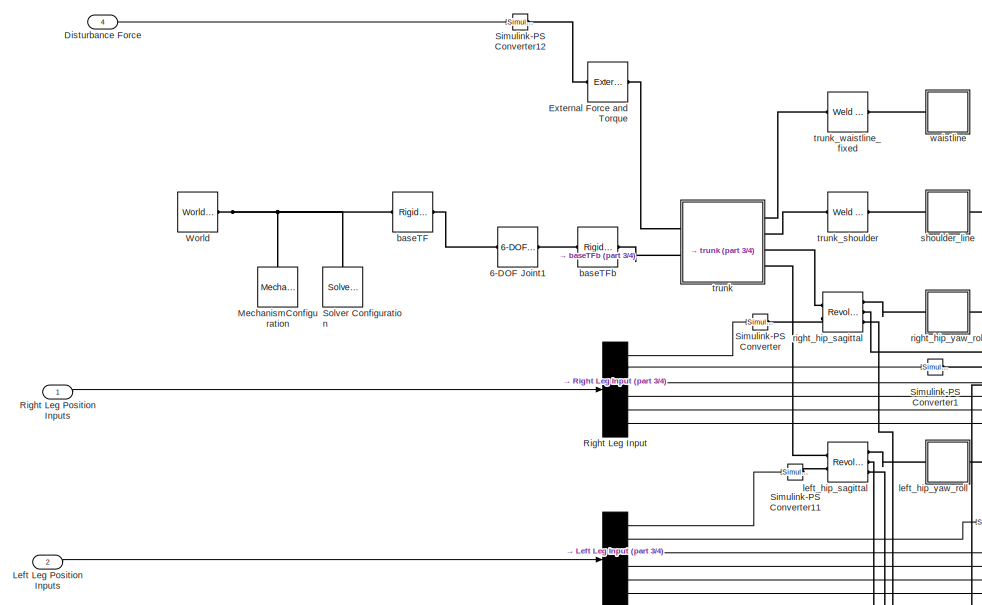
[diagram: root canvas - part 1/4, top left region]
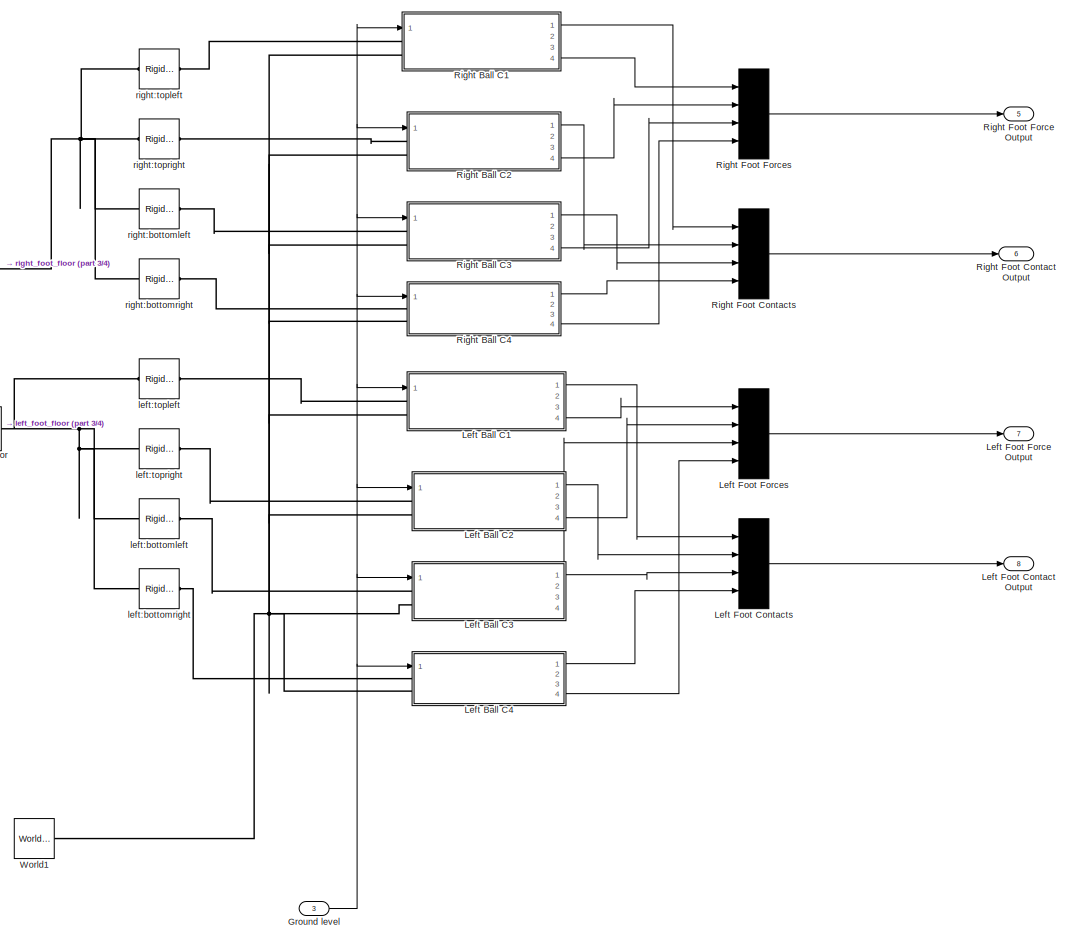
[diagram: root canvas - part 2/4, right side, full height]
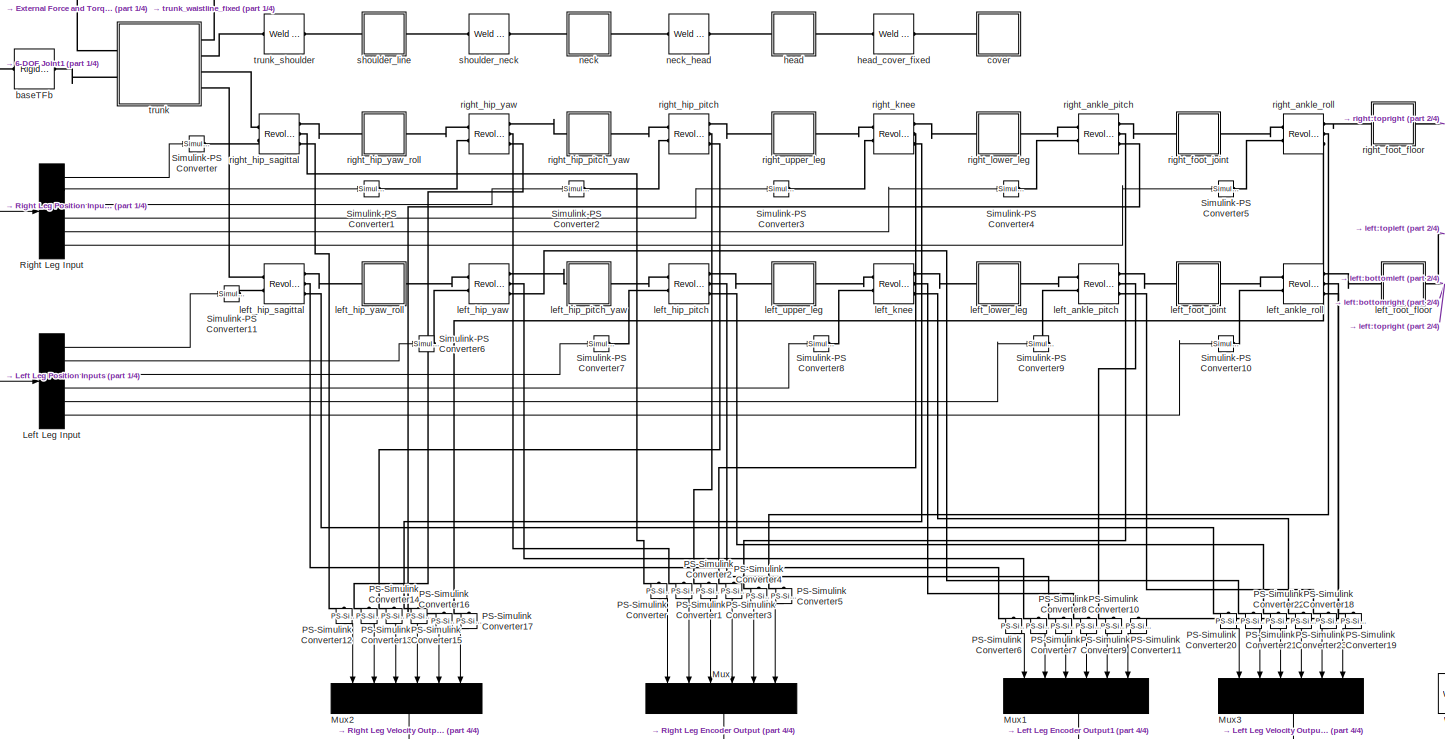
[diagram: root canvas - part 3/4, central region]
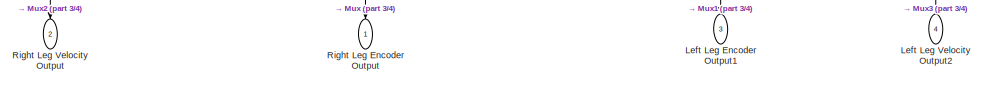
[diagram: root canvas - part 4/4, bottom center region]
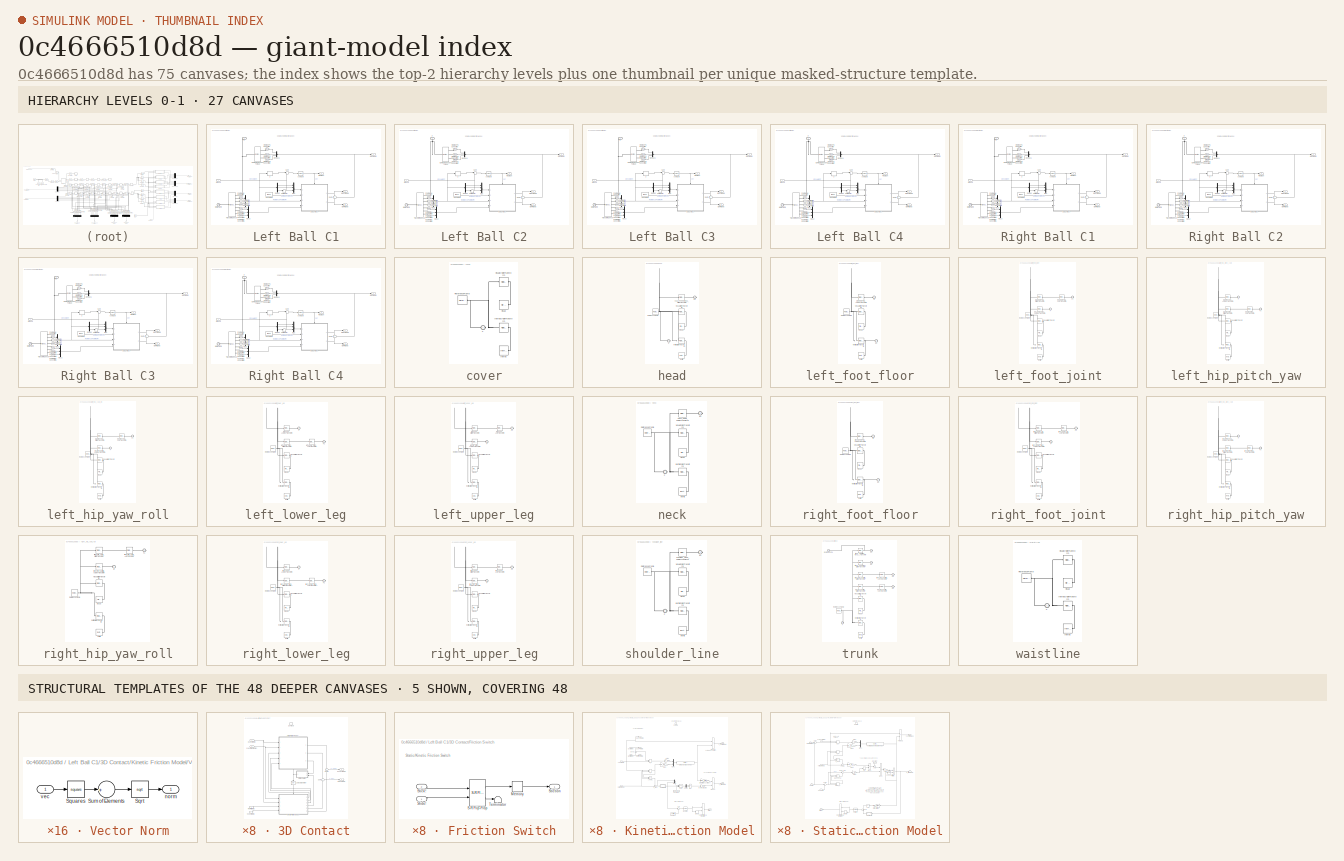
[diagram: thumbnail index - top-2 hierarchy levels (27 canvases) + 5 structural-template representatives of the remaining 48 canvases]
MODEL slx_0c4666510d8d
KIND model
CONFIG AbsTol = auto
CONFIG EnableMultiTasking = off
CONFIG FixedStep = auto
CONFIG MaxStep = auto
CONFIG MinStep = auto
CONFIG RelTol = 1e-3
CONFIG SampleTimeConstraint = Unconstrained
CONFIG SolverName = VariableStepAuto
CONFIG StartTime = 0.0
CONFIG StopTime = 4
BLOCK [Reference] 6-DOF Joint1  REF=sm_lib/Joints/6-DOF Joint
  Ports = [0, 0, 0, 0, 0, 1, 1]
  SourceBlock = sm_lib/Joints/6-DOF Joint
  SourceProductBaseCode = MS
  SourceType = 6-DOF Joint
BLOCK [Inport] Disturbance Force
  Port = 4
BLOCK [Reference] External Force and Torque  REF=sm_lib/Forces and
Torques/External Force
and Torque
  Ports = [0, 0, 0, 0, 0, 1, 1]
  SourceBlock = sm_lib/Forces and\nTorques/External Force\nand Torque
  SourceProductBaseCode = MS
  SourceType = External Force\nand Torque
BLOCK [Inport] Ground level
  Port = 3
BLOCK [SubSystem] Left Ball C1
  NameLocation = top
  Ports = [1, 4, 0, 0, 0, 2]
  RequestExecContextInheritance = off
BLOCK [SubSystem] Left Ball C1/3D Contact
  Ports = [4, 2, 1]
  RequestExecContextInheritance = off
BLOCK [EnablePort] Left Ball C1/3D Contact/Contact!
  Ports = []
  StatesWhenEnabling = reset
BLOCK [Outport] Left Ball C1/3D Contact/FnVec [N N N]
  AttributesFormatString = when disabled: %<OutputWhenDisabled>
  InitialOutput = [0 0 0]
  OutputWhenDisabled = reset
BLOCK [SubSystem] Left Ball C1/3D Contact/Friction Switch
  Ports = [2, 1]
  RequestExecContextInheritance = off
BLOCK [Memory] Left Ball C1/3D Contact/Friction Switch/Memory
BLOCK [Reference] Left Ball C1/3D Contact/Friction Switch/S-R Flip-Flop  REF=simulink_extras/Flip Flops/S-R
Flip-Flop
  Ports = [2, 2]
  SourceBlock = simulink_extras/Flip Flops/S-R\nFlip-Flop
  SourceProductBaseCode = SL
  SourceType = SRFlipFlop
BLOCK [Inport] Left Ball C1/3D Contact/Friction Switch/Slide!
BLOCK [Inport] Left Ball C1/3D Contact/Friction Switch/Stick!
  NameLocation = top
  Port = 2
BLOCK [Outport] Left Ball C1/3D Contact/Friction Switch/Stiction
BLOCK [Terminator] Left Ball C1/3D Contact/Friction Switch/Terminator
BLOCK [Outport] Left Ball C1/3D Contact/FtVec [N N N]
  AttributesFormatString = when disabled: %<OutputWhenDisabled>
  InitialOutput = [0 0 0]
  OutputWhenDisabled = reset
  Port = 2
BLOCK [SubSystem] Left Ball C1/3D Contact/Kinetic Friction Model
  Ports = [4, 6, 1]
  RequestExecContextInheritance = off
BLOCK [Constant] Left Ball C1/3D Contact/Kinetic Friction Model/Constant
  Value = vLimit
BLOCK [Constant] Left Ball C1/3D Contact/Kinetic Friction Model/Constant1
  NameLocation = right
  Value = [0 0 0 1]'
BLOCK [Demux] Left Ball C1/3D Contact/Kinetic Friction Model/Demux
  Outputs = [3 1]
  Ports = [1, 2]
BLOCK [EnablePort] Left Ball C1/3D Contact/Kinetic Friction Model/Enable
  Ports = []
  StatesWhenEnabling = reset
  ZeroCross = off
BLOCK [Outport] Left Ball C1/3D Contact/Kinetic Friction Model/F_n Slide [N N N]
  AttributesFormatString = initial = '%<InitialOutput>'\nwhen disabled = '%<OutputWhenDisabled>'
  InitialOutput = [0 0 0]
  OutputWhenDisabled = reset
  Port = 6
BLOCK [Outport] Left Ball C1/3D Contact/Kinetic Friction Model/F_t Slide [N N N]
  AttributesFormatString = initial = '%<InitialOutput>'\nwhen disabled = '%<OutputWhenDisabled>'
  InitialOutput = [0 0 0]
  OutputWhenDisabled = reset
  Port = 5
BLOCK [RelationalOperator] Left Ball C1/3D Contact/Kinetic Friction Model/FixPt Relational Operator
  InputSameDT = off
  Operator = >
  OutDataTypeStr = boolean
  Ports = [2, 1]
  ZeroCross = off
BLOCK [Gain] Left Ball C1/3D Contact/Kinetic Friction Model/Gain3
  Gain = k_gn
BLOCK [Gain] Left Ball C1/3D Contact/Kinetic Friction Model/Gain4
  Gain = 1/v_gn_max
BLOCK [Memory] Left Ball C1/3D Contact/Kinetic Friction Model/Memory
BLOCK [Mux] Left Ball C1/3D Contact/Kinetic Friction Model/Mux1
  DisplayOption = bar
  Inputs = 2
  Ports = [2, 1]
BLOCK [Mux] Left Ball C1/3D Contact/Kinetic Friction Model/Mux2
  DisplayOption = bar
  Inputs = 2
  Ports = [2, 1]
BLOCK [Reference] Left Ball C1/3D Contact/Kinetic Friction Model/Negative  REF=simulink/Logic and Bit
Operations/Compare
To Zero
  Ports = [1, 1]
  SourceBlock = simulink/Logic and Bit\nOperations/Compare\nTo Zero
  SourceProductBaseCode = SL
  SourceType = Compare To Zero
BLOCK [Fcn] Left Ball C1/3D Contact/Kinetic Friction Model/Normal Axis Ground Force
  Expr = u(1)  *  (1-u(2)) * (u(2)<1)
BLOCK [Product] Left Ball C1/3D Contact/Kinetic Friction Model/Product
  Ports = [2, 1]
  RndMeth = Zero
BLOCK [Product] Left Ball C1/3D Contact/Kinetic Friction Model/Product1
  Ports = [2, 1]
  RndMeth = Zero
BLOCK [Inport] Left Ball C1/3D Contact/Kinetic Friction Model/RefPt [m m m]
  Port = 3
BLOCK [Outport] Left Ball C1/3D Contact/Kinetic Friction Model/RefPtFP [m m m]
  AttributesFormatString = initial = '%<InitialOutput>'\nwhen disabled = '%<OutputWhenDisabled>'
  InitialOutput = [0 0 0]
BLOCK [Outport] Left Ball C1/3D Contact/Kinetic Friction Model/Stiction!
  AttributesFormatString = initial = '%<InitialOutput>'\nwhen disabled = '%<OutputWhenDisabled>'
  InitialOutput = 0
  OutputWhenDisabled = reset
  Port = 4
BLOCK [Sum] Left Ball C1/3D Contact/Kinetic Friction Model/Sum
  Inputs = |+-
  Ports = [2, 1]
BLOCK [Switch] Left Ball C1/3D Contact/Kinetic Friction Model/Switch
  AttributesFormatString = >%<Threshold>?
  Criteria = u2 > Threshold
  InputSameDT = off
  SaturateOnIntegerOverflow = off
  Threshold = 0.9*vLimit
BLOCK [SubSystem] Left Ball C1/3D Contact/Kinetic Friction Model/Vector Norm
  Ports = [1, 1]
  RequestExecContextInheritance = off
BLOCK [Sqrt] Left Ball C1/3D Contact/Kinetic Friction Model/Vector Norm/Sqrt
  AlgorithmType = Newton-Raphson
  OutputSignalType = real
BLOCK [Math] Left Ball C1/3D Contact/Kinetic Friction Model/Vector Norm/Squares
  Operator = square
  OutputSignalType = real
  Ports = [1, 1]
  SignedPower = on
BLOCK [Sum] Left Ball C1/3D Contact/Kinetic Friction Model/Vector Norm/Sum of Elements
  Inputs = +
  Ports = [1, 1]
BLOCK [Outport] Left Ball C1/3D Contact/Kinetic Friction Model/Vector Norm/norm
BLOCK [Inport] Left Ball C1/3D Contact/Kinetic Friction Model/Vector Norm/vec
BLOCK [DotProduct] Left Ball C1/3D Contact/Kinetic Friction Model/d_n
  OutDataTypeStr = Inherit: Inherit via internal rule
BLOCK [Outport] Left Ball C1/3D Contact/Kinetic Friction Model/nVec FP [m m m]
  AttributesFormatString = initial = '%<InitialOutput>'\nwhen disabled = '%<OutputWhenDisabled>'
  InitialOutput = 0
  NameLocation = top
  Port = 3
BLOCK [Inport] Left Ball C1/3D Contact/Kinetic Friction Model/nVec [m m m]
  Port = 4
BLOCK [Inport] Left Ball C1/3D Contact/Kinetic Friction Model/pos [m m m]
  NameLocation = top
  Port = 2
BLOCK [Outport] Left Ball C1/3D Contact/Kinetic Friction Model/posFP [m m m]
  AttributesFormatString = initial = '%<InitialOutput>'\nwhen disabled = '%<OutputWhenDisabled>'
  InitialOutput = [0 0 0]
  NameLocation = top
  Port = 2
BLOCK [Sum] Left Ball C1/3D Contact/Kinetic Friction Model/qnVec
  Inputs = -+
  Ports = [2, 1]
BLOCK [Gain] Left Ball C1/3D Contact/Kinetic Friction Model/reverse direction
  Gain = -1
BLOCK [Gain] Left Ball C1/3D Contact/Kinetic Friction Model/sliding friction coefficient
  Gain = mu_slide
  NameLocation = top
BLOCK [Product] Left Ball C1/3D Contact/Kinetic Friction Model/tVec
  Inputs = */
  Ports = [2, 1]
  RndMeth = Zero
BLOCK [DotProduct] Left Ball C1/3D Contact/Kinetic Friction Model/v_n
  OutDataTypeStr = Inherit: Inherit via internal rule
BLOCK [Product] Left Ball C1/3D Contact/Kinetic Friction Model/v_nVec
  Ports = [2, 1]
  RndMeth = Zero
BLOCK [Sum] Left Ball C1/3D Contact/Kinetic Friction Model/v_tVec
  Inputs = -+|
  Ports = [2, 1]
BLOCK [Inport] Left Ball C1/3D Contact/Kinetic Friction Model/vel [m//s m//s m//s]
BLOCK [Logic] Left Ball C1/3D Contact/Logical Operator
  AllPortsSameDT = off
  NameLocation = left
  Operator = NOT
  OutDataTypeStr = boolean
  Ports = [1, 1]
BLOCK [Inport] Left Ball C1/3D Contact/RefPt [m m m]
  NameLocation = top
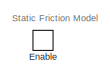
[diagram: Left Ball C1/3D Contact/Static Friction Model - part 1/2, top center region]
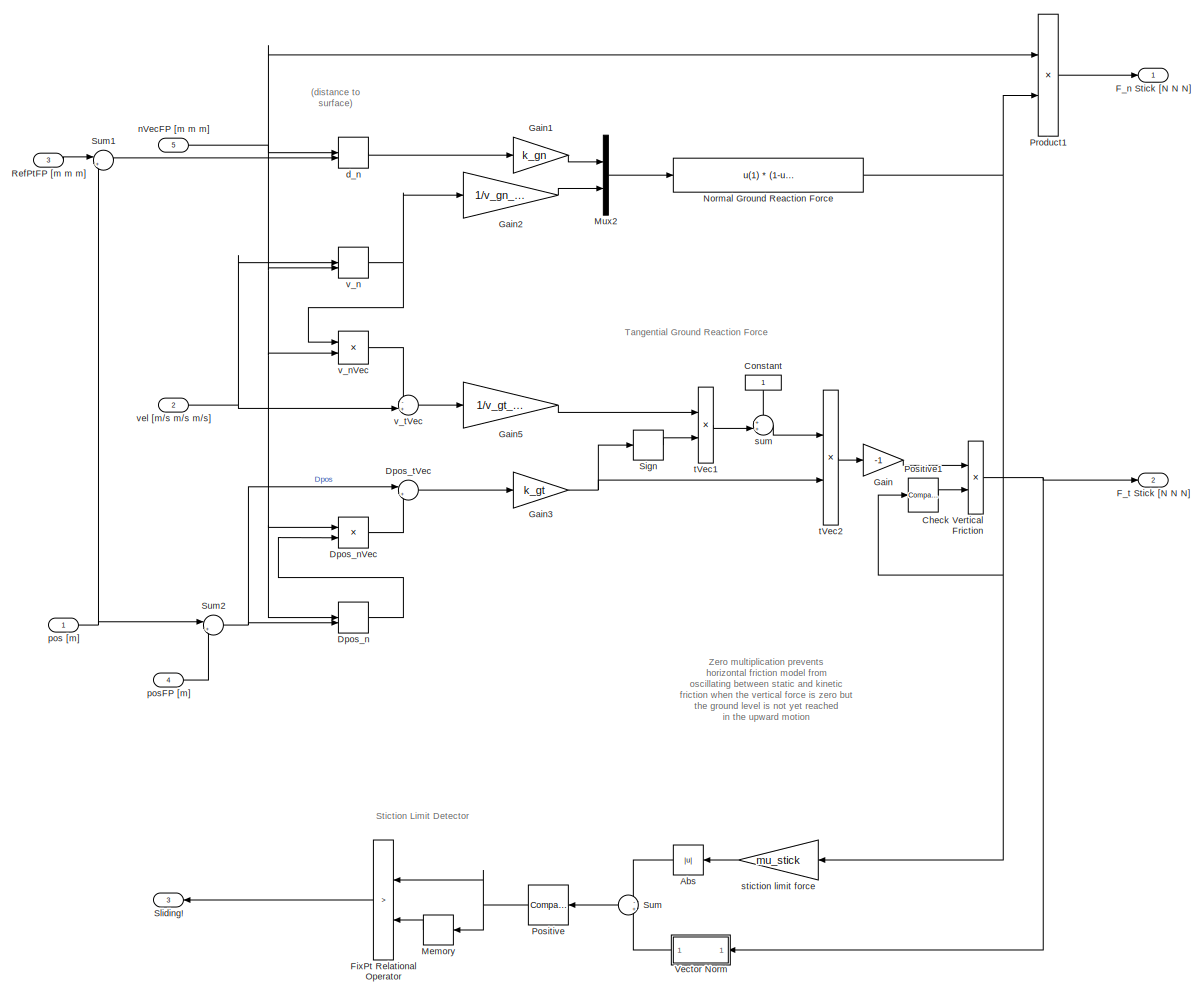
[diagram: Left Ball C1/3D Contact/Static Friction Model - part 2/2, most of the canvas]
BLOCK [SubSystem] Left Ball C1/3D Contact/Static Friction Model
  NameLocation = top
  Ports = [5, 3, 1]
  RequestExecContextInheritance = off
BLOCK [Abs] Left Ball C1/3D Contact/Static Friction Model/Abs
  NameLocation = top
  SaturateOnIntegerOverflow = off
BLOCK [Product] Left Ball C1/3D Contact/Static Friction Model/Check Vertical Friction
  Ports = [2, 1]
  RndMeth = Zero
BLOCK [Constant] Left Ball C1/3D Contact/Static Friction Model/Constant
  NameLocation = left
BLOCK [DotProduct] Left Ball C1/3D Contact/Static Friction Model/Dpos_n
  OutDataTypeStr = Inherit: Inherit via internal rule
BLOCK [Product] Left Ball C1/3D Contact/Static Friction Model/Dpos_nVec
  Ports = [2, 1]
  RndMeth = Zero
BLOCK [Sum] Left Ball C1/3D Contact/Static Friction Model/Dpos_tVec
  Inputs = |+-
  NameLocation = top
  Ports = [2, 1]
BLOCK [EnablePort] Left Ball C1/3D Contact/Static Friction Model/Enable
  Ports = []
  StatesWhenEnabling = reset
  ZeroCross = off
BLOCK [Outport] Left Ball C1/3D Contact/Static Friction Model/F_n Stick [N N N]
  AttributesFormatString = initial = '%<InitialOutput>'\nwhen disabled = '%<OutputWhenDisabled>'
  InitialOutput = [0 0 0]
  OutputWhenDisabled = reset
BLOCK [Outport] Left Ball C1/3D Contact/Static Friction Model/F_t Stick [N N N]
  AttributesFormatString = when disabled: %<OutputWhenDisabled>\ninitial: %<InitialOutput>
  InitialOutput = [0 0 0]
  OutputWhenDisabled = reset
  Port = 2
BLOCK [RelationalOperator] Left Ball C1/3D Contact/Static Friction Model/FixPt Relational Operator
  InputSameDT = off
  Operator = >
  OutDataTypeStr = boolean
  Ports = [2, 1]
  ZeroCross = off
BLOCK [Gain] Left Ball C1/3D Contact/Static Friction Model/Gain
  Gain = -1
BLOCK [Gain] Left Ball C1/3D Contact/Static Friction Model/Gain1
  Gain = k_gn
BLOCK [Gain] Left Ball C1/3D Contact/Static Friction Model/Gain2
  Gain = 1/v_gn_max
BLOCK [Gain] Left Ball C1/3D Contact/Static Friction Model/Gain3
  Gain = k_gt
BLOCK [Gain] Left Ball C1/3D Contact/Static Friction Model/Gain5
  Gain = 1/v_gt_max
BLOCK [Memory] Left Ball C1/3D Contact/Static Friction Model/Memory
  NameLocation = top
BLOCK [Mux] Left Ball C1/3D Contact/Static Friction Model/Mux2
  DisplayOption = bar
  Inputs = 2
  Ports = [2, 1]
BLOCK [Fcn] Left Ball C1/3D Contact/Static Friction Model/Normal Ground Reaction Force
  Expr = u(1)  *  (1-u(2)) * (u(2)<1)
BLOCK [Reference] Left Ball C1/3D Contact/Static Friction Model/Positive  REF=simulink/Logic and Bit
Operations/Compare
To Zero
  Ports = [1, 1]
  SourceBlock = simulink/Logic and Bit\nOperations/Compare\nTo Zero
  SourceProductBaseCode = SL
  SourceType = Compare To Zero
BLOCK [Reference] Left Ball C1/3D Contact/Static Friction Model/Positive1  REF=simulink/Logic and Bit
Operations/Compare
To Zero
  NameLocation = top
  Ports = [1, 1]
  SourceBlock = simulink/Logic and Bit\nOperations/Compare\nTo Zero
  SourceProductBaseCode = SL
  SourceType = Compare To Zero
BLOCK [Product] Left Ball C1/3D Contact/Static Friction Model/Product1
  Ports = [2, 1]
  RndMeth = Zero
BLOCK [Inport] Left Ball C1/3D Contact/Static Friction Model/RefPtFP [m m m]
  Port = 3
BLOCK [Signum] Left Ball C1/3D Contact/Static Friction Model/Sign
  NameLocation = top
  ZeroCross = off
BLOCK [Outport] Left Ball C1/3D Contact/Static Friction Model/Sliding!
  AttributesFormatString = when disabled: %<OutputWhenDisabled>\ninitial: %<InitialOutput>
  InitialOutput = 0
  OutputWhenDisabled = reset
  Port = 3
BLOCK [Sum] Left Ball C1/3D Contact/Static Friction Model/Sum
  Inputs = -+
  NameLocation = top
  Ports = [2, 1]
BLOCK [Sum] Left Ball C1/3D Contact/Static Friction Model/Sum1
  Inputs = |+-
  Ports = [2, 1]
BLOCK [Sum] Left Ball C1/3D Contact/Static Friction Model/Sum2
  Inputs = |+-
  Ports = [2, 1]
BLOCK [SubSystem] Left Ball C1/3D Contact/Static Friction Model/Vector Norm
  Ports = [1, 1]
  RequestExecContextInheritance = off
BLOCK [Sqrt] Left Ball C1/3D Contact/Static Friction Model/Vector Norm/Sqrt
  AlgorithmType = Newton-Raphson
  OutputSignalType = real
BLOCK [Math] Left Ball C1/3D Contact/Static Friction Model/Vector Norm/Squares
  Operator = square
  OutputSignalType = real
  Ports = [1, 1]
  SignedPower = on
BLOCK [Sum] Left Ball C1/3D Contact/Static Friction Model/Vector Norm/Sum of Elements
  Inputs = +
  Ports = [1, 1]
BLOCK [Outport] Left Ball C1/3D Contact/Static Friction Model/Vector Norm/norm
BLOCK [Inport] Left Ball C1/3D Contact/Static Friction Model/Vector Norm/vec
BLOCK [DotProduct] Left Ball C1/3D Contact/Static Friction Model/d_n
  OutDataTypeStr = Inherit: Inherit via internal rule
BLOCK [Inport] Left Ball C1/3D Contact/Static Friction Model/nVecFP [m m m]
  NameLocation = top
  Port = 5
BLOCK [Inport] Left Ball C1/3D Contact/Static Friction Model/pos [m]
  NameLocation = top
BLOCK [Inport] Left Ball C1/3D Contact/Static Friction Model/posFP [m]
  Port = 4
BLOCK [Gain] Left Ball C1/3D Contact/Static Friction Model/stiction limit force
  Gain = mu_stick
  NameLocation = top
BLOCK [Sum] Left Ball C1/3D Contact/Static Friction Model/sum
  Inputs = ++|
  Ports = [2, 1]
BLOCK [Product] Left Ball C1/3D Contact/Static Friction Model/tVec1
  Inputs = **
  Ports = [2, 1]
  RndMeth = Zero
BLOCK [Product] Left Ball C1/3D Contact/Static Friction Model/tVec2
  Inputs = **
  Ports = [2, 1]
  RndMeth = Zero
BLOCK [DotProduct] Left Ball C1/3D Contact/Static Friction Model/v_n
  OutDataTypeStr = Inherit: Inherit via internal rule
BLOCK [Product] Left Ball C1/3D Contact/Static Friction Model/v_nVec
  Ports = [2, 1]
  RndMeth = Zero
BLOCK [Sum] Left Ball C1/3D Contact/Static Friction Model/v_tVec
  Inputs = -+|
  Ports = [2, 1]
BLOCK [Inport] Left Ball C1/3D Contact/Static Friction Model/vel [m//s m//s m//s]
  Port = 2
BLOCK [Sum] Left Ball C1/3D Contact/Sum
  Ports = [2, 1]
BLOCK [Sum] Left Ball C1/3D Contact/Sum1
  Ports = [2, 1]
BLOCK [Inport] Left Ball C1/3D Contact/nVec [m m m]
  Port = 2
BLOCK [Inport] Left Ball C1/3D Contact/pVec [m m m]
  NameLocation = top
  Port = 3
BLOCK [Inport] Left Ball C1/3D Contact/vVec [m//s m//s m//s]
  Port = 4
BLOCK [Constant] Left Ball C1/Constant1
  Value = [0 0 1]
BLOCK [Demux] Left Ball C1/Demux
  Outputs = 3
  Ports = [1, 3]
BLOCK [Demux] Left Ball C1/Demux1
  NameLocation = top
  Outputs = 3
  Ports = [1, 3]
BLOCK [Reference] Left Ball C1/External Force and Torque  REF=sm_lib/Forces and
Torques/External Force
and Torque
  Ports = [0, 0, 0, 0, 0, 3, 1]
  SourceBlock = sm_lib/Forces and\nTorques/External Force\nand Torque
  SourceProductBaseCode = MS
  SourceType = External Force\nand Torque
BLOCK [PMIOPort] Left Ball C1/F
  NameLocation = right
  Side = Left
BLOCK [Outport] Left Ball C1/GRF [N N N]
  NameLocation = top
  Port = 2
BLOCK [Outport] Left Ball C1/GRFn [N N N]
  NameLocation = top
  Port = 4
BLOCK [Outport] Left Ball C1/GRFt [N N N]
  Port = 3
BLOCK [Inport] Left Ball C1/Ground
BLOCK [Mux] Left Ball C1/Mux
  DisplayOption = bar
  Inputs = 3
  Ports = [3, 1]
BLOCK [Mux] Left Ball C1/Mux1
  DisplayOption = bar
  Inputs = 3
  Ports = [3, 1]
BLOCK [Mux] Left Ball C1/Mux2
  DisplayOption = bar
  Inputs = 3
  Ports = [3, 1]
BLOCK [Reference] Left Ball C1/PS-Simulink Converter  REF=nesl_utility/PS-Simulink
Converter
  Ports = [0, 1, 0, 0, 0, 1]
  SourceBlock = nesl_utility/PS-Simulink\nConverter
  SourceProductBaseCode = PW,SS
  SourceType = PS-Simulink\nConverter
BLOCK [Reference] Left Ball C1/PS-Simulink Converter1  REF=nesl_utility/PS-Simulink
Converter
  Ports = [0, 1, 0, 0, 0, 1]
  SourceBlock = nesl_utility/PS-Simulink\nConverter
  SourceProductBaseCode = PW,SS
  SourceType = PS-Simulink\nConverter
BLOCK [Reference] Left Ball C1/PS-Simulink Converter2  REF=nesl_utility/PS-Simulink
Converter
  Ports = [0, 1, 0, 0, 0, 1]
  SourceBlock = nesl_utility/PS-Simulink\nConverter
  SourceProductBaseCode = PW,SS
  SourceType = PS-Simulink\nConverter
BLOCK [Reference] Left Ball C1/PS-Simulink Converter3  REF=nesl_utility/PS-Simulink
Converter
  Ports = [0, 1, 0, 0, 0, 1]
  SourceBlock = nesl_utility/PS-Simulink\nConverter
  SourceProductBaseCode = PW,SS
  SourceType = PS-Simulink\nConverter
BLOCK [Reference] Left Ball C1/PS-Simulink Converter4  REF=nesl_utility/PS-Simulink
Converter
  Ports = [0, 1, 0, 0, 0, 1]
  SourceBlock = nesl_utility/PS-Simulink\nConverter
  SourceProductBaseCode = PW,SS
  SourceType = PS-Simulink\nConverter
BLOCK [Reference] Left Ball C1/PS-Simulink Converter5  REF=nesl_utility/PS-Simulink
Converter
  Ports = [0, 1, 0, 0, 0, 1]
  SourceBlock = nesl_utility/PS-Simulink\nConverter
  SourceProductBaseCode = PW,SS
  SourceType = PS-Simulink\nConverter
BLOCK [Outport] Left Ball C1/RBallCnt
  NameLocation = top
BLOCK [Reference] Left Ball C1/Simulink-PS Converter  REF=nesl_utility/Simulink-PS
Converter
  NameLocation = top
  Ports = [1, 0, 0, 0, 0, 0, 1]
  SourceBlock = nesl_utility/Simulink-PS\nConverter
  SourceProductBaseCode = PW,SS
  SourceType = Simulink-PS\nConverter
BLOCK [Reference] Left Ball C1/Simulink-PS Converter1  REF=nesl_utility/Simulink-PS
Converter
  NameLocation = top
  Ports = [1, 0, 0, 0, 0, 0, 1]
  SourceBlock = nesl_utility/Simulink-PS\nConverter
  SourceProductBaseCode = PW,SS
  SourceType = Simulink-PS\nConverter
BLOCK [Reference] Left Ball C1/Simulink-PS Converter2  REF=nesl_utility/Simulink-PS
Converter
  NameLocation = top
  Ports = [1, 0, 0, 0, 0, 0, 1]
  SourceBlock = nesl_utility/Simulink-PS\nConverter
  SourceProductBaseCode = PW,SS
  SourceType = Simulink-PS\nConverter
BLOCK [Sum] Left Ball C1/Sum
  Inputs = |+-
  Ports = [2, 1]
BLOCK [Sum] Left Ball C1/Sum1
  Ports = [2, 1]
BLOCK [Terminator] Left Ball C1/Terminator
BLOCK [Reference] Left Ball C1/Transform Sensor  REF=sm_lib/Frames and
Transforms/Transform
Sensor
  Ports = [0, 0, 0, 0, 0, 1, 7]
  SourceBlock = sm_lib/Frames and\nTransforms/Transform\nSensor
  SourceProductBaseCode = MS
  SourceType = Transform\nSensor
BLOCK [PMIOPort] Left Ball C1/WorldFrame
  NameLocation = top
  Port = 2
  Side = Left
BLOCK [Reference] Left Ball C1/contact?  REF=simulink/Logic and Bit
Operations/Compare
To Zero
  NameLocation = top
  Ports = [1, 1]
  SourceBlock = simulink/Logic and Bit\nOperations/Compare\nTo Zero
  SourceProductBaseCode = SL
  SourceType = Compare To Zero
BLOCK [Selector] Left Ball C1/z
  IndexOptions = Index vector (dialog)
  Indices = 3
  InputPortWidth = 3
  NameLocation = top
  OutputSizes = 1
  Ports = [1, 1]
BLOCK [SubSystem] Left Ball C2
  NameLocation = top
  Ports = [1, 4, 0, 0, 0, 2]
  RequestExecContextInheritance = off
BLOCK [SubSystem] Left Ball C2/3D Contact
  Ports = [4, 2, 1]
  RequestExecContextInheritance = off
BLOCK [EnablePort] Left Ball C2/3D Contact/Contact!
  Ports = []
  StatesWhenEnabling = reset
BLOCK [Outport] Left Ball C2/3D Contact/FnVec [N N N]
  AttributesFormatString = when disabled: %<OutputWhenDisabled>
  InitialOutput = [0 0 0]
  OutputWhenDisabled = reset
BLOCK [SubSystem] Left Ball C2/3D Contact/Friction Switch
  Ports = [2, 1]
  RequestExecContextInheritance = off
BLOCK [Memory] Left Ball C2/3D Contact/Friction Switch/Memory
BLOCK [Reference] Left Ball C2/3D Contact/Friction Switch/S-R Flip-Flop  REF=simulink_extras/Flip Flops/S-R
Flip-Flop
  Ports = [2, 2]
  SourceBlock = simulink_extras/Flip Flops/S-R\nFlip-Flop
  SourceProductBaseCode = SL
  SourceType = SRFlipFlop
BLOCK [Inport] Left Ball C2/3D Contact/Friction Switch/Slide!
BLOCK [Inport] Left Ball C2/3D Contact/Friction Switch/Stick!
  NameLocation = top
  Port = 2
BLOCK [Outport] Left Ball C2/3D Contact/Friction Switch/Stiction
BLOCK [Terminator] Left Ball C2/3D Contact/Friction Switch/Terminator
BLOCK [Outport] Left Ball C2/3D Contact/FtVec [N N N]
  AttributesFormatString = when disabled: %<OutputWhenDisabled>
  InitialOutput = [0 0 0]
  OutputWhenDisabled = reset
  Port = 2
BLOCK [SubSystem] Left Ball C2/3D Contact/Kinetic Friction Model
  Ports = [4, 6, 1]
  RequestExecContextInheritance = off
BLOCK [Constant] Left Ball C2/3D Contact/Kinetic Friction Model/Constant
  Value = vLimit
BLOCK [Constant] Left Ball C2/3D Contact/Kinetic Friction Model/Constant1
  NameLocation = right
  Value = [0 0 0 1]'
BLOCK [Demux] Left Ball C2/3D Contact/Kinetic Friction Model/Demux
  Outputs = [3 1]
  Ports = [1, 2]
BLOCK [EnablePort] Left Ball C2/3D Contact/Kinetic Friction Model/Enable
  Ports = []
  StatesWhenEnabling = reset
  ZeroCross = off
BLOCK [Outport] Left Ball C2/3D Contact/Kinetic Friction Model/F_n Slide [N N N]
  AttributesFormatString = initial = '%<InitialOutput>'\nwhen disabled = '%<OutputWhenDisabled>'
  InitialOutput = [0 0 0]
  OutputWhenDisabled = reset
  Port = 6
BLOCK [Outport] Left Ball C2/3D Contact/Kinetic Friction Model/F_t Slide [N N N]
  AttributesFormatString = initial = '%<InitialOutput>'\nwhen disabled = '%<OutputWhenDisabled>'
  InitialOutput = [0 0 0]
  OutputWhenDisabled = reset
  Port = 5
BLOCK [RelationalOperator] Left Ball C2/3D Contact/Kinetic Friction Model/FixPt Relational Operator
  InputSameDT = off
  Operator = >
  OutDataTypeStr = boolean
  Ports = [2, 1]
  ZeroCross = off
BLOCK [Gain] Left Ball C2/3D Contact/Kinetic Friction Model/Gain3
  Gain = k_gn
BLOCK [Gain] Left Ball C2/3D Contact/Kinetic Friction Model/Gain4
  Gain = 1/v_gn_max
BLOCK [Memory] Left Ball C2/3D Contact/Kinetic Friction Model/Memory
BLOCK [Mux] Left Ball C2/3D Contact/Kinetic Friction Model/Mux1
  DisplayOption = bar
  Inputs = 2
  Ports = [2, 1]
BLOCK [Mux] Left Ball C2/3D Contact/Kinetic Friction Model/Mux2
  DisplayOption = bar
  Inputs = 2
  Ports = [2, 1]
BLOCK [Reference] Left Ball C2/3D Contact/Kinetic Friction Model/Negative  REF=simulink/Logic and Bit
Operations/Compare
To Zero
  Ports = [1, 1]
  SourceBlock = simulink/Logic and Bit\nOperations/Compare\nTo Zero
  SourceProductBaseCode = SL
  SourceType = Compare To Zero
BLOCK [Fcn] Left Ball C2/3D Contact/Kinetic Friction Model/Normal Axis Ground Force
  Expr = u(1)  *  (1-u(2)) * (u(2)<1)
BLOCK [Product] Left Ball C2/3D Contact/Kinetic Friction Model/Product
  Ports = [2, 1]
  RndMeth = Zero
BLOCK [Product] Left Ball C2/3D Contact/Kinetic Friction Model/Product1
  Ports = [2, 1]
  RndMeth = Zero
BLOCK [Inport] Left Ball C2/3D Contact/Kinetic Friction Model/RefPt [m m m]
  Port = 3
BLOCK [Outport] Left Ball C2/3D Contact/Kinetic Friction Model/RefPtFP [m m m]
  AttributesFormatString = initial = '%<InitialOutput>'\nwhen disabled = '%<OutputWhenDisabled>'
  InitialOutput = [0 0 0]
BLOCK [Outport] Left Ball C2/3D Contact/Kinetic Friction Model/Stiction!
  AttributesFormatString = initial = '%<InitialOutput>'\nwhen disabled = '%<OutputWhenDisabled>'
  InitialOutput = 0
  OutputWhenDisabled = reset
  Port = 4
BLOCK [Sum] Left Ball C2/3D Contact/Kinetic Friction Model/Sum
  Inputs = |+-
  Ports = [2, 1]
BLOCK [Switch] Left Ball C2/3D Contact/Kinetic Friction Model/Switch
  AttributesFormatString = >%<Threshold>?
  Criteria = u2 > Threshold
  InputSameDT = off
  SaturateOnIntegerOverflow = off
  Threshold = 0.9*vLimit
BLOCK [SubSystem] Left Ball C2/3D Contact/Kinetic Friction Model/Vector Norm
  Ports = [1, 1]
  RequestExecContextInheritance = off
BLOCK [Sqrt] Left Ball C2/3D Contact/Kinetic Friction Model/Vector Norm/Sqrt
  AlgorithmType = Newton-Raphson
  OutputSignalType = real
BLOCK [Math] Left Ball C2/3D Contact/Kinetic Friction Model/Vector Norm/Squares
  Operator = square
  OutputSignalType = real
  Ports = [1, 1]
  SignedPower = on
BLOCK [Sum] Left Ball C2/3D Contact/Kinetic Friction Model/Vector Norm/Sum of Elements
  Inputs = +
  Ports = [1, 1]
BLOCK [Outport] Left Ball C2/3D Contact/Kinetic Friction Model/Vector Norm/norm
BLOCK [Inport] Left Ball C2/3D Contact/Kinetic Friction Model/Vector Norm/vec
BLOCK [DotProduct] Left Ball C2/3D Contact/Kinetic Friction Model/d_n
  OutDataTypeStr = Inherit: Inherit via internal rule
BLOCK [Outport] Left Ball C2/3D Contact/Kinetic Friction Model/nVec FP [m m m]
  AttributesFormatString = initial = '%<InitialOutput>'\nwhen disabled = '%<OutputWhenDisabled>'
  InitialOutput = 0
  NameLocation = top
  Port = 3
BLOCK [Inport] Left Ball C2/3D Contact/Kinetic Friction Model/nVec [m m m]
  Port = 4
BLOCK [Inport] Left Ball C2/3D Contact/Kinetic Friction Model/pos [m m m]
  NameLocation = top
  Port = 2
BLOCK [Outport] Left Ball C2/3D Contact/Kinetic Friction Model/posFP [m m m]
  AttributesFormatString = initial = '%<InitialOutput>'\nwhen disabled = '%<OutputWhenDisabled>'
  InitialOutput = [0 0 0]
  NameLocation = top
  Port = 2
BLOCK [Sum] Left Ball C2/3D Contact/Kinetic Friction Model/qnVec
  Inputs = -+
  Ports = [2, 1]
BLOCK [Gain] Left Ball C2/3D Contact/Kinetic Friction Model/reverse direction
  Gain = -1
BLOCK [Gain] Left Ball C2/3D Contact/Kinetic Friction Model/sliding friction coefficient
  Gain = mu_slide
  NameLocation = top
BLOCK [Product] Left Ball C2/3D Contact/Kinetic Friction Model/tVec
  Inputs = */
  Ports = [2, 1]
  RndMeth = Zero
BLOCK [DotProduct] Left Ball C2/3D Contact/Kinetic Friction Model/v_n
  OutDataTypeStr = Inherit: Inherit via internal rule
BLOCK [Product] Left Ball C2/3D Contact/Kinetic Friction Model/v_nVec
  Ports = [2, 1]
  RndMeth = Zero
BLOCK [Sum] Left Ball C2/3D Contact/Kinetic Friction Model/v_tVec
  Inputs = -+|
  Ports = [2, 1]
BLOCK [Inport] Left Ball C2/3D Contact/Kinetic Friction Model/vel [m//s m//s m//s]
BLOCK [Logic] Left Ball C2/3D Contact/Logical Operator
  AllPortsSameDT = off
  NameLocation = left
  Operator = NOT
  OutDataTypeStr = boolean
  Ports = [1, 1]
BLOCK [Inport] Left Ball C2/3D Contact/RefPt [m m m]
  NameLocation = top
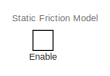
[diagram: Left Ball C2/3D Contact/Static Friction Model - part 1/2, top center region]
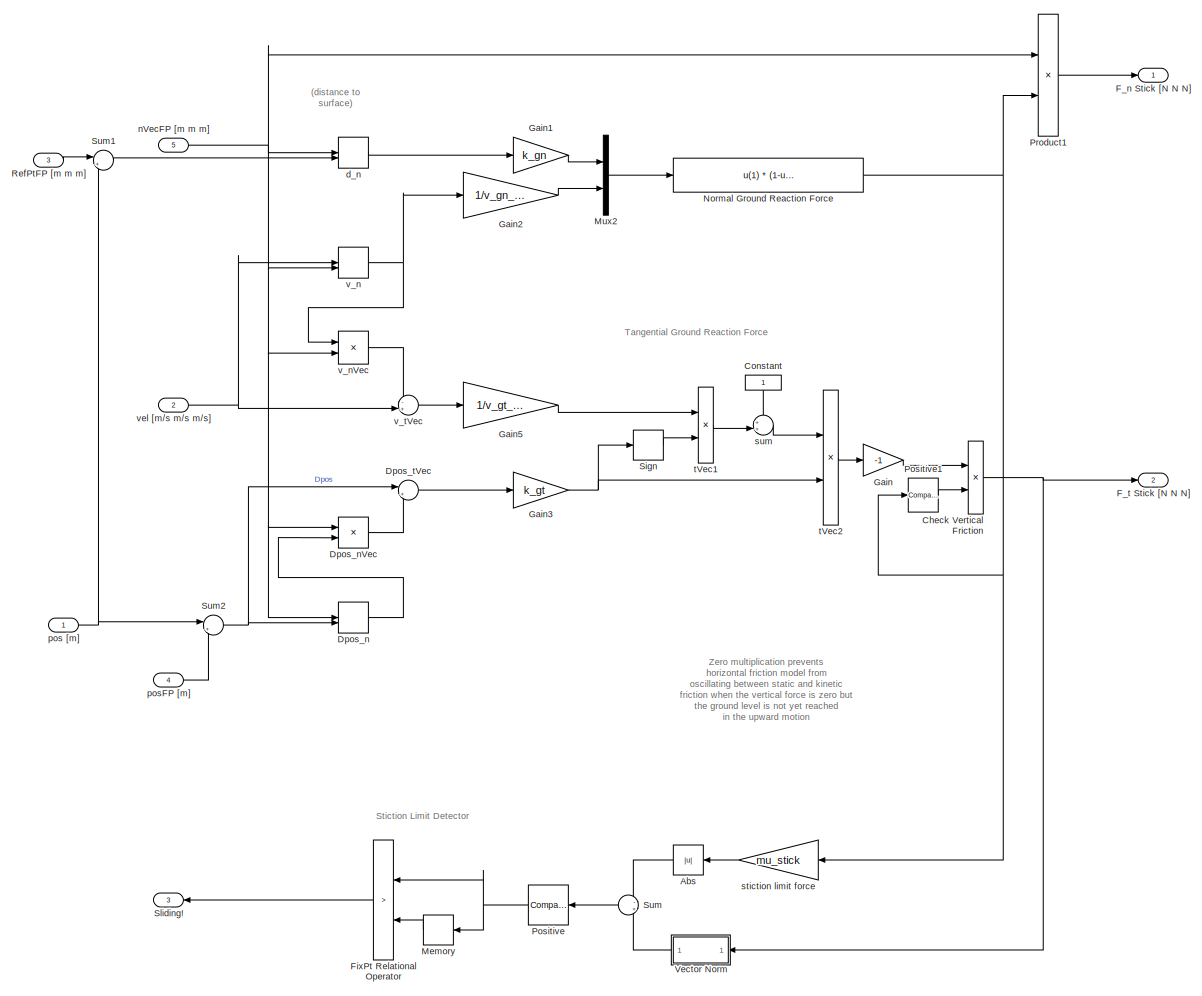
[diagram: Left Ball C2/3D Contact/Static Friction Model - part 2/2, most of the canvas]
BLOCK [SubSystem] Left Ball C2/3D Contact/Static Friction Model
  NameLocation = top
  Ports = [5, 3, 1]
  RequestExecContextInheritance = off
BLOCK [Abs] Left Ball C2/3D Contact/Static Friction Model/Abs
  NameLocation = top
  SaturateOnIntegerOverflow = off
BLOCK [Product] Left Ball C2/3D Contact/Static Friction Model/Check Vertical Friction
  Ports = [2, 1]
  RndMeth = Zero
BLOCK [Constant] Left Ball C2/3D Contact/Static Friction Model/Constant
  NameLocation = left
BLOCK [DotProduct] Left Ball C2/3D Contact/Static Friction Model/Dpos_n
  OutDataTypeStr = Inherit: Inherit via internal rule
BLOCK [Product] Left Ball C2/3D Contact/Static Friction Model/Dpos_nVec
  Ports = [2, 1]
  RndMeth = Zero
BLOCK [Sum] Left Ball C2/3D Contact/Static Friction Model/Dpos_tVec
  Inputs = |+-
  NameLocation = top
  Ports = [2, 1]
BLOCK [EnablePort] Left Ball C2/3D Contact/Static Friction Model/Enable
  Ports = []
  StatesWhenEnabling = reset
  ZeroCross = off
BLOCK [Outport] Left Ball C2/3D Contact/Static Friction Model/F_n Stick [N N N]
  AttributesFormatString = initial = '%<InitialOutput>'\nwhen disabled = '%<OutputWhenDisabled>'
  InitialOutput = [0 0 0]
  OutputWhenDisabled = reset
BLOCK [Outport] Left Ball C2/3D Contact/Static Friction Model/F_t Stick [N N N]
  AttributesFormatString = when disabled: %<OutputWhenDisabled>\ninitial: %<InitialOutput>
  InitialOutput = [0 0 0]
  OutputWhenDisabled = reset
  Port = 2
BLOCK [RelationalOperator] Left Ball C2/3D Contact/Static Friction Model/FixPt Relational Operator
  InputSameDT = off
  Operator = >
  OutDataTypeStr = boolean
  Ports = [2, 1]
  ZeroCross = off
BLOCK [Gain] Left Ball C2/3D Contact/Static Friction Model/Gain
  Gain = -1
BLOCK [Gain] Left Ball C2/3D Contact/Static Friction Model/Gain1
  Gain = k_gn
BLOCK [Gain] Left Ball C2/3D Contact/Static Friction Model/Gain2
  Gain = 1/v_gn_max
BLOCK [Gain] Left Ball C2/3D Contact/Static Friction Model/Gain3
  Gain = k_gt
BLOCK [Gain] Left Ball C2/3D Contact/Static Friction Model/Gain5
  Gain = 1/v_gt_max
BLOCK [Memory] Left Ball C2/3D Contact/Static Friction Model/Memory
  NameLocation = top
BLOCK [Mux] Left Ball C2/3D Contact/Static Friction Model/Mux2
  DisplayOption = bar
  Inputs = 2
  Ports = [2, 1]
BLOCK [Fcn] Left Ball C2/3D Contact/Static Friction Model/Normal Ground Reaction Force
  Expr = u(1)  *  (1-u(2)) * (u(2)<1)
BLOCK [Reference] Left Ball C2/3D Contact/Static Friction Model/Positive  REF=simulink/Logic and Bit
Operations/Compare
To Zero
  Ports = [1, 1]
  SourceBlock = simulink/Logic and Bit\nOperations/Compare\nTo Zero
  SourceProductBaseCode = SL
  SourceType = Compare To Zero
BLOCK [Reference] Left Ball C2/3D Contact/Static Friction Model/Positive1  REF=simulink/Logic and Bit
Operations/Compare
To Zero
  NameLocation = top
  Ports = [1, 1]
  SourceBlock = simulink/Logic and Bit\nOperations/Compare\nTo Zero
  SourceProductBaseCode = SL
  SourceType = Compare To Zero
BLOCK [Product] Left Ball C2/3D Contact/Static Friction Model/Product1
  Ports = [2, 1]
  RndMeth = Zero
BLOCK [Inport] Left Ball C2/3D Contact/Static Friction Model/RefPtFP [m m m]
  Port = 3
BLOCK [Signum] Left Ball C2/3D Contact/Static Friction Model/Sign
  NameLocation = top
  ZeroCross = off
BLOCK [Outport] Left Ball C2/3D Contact/Static Friction Model/Sliding!
  AttributesFormatString = when disabled: %<OutputWhenDisabled>\ninitial: %<InitialOutput>
  InitialOutput = 0
  OutputWhenDisabled = reset
  Port = 3
BLOCK [Sum] Left Ball C2/3D Contact/Static Friction Model/Sum
  Inputs = -+
  NameLocation = top
  Ports = [2, 1]
BLOCK [Sum] Left Ball C2/3D Contact/Static Friction Model/Sum1
  Inputs = |+-
  Ports = [2, 1]
BLOCK [Sum] Left Ball C2/3D Contact/Static Friction Model/Sum2
  Inputs = |+-
  Ports = [2, 1]
BLOCK [SubSystem] Left Ball C2/3D Contact/Static Friction Model/Vector Norm
  Ports = [1, 1]
  RequestExecContextInheritance = off
BLOCK [Sqrt] Left Ball C2/3D Contact/Static Friction Model/Vector Norm/Sqrt
  AlgorithmType = Newton-Raphson
  OutputSignalType = real
BLOCK [Math] Left Ball C2/3D Contact/Static Friction Model/Vector Norm/Squares
  Operator = square
  OutputSignalType = real
  Ports = [1, 1]
  SignedPower = on
BLOCK [Sum] Left Ball C2/3D Contact/Static Friction Model/Vector Norm/Sum of Elements
  Inputs = +
  Ports = [1, 1]
BLOCK [Outport] Left Ball C2/3D Contact/Static Friction Model/Vector Norm/norm
BLOCK [Inport] Left Ball C2/3D Contact/Static Friction Model/Vector Norm/vec
BLOCK [DotProduct] Left Ball C2/3D Contact/Static Friction Model/d_n
  OutDataTypeStr = Inherit: Inherit via internal rule
BLOCK [Inport] Left Ball C2/3D Contact/Static Friction Model/nVecFP [m m m]
  NameLocation = top
  Port = 5
BLOCK [Inport] Left Ball C2/3D Contact/Static Friction Model/pos [m]
  NameLocation = top
BLOCK [Inport] Left Ball C2/3D Contact/Static Friction Model/posFP [m]
  Port = 4
BLOCK [Gain] Left Ball C2/3D Contact/Static Friction Model/stiction limit force
  Gain = mu_stick
  NameLocation = top
BLOCK [Sum] Left Ball C2/3D Contact/Static Friction Model/sum
  Inputs = ++|
  Ports = [2, 1]
BLOCK [Product] Left Ball C2/3D Contact/Static Friction Model/tVec1
  Inputs = **
  Ports = [2, 1]
  RndMeth = Zero
BLOCK [Product] Left Ball C2/3D Contact/Static Friction Model/tVec2
  Inputs = **
  Ports = [2, 1]
  RndMeth = Zero
BLOCK [DotProduct] Left Ball C2/3D Contact/Static Friction Model/v_n
  OutDataTypeStr = Inherit: Inherit via internal rule
BLOCK [Product] Left Ball C2/3D Contact/Static Friction Model/v_nVec
  Ports = [2, 1]
  RndMeth = Zero
BLOCK [Sum] Left Ball C2/3D Contact/Static Friction Model/v_tVec
  Inputs = -+|
  Ports = [2, 1]
BLOCK [Inport] Left Ball C2/3D Contact/Static Friction Model/vel [m//s m//s m//s]
  Port = 2
BLOCK [Sum] Left Ball C2/3D Contact/Sum
  Ports = [2, 1]
BLOCK [Sum] Left Ball C2/3D Contact/Sum1
  Ports = [2, 1]
BLOCK [Inport] Left Ball C2/3D Contact/nVec [m m m]
  Port = 2
BLOCK [Inport] Left Ball C2/3D Contact/pVec [m m m]
  NameLocation = top
  Port = 3
BLOCK [Inport] Left Ball C2/3D Contact/vVec [m//s m//s m//s]
  Port = 4
BLOCK [Constant] Left Ball C2/Constant1
  Value = [0 0 1]
BLOCK [Demux] Left Ball C2/Demux
  Outputs = 3
  Ports = [1, 3]
BLOCK [Demux] Left Ball C2/Demux1
  NameLocation = top
  Outputs = 3
  Ports = [1, 3]
BLOCK [Reference] Left Ball C2/External Force and Torque  REF=sm_lib/Forces and
Torques/External Force
and Torque
  Ports = [0, 0, 0, 0, 0, 3, 1]
  SourceBlock = sm_lib/Forces and\nTorques/External Force\nand Torque
  SourceProductBaseCode = MS
  SourceType = External Force\nand Torque
BLOCK [PMIOPort] Left Ball C2/F
  NameLocation = right
  Side = Left
BLOCK [Outport] Left Ball C2/GRF [N N N]
  NameLocation = top
  Port = 2
BLOCK [Outport] Left Ball C2/GRFn [N N N]
  NameLocation = top
  Port = 4
BLOCK [Outport] Left Ball C2/GRFt [N N N]
  Port = 3
BLOCK [Inport] Left Ball C2/Ground
BLOCK [Mux] Left Ball C2/Mux
  DisplayOption = bar
  Inputs = 3
  Ports = [3, 1]
BLOCK [Mux] Left Ball C2/Mux1
  DisplayOption = bar
  Inputs = 3
  Ports = [3, 1]
BLOCK [Mux] Left Ball C2/Mux2
  DisplayOption = bar
  Inputs = 3
  Ports = [3, 1]
BLOCK [Reference] Left Ball C2/PS-Simulink Converter  REF=nesl_utility/PS-Simulink
Converter
  Ports = [0, 1, 0, 0, 0, 1]
  SourceBlock = nesl_utility/PS-Simulink\nConverter
  SourceProductBaseCode = PW,SS
  SourceType = PS-Simulink\nConverter
BLOCK [Reference] Left Ball C2/PS-Simulink Converter1  REF=nesl_utility/PS-Simulink
Converter
  Ports = [0, 1, 0, 0, 0, 1]
  SourceBlock = nesl_utility/PS-Simulink\nConverter
  SourceProductBaseCode = PW,SS
  SourceType = PS-Simulink\nConverter
BLOCK [Reference] Left Ball C2/PS-Simulink Converter2  REF=nesl_utility/PS-Simulink
Converter
  Ports = [0, 1, 0, 0, 0, 1]
  SourceBlock = nesl_utility/PS-Simulink\nConverter
  SourceProductBaseCode = PW,SS
  SourceType = PS-Simulink\nConverter
BLOCK [Reference] Left Ball C2/PS-Simulink Converter3  REF=nesl_utility/PS-Simulink
Converter
  Ports = [0, 1, 0, 0, 0, 1]
  SourceBlock = nesl_utility/PS-Simulink\nConverter
  SourceProductBaseCode = PW,SS
  SourceType = PS-Simulink\nConverter
BLOCK [Reference] Left Ball C2/PS-Simulink Converter4  REF=nesl_utility/PS-Simulink
Converter
  Ports = [0, 1, 0, 0, 0, 1]
  SourceBlock = nesl_utility/PS-Simulink\nConverter
  SourceProductBaseCode = PW,SS
  SourceType = PS-Simulink\nConverter
BLOCK [Reference] Left Ball C2/PS-Simulink Converter5  REF=nesl_utility/PS-Simulink
Converter
  Ports = [0, 1, 0, 0, 0, 1]
  SourceBlock = nesl_utility/PS-Simulink\nConverter
  SourceProductBaseCode = PW,SS
  SourceType = PS-Simulink\nConverter
BLOCK [Outport] Left Ball C2/RBallCnt
  NameLocation = top
BLOCK [Reference] Left Ball C2/Simulink-PS Converter  REF=nesl_utility/Simulink-PS
Converter
  NameLocation = top
  Ports = [1, 0, 0, 0, 0, 0, 1]
  SourceBlock = nesl_utility/Simulink-PS\nConverter
  SourceProductBaseCode = PW,SS
  SourceType = Simulink-PS\nConverter
BLOCK [Reference] Left Ball C2/Simulink-PS Converter1  REF=nesl_utility/Simulink-PS
Converter
  NameLocation = top
  Ports = [1, 0, 0, 0, 0, 0, 1]
  SourceBlock = nesl_utility/Simulink-PS\nConverter
  SourceProductBaseCode = PW,SS
  SourceType = Simulink-PS\nConverter
BLOCK [Reference] Left Ball C2/Simulink-PS Converter2  REF=nesl_utility/Simulink-PS
Converter
  NameLocation = top
  Ports = [1, 0, 0, 0, 0, 0, 1]
  SourceBlock = nesl_utility/Simulink-PS\nConverter
  SourceProductBaseCode = PW,SS
  SourceType = Simulink-PS\nConverter
BLOCK [Sum] Left Ball C2/Sum
  Inputs = |+-
  Ports = [2, 1]
BLOCK [Sum] Left Ball C2/Sum1
  Ports = [2, 1]
BLOCK [Terminator] Left Ball C2/Terminator
BLOCK [Reference] Left Ball C2/Transform Sensor  REF=sm_lib/Frames and
Transforms/Transform
Sensor
  Ports = [0, 0, 0, 0, 0, 1, 7]
  SourceBlock = sm_lib/Frames and\nTransforms/Transform\nSensor
  SourceProductBaseCode = MS
  SourceType = Transform\nSensor
BLOCK [PMIOPort] Left Ball C2/WorldFrame
  NameLocation = top
  Port = 2
  Side = Left
BLOCK [Reference] Left Ball C2/contact?  REF=simulink/Logic and Bit
Operations/Compare
To Zero
  NameLocation = top
  Ports = [1, 1]
  SourceBlock = simulink/Logic and Bit\nOperations/Compare\nTo Zero
  SourceProductBaseCode = SL
  SourceType = Compare To Zero
BLOCK [Selector] Left Ball C2/z
  IndexOptions = Index vector (dialog)
  Indices = 3
  InputPortWidth = 3
  NameLocation = top
  OutputSizes = 1
  Ports = [1, 1]
BLOCK [SubSystem] Left Ball C3
  NameLocation = top
  Ports = [1, 4, 0, 0, 0, 2]
  RequestExecContextInheritance = off
BLOCK [SubSystem] Left Ball C3/3D Contact
  Ports = [4, 2, 1]
  RequestExecContextInheritance = off
BLOCK [EnablePort] Left Ball C3/3D Contact/Contact!
  Ports = []
  StatesWhenEnabling = reset
BLOCK [Outport] Left Ball C3/3D Contact/FnVec [N N N]
  AttributesFormatString = when disabled: %<OutputWhenDisabled>
  InitialOutput = [0 0 0]
  OutputWhenDisabled = reset
BLOCK [SubSystem] Left Ball C3/3D Contact/Friction Switch
  Ports = [2, 1]
  RequestExecContextInheritance = off
BLOCK [Memory] Left Ball C3/3D Contact/Friction Switch/Memory
BLOCK [Reference] Left Ball C3/3D Contact/Friction Switch/S-R Flip-Flop  REF=simulink_extras/Flip Flops/S-R
Flip-Flop
  Ports = [2, 2]
  SourceBlock = simulink_extras/Flip Flops/S-R\nFlip-Flop
  SourceProductBaseCode = SL
  SourceType = SRFlipFlop
BLOCK [Inport] Left Ball C3/3D Contact/Friction Switch/Slide!
BLOCK [Inport] Left Ball C3/3D Contact/Friction Switch/Stick!
  NameLocation = top
  Port = 2
BLOCK [Outport] Left Ball C3/3D Contact/Friction Switch/Stiction
BLOCK [Terminator] Left Ball C3/3D Contact/Friction Switch/Terminator
BLOCK [Outport] Left Ball C3/3D Contact/FtVec [N N N]
  AttributesFormatString = when disabled: %<OutputWhenDisabled>
  InitialOutput = [0 0 0]
  OutputWhenDisabled = reset
  Port = 2
BLOCK [SubSystem] Left Ball C3/3D Contact/Kinetic Friction Model
  Ports = [4, 6, 1]
  RequestExecContextInheritance = off
BLOCK [Constant] Left Ball C3/3D Contact/Kinetic Friction Model/Constant
  Value = vLimit
BLOCK [Constant] Left Ball C3/3D Contact/Kinetic Friction Model/Constant1
  NameLocation = right
  Value = [0 0 0 1]'
BLOCK [Demux] Left Ball C3/3D Contact/Kinetic Friction Model/Demux
  Outputs = [3 1]
  Ports = [1, 2]
BLOCK [EnablePort] Left Ball C3/3D Contact/Kinetic Friction Model/Enable
  Ports = []
  StatesWhenEnabling = reset
  ZeroCross = off
BLOCK [Outport] Left Ball C3/3D Contact/Kinetic Friction Model/F_n Slide [N N N]
  AttributesFormatString = initial = '%<InitialOutput>'\nwhen disabled = '%<OutputWhenDisabled>'
  InitialOutput = [0 0 0]
  OutputWhenDisabled = reset
  Port = 6
BLOCK [Outport] Left Ball C3/3D Contact/Kinetic Friction Model/F_t Slide [N N N]
  AttributesFormatString = initial = '%<InitialOutput>'\nwhen disabled = '%<OutputWhenDisabled>'
  InitialOutput = [0 0 0]
  OutputWhenDisabled = reset
  Port = 5
BLOCK [RelationalOperator] Left Ball C3/3D Contact/Kinetic Friction Model/FixPt Relational Operator
  InputSameDT = off
  Operator = >
  OutDataTypeStr = boolean
  Ports = [2, 1]
  ZeroCross = off
BLOCK [Gain] Left Ball C3/3D Contact/Kinetic Friction Model/Gain3
  Gain = k_gn
BLOCK [Gain] Left Ball C3/3D Contact/Kinetic Friction Model/Gain4
  Gain = 1/v_gn_max
BLOCK [Memory] Left Ball C3/3D Contact/Kinetic Friction Model/Memory
BLOCK [Mux] Left Ball C3/3D Contact/Kinetic Friction Model/Mux1
  DisplayOption = bar
  Inputs = 2
  Ports = [2, 1]
BLOCK [Mux] Left Ball C3/3D Contact/Kinetic Friction Model/Mux2
  DisplayOption = bar
  Inputs = 2
  Ports = [2, 1]
BLOCK [Reference] Left Ball C3/3D Contact/Kinetic Friction Model/Negative  REF=simulink/Logic and Bit
Operations/Compare
To Zero
  Ports = [1, 1]
  SourceBlock = simulink/Logic and Bit\nOperations/Compare\nTo Zero
  SourceProductBaseCode = SL
  SourceType = Compare To Zero
BLOCK [Fcn] Left Ball C3/3D Contact/Kinetic Friction Model/Normal Axis Ground Force
  Expr = u(1)  *  (1-u(2)) * (u(2)<1)
BLOCK [Product] Left Ball C3/3D Contact/Kinetic Friction Model/Product
  Ports = [2, 1]
  RndMeth = Zero
BLOCK [Product] Left Ball C3/3D Contact/Kinetic Friction Model/Product1
  Ports = [2, 1]
  RndMeth = Zero
BLOCK [Inport] Left Ball C3/3D Contact/Kinetic Friction Model/RefPt [m m m]
  Port = 3
BLOCK [Outport] Left Ball C3/3D Contact/Kinetic Friction Model/RefPtFP [m m m]
  AttributesFormatString = initial = '%<InitialOutput>'\nwhen disabled = '%<OutputWhenDisabled>'
  InitialOutput = [0 0 0]
BLOCK [Outport] Left Ball C3/3D Contact/Kinetic Friction Model/Stiction!
  AttributesFormatString = initial = '%<InitialOutput>'\nwhen disabled = '%<OutputWhenDisabled>'
  InitialOutput = 0
  OutputWhenDisabled = reset
  Port = 4
BLOCK [Sum] Left Ball C3/3D Contact/Kinetic Friction Model/Sum
  Inputs = |+-
  Ports = [2, 1]
BLOCK [Switch] Left Ball C3/3D Contact/Kinetic Friction Model/Switch
  AttributesFormatString = >%<Threshold>?
  Criteria = u2 > Threshold
  InputSameDT = off
  SaturateOnIntegerOverflow = off
  Threshold = 0.9*vLimit
BLOCK [SubSystem] Left Ball C3/3D Contact/Kinetic Friction Model/Vector Norm
  Ports = [1, 1]
  RequestExecContextInheritance = off
BLOCK [Sqrt] Left Ball C3/3D Contact/Kinetic Friction Model/Vector Norm/Sqrt
  AlgorithmType = Newton-Raphson
  OutputSignalType = real
BLOCK [Math] Left Ball C3/3D Contact/Kinetic Friction Model/Vector Norm/Squares
  Operator = square
  OutputSignalType = real
  Ports = [1, 1]
  SignedPower = on
BLOCK [Sum] Left Ball C3/3D Contact/Kinetic Friction Model/Vector Norm/Sum of Elements
  Inputs = +
  Ports = [1, 1]
BLOCK [Outport] Left Ball C3/3D Contact/Kinetic Friction Model/Vector Norm/norm
BLOCK [Inport] Left Ball C3/3D Contact/Kinetic Friction Model/Vector Norm/vec
BLOCK [DotProduct] Left Ball C3/3D Contact/Kinetic Friction Model/d_n
  OutDataTypeStr = Inherit: Inherit via internal rule
BLOCK [Outport] Left Ball C3/3D Contact/Kinetic Friction Model/nVec FP [m m m]
  AttributesFormatString = initial = '%<InitialOutput>'\nwhen disabled = '%<OutputWhenDisabled>'
  InitialOutput = 0
  NameLocation = top
  Port = 3
BLOCK [Inport] Left Ball C3/3D Contact/Kinetic Friction Model/nVec [m m m]
  Port = 4
BLOCK [Inport] Left Ball C3/3D Contact/Kinetic Friction Model/pos [m m m]
  NameLocation = top
  Port = 2
BLOCK [Outport] Left Ball C3/3D Contact/Kinetic Friction Model/posFP [m m m]
  AttributesFormatString = initial = '%<InitialOutput>'\nwhen disabled = '%<OutputWhenDisabled>'
  InitialOutput = [0 0 0]
  NameLocation = top
  Port = 2
BLOCK [Sum] Left Ball C3/3D Contact/Kinetic Friction Model/qnVec
  Inputs = -+
  Ports = [2, 1]
BLOCK [Gain] Left Ball C3/3D Contact/Kinetic Friction Model/reverse direction
  Gain = -1
BLOCK [Gain] Left Ball C3/3D Contact/Kinetic Friction Model/sliding friction coefficient
  Gain = mu_slide
  NameLocation = top
BLOCK [Product] Left Ball C3/3D Contact/Kinetic Friction Model/tVec
  Inputs = */
  Ports = [2, 1]
  RndMeth = Zero
BLOCK [DotProduct] Left Ball C3/3D Contact/Kinetic Friction Model/v_n
  OutDataTypeStr = Inherit: Inherit via internal rule
BLOCK [Product] Left Ball C3/3D Contact/Kinetic Friction Model/v_nVec
  Ports = [2, 1]
  RndMeth = Zero
BLOCK [Sum] Left Ball C3/3D Contact/Kinetic Friction Model/v_tVec
  Inputs = -+|
  Ports = [2, 1]
BLOCK [Inport] Left Ball C3/3D Contact/Kinetic Friction Model/vel [m//s m//s m//s]
BLOCK [Logic] Left Ball C3/3D Contact/Logical Operator
  AllPortsSameDT = off
  NameLocation = left
  Operator = NOT
  OutDataTypeStr = boolean
  Ports = [1, 1]
BLOCK [Inport] Left Ball C3/3D Contact/RefPt [m m m]
  NameLocation = top
BLOCK [SubSystem] Left Ball C3/3D Contact/Static Friction Model
  NameLocation = top
  Ports = [5, 3, 1]
  RequestExecContextInheritance = off
BLOCK [Abs] Left Ball C3/3D Contact/Static Friction Model/Abs
  NameLocation = top
  SaturateOnIntegerOverflow = off
BLOCK [Product] Left Ball C3/3D Contact/Static Friction Model/Check Vertical Friction
  Ports = [2, 1]
  RndMeth = Zero
BLOCK [Constant] Left Ball C3/3D Contact/Static Friction Model/Constant
  NameLocation = left
BLOCK [DotProduct] Left Ball C3/3D Contact/Static Friction Model/Dpos_n
  OutDataTypeStr = Inherit: Inherit via internal rule
BLOCK [Product] Left Ball C3/3D Contact/Static Friction Model/Dpos_nVec
  Ports = [2, 1]
  RndMeth = Zero
BLOCK [Sum] Left Ball C3/3D Contact/Static Friction Model/Dpos_tVec
  Inputs = |+-
  NameLocation = top
  Ports = [2, 1]
BLOCK [EnablePort] Left Ball C3/3D Contact/Static Friction Model/Enable
  Ports = []
  StatesWhenEnabling = reset
  ZeroCross = off
BLOCK [Outport] Left Ball C3/3D Contact/Static Friction Model/F_n Stick [N N N]
  AttributesFormatString = initial = '%<InitialOutput>'\nwhen disabled = '%<OutputWhenDisabled>'
  InitialOutput = [0 0 0]
  OutputWhenDisabled = reset
BLOCK [Outport] Left Ball C3/3D Contact/Static Friction Model/F_t Stick [N N N]
  AttributesFormatString = when disabled: %<OutputWhenDisabled>\ninitial: %<InitialOutput>
  InitialOutput = [0 0 0]
  OutputWhenDisabled = reset
  Port = 2
BLOCK [RelationalOperator] Left Ball C3/3D Contact/Static Friction Model/FixPt Relational Operator
  InputSameDT = off
  Operator = >
  OutDataTypeStr = boolean
  Ports = [2, 1]
  ZeroCross = off
BLOCK [Gain] Left Ball C3/3D Contact/Static Friction Model/Gain
  Gain = -1
BLOCK [Gain] Left Ball C3/3D Contact/Static Friction Model/Gain1
  Gain = k_gn
BLOCK [Gain] Left Ball C3/3D Contact/Static Friction Model/Gain2
  Gain = 1/v_gn_max
BLOCK [Gain] Left Ball C3/3D Contact/Static Friction Model/Gain3
  Gain = k_gt
BLOCK [Gain] Left Ball C3/3D Contact/Static Friction Model/Gain5
  Gain = 1/v_gt_max
BLOCK [Memory] Left Ball C3/3D Contact/Static Friction Model/Memory
  NameLocation = top
BLOCK [Mux] Left Ball C3/3D Contact/Static Friction Model/Mux2
  DisplayOption = bar
  Inputs = 2
  Ports = [2, 1]
BLOCK [Fcn] Left Ball C3/3D Contact/Static Friction Model/Normal Ground Reaction Force
  Expr = u(1)  *  (1-u(2)) * (u(2)<1)
BLOCK [Reference] Left Ball C3/3D Contact/Static Friction Model/Positive  REF=simulink/Logic and Bit
Operations/Compare
To Zero
  Ports = [1, 1]
  SourceBlock = simulink/Logic and Bit\nOperations/Compare\nTo Zero
  SourceProductBaseCode = SL
  SourceType = Compare To Zero
BLOCK [Reference] Left Ball C3/3D Contact/Static Friction Model/Positive1  REF=simulink/Logic and Bit
Operations/Compare
To Zero
  NameLocation = top
  Ports = [1, 1]
  SourceBlock = simulink/Logic and Bit\nOperations/Compare\nTo Zero
  SourceProductBaseCode = SL
  SourceType = Compare To Zero
BLOCK [Product] Left Ball C3/3D Contact/Static Friction Model/Product1
  Ports = [2, 1]
  RndMeth = Zero
BLOCK [Inport] Left Ball C3/3D Contact/Static Friction Model/RefPtFP [m m m]
  Port = 3
BLOCK [Signum] Left Ball C3/3D Contact/Static Friction Model/Sign
  NameLocation = top
  ZeroCross = off
BLOCK [Outport] Left Ball C3/3D Contact/Static Friction Model/Sliding!
  AttributesFormatString = when disabled: %<OutputWhenDisabled>\ninitial: %<InitialOutput>
  InitialOutput = 0
  OutputWhenDisabled = reset
  Port = 3
BLOCK [Sum] Left Ball C3/3D Contact/Static Friction Model/Sum
  Inputs = -+
  NameLocation = top
  Ports = [2, 1]
BLOCK [Sum] Left Ball C3/3D Contact/Static Friction Model/Sum1
  Inputs = |+-
  Ports = [2, 1]
BLOCK [Sum] Left Ball C3/3D Contact/Static Friction Model/Sum2
  Inputs = |+-
  Ports = [2, 1]
BLOCK [SubSystem] Left Ball C3/3D Contact/Static Friction Model/Vector Norm
  Ports = [1, 1]
  RequestExecContextInheritance = off
BLOCK [Sqrt] Left Ball C3/3D Contact/Static Friction Model/Vector Norm/Sqrt
  AlgorithmType = Newton-Raphson
  OutputSignalType = real
BLOCK [Math] Left Ball C3/3D Contact/Static Friction Model/Vector Norm/Squares
  Operator = square
  OutputSignalType = real
  Ports = [1, 1]
  SignedPower = on
BLOCK [Sum] Left Ball C3/3D Contact/Static Friction Model/Vector Norm/Sum of Elements
  Inputs = +
  Ports = [1, 1]
BLOCK [Outport] Left Ball C3/3D Contact/Static Friction Model/Vector Norm/norm
BLOCK [Inport] Left Ball C3/3D Contact/Static Friction Model/Vector Norm/vec
BLOCK [DotProduct] Left Ball C3/3D Contact/Static Friction Model/d_n
  OutDataTypeStr = Inherit: Inherit via internal rule
BLOCK [Inport] Left Ball C3/3D Contact/Static Friction Model/nVecFP [m m m]
  NameLocation = top
  Port = 5
BLOCK [Inport] Left Ball C3/3D Contact/Static Friction Model/pos [m]
  NameLocation = top
BLOCK [Inport] Left Ball C3/3D Contact/Static Friction Model/posFP [m]
  Port = 4
BLOCK [Gain] Left Ball C3/3D Contact/Static Friction Model/stiction limit force
  Gain = mu_stick
  NameLocation = top
BLOCK [Sum] Left Ball C3/3D Contact/Static Friction Model/sum
  Inputs = ++|
  Ports = [2, 1]
BLOCK [Product] Left Ball C3/3D Contact/Static Friction Model/tVec1
  Inputs = **
  Ports = [2, 1]
  RndMeth = Zero
BLOCK [Product] Left Ball C3/3D Contact/Static Friction Model/tVec2
  Inputs = **
  Ports = [2, 1]
  RndMeth = Zero
BLOCK [DotProduct] Left Ball C3/3D Contact/Static Friction Model/v_n
  OutDataTypeStr = Inherit: Inherit via internal rule
BLOCK [Product] Left Ball C3/3D Contact/Static Friction Model/v_nVec
  Ports = [2, 1]
  RndMeth = Zero
BLOCK [Sum] Left Ball C3/3D Contact/Static Friction Model/v_tVec
  Inputs = -+|
  Ports = [2, 1]
BLOCK [Inport] Left Ball C3/3D Contact/Static Friction Model/vel [m//s m//s m//s]
  Port = 2
BLOCK [Sum] Left Ball C3/3D Contact/Sum
  Ports = [2, 1]
BLOCK [Sum] Left Ball C3/3D Contact/Sum1
  Ports = [2, 1]
BLOCK [Inport] Left Ball C3/3D Contact/nVec [m m m]
  Port = 2
BLOCK [Inport] Left Ball C3/3D Contact/pVec [m m m]
  NameLocation = top
  Port = 3
BLOCK [Inport] Left Ball C3/3D Contact/vVec [m//s m//s m//s]
  Port = 4
BLOCK [Constant] Left Ball C3/Constant1
  Value = [0 0 1]
BLOCK [Demux] Left Ball C3/Demux
  Outputs = 3
  Ports = [1, 3]
BLOCK [Demux] Left Ball C3/Demux1
  NameLocation = top
  Outputs = 3
  Ports = [1, 3]
BLOCK [Reference] Left Ball C3/External Force and Torque  REF=sm_lib/Forces and
Torques/External Force
and Torque
  Ports = [0, 0, 0, 0, 0, 3, 1]
  SourceBlock = sm_lib/Forces and\nTorques/External Force\nand Torque
  SourceProductBaseCode = MS
  SourceType = External Force\nand Torque
BLOCK [PMIOPort] Left Ball C3/F
  NameLocation = right
  Side = Left
BLOCK [Outport] Left Ball C3/GRF [N N N]
  NameLocation = top
  Port = 2
BLOCK [Outport] Left Ball C3/GRFn [N N N]
  NameLocation = top
  Port = 4
BLOCK [Outport] Left Ball C3/GRFt [N N N]
  Port = 3
BLOCK [Inport] Left Ball C3/Ground
BLOCK [Mux] Left Ball C3/Mux
  DisplayOption = bar
  Inputs = 3
  Ports = [3, 1]
BLOCK [Mux] Left Ball C3/Mux1
  DisplayOption = bar
  Inputs = 3
  Ports = [3, 1]
BLOCK [Mux] Left Ball C3/Mux2
  DisplayOption = bar
  Inputs = 3
  Ports = [3, 1]
BLOCK [Reference] Left Ball C3/PS-Simulink Converter  REF=nesl_utility/PS-Simulink
Converter
  Ports = [0, 1, 0, 0, 0, 1]
  SourceBlock = nesl_utility/PS-Simulink\nConverter
  SourceProductBaseCode = PW,SS
  SourceType = PS-Simulink\nConverter
BLOCK [Reference] Left Ball C3/PS-Simulink Converter1  REF=nesl_utility/PS-Simulink
Converter
  Ports = [0, 1, 0, 0, 0, 1]
  SourceBlock = nesl_utility/PS-Simulink\nConverter
  SourceProductBaseCode = PW,SS
  SourceType = PS-Simulink\nConverter
BLOCK [Reference] Left Ball C3/PS-Simulink Converter2  REF=nesl_utility/PS-Simulink
Converter
  Ports = [0, 1, 0, 0, 0, 1]
  SourceBlock = nesl_utility/PS-Simulink\nConverter
  SourceProductBaseCode = PW,SS
  SourceType = PS-Simulink\nConverter
BLOCK [Reference] Left Ball C3/PS-Simulink Converter3  REF=nesl_utility/PS-Simulink
Converter
  Ports = [0, 1, 0, 0, 0, 1]
  SourceBlock = nesl_utility/PS-Simulink\nConverter
  SourceProductBaseCode = PW,SS
  SourceType = PS-Simulink\nConverter
BLOCK [Reference] Left Ball C3/PS-Simulink Converter4  REF=nesl_utility/PS-Simulink
Converter
  Ports = [0, 1, 0, 0, 0, 1]
  SourceBlock = nesl_utility/PS-Simulink\nConverter
  SourceProductBaseCode = PW,SS
  SourceType = PS-Simulink\nConverter
BLOCK [Reference] Left Ball C3/PS-Simulink Converter5  REF=nesl_utility/PS-Simulink
Converter
  Ports = [0, 1, 0, 0, 0, 1]
  SourceBlock = nesl_utility/PS-Simulink\nConverter
  SourceProductBaseCode = PW,SS
  SourceType = PS-Simulink\nConverter
BLOCK [Outport] Left Ball C3/RBallCnt
  NameLocation = top
BLOCK [Reference] Left Ball C3/Simulink-PS Converter  REF=nesl_utility/Simulink-PS
Converter
  NameLocation = top
  Ports = [1, 0, 0, 0, 0, 0, 1]
  SourceBlock = nesl_utility/Simulink-PS\nConverter
  SourceProductBaseCode = PW,SS
  SourceType = Simulink-PS\nConverter
BLOCK [Reference] Left Ball C3/Simulink-PS Converter1  REF=nesl_utility/Simulink-PS
Converter
  NameLocation = top
  Ports = [1, 0, 0, 0, 0, 0, 1]
  SourceBlock = nesl_utility/Simulink-PS\nConverter
  SourceProductBaseCode = PW,SS
  SourceType = Simulink-PS\nConverter
BLOCK [Reference] Left Ball C3/Simulink-PS Converter2  REF=nesl_utility/Simulink-PS
Converter
  NameLocation = top
  Ports = [1, 0, 0, 0, 0, 0, 1]
  SourceBlock = nesl_utility/Simulink-PS\nConverter
  SourceProductBaseCode = PW,SS
  SourceType = Simulink-PS\nConverter
BLOCK [Sum] Left Ball C3/Sum
  Inputs = |+-
  Ports = [2, 1]
BLOCK [Sum] Left Ball C3/Sum1
  Ports = [2, 1]
BLOCK [Terminator] Left Ball C3/Terminator
BLOCK [Reference] Left Ball C3/Transform Sensor  REF=sm_lib/Frames and
Transforms/Transform
Sensor
  Ports = [0, 0, 0, 0, 0, 1, 7]
  SourceBlock = sm_lib/Frames and\nTransforms/Transform\nSensor
  SourceProductBaseCode = MS
  SourceType = Transform\nSensor
BLOCK [PMIOPort] Left Ball C3/WorldFrame
  NameLocation = top
  Port = 2
  Side = Left
BLOCK [Reference] Left Ball C3/contact?  REF=simulink/Logic and Bit
Operations/Compare
To Zero
  NameLocation = top
  Ports = [1, 1]
  SourceBlock = simulink/Logic and Bit\nOperations/Compare\nTo Zero
  SourceProductBaseCode = SL
  SourceType = Compare To Zero
BLOCK [Selector] Left Ball C3/z
  IndexOptions = Index vector (dialog)
  Indices = 3
  InputPortWidth = 3
  NameLocation = top
  OutputSizes = 1
  Ports = [1, 1]
BLOCK [SubSystem] Left Ball C4
  NameLocation = top
  Ports = [1, 4, 0, 0, 0, 2]
  RequestExecContextInheritance = off
BLOCK [SubSystem] Left Ball C4/3D Contact
  Ports = [4, 2, 1]
  RequestExecContextInheritance = off
BLOCK [EnablePort] Left Ball C4/3D Contact/Contact!
  Ports = []
  StatesWhenEnabling = reset
BLOCK [Outport] Left Ball C4/3D Contact/FnVec [N N N]
  AttributesFormatString = when disabled: %<OutputWhenDisabled>
  InitialOutput = [0 0 0]
  OutputWhenDisabled = reset
BLOCK [SubSystem] Left Ball C4/3D Contact/Friction Switch
  Ports = [2, 1]
  RequestExecContextInheritance = off
BLOCK [Memory] Left Ball C4/3D Contact/Friction Switch/Memory
BLOCK [Reference] Left Ball C4/3D Contact/Friction Switch/S-R Flip-Flop  REF=simulink_extras/Flip Flops/S-R
Flip-Flop
  Ports = [2, 2]
  SourceBlock = simulink_extras/Flip Flops/S-R\nFlip-Flop
  SourceProductBaseCode = SL
  SourceType = SRFlipFlop
BLOCK [Inport] Left Ball C4/3D Contact/Friction Switch/Slide!
BLOCK [Inport] Left Ball C4/3D Contact/Friction Switch/Stick!
  NameLocation = top
  Port = 2
BLOCK [Outport] Left Ball C4/3D Contact/Friction Switch/Stiction
BLOCK [Terminator] Left Ball C4/3D Contact/Friction Switch/Terminator
BLOCK [Outport] Left Ball C4/3D Contact/FtVec [N N N]
  AttributesFormatString = when disabled: %<OutputWhenDisabled>
  InitialOutput = [0 0 0]
  OutputWhenDisabled = reset
  Port = 2
BLOCK [SubSystem] Left Ball C4/3D Contact/Kinetic Friction Model
  Ports = [4, 6, 1]
  RequestExecContextInheritance = off
BLOCK [Constant] Left Ball C4/3D Contact/Kinetic Friction Model/Constant
  Value = vLimit
BLOCK [Constant] Left Ball C4/3D Contact/Kinetic Friction Model/Constant1
  NameLocation = right
  Value = [0 0 0 1]'
BLOCK [Demux] Left Ball C4/3D Contact/Kinetic Friction Model/Demux
  Outputs = [3 1]
  Ports = [1, 2]
BLOCK [EnablePort] Left Ball C4/3D Contact/Kinetic Friction Model/Enable
  Ports = []
  StatesWhenEnabling = reset
  ZeroCross = off
BLOCK [Outport] Left Ball C4/3D Contact/Kinetic Friction Model/F_n Slide [N N N]
  AttributesFormatString = initial = '%<InitialOutput>'\nwhen disabled = '%<OutputWhenDisabled>'
  InitialOutput = [0 0 0]
  OutputWhenDisabled = reset
  Port = 6
BLOCK [Outport] Left Ball C4/3D Contact/Kinetic Friction Model/F_t Slide [N N N]
  AttributesFormatString = initial = '%<InitialOutput>'\nwhen disabled = '%<OutputWhenDisabled>'
  InitialOutput = [0 0 0]
  OutputWhenDisabled = reset
  Port = 5
BLOCK [RelationalOperator] Left Ball C4/3D Contact/Kinetic Friction Model/FixPt Relational Operator
  InputSameDT = off
  Operator = >
  OutDataTypeStr = boolean
  Ports = [2, 1]
  ZeroCross = off
BLOCK [Gain] Left Ball C4/3D Contact/Kinetic Friction Model/Gain3
  Gain = k_gn
BLOCK [Gain] Left Ball C4/3D Contact/Kinetic Friction Model/Gain4
  Gain = 1/v_gn_max
BLOCK [Memory] Left Ball C4/3D Contact/Kinetic Friction Model/Memory
BLOCK [Mux] Left Ball C4/3D Contact/Kinetic Friction Model/Mux1
  DisplayOption = bar
  Inputs = 2
  Ports = [2, 1]
BLOCK [Mux] Left Ball C4/3D Contact/Kinetic Friction Model/Mux2
  DisplayOption = bar
  Inputs = 2
  Ports = [2, 1]
BLOCK [Reference] Left Ball C4/3D Contact/Kinetic Friction Model/Negative  REF=simulink/Logic and Bit
Operations/Compare
To Zero
  Ports = [1, 1]
  SourceBlock = simulink/Logic and Bit\nOperations/Compare\nTo Zero
  SourceProductBaseCode = SL
  SourceType = Compare To Zero
BLOCK [Fcn] Left Ball C4/3D Contact/Kinetic Friction Model/Normal Axis Ground Force
  Expr = u(1)  *  (1-u(2)) * (u(2)<1)
BLOCK [Product] Left Ball C4/3D Contact/Kinetic Friction Model/Product
  Ports = [2, 1]
  RndMeth = Zero
BLOCK [Product] Left Ball C4/3D Contact/Kinetic Friction Model/Product1
  Ports = [2, 1]
  RndMeth = Zero
BLOCK [Inport] Left Ball C4/3D Contact/Kinetic Friction Model/RefPt [m m m]
  Port = 3
BLOCK [Outport] Left Ball C4/3D Contact/Kinetic Friction Model/RefPtFP [m m m]
  AttributesFormatString = initial = '%<InitialOutput>'\nwhen disabled = '%<OutputWhenDisabled>'
  InitialOutput = [0 0 0]
BLOCK [Outport] Left Ball C4/3D Contact/Kinetic Friction Model/Stiction!
  AttributesFormatString = initial = '%<InitialOutput>'\nwhen disabled = '%<OutputWhenDisabled>'
  InitialOutput = 0
  OutputWhenDisabled = reset
  Port = 4
BLOCK [Sum] Left Ball C4/3D Contact/Kinetic Friction Model/Sum
  Inputs = |+-
  Ports = [2, 1]
BLOCK [Switch] Left Ball C4/3D Contact/Kinetic Friction Model/Switch
  AttributesFormatString = >%<Threshold>?
  Criteria = u2 > Threshold
  InputSameDT = off
  SaturateOnIntegerOverflow = off
  Threshold = 0.9*vLimit
BLOCK [SubSystem] Left Ball C4/3D Contact/Kinetic Friction Model/Vector Norm
  Ports = [1, 1]
  RequestExecContextInheritance = off
BLOCK [Sqrt] Left Ball C4/3D Contact/Kinetic Friction Model/Vector Norm/Sqrt
  AlgorithmType = Newton-Raphson
  OutputSignalType = real
BLOCK [Math] Left Ball C4/3D Contact/Kinetic Friction Model/Vector Norm/Squares
  Operator = square
  OutputSignalType = real
  Ports = [1, 1]
  SignedPower = on
BLOCK [Sum] Left Ball C4/3D Contact/Kinetic Friction Model/Vector Norm/Sum of Elements
  Inputs = +
  Ports = [1, 1]
BLOCK [Outport] Left Ball C4/3D Contact/Kinetic Friction Model/Vector Norm/norm
BLOCK [Inport] Left Ball C4/3D Contact/Kinetic Friction Model/Vector Norm/vec
BLOCK [DotProduct] Left Ball C4/3D Contact/Kinetic Friction Model/d_n
  OutDataTypeStr = Inherit: Inherit via internal rule
BLOCK [Outport] Left Ball C4/3D Contact/Kinetic Friction Model/nVec FP [m m m]
  AttributesFormatString = initial = '%<InitialOutput>'\nwhen disabled = '%<OutputWhenDisabled>'
  InitialOutput = 0
  NameLocation = top
  Port = 3
BLOCK [Inport] Left Ball C4/3D Contact/Kinetic Friction Model/nVec [m m m]
  Port = 4
BLOCK [Inport] Left Ball C4/3D Contact/Kinetic Friction Model/pos [m m m]
  NameLocation = top
  Port = 2
BLOCK [Outport] Left Ball C4/3D Contact/Kinetic Friction Model/posFP [m m m]
  AttributesFormatString = initial = '%<InitialOutput>'\nwhen disabled = '%<OutputWhenDisabled>'
  InitialOutput = [0 0 0]
  NameLocation = top
  Port = 2
BLOCK [Sum] Left Ball C4/3D Contact/Kinetic Friction Model/qnVec
  Inputs = -+
  Ports = [2, 1]
BLOCK [Gain] Left Ball C4/3D Contact/Kinetic Friction Model/reverse direction
  Gain = -1
BLOCK [Gain] Left Ball C4/3D Contact/Kinetic Friction Model/sliding friction coefficient
  Gain = mu_slide
  NameLocation = top
BLOCK [Product] Left Ball C4/3D Contact/Kinetic Friction Model/tVec
  Inputs = */
  Ports = [2, 1]
  RndMeth = Zero
BLOCK [DotProduct] Left Ball C4/3D Contact/Kinetic Friction Model/v_n
  OutDataTypeStr = Inherit: Inherit via internal rule
BLOCK [Product] Left Ball C4/3D Contact/Kinetic Friction Model/v_nVec
  Ports = [2, 1]
  RndMeth = Zero
BLOCK [Sum] Left Ball C4/3D Contact/Kinetic Friction Model/v_tVec
  Inputs = -+|
  Ports = [2, 1]
BLOCK [Inport] Left Ball C4/3D Contact/Kinetic Friction Model/vel [m//s m//s m//s]
BLOCK [Logic] Left Ball C4/3D Contact/Logical Operator
  AllPortsSameDT = off
  NameLocation = left
  Operator = NOT
  OutDataTypeStr = boolean
  Ports = [1, 1]
BLOCK [Inport] Left Ball C4/3D Contact/RefPt [m m m]
  NameLocation = top
BLOCK [SubSystem] Left Ball C4/3D Contact/Static Friction Model
  NameLocation = top
  Ports = [5, 3, 1]
  RequestExecContextInheritance = off
BLOCK [Abs] Left Ball C4/3D Contact/Static Friction Model/Abs
  NameLocation = top
  SaturateOnIntegerOverflow = off
BLOCK [Product] Left Ball C4/3D Contact/Static Friction Model/Check Vertical Friction
  Ports = [2, 1]
  RndMeth = Zero
BLOCK [Constant] Left Ball C4/3D Contact/Static Friction Model/Constant
  NameLocation = left
BLOCK [DotProduct] Left Ball C4/3D Contact/Static Friction Model/Dpos_n
  OutDataTypeStr = Inherit: Inherit via internal rule
BLOCK [Product] Left Ball C4/3D Contact/Static Friction Model/Dpos_nVec
  Ports = [2, 1]
  RndMeth = Zero
BLOCK [Sum] Left Ball C4/3D Contact/Static Friction Model/Dpos_tVec
  Inputs = |+-
  NameLocation = top
  Ports = [2, 1]
BLOCK [EnablePort] Left Ball C4/3D Contact/Static Friction Model/Enable
  Ports = []
  StatesWhenEnabling = reset
  ZeroCross = off
BLOCK [Outport] Left Ball C4/3D Contact/Static Friction Model/F_n Stick [N N N]
  AttributesFormatString = initial = '%<InitialOutput>'\nwhen disabled = '%<OutputWhenDisabled>'
  InitialOutput = [0 0 0]
  OutputWhenDisabled = reset
BLOCK [Outport] Left Ball C4/3D Contact/Static Friction Model/F_t Stick [N N N]
  AttributesFormatString = when disabled: %<OutputWhenDisabled>\ninitial: %<InitialOutput>
  InitialOutput = [0 0 0]
  OutputWhenDisabled = reset
  Port = 2
BLOCK [RelationalOperator] Left Ball C4/3D Contact/Static Friction Model/FixPt Relational Operator
  InputSameDT = off
  Operator = >
  OutDataTypeStr = boolean
  Ports = [2, 1]
  ZeroCross = off
BLOCK [Gain] Left Ball C4/3D Contact/Static Friction Model/Gain
  Gain = -1
BLOCK [Gain] Left Ball C4/3D Contact/Static Friction Model/Gain1
  Gain = k_gn
BLOCK [Gain] Left Ball C4/3D Contact/Static Friction Model/Gain2
  Gain = 1/v_gn_max
BLOCK [Gain] Left Ball C4/3D Contact/Static Friction Model/Gain3
  Gain = k_gt
BLOCK [Gain] Left Ball C4/3D Contact/Static Friction Model/Gain5
  Gain = 1/v_gt_max
BLOCK [Memory] Left Ball C4/3D Contact/Static Friction Model/Memory
  NameLocation = top
BLOCK [Mux] Left Ball C4/3D Contact/Static Friction Model/Mux2
  DisplayOption = bar
  Inputs = 2
  Ports = [2, 1]
BLOCK [Fcn] Left Ball C4/3D Contact/Static Friction Model/Normal Ground Reaction Force
  Expr = u(1)  *  (1-u(2)) * (u(2)<1)
BLOCK [Reference] Left Ball C4/3D Contact/Static Friction Model/Positive  REF=simulink/Logic and Bit
Operations/Compare
To Zero
  Ports = [1, 1]
  SourceBlock = simulink/Logic and Bit\nOperations/Compare\nTo Zero
  SourceProductBaseCode = SL
  SourceType = Compare To Zero
BLOCK [Reference] Left Ball C4/3D Contact/Static Friction Model/Positive1  REF=simulink/Logic and Bit
Operations/Compare
To Zero
  NameLocation = top
  Ports = [1, 1]
  SourceBlock = simulink/Logic and Bit\nOperations/Compare\nTo Zero
  SourceProductBaseCode = SL
  SourceType = Compare To Zero
BLOCK [Product] Left Ball C4/3D Contact/Static Friction Model/Product1
  Ports = [2, 1]
  RndMeth = Zero
BLOCK [Inport] Left Ball C4/3D Contact/Static Friction Model/RefPtFP [m m m]
  Port = 3
BLOCK [Signum] Left Ball C4/3D Contact/Static Friction Model/Sign
  NameLocation = top
  ZeroCross = off
BLOCK [Outport] Left Ball C4/3D Contact/Static Friction Model/Sliding!
  AttributesFormatString = when disabled: %<OutputWhenDisabled>\ninitial: %<InitialOutput>
  InitialOutput = 0
  OutputWhenDisabled = reset
  Port = 3
BLOCK [Sum] Left Ball C4/3D Contact/Static Friction Model/Sum
  Inputs = -+
  NameLocation = top
  Ports = [2, 1]
BLOCK [Sum] Left Ball C4/3D Contact/Static Friction Model/Sum1
  Inputs = |+-
  Ports = [2, 1]
BLOCK [Sum] Left Ball C4/3D Contact/Static Friction Model/Sum2
  Inputs = |+-
  Ports = [2, 1]
BLOCK [SubSystem] Left Ball C4/3D Contact/Static Friction Model/Vector Norm
  Ports = [1, 1]
  RequestExecContextInheritance = off
BLOCK [Sqrt] Left Ball C4/3D Contact/Static Friction Model/Vector Norm/Sqrt
  AlgorithmType = Newton-Raphson
  OutputSignalType = real
BLOCK [Math] Left Ball C4/3D Contact/Static Friction Model/Vector Norm/Squares
  Operator = square
  OutputSignalType = real
  Ports = [1, 1]
  SignedPower = on
BLOCK [Sum] Left Ball C4/3D Contact/Static Friction Model/Vector Norm/Sum of Elements
  Inputs = +
  Ports = [1, 1]
BLOCK [Outport] Left Ball C4/3D Contact/Static Friction Model/Vector Norm/norm
BLOCK [Inport] Left Ball C4/3D Contact/Static Friction Model/Vector Norm/vec
BLOCK [DotProduct] Left Ball C4/3D Contact/Static Friction Model/d_n
  OutDataTypeStr = Inherit: Inherit via internal rule
BLOCK [Inport] Left Ball C4/3D Contact/Static Friction Model/nVecFP [m m m]
  NameLocation = top
  Port = 5
BLOCK [Inport] Left Ball C4/3D Contact/Static Friction Model/pos [m]
  NameLocation = top
BLOCK [Inport] Left Ball C4/3D Contact/Static Friction Model/posFP [m]
  Port = 4
BLOCK [Gain] Left Ball C4/3D Contact/Static Friction Model/stiction limit force
  Gain = mu_stick
  NameLocation = top
BLOCK [Sum] Left Ball C4/3D Contact/Static Friction Model/sum
  Inputs = ++|
  Ports = [2, 1]
BLOCK [Product] Left Ball C4/3D Contact/Static Friction Model/tVec1
  Inputs = **
  Ports = [2, 1]
  RndMeth = Zero
BLOCK [Product] Left Ball C4/3D Contact/Static Friction Model/tVec2
  Inputs = **
  Ports = [2, 1]
  RndMeth = Zero
BLOCK [DotProduct] Left Ball C4/3D Contact/Static Friction Model/v_n
  OutDataTypeStr = Inherit: Inherit via internal rule
BLOCK [Product] Left Ball C4/3D Contact/Static Friction Model/v_nVec
  Ports = [2, 1]
  RndMeth = Zero
BLOCK [Sum] Left Ball C4/3D Contact/Static Friction Model/v_tVec
  Inputs = -+|
  Ports = [2, 1]
BLOCK [Inport] Left Ball C4/3D Contact/Static Friction Model/vel [m//s m//s m//s]
  Port = 2
BLOCK [Sum] Left Ball C4/3D Contact/Sum
  Ports = [2, 1]
BLOCK [Sum] Left Ball C4/3D Contact/Sum1
  Ports = [2, 1]
BLOCK [Inport] Left Ball C4/3D Contact/nVec [m m m]
  Port = 2
BLOCK [Inport] Left Ball C4/3D Contact/pVec [m m m]
  NameLocation = top
  Port = 3
BLOCK [Inport] Left Ball C4/3D Contact/vVec [m//s m//s m//s]
  Port = 4
BLOCK [Constant] Left Ball C4/Constant1
  Value = [0 0 1]
BLOCK [Demux] Left Ball C4/Demux
  Outputs = 3
  Ports = [1, 3]
BLOCK [Demux] Left Ball C4/Demux1
  NameLocation = top
  Outputs = 3
  Ports = [1, 3]
BLOCK [Reference] Left Ball C4/External Force and Torque  REF=sm_lib/Forces and
Torques/External Force
and Torque
  Ports = [0, 0, 0, 0, 0, 3, 1]
  SourceBlock = sm_lib/Forces and\nTorques/External Force\nand Torque
  SourceProductBaseCode = MS
  SourceType = External Force\nand Torque
BLOCK [PMIOPort] Left Ball C4/F
  NameLocation = right
  Side = Left
BLOCK [Outport] Left Ball C4/GRF [N N N]
  NameLocation = top
  Port = 2
BLOCK [Outport] Left Ball C4/GRFn [N N N]
  NameLocation = top
  Port = 4
BLOCK [Outport] Left Ball C4/GRFt [N N N]
  Port = 3
BLOCK [Inport] Left Ball C4/Ground
BLOCK [Mux] Left Ball C4/Mux
  DisplayOption = bar
  Inputs = 3
  Ports = [3, 1]
BLOCK [Mux] Left Ball C4/Mux1
  DisplayOption = bar
  Inputs = 3
  Ports = [3, 1]
BLOCK [Mux] Left Ball C4/Mux2
  DisplayOption = bar
  Inputs = 3
  Ports = [3, 1]
BLOCK [Reference] Left Ball C4/PS-Simulink Converter  REF=nesl_utility/PS-Simulink
Converter
  Ports = [0, 1, 0, 0, 0, 1]
  SourceBlock = nesl_utility/PS-Simulink\nConverter
  SourceProductBaseCode = PW,SS
  SourceType = PS-Simulink\nConverter
BLOCK [Reference] Left Ball C4/PS-Simulink Converter1  REF=nesl_utility/PS-Simulink
Converter
  Ports = [0, 1, 0, 0, 0, 1]
  SourceBlock = nesl_utility/PS-Simulink\nConverter
  SourceProductBaseCode = PW,SS
  SourceType = PS-Simulink\nConverter
BLOCK [Reference] Left Ball C4/PS-Simulink Converter2  REF=nesl_utility/PS-Simulink
Converter
  Ports = [0, 1, 0, 0, 0, 1]
  SourceBlock = nesl_utility/PS-Simulink\nConverter
  SourceProductBaseCode = PW,SS
  SourceType = PS-Simulink\nConverter
BLOCK [Reference] Left Ball C4/PS-Simulink Converter3  REF=nesl_utility/PS-Simulink
Converter
  Ports = [0, 1, 0, 0, 0, 1]
  SourceBlock = nesl_utility/PS-Simulink\nConverter
  SourceProductBaseCode = PW,SS
  SourceType = PS-Simulink\nConverter
BLOCK [Reference] Left Ball C4/PS-Simulink Converter4  REF=nesl_utility/PS-Simulink
Converter
  Ports = [0, 1, 0, 0, 0, 1]
  SourceBlock = nesl_utility/PS-Simulink\nConverter
  SourceProductBaseCode = PW,SS
  SourceType = PS-Simulink\nConverter
BLOCK [Reference] Left Ball C4/PS-Simulink Converter5  REF=nesl_utility/PS-Simulink
Converter
  Ports = [0, 1, 0, 0, 0, 1]
  SourceBlock = nesl_utility/PS-Simulink\nConverter
  SourceProductBaseCode = PW,SS
  SourceType = PS-Simulink\nConverter
BLOCK [Outport] Left Ball C4/RBallCnt
  NameLocation = top
BLOCK [Reference] Left Ball C4/Simulink-PS Converter  REF=nesl_utility/Simulink-PS
Converter
  NameLocation = top
  Ports = [1, 0, 0, 0, 0, 0, 1]
  SourceBlock = nesl_utility/Simulink-PS\nConverter
  SourceProductBaseCode = PW,SS
  SourceType = Simulink-PS\nConverter
BLOCK [Reference] Left Ball C4/Simulink-PS Converter1  REF=nesl_utility/Simulink-PS
Converter
  NameLocation = top
  Ports = [1, 0, 0, 0, 0, 0, 1]
  SourceBlock = nesl_utility/Simulink-PS\nConverter
  SourceProductBaseCode = PW,SS
  SourceType = Simulink-PS\nConverter
BLOCK [Reference] Left Ball C4/Simulink-PS Converter2  REF=nesl_utility/Simulink-PS
Converter
  NameLocation = top
  Ports = [1, 0, 0, 0, 0, 0, 1]
  SourceBlock = nesl_utility/Simulink-PS\nConverter
  SourceProductBaseCode = PW,SS
  SourceType = Simulink-PS\nConverter
BLOCK [Sum] Left Ball C4/Sum
  Inputs = |+-
  Ports = [2, 1]
BLOCK [Sum] Left Ball C4/Sum1
  Ports = [2, 1]
BLOCK [Terminator] Left Ball C4/Terminator
BLOCK [Reference] Left Ball C4/Transform Sensor  REF=sm_lib/Frames and
Transforms/Transform
Sensor
  Ports = [0, 0, 0, 0, 0, 1, 7]
  SourceBlock = sm_lib/Frames and\nTransforms/Transform\nSensor
  SourceProductBaseCode = MS
  SourceType = Transform\nSensor
BLOCK [PMIOPort] Left Ball C4/WorldFrame
  NameLocation = top
  Port = 2
  Side = Left
BLOCK [Reference] Left Ball C4/contact?  REF=simulink/Logic and Bit
Operations/Compare
To Zero
  NameLocation = top
  Ports = [1, 1]
  SourceBlock = simulink/Logic and Bit\nOperations/Compare\nTo Zero
  SourceProductBaseCode = SL
  SourceType = Compare To Zero
BLOCK [Selector] Left Ball C4/z
  IndexOptions = Index vector (dialog)
  Indices = 3
  InputPortWidth = 3
  NameLocation = top
  OutputSizes = 1
  Ports = [1, 1]
BLOCK [Outport] Left Foot Contact Output
  Port = 8
BLOCK [Mux] Left Foot Contacts
  DisplayOption = bar
  Ports = [4, 1]
BLOCK [Outport] Left Foot Force Output
  Port = 7
BLOCK [Mux] Left Foot Forces
  DisplayOption = bar
  Ports = [4, 1]
BLOCK [Outport] Left Leg Encoder Output1
  NameLocation = left
  Port = 3
BLOCK [Demux] Left Leg Input
  Outputs = 6
  Ports = [1, 6]
BLOCK [Inport] Left Leg Position Inputs
  Port = 2
BLOCK [Outport] Left Leg Velocity Output2
  NameLocation = left
  Port = 4
BLOCK [Reference] MechanismConfiguration  REF=sm_lib/Utilities/Mechanism
Configuration
  NameLocation = right
  Ports = [0, 0, 0, 0, 0, 0, 1]
  SourceBlock = sm_lib/Utilities/Mechanism\nConfiguration
  SourceProductBaseCode = MS
  SourceType = Mechanism\nConfiguration
BLOCK [Mux] Mux
  DisplayOption = signals
  Inputs = 6
  NameLocation = left
  Ports = [6, 1]
BLOCK [Mux] Mux1
  DisplayOption = signals
  Inputs = 6
  NameLocation = left
  Ports = [6, 1]
BLOCK [Mux] Mux2
  DisplayOption = signals
  Inputs = 6
  NameLocation = left
  Ports = [6, 1]
BLOCK [Mux] Mux3
  DisplayOption = signals
  Inputs = 6
  NameLocation = left
  Ports = [6, 1]
BLOCK [Reference] PS-Simulink Converter  REF=nesl_utility/PS-Simulink
Converter
  NameLocation = left
  Ports = [0, 1, 0, 0, 0, 1]
  SourceBlock = nesl_utility/PS-Simulink\nConverter
  SourceProductBaseCode = SS,PW,VE
  SourceType = PS-Simulink\nConverter
BLOCK [Reference] PS-Simulink Converter1  REF=nesl_utility/PS-Simulink
Converter
  NameLocation = left
  Ports = [0, 1, 0, 0, 0, 1]
  SourceBlock = nesl_utility/PS-Simulink\nConverter
  SourceProductBaseCode = SS,PW,VE
  SourceType = PS-Simulink\nConverter
BLOCK [Reference] PS-Simulink Converter10  REF=nesl_utility/PS-Simulink
Converter
  NameLocation = left
  Ports = [0, 1, 0, 0, 0, 1]
  SourceBlock = nesl_utility/PS-Simulink\nConverter
  SourceProductBaseCode = SS,PW,VE
  SourceType = PS-Simulink\nConverter
BLOCK [Reference] PS-Simulink Converter11  REF=nesl_utility/PS-Simulink
Converter
  NameLocation = left
  Ports = [0, 1, 0, 0, 0, 1]
  SourceBlock = nesl_utility/PS-Simulink\nConverter
  SourceProductBaseCode = SS,PW,VE
  SourceType = PS-Simulink\nConverter
BLOCK [Reference] PS-Simulink Converter12  REF=nesl_utility/PS-Simulink
Converter
  NameLocation = left
  Ports = [0, 1, 0, 0, 0, 1]
  SourceBlock = nesl_utility/PS-Simulink\nConverter
  SourceProductBaseCode = SS,PW,VE
  SourceType = PS-Simulink\nConverter
BLOCK [Reference] PS-Simulink Converter13  REF=nesl_utility/PS-Simulink
Converter
  NameLocation = left
  Ports = [0, 1, 0, 0, 0, 1]
  SourceBlock = nesl_utility/PS-Simulink\nConverter
  SourceProductBaseCode = SS,PW,VE
  SourceType = PS-Simulink\nConverter
BLOCK [Reference] PS-Simulink Converter14  REF=nesl_utility/PS-Simulink
Converter
  NameLocation = left
  Ports = [0, 1, 0, 0, 0, 1]
  SourceBlock = nesl_utility/PS-Simulink\nConverter
  SourceProductBaseCode = SS,PW,VE
  SourceType = PS-Simulink\nConverter
BLOCK [Reference] PS-Simulink Converter15  REF=nesl_utility/PS-Simulink
Converter
  NameLocation = left
  Ports = [0, 1, 0, 0, 0, 1]
  SourceBlock = nesl_utility/PS-Simulink\nConverter
  SourceProductBaseCode = SS,PW,VE
  SourceType = PS-Simulink\nConverter
BLOCK [Reference] PS-Simulink Converter16  REF=nesl_utility/PS-Simulink
Converter
  NameLocation = left
  Ports = [0, 1, 0, 0, 0, 1]
  SourceBlock = nesl_utility/PS-Simulink\nConverter
  SourceProductBaseCode = SS,PW,VE
  SourceType = PS-Simulink\nConverter
BLOCK [Reference] PS-Simulink Converter17  REF=nesl_utility/PS-Simulink
Converter
  NameLocation = left
  Ports = [0, 1, 0, 0, 0, 1]
  SourceBlock = nesl_utility/PS-Simulink\nConverter
  SourceProductBaseCode = SS,PW,VE
  SourceType = PS-Simulink\nConverter
BLOCK [Reference] PS-Simulink Converter18  REF=nesl_utility/PS-Simulink
Converter
  NameLocation = left
  Ports = [0, 1, 0, 0, 0, 1]
  SourceBlock = nesl_utility/PS-Simulink\nConverter
  SourceProductBaseCode = SS,PW,VE
  SourceType = PS-Simulink\nConverter
BLOCK [Reference] PS-Simulink Converter19  REF=nesl_utility/PS-Simulink
Converter
  NameLocation = left
  Ports = [0, 1, 0, 0, 0, 1]
  SourceBlock = nesl_utility/PS-Simulink\nConverter
  SourceProductBaseCode = SS,PW,VE
  SourceType = PS-Simulink\nConverter
BLOCK [Reference] PS-Simulink Converter2  REF=nesl_utility/PS-Simulink
Converter
  NameLocation = left
  Ports = [0, 1, 0, 0, 0, 1]
  SourceBlock = nesl_utility/PS-Simulink\nConverter
  SourceProductBaseCode = SS,PW,VE
  SourceType = PS-Simulink\nConverter
BLOCK [Reference] PS-Simulink Converter20  REF=nesl_utility/PS-Simulink
Converter
  NameLocation = left
  Ports = [0, 1, 0, 0, 0, 1]
  SourceBlock = nesl_utility/PS-Simulink\nConverter
  SourceProductBaseCode = SS,PW,VE
  SourceType = PS-Simulink\nConverter
BLOCK [Reference] PS-Simulink Converter21  REF=nesl_utility/PS-Simulink
Converter
  NameLocation = left
  Ports = [0, 1, 0, 0, 0, 1]
  SourceBlock = nesl_utility/PS-Simulink\nConverter
  SourceProductBaseCode = SS,PW,VE
  SourceType = PS-Simulink\nConverter
BLOCK [Reference] PS-Simulink Converter22  REF=nesl_utility/PS-Simulink
Converter
  NameLocation = left
  Ports = [0, 1, 0, 0, 0, 1]
  SourceBlock = nesl_utility/PS-Simulink\nConverter
  SourceProductBaseCode = SS,PW,VE
  SourceType = PS-Simulink\nConverter
BLOCK [Reference] PS-Simulink Converter23  REF=nesl_utility/PS-Simulink
Converter
  NameLocation = left
  Ports = [0, 1, 0, 0, 0, 1]
  SourceBlock = nesl_utility/PS-Simulink\nConverter
  SourceProductBaseCode = SS,PW,VE
  SourceType = PS-Simulink\nConverter
BLOCK [Reference] PS-Simulink Converter3  REF=nesl_utility/PS-Simulink
Converter
  NameLocation = left
  Ports = [0, 1, 0, 0, 0, 1]
  SourceBlock = nesl_utility/PS-Simulink\nConverter
  SourceProductBaseCode = SS,PW,VE
  SourceType = PS-Simulink\nConverter
BLOCK [Reference] PS-Simulink Converter4  REF=nesl_utility/PS-Simulink
Converter
  NameLocation = left
  Ports = [0, 1, 0, 0, 0, 1]
  SourceBlock = nesl_utility/PS-Simulink\nConverter
  SourceProductBaseCode = SS,PW,VE
  SourceType = PS-Simulink\nConverter
BLOCK [Reference] PS-Simulink Converter5  REF=nesl_utility/PS-Simulink
Converter
  NameLocation = left
  Ports = [0, 1, 0, 0, 0, 1]
  SourceBlock = nesl_utility/PS-Simulink\nConverter
  SourceProductBaseCode = SS,PW,VE
  SourceType = PS-Simulink\nConverter
BLOCK [Reference] PS-Simulink Converter6  REF=nesl_utility/PS-Simulink
Converter
  NameLocation = left
  Ports = [0, 1, 0, 0, 0, 1]
  SourceBlock = nesl_utility/PS-Simulink\nConverter
  SourceProductBaseCode = SS,PW,VE
  SourceType = PS-Simulink\nConverter
BLOCK [Reference] PS-Simulink Converter7  REF=nesl_utility/PS-Simulink
Converter
  NameLocation = left
  Ports = [0, 1, 0, 0, 0, 1]
  SourceBlock = nesl_utility/PS-Simulink\nConverter
  SourceProductBaseCode = SS,PW,VE
  SourceType = PS-Simulink\nConverter
BLOCK [Reference] PS-Simulink Converter8  REF=nesl_utility/PS-Simulink
Converter
  NameLocation = left
  Ports = [0, 1, 0, 0, 0, 1]
  SourceBlock = nesl_utility/PS-Simulink\nConverter
  SourceProductBaseCode = SS,PW,VE
  SourceType = PS-Simulink\nConverter
BLOCK [Reference] PS-Simulink Converter9  REF=nesl_utility/PS-Simulink
Converter
  NameLocation = left
  Ports = [0, 1, 0, 0, 0, 1]
  SourceBlock = nesl_utility/PS-Simulink\nConverter
  SourceProductBaseCode = SS,PW,VE
  SourceType = PS-Simulink\nConverter
BLOCK [SubSystem] Right Ball C1
  NameLocation = top
  Ports = [1, 4, 0, 0, 0, 2]
  RequestExecContextInheritance = off
BLOCK [SubSystem] Right Ball C1/3D Contact
  Ports = [4, 2, 1]
  RequestExecContextInheritance = off
BLOCK [EnablePort] Right Ball C1/3D Contact/Contact!
  Ports = []
  StatesWhenEnabling = reset
BLOCK [Outport] Right Ball C1/3D Contact/FnVec [N N N]
  AttributesFormatString = when disabled: %<OutputWhenDisabled>
  InitialOutput = [0 0 0]
  OutputWhenDisabled = reset
BLOCK [SubSystem] Right Ball C1/3D Contact/Friction Switch
  Ports = [2, 1]
  RequestExecContextInheritance = off
BLOCK [Memory] Right Ball C1/3D Contact/Friction Switch/Memory
BLOCK [Reference] Right Ball C1/3D Contact/Friction Switch/S-R Flip-Flop  REF=simulink_extras/Flip Flops/S-R
Flip-Flop
  Ports = [2, 2]
  SourceBlock = simulink_extras/Flip Flops/S-R\nFlip-Flop
  SourceProductBaseCode = SL
  SourceType = SRFlipFlop
BLOCK [Inport] Right Ball C1/3D Contact/Friction Switch/Slide!
BLOCK [Inport] Right Ball C1/3D Contact/Friction Switch/Stick!
  NameLocation = top
  Port = 2
BLOCK [Outport] Right Ball C1/3D Contact/Friction Switch/Stiction
BLOCK [Terminator] Right Ball C1/3D Contact/Friction Switch/Terminator
BLOCK [Outport] Right Ball C1/3D Contact/FtVec [N N N]
  AttributesFormatString = when disabled: %<OutputWhenDisabled>
  InitialOutput = [0 0 0]
  OutputWhenDisabled = reset
  Port = 2
BLOCK [SubSystem] Right Ball C1/3D Contact/Kinetic Friction Model
  Ports = [4, 6, 1]
  RequestExecContextInheritance = off
BLOCK [Constant] Right Ball C1/3D Contact/Kinetic Friction Model/Constant
  Value = vLimit
BLOCK [Constant] Right Ball C1/3D Contact/Kinetic Friction Model/Constant1
  NameLocation = right
  Value = [0 0 0 1]'
BLOCK [Demux] Right Ball C1/3D Contact/Kinetic Friction Model/Demux
  Outputs = [3 1]
  Ports = [1, 2]
BLOCK [EnablePort] Right Ball C1/3D Contact/Kinetic Friction Model/Enable
  Ports = []
  StatesWhenEnabling = reset
  ZeroCross = off
BLOCK [Outport] Right Ball C1/3D Contact/Kinetic Friction Model/F_n Slide [N N N]
  AttributesFormatString = initial = '%<InitialOutput>'\nwhen disabled = '%<OutputWhenDisabled>'
  InitialOutput = [0 0 0]
  OutputWhenDisabled = reset
  Port = 6
BLOCK [Outport] Right Ball C1/3D Contact/Kinetic Friction Model/F_t Slide [N N N]
  AttributesFormatString = initial = '%<InitialOutput>'\nwhen disabled = '%<OutputWhenDisabled>'
  InitialOutput = [0 0 0]
  OutputWhenDisabled = reset
  Port = 5
BLOCK [RelationalOperator] Right Ball C1/3D Contact/Kinetic Friction Model/FixPt Relational Operator
  InputSameDT = off
  Operator = >
  OutDataTypeStr = boolean
  Ports = [2, 1]
  ZeroCross = off
BLOCK [Gain] Right Ball C1/3D Contact/Kinetic Friction Model/Gain3
  Gain = k_gn
BLOCK [Gain] Right Ball C1/3D Contact/Kinetic Friction Model/Gain4
  Gain = 1/v_gn_max
BLOCK [Memory] Right Ball C1/3D Contact/Kinetic Friction Model/Memory
BLOCK [Mux] Right Ball C1/3D Contact/Kinetic Friction Model/Mux1
  DisplayOption = bar
  Inputs = 2
  Ports = [2, 1]
BLOCK [Mux] Right Ball C1/3D Contact/Kinetic Friction Model/Mux2
  DisplayOption = bar
  Inputs = 2
  Ports = [2, 1]
BLOCK [Reference] Right Ball C1/3D Contact/Kinetic Friction Model/Negative  REF=simulink/Logic and Bit
Operations/Compare
To Zero
  Ports = [1, 1]
  SourceBlock = simulink/Logic and Bit\nOperations/Compare\nTo Zero
  SourceProductBaseCode = SL
  SourceType = Compare To Zero
BLOCK [Fcn] Right Ball C1/3D Contact/Kinetic Friction Model/Normal Axis Ground Force
  Expr = u(1)  *  (1-u(2)) * (u(2)<1)
BLOCK [Product] Right Ball C1/3D Contact/Kinetic Friction Model/Product
  Ports = [2, 1]
  RndMeth = Zero
BLOCK [Product] Right Ball C1/3D Contact/Kinetic Friction Model/Product1
  Ports = [2, 1]
  RndMeth = Zero
BLOCK [Inport] Right Ball C1/3D Contact/Kinetic Friction Model/RefPt [m m m]
  Port = 3
BLOCK [Outport] Right Ball C1/3D Contact/Kinetic Friction Model/RefPtFP [m m m]
  AttributesFormatString = initial = '%<InitialOutput>'\nwhen disabled = '%<OutputWhenDisabled>'
  InitialOutput = [0 0 0]
BLOCK [Outport] Right Ball C1/3D Contact/Kinetic Friction Model/Stiction!
  AttributesFormatString = initial = '%<InitialOutput>'\nwhen disabled = '%<OutputWhenDisabled>'
  InitialOutput = 0
  OutputWhenDisabled = reset
  Port = 4
BLOCK [Sum] Right Ball C1/3D Contact/Kinetic Friction Model/Sum
  Inputs = |+-
  Ports = [2, 1]
BLOCK [Switch] Right Ball C1/3D Contact/Kinetic Friction Model/Switch
  AttributesFormatString = >%<Threshold>?
  Criteria = u2 > Threshold
  InputSameDT = off
  SaturateOnIntegerOverflow = off
  Threshold = 0.9*vLimit
BLOCK [SubSystem] Right Ball C1/3D Contact/Kinetic Friction Model/Vector Norm
  Ports = [1, 1]
  RequestExecContextInheritance = off
BLOCK [Sqrt] Right Ball C1/3D Contact/Kinetic Friction Model/Vector Norm/Sqrt
  AlgorithmType = Newton-Raphson
  OutputSignalType = real
BLOCK [Math] Right Ball C1/3D Contact/Kinetic Friction Model/Vector Norm/Squares
  Operator = square
  OutputSignalType = real
  Ports = [1, 1]
  SignedPower = on
BLOCK [Sum] Right Ball C1/3D Contact/Kinetic Friction Model/Vector Norm/Sum of Elements
  Inputs = +
  Ports = [1, 1]
BLOCK [Outport] Right Ball C1/3D Contact/Kinetic Friction Model/Vector Norm/norm
BLOCK [Inport] Right Ball C1/3D Contact/Kinetic Friction Model/Vector Norm/vec
BLOCK [DotProduct] Right Ball C1/3D Contact/Kinetic Friction Model/d_n
  OutDataTypeStr = Inherit: Inherit via internal rule
BLOCK [Outport] Right Ball C1/3D Contact/Kinetic Friction Model/nVec FP [m m m]
  AttributesFormatString = initial = '%<InitialOutput>'\nwhen disabled = '%<OutputWhenDisabled>'
  InitialOutput = 0
  NameLocation = top
  Port = 3
BLOCK [Inport] Right Ball C1/3D Contact/Kinetic Friction Model/nVec [m m m]
  Port = 4
BLOCK [Inport] Right Ball C1/3D Contact/Kinetic Friction Model/pos [m m m]
  NameLocation = top
  Port = 2
BLOCK [Outport] Right Ball C1/3D Contact/Kinetic Friction Model/posFP [m m m]
  AttributesFormatString = initial = '%<InitialOutput>'\nwhen disabled = '%<OutputWhenDisabled>'
  InitialOutput = [0 0 0]
  NameLocation = top
  Port = 2
BLOCK [Sum] Right Ball C1/3D Contact/Kinetic Friction Model/qnVec
  Inputs = -+
  Ports = [2, 1]
BLOCK [Gain] Right Ball C1/3D Contact/Kinetic Friction Model/reverse direction
  Gain = -1
BLOCK [Gain] Right Ball C1/3D Contact/Kinetic Friction Model/sliding friction coefficient
  Gain = mu_slide
  NameLocation = top
BLOCK [Product] Right Ball C1/3D Contact/Kinetic Friction Model/tVec
  Inputs = */
  Ports = [2, 1]
  RndMeth = Zero
BLOCK [DotProduct] Right Ball C1/3D Contact/Kinetic Friction Model/v_n
  OutDataTypeStr = Inherit: Inherit via internal rule
BLOCK [Product] Right Ball C1/3D Contact/Kinetic Friction Model/v_nVec
  Ports = [2, 1]
  RndMeth = Zero
BLOCK [Sum] Right Ball C1/3D Contact/Kinetic Friction Model/v_tVec
  Inputs = -+|
  Ports = [2, 1]
BLOCK [Inport] Right Ball C1/3D Contact/Kinetic Friction Model/vel [m//s m//s m//s]
BLOCK [Logic] Right Ball C1/3D Contact/Logical Operator
  AllPortsSameDT = off
  NameLocation = left
  Operator = NOT
  OutDataTypeStr = boolean
  Ports = [1, 1]
BLOCK [Inport] Right Ball C1/3D Contact/RefPt [m m m]
  NameLocation = top
BLOCK [SubSystem] Right Ball C1/3D Contact/Static Friction Model
  NameLocation = top
  Ports = [5, 3, 1]
  RequestExecContextInheritance = off
BLOCK [Abs] Right Ball C1/3D Contact/Static Friction Model/Abs
  NameLocation = top
  SaturateOnIntegerOverflow = off
BLOCK [Product] Right Ball C1/3D Contact/Static Friction Model/Check Vertical Friction
  Ports = [2, 1]
  RndMeth = Zero
BLOCK [Constant] Right Ball C1/3D Contact/Static Friction Model/Constant
  NameLocation = left
BLOCK [DotProduct] Right Ball C1/3D Contact/Static Friction Model/Dpos_n
  OutDataTypeStr = Inherit: Inherit via internal rule
BLOCK [Product] Right Ball C1/3D Contact/Static Friction Model/Dpos_nVec
  Ports = [2, 1]
  RndMeth = Zero
BLOCK [Sum] Right Ball C1/3D Contact/Static Friction Model/Dpos_tVec
  Inputs = |+-
  NameLocation = top
  Ports = [2, 1]
BLOCK [EnablePort] Right Ball C1/3D Contact/Static Friction Model/Enable
  Ports = []
  StatesWhenEnabling = reset
  ZeroCross = off
BLOCK [Outport] Right Ball C1/3D Contact/Static Friction Model/F_n Stick [N N N]
  AttributesFormatString = initial = '%<InitialOutput>'\nwhen disabled = '%<OutputWhenDisabled>'
  InitialOutput = [0 0 0]
  OutputWhenDisabled = reset
BLOCK [Outport] Right Ball C1/3D Contact/Static Friction Model/F_t Stick [N N N]
  AttributesFormatString = when disabled: %<OutputWhenDisabled>\ninitial: %<InitialOutput>
  InitialOutput = [0 0 0]
  OutputWhenDisabled = reset
  Port = 2
BLOCK [RelationalOperator] Right Ball C1/3D Contact/Static Friction Model/FixPt Relational Operator
  InputSameDT = off
  Operator = >
  OutDataTypeStr = boolean
  Ports = [2, 1]
  ZeroCross = off
BLOCK [Gain] Right Ball C1/3D Contact/Static Friction Model/Gain
  Gain = -1
BLOCK [Gain] Right Ball C1/3D Contact/Static Friction Model/Gain1
  Gain = k_gn
BLOCK [Gain] Right Ball C1/3D Contact/Static Friction Model/Gain2
  Gain = 1/v_gn_max
BLOCK [Gain] Right Ball C1/3D Contact/Static Friction Model/Gain3
  Gain = k_gt
BLOCK [Gain] Right Ball C1/3D Contact/Static Friction Model/Gain5
  Gain = 1/v_gt_max
BLOCK [Memory] Right Ball C1/3D Contact/Static Friction Model/Memory
  NameLocation = top
BLOCK [Mux] Right Ball C1/3D Contact/Static Friction Model/Mux2
  DisplayOption = bar
  Inputs = 2
  Ports = [2, 1]
BLOCK [Fcn] Right Ball C1/3D Contact/Static Friction Model/Normal Ground Reaction Force
  Expr = u(1)  *  (1-u(2)) * (u(2)<1)
BLOCK [Reference] Right Ball C1/3D Contact/Static Friction Model/Positive  REF=simulink/Logic and Bit
Operations/Compare
To Zero
  Ports = [1, 1]
  SourceBlock = simulink/Logic and Bit\nOperations/Compare\nTo Zero
  SourceProductBaseCode = SL
  SourceType = Compare To Zero
BLOCK [Reference] Right Ball C1/3D Contact/Static Friction Model/Positive1  REF=simulink/Logic and Bit
Operations/Compare
To Zero
  NameLocation = top
  Ports = [1, 1]
  SourceBlock = simulink/Logic and Bit\nOperations/Compare\nTo Zero
  SourceProductBaseCode = SL
  SourceType = Compare To Zero
BLOCK [Product] Right Ball C1/3D Contact/Static Friction Model/Product1
  Ports = [2, 1]
  RndMeth = Zero
BLOCK [Inport] Right Ball C1/3D Contact/Static Friction Model/RefPtFP [m m m]
  Port = 3
BLOCK [Signum] Right Ball C1/3D Contact/Static Friction Model/Sign
  NameLocation = top
  ZeroCross = off
BLOCK [Outport] Right Ball C1/3D Contact/Static Friction Model/Sliding!
  AttributesFormatString = when disabled: %<OutputWhenDisabled>\ninitial: %<InitialOutput>
  InitialOutput = 0
  OutputWhenDisabled = reset
  Port = 3
BLOCK [Sum] Right Ball C1/3D Contact/Static Friction Model/Sum
  Inputs = -+
  NameLocation = top
  Ports = [2, 1]
BLOCK [Sum] Right Ball C1/3D Contact/Static Friction Model/Sum1
  Inputs = |+-
  Ports = [2, 1]
BLOCK [Sum] Right Ball C1/3D Contact/Static Friction Model/Sum2
  Inputs = |+-
  Ports = [2, 1]
BLOCK [SubSystem] Right Ball C1/3D Contact/Static Friction Model/Vector Norm
  Ports = [1, 1]
  RequestExecContextInheritance = off
BLOCK [Sqrt] Right Ball C1/3D Contact/Static Friction Model/Vector Norm/Sqrt
  AlgorithmType = Newton-Raphson
  OutputSignalType = real
BLOCK [Math] Right Ball C1/3D Contact/Static Friction Model/Vector Norm/Squares
  Operator = square
  OutputSignalType = real
  Ports = [1, 1]
  SignedPower = on
BLOCK [Sum] Right Ball C1/3D Contact/Static Friction Model/Vector Norm/Sum of Elements
  Inputs = +
  Ports = [1, 1]
BLOCK [Outport] Right Ball C1/3D Contact/Static Friction Model/Vector Norm/norm
BLOCK [Inport] Right Ball C1/3D Contact/Static Friction Model/Vector Norm/vec
BLOCK [DotProduct] Right Ball C1/3D Contact/Static Friction Model/d_n
  OutDataTypeStr = Inherit: Inherit via internal rule
BLOCK [Inport] Right Ball C1/3D Contact/Static Friction Model/nVecFP [m m m]
  NameLocation = top
  Port = 5
BLOCK [Inport] Right Ball C1/3D Contact/Static Friction Model/pos [m]
  NameLocation = top
BLOCK [Inport] Right Ball C1/3D Contact/Static Friction Model/posFP [m]
  Port = 4
BLOCK [Gain] Right Ball C1/3D Contact/Static Friction Model/stiction limit force
  Gain = mu_stick
  NameLocation = top
BLOCK [Sum] Right Ball C1/3D Contact/Static Friction Model/sum
  Inputs = ++|
  Ports = [2, 1]
BLOCK [Product] Right Ball C1/3D Contact/Static Friction Model/tVec1
  Inputs = **
  Ports = [2, 1]
  RndMeth = Zero
BLOCK [Product] Right Ball C1/3D Contact/Static Friction Model/tVec2
  Inputs = **
  Ports = [2, 1]
  RndMeth = Zero
BLOCK [DotProduct] Right Ball C1/3D Contact/Static Friction Model/v_n
  OutDataTypeStr = Inherit: Inherit via internal rule
BLOCK [Product] Right Ball C1/3D Contact/Static Friction Model/v_nVec
  Ports = [2, 1]
  RndMeth = Zero
BLOCK [Sum] Right Ball C1/3D Contact/Static Friction Model/v_tVec
  Inputs = -+|
  Ports = [2, 1]
BLOCK [Inport] Right Ball C1/3D Contact/Static Friction Model/vel [m//s m//s m//s]
  Port = 2
BLOCK [Sum] Right Ball C1/3D Contact/Sum
  Ports = [2, 1]
BLOCK [Sum] Right Ball C1/3D Contact/Sum1
  Ports = [2, 1]
BLOCK [Inport] Right Ball C1/3D Contact/nVec [m m m]
  Port = 2
BLOCK [Inport] Right Ball C1/3D Contact/pVec [m m m]
  NameLocation = top
  Port = 3
BLOCK [Inport] Right Ball C1/3D Contact/vVec [m//s m//s m//s]
  Port = 4
BLOCK [Constant] Right Ball C1/Constant1
  Value = [0 0 1]
BLOCK [Demux] Right Ball C1/Demux
  Outputs = 3
  Ports = [1, 3]
BLOCK [Demux] Right Ball C1/Demux1
  NameLocation = top
  Outputs = 3
  Ports = [1, 3]
BLOCK [Reference] Right Ball C1/External Force and Torque  REF=sm_lib/Forces and
Torques/External Force
and Torque
  Ports = [0, 0, 0, 0, 0, 3, 1]
  SourceBlock = sm_lib/Forces and\nTorques/External Force\nand Torque
  SourceProductBaseCode = MS
  SourceType = External Force\nand Torque
BLOCK [PMIOPort] Right Ball C1/F
  NameLocation = right
  Side = Left
BLOCK [Outport] Right Ball C1/GRF [N N N]
  NameLocation = top
  Port = 2
BLOCK [Outport] Right Ball C1/GRFn [N N N]
  NameLocation = top
  Port = 4
BLOCK [Outport] Right Ball C1/GRFt [N N N]
  Port = 3
BLOCK [Inport] Right Ball C1/Ground
BLOCK [Mux] Right Ball C1/Mux
  DisplayOption = bar
  Inputs = 3
  Ports = [3, 1]
BLOCK [Mux] Right Ball C1/Mux1
  DisplayOption = bar
  Inputs = 3
  Ports = [3, 1]
BLOCK [Mux] Right Ball C1/Mux2
  DisplayOption = bar
  Inputs = 3
  Ports = [3, 1]
BLOCK [Reference] Right Ball C1/PS-Simulink Converter  REF=nesl_utility/PS-Simulink
Converter
  Ports = [0, 1, 0, 0, 0, 1]
  SourceBlock = nesl_utility/PS-Simulink\nConverter
  SourceProductBaseCode = PW,SS
  SourceType = PS-Simulink\nConverter
BLOCK [Reference] Right Ball C1/PS-Simulink Converter1  REF=nesl_utility/PS-Simulink
Converter
  Ports = [0, 1, 0, 0, 0, 1]
  SourceBlock = nesl_utility/PS-Simulink\nConverter
  SourceProductBaseCode = PW,SS
  SourceType = PS-Simulink\nConverter
BLOCK [Reference] Right Ball C1/PS-Simulink Converter2  REF=nesl_utility/PS-Simulink
Converter
  Ports = [0, 1, 0, 0, 0, 1]
  SourceBlock = nesl_utility/PS-Simulink\nConverter
  SourceProductBaseCode = PW,SS
  SourceType = PS-Simulink\nConverter
BLOCK [Reference] Right Ball C1/PS-Simulink Converter3  REF=nesl_utility/PS-Simulink
Converter
  Ports = [0, 1, 0, 0, 0, 1]
  SourceBlock = nesl_utility/PS-Simulink\nConverter
  SourceProductBaseCode = PW,SS
  SourceType = PS-Simulink\nConverter
BLOCK [Reference] Right Ball C1/PS-Simulink Converter4  REF=nesl_utility/PS-Simulink
Converter
  Ports = [0, 1, 0, 0, 0, 1]
  SourceBlock = nesl_utility/PS-Simulink\nConverter
  SourceProductBaseCode = PW,SS
  SourceType = PS-Simulink\nConverter
BLOCK [Reference] Right Ball C1/PS-Simulink Converter5  REF=nesl_utility/PS-Simulink
Converter
  Ports = [0, 1, 0, 0, 0, 1]
  SourceBlock = nesl_utility/PS-Simulink\nConverter
  SourceProductBaseCode = PW,SS
  SourceType = PS-Simulink\nConverter
BLOCK [Outport] Right Ball C1/RBallCnt
  NameLocation = top
BLOCK [Reference] Right Ball C1/Simulink-PS Converter  REF=nesl_utility/Simulink-PS
Converter
  NameLocation = top
  Ports = [1, 0, 0, 0, 0, 0, 1]
  SourceBlock = nesl_utility/Simulink-PS\nConverter
  SourceProductBaseCode = PW,SS
  SourceType = Simulink-PS\nConverter
BLOCK [Reference] Right Ball C1/Simulink-PS Converter1  REF=nesl_utility/Simulink-PS
Converter
  NameLocation = top
  Ports = [1, 0, 0, 0, 0, 0, 1]
  SourceBlock = nesl_utility/Simulink-PS\nConverter
  SourceProductBaseCode = PW,SS
  SourceType = Simulink-PS\nConverter
BLOCK [Reference] Right Ball C1/Simulink-PS Converter2  REF=nesl_utility/Simulink-PS
Converter
  NameLocation = top
  Ports = [1, 0, 0, 0, 0, 0, 1]
  SourceBlock = nesl_utility/Simulink-PS\nConverter
  SourceProductBaseCode = PW,SS
  SourceType = Simulink-PS\nConverter
BLOCK [Sum] Right Ball C1/Sum
  Inputs = |+-
  Ports = [2, 1]
BLOCK [Sum] Right Ball C1/Sum1
  Ports = [2, 1]
BLOCK [Terminator] Right Ball C1/Terminator
BLOCK [Reference] Right Ball C1/Transform Sensor  REF=sm_lib/Frames and
Transforms/Transform
Sensor
  Ports = [0, 0, 0, 0, 0, 1, 7]
  SourceBlock = sm_lib/Frames and\nTransforms/Transform\nSensor
  SourceProductBaseCode = MS
  SourceType = Transform\nSensor
BLOCK [PMIOPort] Right Ball C1/WorldFrame
  NameLocation = top
  Port = 2
  Side = Left
BLOCK [Reference] Right Ball C1/contact?  REF=simulink/Logic and Bit
Operations/Compare
To Zero
  NameLocation = top
  Ports = [1, 1]
  SourceBlock = simulink/Logic and Bit\nOperations/Compare\nTo Zero
  SourceProductBaseCode = SL
  SourceType = Compare To Zero
BLOCK [Selector] Right Ball C1/z
  IndexOptions = Index vector (dialog)
  Indices = 3
  InputPortWidth = 3
  NameLocation = top
  OutputSizes = 1
  Ports = [1, 1]
BLOCK [SubSystem] Right Ball C2
  NameLocation = top
  Ports = [1, 4, 0, 0, 0, 2]
  RequestExecContextInheritance = off
BLOCK [SubSystem] Right Ball C2/3D Contact
  Ports = [4, 2, 1]
  RequestExecContextInheritance = off
BLOCK [EnablePort] Right Ball C2/3D Contact/Contact!
  Ports = []
  StatesWhenEnabling = reset
BLOCK [Outport] Right Ball C2/3D Contact/FnVec [N N N]
  AttributesFormatString = when disabled: %<OutputWhenDisabled>
  InitialOutput = [0 0 0]
  OutputWhenDisabled = reset
BLOCK [SubSystem] Right Ball C2/3D Contact/Friction Switch
  Ports = [2, 1]
  RequestExecContextInheritance = off
BLOCK [Memory] Right Ball C2/3D Contact/Friction Switch/Memory
BLOCK [Reference] Right Ball C2/3D Contact/Friction Switch/S-R Flip-Flop  REF=simulink_extras/Flip Flops/S-R
Flip-Flop
  Ports = [2, 2]
  SourceBlock = simulink_extras/Flip Flops/S-R\nFlip-Flop
  SourceProductBaseCode = SL
  SourceType = SRFlipFlop
BLOCK [Inport] Right Ball C2/3D Contact/Friction Switch/Slide!
BLOCK [Inport] Right Ball C2/3D Contact/Friction Switch/Stick!
  NameLocation = top
  Port = 2
BLOCK [Outport] Right Ball C2/3D Contact/Friction Switch/Stiction
BLOCK [Terminator] Right Ball C2/3D Contact/Friction Switch/Terminator
BLOCK [Outport] Right Ball C2/3D Contact/FtVec [N N N]
  AttributesFormatString = when disabled: %<OutputWhenDisabled>
  InitialOutput = [0 0 0]
  OutputWhenDisabled = reset
  Port = 2
BLOCK [SubSystem] Right Ball C2/3D Contact/Kinetic Friction Model
  Ports = [4, 6, 1]
  RequestExecContextInheritance = off
BLOCK [Constant] Right Ball C2/3D Contact/Kinetic Friction Model/Constant
  Value = vLimit
BLOCK [Constant] Right Ball C2/3D Contact/Kinetic Friction Model/Constant1
  NameLocation = right
  Value = [0 0 0 1]'
BLOCK [Demux] Right Ball C2/3D Contact/Kinetic Friction Model/Demux
  Outputs = [3 1]
  Ports = [1, 2]
BLOCK [EnablePort] Right Ball C2/3D Contact/Kinetic Friction Model/Enable
  Ports = []
  StatesWhenEnabling = reset
  ZeroCross = off
BLOCK [Outport] Right Ball C2/3D Contact/Kinetic Friction Model/F_n Slide [N N N]
  AttributesFormatString = initial = '%<InitialOutput>'\nwhen disabled = '%<OutputWhenDisabled>'
  InitialOutput = [0 0 0]
  OutputWhenDisabled = reset
  Port = 6
BLOCK [Outport] Right Ball C2/3D Contact/Kinetic Friction Model/F_t Slide [N N N]
  AttributesFormatString = initial = '%<InitialOutput>'\nwhen disabled = '%<OutputWhenDisabled>'
  InitialOutput = [0 0 0]
  OutputWhenDisabled = reset
  Port = 5
BLOCK [RelationalOperator] Right Ball C2/3D Contact/Kinetic Friction Model/FixPt Relational Operator
  InputSameDT = off
  Operator = >
  OutDataTypeStr = boolean
  Ports = [2, 1]
  ZeroCross = off
BLOCK [Gain] Right Ball C2/3D Contact/Kinetic Friction Model/Gain3
  Gain = k_gn
BLOCK [Gain] Right Ball C2/3D Contact/Kinetic Friction Model/Gain4
  Gain = 1/v_gn_max
BLOCK [Memory] Right Ball C2/3D Contact/Kinetic Friction Model/Memory
BLOCK [Mux] Right Ball C2/3D Contact/Kinetic Friction Model/Mux1
  DisplayOption = bar
  Inputs = 2
  Ports = [2, 1]
BLOCK [Mux] Right Ball C2/3D Contact/Kinetic Friction Model/Mux2
  DisplayOption = bar
  Inputs = 2
  Ports = [2, 1]
BLOCK [Reference] Right Ball C2/3D Contact/Kinetic Friction Model/Negative  REF=simulink/Logic and Bit
Operations/Compare
To Zero
  Ports = [1, 1]
  SourceBlock = simulink/Logic and Bit\nOperations/Compare\nTo Zero
  SourceProductBaseCode = SL
  SourceType = Compare To Zero
BLOCK [Fcn] Right Ball C2/3D Contact/Kinetic Friction Model/Normal Axis Ground Force
  Expr = u(1)  *  (1-u(2)) * (u(2)<1)
BLOCK [Product] Right Ball C2/3D Contact/Kinetic Friction Model/Product
  Ports = [2, 1]
  RndMeth = Zero
BLOCK [Product] Right Ball C2/3D Contact/Kinetic Friction Model/Product1
  Ports = [2, 1]
  RndMeth = Zero
BLOCK [Inport] Right Ball C2/3D Contact/Kinetic Friction Model/RefPt [m m m]
  Port = 3
BLOCK [Outport] Right Ball C2/3D Contact/Kinetic Friction Model/RefPtFP [m m m]
  AttributesFormatString = initial = '%<InitialOutput>'\nwhen disabled = '%<OutputWhenDisabled>'
  InitialOutput = [0 0 0]
BLOCK [Outport] Right Ball C2/3D Contact/Kinetic Friction Model/Stiction!
  AttributesFormatString = initial = '%<InitialOutput>'\nwhen disabled = '%<OutputWhenDisabled>'
  InitialOutput = 0
  OutputWhenDisabled = reset
  Port = 4
BLOCK [Sum] Right Ball C2/3D Contact/Kinetic Friction Model/Sum
  Inputs = |+-
  Ports = [2, 1]
BLOCK [Switch] Right Ball C2/3D Contact/Kinetic Friction Model/Switch
  AttributesFormatString = >%<Threshold>?
  Criteria = u2 > Threshold
  InputSameDT = off
  SaturateOnIntegerOverflow = off
  Threshold = 0.9*vLimit
BLOCK [SubSystem] Right Ball C2/3D Contact/Kinetic Friction Model/Vector Norm
  Ports = [1, 1]
  RequestExecContextInheritance = off
BLOCK [Sqrt] Right Ball C2/3D Contact/Kinetic Friction Model/Vector Norm/Sqrt
  AlgorithmType = Newton-Raphson
  OutputSignalType = real
BLOCK [Math] Right Ball C2/3D Contact/Kinetic Friction Model/Vector Norm/Squares
  Operator = square
  OutputSignalType = real
  Ports = [1, 1]
  SignedPower = on
BLOCK [Sum] Right Ball C2/3D Contact/Kinetic Friction Model/Vector Norm/Sum of Elements
  Inputs = +
  Ports = [1, 1]
BLOCK [Outport] Right Ball C2/3D Contact/Kinetic Friction Model/Vector Norm/norm
BLOCK [Inport] Right Ball C2/3D Contact/Kinetic Friction Model/Vector Norm/vec
BLOCK [DotProduct] Right Ball C2/3D Contact/Kinetic Friction Model/d_n
  OutDataTypeStr = Inherit: Inherit via internal rule
BLOCK [Outport] Right Ball C2/3D Contact/Kinetic Friction Model/nVec FP [m m m]
  AttributesFormatString = initial = '%<InitialOutput>'\nwhen disabled = '%<OutputWhenDisabled>'
  InitialOutput = 0
  NameLocation = top
  Port = 3
BLOCK [Inport] Right Ball C2/3D Contact/Kinetic Friction Model/nVec [m m m]
  Port = 4
BLOCK [Inport] Right Ball C2/3D Contact/Kinetic Friction Model/pos [m m m]
  NameLocation = top
  Port = 2
BLOCK [Outport] Right Ball C2/3D Contact/Kinetic Friction Model/posFP [m m m]
  AttributesFormatString = initial = '%<InitialOutput>'\nwhen disabled = '%<OutputWhenDisabled>'
  InitialOutput = [0 0 0]
  NameLocation = top
  Port = 2
BLOCK [Sum] Right Ball C2/3D Contact/Kinetic Friction Model/qnVec
  Inputs = -+
  Ports = [2, 1]
BLOCK [Gain] Right Ball C2/3D Contact/Kinetic Friction Model/reverse direction
  Gain = -1
BLOCK [Gain] Right Ball C2/3D Contact/Kinetic Friction Model/sliding friction coefficient
  Gain = mu_slide
  NameLocation = top
BLOCK [Product] Right Ball C2/3D Contact/Kinetic Friction Model/tVec
  Inputs = */
  Ports = [2, 1]
  RndMeth = Zero
BLOCK [DotProduct] Right Ball C2/3D Contact/Kinetic Friction Model/v_n
  OutDataTypeStr = Inherit: Inherit via internal rule
BLOCK [Product] Right Ball C2/3D Contact/Kinetic Friction Model/v_nVec
  Ports = [2, 1]
  RndMeth = Zero
BLOCK [Sum] Right Ball C2/3D Contact/Kinetic Friction Model/v_tVec
  Inputs = -+|
  Ports = [2, 1]
BLOCK [Inport] Right Ball C2/3D Contact/Kinetic Friction Model/vel [m//s m//s m//s]
BLOCK [Logic] Right Ball C2/3D Contact/Logical Operator
  AllPortsSameDT = off
  NameLocation = left
  Operator = NOT
  OutDataTypeStr = boolean
  Ports = [1, 1]
BLOCK [Inport] Right Ball C2/3D Contact/RefPt [m m m]
  NameLocation = top
BLOCK [SubSystem] Right Ball C2/3D Contact/Static Friction Model
  NameLocation = top
  Ports = [5, 3, 1]
  RequestExecContextInheritance = off
BLOCK [Abs] Right Ball C2/3D Contact/Static Friction Model/Abs
  NameLocation = top
  SaturateOnIntegerOverflow = off
BLOCK [Product] Right Ball C2/3D Contact/Static Friction Model/Check Vertical Friction
  Ports = [2, 1]
  RndMeth = Zero
BLOCK [Constant] Right Ball C2/3D Contact/Static Friction Model/Constant
  NameLocation = left
BLOCK [DotProduct] Right Ball C2/3D Contact/Static Friction Model/Dpos_n
  OutDataTypeStr = Inherit: Inherit via internal rule
BLOCK [Product] Right Ball C2/3D Contact/Static Friction Model/Dpos_nVec
  Ports = [2, 1]
  RndMeth = Zero
BLOCK [Sum] Right Ball C2/3D Contact/Static Friction Model/Dpos_tVec
  Inputs = |+-
  NameLocation = top
  Ports = [2, 1]
BLOCK [EnablePort] Right Ball C2/3D Contact/Static Friction Model/Enable
  Ports = []
  StatesWhenEnabling = reset
  ZeroCross = off
BLOCK [Outport] Right Ball C2/3D Contact/Static Friction Model/F_n Stick [N N N]
  AttributesFormatString = initial = '%<InitialOutput>'\nwhen disabled = '%<OutputWhenDisabled>'
  InitialOutput = [0 0 0]
  OutputWhenDisabled = reset
BLOCK [Outport] Right Ball C2/3D Contact/Static Friction Model/F_t Stick [N N N]
  AttributesFormatString = when disabled: %<OutputWhenDisabled>\ninitial: %<InitialOutput>
  InitialOutput = [0 0 0]
  OutputWhenDisabled = reset
  Port = 2
BLOCK [RelationalOperator] Right Ball C2/3D Contact/Static Friction Model/FixPt Relational Operator
  InputSameDT = off
  Operator = >
  OutDataTypeStr = boolean
  Ports = [2, 1]
  ZeroCross = off
BLOCK [Gain] Right Ball C2/3D Contact/Static Friction Model/Gain
  Gain = -1
BLOCK [Gain] Right Ball C2/3D Contact/Static Friction Model/Gain1
  Gain = k_gn
BLOCK [Gain] Right Ball C2/3D Contact/Static Friction Model/Gain2
  Gain = 1/v_gn_max
BLOCK [Gain] Right Ball C2/3D Contact/Static Friction Model/Gain3
  Gain = k_gt
BLOCK [Gain] Right Ball C2/3D Contact/Static Friction Model/Gain5
  Gain = 1/v_gt_max
BLOCK [Memory] Right Ball C2/3D Contact/Static Friction Model/Memory
  NameLocation = top
BLOCK [Mux] Right Ball C2/3D Contact/Static Friction Model/Mux2
  DisplayOption = bar
  Inputs = 2
  Ports = [2, 1]
BLOCK [Fcn] Right Ball C2/3D Contact/Static Friction Model/Normal Ground Reaction Force
  Expr = u(1)  *  (1-u(2)) * (u(2)<1)
BLOCK [Reference] Right Ball C2/3D Contact/Static Friction Model/Positive  REF=simulink/Logic and Bit
Operations/Compare
To Zero
  Ports = [1, 1]
  SourceBlock = simulink/Logic and Bit\nOperations/Compare\nTo Zero
  SourceProductBaseCode = SL
  SourceType = Compare To Zero
BLOCK [Reference] Right Ball C2/3D Contact/Static Friction Model/Positive1  REF=simulink/Logic and Bit
Operations/Compare
To Zero
  NameLocation = top
  Ports = [1, 1]
  SourceBlock = simulink/Logic and Bit\nOperations/Compare\nTo Zero
  SourceProductBaseCode = SL
  SourceType = Compare To Zero
BLOCK [Product] Right Ball C2/3D Contact/Static Friction Model/Product1
  Ports = [2, 1]
  RndMeth = Zero
BLOCK [Inport] Right Ball C2/3D Contact/Static Friction Model/RefPtFP [m m m]
  Port = 3
BLOCK [Signum] Right Ball C2/3D Contact/Static Friction Model/Sign
  NameLocation = top
  ZeroCross = off
BLOCK [Outport] Right Ball C2/3D Contact/Static Friction Model/Sliding!
  AttributesFormatString = when disabled: %<OutputWhenDisabled>\ninitial: %<InitialOutput>
  InitialOutput = 0
  OutputWhenDisabled = reset
  Port = 3
BLOCK [Sum] Right Ball C2/3D Contact/Static Friction Model/Sum
  Inputs = -+
  NameLocation = top
  Ports = [2, 1]
BLOCK [Sum] Right Ball C2/3D Contact/Static Friction Model/Sum1
  Inputs = |+-
  Ports = [2, 1]
BLOCK [Sum] Right Ball C2/3D Contact/Static Friction Model/Sum2
  Inputs = |+-
  Ports = [2, 1]
BLOCK [SubSystem] Right Ball C2/3D Contact/Static Friction Model/Vector Norm
  Ports = [1, 1]
  RequestExecContextInheritance = off
BLOCK [Sqrt] Right Ball C2/3D Contact/Static Friction Model/Vector Norm/Sqrt
  AlgorithmType = Newton-Raphson
  OutputSignalType = real
BLOCK [Math] Right Ball C2/3D Contact/Static Friction Model/Vector Norm/Squares
  Operator = square
  OutputSignalType = real
  Ports = [1, 1]
  SignedPower = on
BLOCK [Sum] Right Ball C2/3D Contact/Static Friction Model/Vector Norm/Sum of Elements
  Inputs = +
  Ports = [1, 1]
BLOCK [Outport] Right Ball C2/3D Contact/Static Friction Model/Vector Norm/norm
BLOCK [Inport] Right Ball C2/3D Contact/Static Friction Model/Vector Norm/vec
BLOCK [DotProduct] Right Ball C2/3D Contact/Static Friction Model/d_n
  OutDataTypeStr = Inherit: Inherit via internal rule
BLOCK [Inport] Right Ball C2/3D Contact/Static Friction Model/nVecFP [m m m]
  NameLocation = top
  Port = 5
BLOCK [Inport] Right Ball C2/3D Contact/Static Friction Model/pos [m]
  NameLocation = top
BLOCK [Inport] Right Ball C2/3D Contact/Static Friction Model/posFP [m]
  Port = 4
BLOCK [Gain] Right Ball C2/3D Contact/Static Friction Model/stiction limit force
  Gain = mu_stick
  NameLocation = top
BLOCK [Sum] Right Ball C2/3D Contact/Static Friction Model/sum
  Inputs = ++|
  Ports = [2, 1]
BLOCK [Product] Right Ball C2/3D Contact/Static Friction Model/tVec1
  Inputs = **
  Ports = [2, 1]
  RndMeth = Zero
BLOCK [Product] Right Ball C2/3D Contact/Static Friction Model/tVec2
  Inputs = **
  Ports = [2, 1]
  RndMeth = Zero
BLOCK [DotProduct] Right Ball C2/3D Contact/Static Friction Model/v_n
  OutDataTypeStr = Inherit: Inherit via internal rule
BLOCK [Product] Right Ball C2/3D Contact/Static Friction Model/v_nVec
  Ports = [2, 1]
  RndMeth = Zero
BLOCK [Sum] Right Ball C2/3D Contact/Static Friction Model/v_tVec
  Inputs = -+|
  Ports = [2, 1]
BLOCK [Inport] Right Ball C2/3D Contact/Static Friction Model/vel [m//s m//s m//s]
  Port = 2
BLOCK [Sum] Right Ball C2/3D Contact/Sum
  Ports = [2, 1]
BLOCK [Sum] Right Ball C2/3D Contact/Sum1
  Ports = [2, 1]
BLOCK [Inport] Right Ball C2/3D Contact/nVec [m m m]
  Port = 2
BLOCK [Inport] Right Ball C2/3D Contact/pVec [m m m]
  NameLocation = top
  Port = 3
BLOCK [Inport] Right Ball C2/3D Contact/vVec [m//s m//s m//s]
  Port = 4
BLOCK [Constant] Right Ball C2/Constant1
  Value = [0 0 1]
BLOCK [Demux] Right Ball C2/Demux
  Outputs = 3
  Ports = [1, 3]
BLOCK [Demux] Right Ball C2/Demux1
  NameLocation = top
  Outputs = 3
  Ports = [1, 3]
BLOCK [Reference] Right Ball C2/External Force and Torque  REF=sm_lib/Forces and
Torques/External Force
and Torque
  Ports = [0, 0, 0, 0, 0, 3, 1]
  SourceBlock = sm_lib/Forces and\nTorques/External Force\nand Torque
  SourceProductBaseCode = MS
  SourceType = External Force\nand Torque
BLOCK [PMIOPort] Right Ball C2/F
  NameLocation = right
  Side = Left
BLOCK [Outport] Right Ball C2/GRF [N N N]
  NameLocation = top
  Port = 2
BLOCK [Outport] Right Ball C2/GRFn [N N N]
  NameLocation = top
  Port = 4
BLOCK [Outport] Right Ball C2/GRFt [N N N]
  Port = 3
BLOCK [Inport] Right Ball C2/Ground
BLOCK [Mux] Right Ball C2/Mux
  DisplayOption = bar
  Inputs = 3
  Ports = [3, 1]
BLOCK [Mux] Right Ball C2/Mux1
  DisplayOption = bar
  Inputs = 3
  Ports = [3, 1]
BLOCK [Mux] Right Ball C2/Mux2
  DisplayOption = bar
  Inputs = 3
  Ports = [3, 1]
BLOCK [Reference] Right Ball C2/PS-Simulink Converter  REF=nesl_utility/PS-Simulink
Converter
  Ports = [0, 1, 0, 0, 0, 1]
  SourceBlock = nesl_utility/PS-Simulink\nConverter
  SourceProductBaseCode = PW,SS
  SourceType = PS-Simulink\nConverter
BLOCK [Reference] Right Ball C2/PS-Simulink Converter1  REF=nesl_utility/PS-Simulink
Converter
  Ports = [0, 1, 0, 0, 0, 1]
  SourceBlock = nesl_utility/PS-Simulink\nConverter
  SourceProductBaseCode = PW,SS
  SourceType = PS-Simulink\nConverter
BLOCK [Reference] Right Ball C2/PS-Simulink Converter2  REF=nesl_utility/PS-Simulink
Converter
  Ports = [0, 1, 0, 0, 0, 1]
  SourceBlock = nesl_utility/PS-Simulink\nConverter
  SourceProductBaseCode = PW,SS
  SourceType = PS-Simulink\nConverter
BLOCK [Reference] Right Ball C2/PS-Simulink Converter3  REF=nesl_utility/PS-Simulink
Converter
  Ports = [0, 1, 0, 0, 0, 1]
  SourceBlock = nesl_utility/PS-Simulink\nConverter
  SourceProductBaseCode = PW,SS
  SourceType = PS-Simulink\nConverter
BLOCK [Reference] Right Ball C2/PS-Simulink Converter4  REF=nesl_utility/PS-Simulink
Converter
  Ports = [0, 1, 0, 0, 0, 1]
  SourceBlock = nesl_utility/PS-Simulink\nConverter
  SourceProductBaseCode = PW,SS
  SourceType = PS-Simulink\nConverter
BLOCK [Reference] Right Ball C2/PS-Simulink Converter5  REF=nesl_utility/PS-Simulink
Converter
  Ports = [0, 1, 0, 0, 0, 1]
  SourceBlock = nesl_utility/PS-Simulink\nConverter
  SourceProductBaseCode = PW,SS
  SourceType = PS-Simulink\nConverter
BLOCK [Outport] Right Ball C2/RBallCnt
  NameLocation = top
BLOCK [Reference] Right Ball C2/Simulink-PS Converter  REF=nesl_utility/Simulink-PS
Converter
  NameLocation = top
  Ports = [1, 0, 0, 0, 0, 0, 1]
  SourceBlock = nesl_utility/Simulink-PS\nConverter
  SourceProductBaseCode = PW,SS
  SourceType = Simulink-PS\nConverter
BLOCK [Reference] Right Ball C2/Simulink-PS Converter1  REF=nesl_utility/Simulink-PS
Converter
  NameLocation = top
  Ports = [1, 0, 0, 0, 0, 0, 1]
  SourceBlock = nesl_utility/Simulink-PS\nConverter
  SourceProductBaseCode = PW,SS
  SourceType = Simulink-PS\nConverter
BLOCK [Reference] Right Ball C2/Simulink-PS Converter2  REF=nesl_utility/Simulink-PS
Converter
  NameLocation = top
  Ports = [1, 0, 0, 0, 0, 0, 1]
  SourceBlock = nesl_utility/Simulink-PS\nConverter
  SourceProductBaseCode = PW,SS
  SourceType = Simulink-PS\nConverter
BLOCK [Sum] Right Ball C2/Sum
  Inputs = |+-
  Ports = [2, 1]
BLOCK [Sum] Right Ball C2/Sum1
  Ports = [2, 1]
BLOCK [Terminator] Right Ball C2/Terminator
BLOCK [Reference] Right Ball C2/Transform Sensor  REF=sm_lib/Frames and
Transforms/Transform
Sensor
  Ports = [0, 0, 0, 0, 0, 1, 7]
  SourceBlock = sm_lib/Frames and\nTransforms/Transform\nSensor
  SourceProductBaseCode = MS
  SourceType = Transform\nSensor
BLOCK [PMIOPort] Right Ball C2/WorldFrame
  NameLocation = top
  Port = 2
  Side = Left
BLOCK [Reference] Right Ball C2/contact?  REF=simulink/Logic and Bit
Operations/Compare
To Zero
  NameLocation = top
  Ports = [1, 1]
  SourceBlock = simulink/Logic and Bit\nOperations/Compare\nTo Zero
  SourceProductBaseCode = SL
  SourceType = Compare To Zero
BLOCK [Selector] Right Ball C2/z
  IndexOptions = Index vector (dialog)
  Indices = 3
  InputPortWidth = 3
  NameLocation = top
  OutputSizes = 1
  Ports = [1, 1]
BLOCK [SubSystem] Right Ball C3
  NameLocation = top
  Ports = [1, 4, 0, 0, 0, 2]
  RequestExecContextInheritance = off
BLOCK [SubSystem] Right Ball C3/3D Contact
  Ports = [4, 2, 1]
  RequestExecContextInheritance = off
BLOCK [EnablePort] Right Ball C3/3D Contact/Contact!
  Ports = []
  StatesWhenEnabling = reset
BLOCK [Outport] Right Ball C3/3D Contact/FnVec [N N N]
  AttributesFormatString = when disabled: %<OutputWhenDisabled>
  InitialOutput = [0 0 0]
  OutputWhenDisabled = reset
BLOCK [SubSystem] Right Ball C3/3D Contact/Friction Switch
  Ports = [2, 1]
  RequestExecContextInheritance = off
BLOCK [Memory] Right Ball C3/3D Contact/Friction Switch/Memory
BLOCK [Reference] Right Ball C3/3D Contact/Friction Switch/S-R Flip-Flop  REF=simulink_extras/Flip Flops/S-R
Flip-Flop
  Ports = [2, 2]
  SourceBlock = simulink_extras/Flip Flops/S-R\nFlip-Flop
  SourceProductBaseCode = SL
  SourceType = SRFlipFlop
BLOCK [Inport] Right Ball C3/3D Contact/Friction Switch/Slide!
BLOCK [Inport] Right Ball C3/3D Contact/Friction Switch/Stick!
  NameLocation = top
  Port = 2
BLOCK [Outport] Right Ball C3/3D Contact/Friction Switch/Stiction
BLOCK [Terminator] Right Ball C3/3D Contact/Friction Switch/Terminator
BLOCK [Outport] Right Ball C3/3D Contact/FtVec [N N N]
  AttributesFormatString = when disabled: %<OutputWhenDisabled>
  InitialOutput = [0 0 0]
  OutputWhenDisabled = reset
  Port = 2
BLOCK [SubSystem] Right Ball C3/3D Contact/Kinetic Friction Model
  Ports = [4, 6, 1]
  RequestExecContextInheritance = off
BLOCK [Constant] Right Ball C3/3D Contact/Kinetic Friction Model/Constant
  Value = vLimit
BLOCK [Constant] Right Ball C3/3D Contact/Kinetic Friction Model/Constant1
  NameLocation = right
  Value = [0 0 0 1]'
BLOCK [Demux] Right Ball C3/3D Contact/Kinetic Friction Model/Demux
  Outputs = [3 1]
  Ports = [1, 2]
BLOCK [EnablePort] Right Ball C3/3D Contact/Kinetic Friction Model/Enable
  Ports = []
  StatesWhenEnabling = reset
  ZeroCross = off
BLOCK [Outport] Right Ball C3/3D Contact/Kinetic Friction Model/F_n Slide [N N N]
  AttributesFormatString = initial = '%<InitialOutput>'\nwhen disabled = '%<OutputWhenDisabled>'
  InitialOutput = [0 0 0]
  OutputWhenDisabled = reset
  Port = 6
BLOCK [Outport] Right Ball C3/3D Contact/Kinetic Friction Model/F_t Slide [N N N]
  AttributesFormatString = initial = '%<InitialOutput>'\nwhen disabled = '%<OutputWhenDisabled>'
  InitialOutput = [0 0 0]
  OutputWhenDisabled = reset
  Port = 5
BLOCK [RelationalOperator] Right Ball C3/3D Contact/Kinetic Friction Model/FixPt Relational Operator
  InputSameDT = off
  Operator = >
  OutDataTypeStr = boolean
  Ports = [2, 1]
  ZeroCross = off
BLOCK [Gain] Right Ball C3/3D Contact/Kinetic Friction Model/Gain3
  Gain = k_gn
BLOCK [Gain] Right Ball C3/3D Contact/Kinetic Friction Model/Gain4
  Gain = 1/v_gn_max
BLOCK [Memory] Right Ball C3/3D Contact/Kinetic Friction Model/Memory
BLOCK [Mux] Right Ball C3/3D Contact/Kinetic Friction Model/Mux1
  DisplayOption = bar
  Inputs = 2
  Ports = [2, 1]
BLOCK [Mux] Right Ball C3/3D Contact/Kinetic Friction Model/Mux2
  DisplayOption = bar
  Inputs = 2
  Ports = [2, 1]
BLOCK [Reference] Right Ball C3/3D Contact/Kinetic Friction Model/Negative  REF=simulink/Logic and Bit
Operations/Compare
To Zero
  Ports = [1, 1]
  SourceBlock = simulink/Logic and Bit\nOperations/Compare\nTo Zero
  SourceProductBaseCode = SL
  SourceType = Compare To Zero
BLOCK [Fcn] Right Ball C3/3D Contact/Kinetic Friction Model/Normal Axis Ground Force
  Expr = u(1)  *  (1-u(2)) * (u(2)<1)
BLOCK [Product] Right Ball C3/3D Contact/Kinetic Friction Model/Product
  Ports = [2, 1]
  RndMeth = Zero
BLOCK [Product] Right Ball C3/3D Contact/Kinetic Friction Model/Product1
  Ports = [2, 1]
  RndMeth = Zero
BLOCK [Inport] Right Ball C3/3D Contact/Kinetic Friction Model/RefPt [m m m]
  Port = 3
BLOCK [Outport] Right Ball C3/3D Contact/Kinetic Friction Model/RefPtFP [m m m]
  AttributesFormatString = initial = '%<InitialOutput>'\nwhen disabled = '%<OutputWhenDisabled>'
  InitialOutput = [0 0 0]
BLOCK [Outport] Right Ball C3/3D Contact/Kinetic Friction Model/Stiction!
  AttributesFormatString = initial = '%<InitialOutput>'\nwhen disabled = '%<OutputWhenDisabled>'
  InitialOutput = 0
  OutputWhenDisabled = reset
  Port = 4
BLOCK [Sum] Right Ball C3/3D Contact/Kinetic Friction Model/Sum
  Inputs = |+-
  Ports = [2, 1]
BLOCK [Switch] Right Ball C3/3D Contact/Kinetic Friction Model/Switch
  AttributesFormatString = >%<Threshold>?
  Criteria = u2 > Threshold
  InputSameDT = off
  SaturateOnIntegerOverflow = off
  Threshold = 0.9*vLimit
BLOCK [SubSystem] Right Ball C3/3D Contact/Kinetic Friction Model/Vector Norm
  Ports = [1, 1]
  RequestExecContextInheritance = off
BLOCK [Sqrt] Right Ball C3/3D Contact/Kinetic Friction Model/Vector Norm/Sqrt
  AlgorithmType = Newton-Raphson
  OutputSignalType = real
BLOCK [Math] Right Ball C3/3D Contact/Kinetic Friction Model/Vector Norm/Squares
  Operator = square
  OutputSignalType = real
  Ports = [1, 1]
  SignedPower = on
BLOCK [Sum] Right Ball C3/3D Contact/Kinetic Friction Model/Vector Norm/Sum of Elements
  Inputs = +
  Ports = [1, 1]
BLOCK [Outport] Right Ball C3/3D Contact/Kinetic Friction Model/Vector Norm/norm
BLOCK [Inport] Right Ball C3/3D Contact/Kinetic Friction Model/Vector Norm/vec
BLOCK [DotProduct] Right Ball C3/3D Contact/Kinetic Friction Model/d_n
  OutDataTypeStr = Inherit: Inherit via internal rule
BLOCK [Outport] Right Ball C3/3D Contact/Kinetic Friction Model/nVec FP [m m m]
  AttributesFormatString = initial = '%<InitialOutput>'\nwhen disabled = '%<OutputWhenDisabled>'
  InitialOutput = 0
  NameLocation = top
  Port = 3
BLOCK [Inport] Right Ball C3/3D Contact/Kinetic Friction Model/nVec [m m m]
  Port = 4
BLOCK [Inport] Right Ball C3/3D Contact/Kinetic Friction Model/pos [m m m]
  NameLocation = top
  Port = 2
BLOCK [Outport] Right Ball C3/3D Contact/Kinetic Friction Model/posFP [m m m]
  AttributesFormatString = initial = '%<InitialOutput>'\nwhen disabled = '%<OutputWhenDisabled>'
  InitialOutput = [0 0 0]
  NameLocation = top
  Port = 2
BLOCK [Sum] Right Ball C3/3D Contact/Kinetic Friction Model/qnVec
  Inputs = -+
  Ports = [2, 1]
BLOCK [Gain] Right Ball C3/3D Contact/Kinetic Friction Model/reverse direction
  Gain = -1
BLOCK [Gain] Right Ball C3/3D Contact/Kinetic Friction Model/sliding friction coefficient
  Gain = mu_slide
  NameLocation = top
BLOCK [Product] Right Ball C3/3D Contact/Kinetic Friction Model/tVec
  Inputs = */
  Ports = [2, 1]
  RndMeth = Zero
BLOCK [DotProduct] Right Ball C3/3D Contact/Kinetic Friction Model/v_n
  OutDataTypeStr = Inherit: Inherit via internal rule
BLOCK [Product] Right Ball C3/3D Contact/Kinetic Friction Model/v_nVec
  Ports = [2, 1]
  RndMeth = Zero
BLOCK [Sum] Right Ball C3/3D Contact/Kinetic Friction Model/v_tVec
  Inputs = -+|
  Ports = [2, 1]
BLOCK [Inport] Right Ball C3/3D Contact/Kinetic Friction Model/vel [m//s m//s m//s]
BLOCK [Logic] Right Ball C3/3D Contact/Logical Operator
  AllPortsSameDT = off
  NameLocation = left
  Operator = NOT
  OutDataTypeStr = boolean
  Ports = [1, 1]
BLOCK [Inport] Right Ball C3/3D Contact/RefPt [m m m]
  NameLocation = top
BLOCK [SubSystem] Right Ball C3/3D Contact/Static Friction Model
  NameLocation = top
  Ports = [5, 3, 1]
  RequestExecContextInheritance = off
BLOCK [Abs] Right Ball C3/3D Contact/Static Friction Model/Abs
  NameLocation = top
  SaturateOnIntegerOverflow = off
BLOCK [Product] Right Ball C3/3D Contact/Static Friction Model/Check Vertical Friction
  Ports = [2, 1]
  RndMeth = Zero
BLOCK [Constant] Right Ball C3/3D Contact/Static Friction Model/Constant
  NameLocation = left
BLOCK [DotProduct] Right Ball C3/3D Contact/Static Friction Model/Dpos_n
  OutDataTypeStr = Inherit: Inherit via internal rule
BLOCK [Product] Right Ball C3/3D Contact/Static Friction Model/Dpos_nVec
  Ports = [2, 1]
  RndMeth = Zero
BLOCK [Sum] Right Ball C3/3D Contact/Static Friction Model/Dpos_tVec
  Inputs = |+-
  NameLocation = top
  Ports = [2, 1]
BLOCK [EnablePort] Right Ball C3/3D Contact/Static Friction Model/Enable
  Ports = []
  StatesWhenEnabling = reset
  ZeroCross = off
BLOCK [Outport] Right Ball C3/3D Contact/Static Friction Model/F_n Stick [N N N]
  AttributesFormatString = initial = '%<InitialOutput>'\nwhen disabled = '%<OutputWhenDisabled>'
  InitialOutput = [0 0 0]
  OutputWhenDisabled = reset
BLOCK [Outport] Right Ball C3/3D Contact/Static Friction Model/F_t Stick [N N N]
  AttributesFormatString = when disabled: %<OutputWhenDisabled>\ninitial: %<InitialOutput>
  InitialOutput = [0 0 0]
  OutputWhenDisabled = reset
  Port = 2
BLOCK [RelationalOperator] Right Ball C3/3D Contact/Static Friction Model/FixPt Relational Operator
  InputSameDT = off
  Operator = >
  OutDataTypeStr = boolean
  Ports = [2, 1]
  ZeroCross = off
BLOCK [Gain] Right Ball C3/3D Contact/Static Friction Model/Gain
  Gain = -1
BLOCK [Gain] Right Ball C3/3D Contact/Static Friction Model/Gain1
  Gain = k_gn
BLOCK [Gain] Right Ball C3/3D Contact/Static Friction Model/Gain2
  Gain = 1/v_gn_max
BLOCK [Gain] Right Ball C3/3D Contact/Static Friction Model/Gain3
  Gain = k_gt
BLOCK [Gain] Right Ball C3/3D Contact/Static Friction Model/Gain5
  Gain = 1/v_gt_max
BLOCK [Memory] Right Ball C3/3D Contact/Static Friction Model/Memory
  NameLocation = top
BLOCK [Mux] Right Ball C3/3D Contact/Static Friction Model/Mux2
  DisplayOption = bar
  Inputs = 2
  Ports = [2, 1]
BLOCK [Fcn] Right Ball C3/3D Contact/Static Friction Model/Normal Ground Reaction Force
  Expr = u(1)  *  (1-u(2)) * (u(2)<1)
BLOCK [Reference] Right Ball C3/3D Contact/Static Friction Model/Positive  REF=simulink/Logic and Bit
Operations/Compare
To Zero
  Ports = [1, 1]
  SourceBlock = simulink/Logic and Bit\nOperations/Compare\nTo Zero
  SourceProductBaseCode = SL
  SourceType = Compare To Zero
BLOCK [Reference] Right Ball C3/3D Contact/Static Friction Model/Positive1  REF=simulink/Logic and Bit
Operations/Compare
To Zero
  NameLocation = top
  Ports = [1, 1]
  SourceBlock = simulink/Logic and Bit\nOperations/Compare\nTo Zero
  SourceProductBaseCode = SL
  SourceType = Compare To Zero
BLOCK [Product] Right Ball C3/3D Contact/Static Friction Model/Product1
  Ports = [2, 1]
  RndMeth = Zero
BLOCK [Inport] Right Ball C3/3D Contact/Static Friction Model/RefPtFP [m m m]
  Port = 3
BLOCK [Signum] Right Ball C3/3D Contact/Static Friction Model/Sign
  NameLocation = top
  ZeroCross = off
BLOCK [Outport] Right Ball C3/3D Contact/Static Friction Model/Sliding!
  AttributesFormatString = when disabled: %<OutputWhenDisabled>\ninitial: %<InitialOutput>
  InitialOutput = 0
  OutputWhenDisabled = reset
  Port = 3
BLOCK [Sum] Right Ball C3/3D Contact/Static Friction Model/Sum
  Inputs = -+
  NameLocation = top
  Ports = [2, 1]
BLOCK [Sum] Right Ball C3/3D Contact/Static Friction Model/Sum1
  Inputs = |+-
  Ports = [2, 1]
BLOCK [Sum] Right Ball C3/3D Contact/Static Friction Model/Sum2
  Inputs = |+-
  Ports = [2, 1]
BLOCK [SubSystem] Right Ball C3/3D Contact/Static Friction Model/Vector Norm
  Ports = [1, 1]
  RequestExecContextInheritance = off
BLOCK [Sqrt] Right Ball C3/3D Contact/Static Friction Model/Vector Norm/Sqrt
  AlgorithmType = Newton-Raphson
  OutputSignalType = real
BLOCK [Math] Right Ball C3/3D Contact/Static Friction Model/Vector Norm/Squares
  Operator = square
  OutputSignalType = real
  Ports = [1, 1]
  SignedPower = on
BLOCK [Sum] Right Ball C3/3D Contact/Static Friction Model/Vector Norm/Sum of Elements
  Inputs = +
  Ports = [1, 1]
BLOCK [Outport] Right Ball C3/3D Contact/Static Friction Model/Vector Norm/norm
BLOCK [Inport] Right Ball C3/3D Contact/Static Friction Model/Vector Norm/vec
BLOCK [DotProduct] Right Ball C3/3D Contact/Static Friction Model/d_n
  OutDataTypeStr = Inherit: Inherit via internal rule
BLOCK [Inport] Right Ball C3/3D Contact/Static Friction Model/nVecFP [m m m]
  NameLocation = top
  Port = 5
BLOCK [Inport] Right Ball C3/3D Contact/Static Friction Model/pos [m]
  NameLocation = top
BLOCK [Inport] Right Ball C3/3D Contact/Static Friction Model/posFP [m]
  Port = 4
BLOCK [Gain] Right Ball C3/3D Contact/Static Friction Model/stiction limit force
  Gain = mu_stick
  NameLocation = top
BLOCK [Sum] Right Ball C3/3D Contact/Static Friction Model/sum
  Inputs = ++|
  Ports = [2, 1]
BLOCK [Product] Right Ball C3/3D Contact/Static Friction Model/tVec1
  Inputs = **
  Ports = [2, 1]
  RndMeth = Zero
BLOCK [Product] Right Ball C3/3D Contact/Static Friction Model/tVec2
  Inputs = **
  Ports = [2, 1]
  RndMeth = Zero
BLOCK [DotProduct] Right Ball C3/3D Contact/Static Friction Model/v_n
  OutDataTypeStr = Inherit: Inherit via internal rule
BLOCK [Product] Right Ball C3/3D Contact/Static Friction Model/v_nVec
  Ports = [2, 1]
  RndMeth = Zero
BLOCK [Sum] Right Ball C3/3D Contact/Static Friction Model/v_tVec
  Inputs = -+|
  Ports = [2, 1]
BLOCK [Inport] Right Ball C3/3D Contact/Static Friction Model/vel [m//s m//s m//s]
  Port = 2
BLOCK [Sum] Right Ball C3/3D Contact/Sum
  Ports = [2, 1]
BLOCK [Sum] Right Ball C3/3D Contact/Sum1
  Ports = [2, 1]
BLOCK [Inport] Right Ball C3/3D Contact/nVec [m m m]
  Port = 2
BLOCK [Inport] Right Ball C3/3D Contact/pVec [m m m]
  NameLocation = top
  Port = 3
BLOCK [Inport] Right Ball C3/3D Contact/vVec [m//s m//s m//s]
  Port = 4
BLOCK [Constant] Right Ball C3/Constant1
  Value = [0 0 1]
BLOCK [Demux] Right Ball C3/Demux
  Outputs = 3
  Ports = [1, 3]
BLOCK [Demux] Right Ball C3/Demux1
  NameLocation = top
  Outputs = 3
  Ports = [1, 3]
BLOCK [Reference] Right Ball C3/External Force and Torque  REF=sm_lib/Forces and
Torques/External Force
and Torque
  Ports = [0, 0, 0, 0, 0, 3, 1]
  SourceBlock = sm_lib/Forces and\nTorques/External Force\nand Torque
  SourceProductBaseCode = MS
  SourceType = External Force\nand Torque
BLOCK [PMIOPort] Right Ball C3/F
  NameLocation = right
  Side = Left
BLOCK [Outport] Right Ball C3/GRF [N N N]
  NameLocation = top
  Port = 2
BLOCK [Outport] Right Ball C3/GRFn [N N N]
  NameLocation = top
  Port = 4
BLOCK [Outport] Right Ball C3/GRFt [N N N]
  Port = 3
BLOCK [Inport] Right Ball C3/Ground
BLOCK [Mux] Right Ball C3/Mux
  DisplayOption = bar
  Inputs = 3
  Ports = [3, 1]
BLOCK [Mux] Right Ball C3/Mux1
  DisplayOption = bar
  Inputs = 3
  Ports = [3, 1]
BLOCK [Mux] Right Ball C3/Mux2
  DisplayOption = bar
  Inputs = 3
  Ports = [3, 1]
BLOCK [Reference] Right Ball C3/PS-Simulink Converter  REF=nesl_utility/PS-Simulink
Converter
  Ports = [0, 1, 0, 0, 0, 1]
  SourceBlock = nesl_utility/PS-Simulink\nConverter
  SourceProductBaseCode = PW,SS
  SourceType = PS-Simulink\nConverter
BLOCK [Reference] Right Ball C3/PS-Simulink Converter1  REF=nesl_utility/PS-Simulink
Converter
  Ports = [0, 1, 0, 0, 0, 1]
  SourceBlock = nesl_utility/PS-Simulink\nConverter
  SourceProductBaseCode = PW,SS
  SourceType = PS-Simulink\nConverter
BLOCK [Reference] Right Ball C3/PS-Simulink Converter2  REF=nesl_utility/PS-Simulink
Converter
  Ports = [0, 1, 0, 0, 0, 1]
  SourceBlock = nesl_utility/PS-Simulink\nConverter
  SourceProductBaseCode = PW,SS
  SourceType = PS-Simulink\nConverter
BLOCK [Reference] Right Ball C3/PS-Simulink Converter3  REF=nesl_utility/PS-Simulink
Converter
  Ports = [0, 1, 0, 0, 0, 1]
  SourceBlock = nesl_utility/PS-Simulink\nConverter
  SourceProductBaseCode = PW,SS
  SourceType = PS-Simulink\nConverter
BLOCK [Reference] Right Ball C3/PS-Simulink Converter4  REF=nesl_utility/PS-Simulink
Converter
  Ports = [0, 1, 0, 0, 0, 1]
  SourceBlock = nesl_utility/PS-Simulink\nConverter
  SourceProductBaseCode = PW,SS
  SourceType = PS-Simulink\nConverter
BLOCK [Reference] Right Ball C3/PS-Simulink Converter5  REF=nesl_utility/PS-Simulink
Converter
  Ports = [0, 1, 0, 0, 0, 1]
  SourceBlock = nesl_utility/PS-Simulink\nConverter
  SourceProductBaseCode = PW,SS
  SourceType = PS-Simulink\nConverter
BLOCK [Outport] Right Ball C3/RBallCnt
  NameLocation = top
BLOCK [Reference] Right Ball C3/Simulink-PS Converter  REF=nesl_utility/Simulink-PS
Converter
  NameLocation = top
  Ports = [1, 0, 0, 0, 0, 0, 1]
  SourceBlock = nesl_utility/Simulink-PS\nConverter
  SourceProductBaseCode = PW,SS
  SourceType = Simulink-PS\nConverter
BLOCK [Reference] Right Ball C3/Simulink-PS Converter1  REF=nesl_utility/Simulink-PS
Converter
  NameLocation = top
  Ports = [1, 0, 0, 0, 0, 0, 1]
  SourceBlock = nesl_utility/Simulink-PS\nConverter
  SourceProductBaseCode = PW,SS
  SourceType = Simulink-PS\nConverter
BLOCK [Reference] Right Ball C3/Simulink-PS Converter2  REF=nesl_utility/Simulink-PS
Converter
  NameLocation = top
  Ports = [1, 0, 0, 0, 0, 0, 1]
  SourceBlock = nesl_utility/Simulink-PS\nConverter
  SourceProductBaseCode = PW,SS
  SourceType = Simulink-PS\nConverter
BLOCK [Sum] Right Ball C3/Sum
  Inputs = |+-
  Ports = [2, 1]
BLOCK [Sum] Right Ball C3/Sum1
  Ports = [2, 1]
BLOCK [Terminator] Right Ball C3/Terminator
BLOCK [Reference] Right Ball C3/Transform Sensor  REF=sm_lib/Frames and
Transforms/Transform
Sensor
  Ports = [0, 0, 0, 0, 0, 1, 7]
  SourceBlock = sm_lib/Frames and\nTransforms/Transform\nSensor
  SourceProductBaseCode = MS
  SourceType = Transform\nSensor
BLOCK [PMIOPort] Right Ball C3/WorldFrame
  NameLocation = top
  Port = 2
  Side = Left
BLOCK [Reference] Right Ball C3/contact?  REF=simulink/Logic and Bit
Operations/Compare
To Zero
  NameLocation = top
  Ports = [1, 1]
  SourceBlock = simulink/Logic and Bit\nOperations/Compare\nTo Zero
  SourceProductBaseCode = SL
  SourceType = Compare To Zero
BLOCK [Selector] Right Ball C3/z
  IndexOptions = Index vector (dialog)
  Indices = 3
  InputPortWidth = 3
  NameLocation = top
  OutputSizes = 1
  Ports = [1, 1]
BLOCK [SubSystem] Right Ball C4
  NameLocation = top
  Ports = [1, 4, 0, 0, 0, 2]
  RequestExecContextInheritance = off
BLOCK [SubSystem] Right Ball C4/3D Contact
  Ports = [4, 2, 1]
  RequestExecContextInheritance = off
BLOCK [EnablePort] Right Ball C4/3D Contact/Contact!
  Ports = []
  StatesWhenEnabling = reset
BLOCK [Outport] Right Ball C4/3D Contact/FnVec [N N N]
  AttributesFormatString = when disabled: %<OutputWhenDisabled>
  InitialOutput = [0 0 0]
  OutputWhenDisabled = reset
BLOCK [SubSystem] Right Ball C4/3D Contact/Friction Switch
  Ports = [2, 1]
  RequestExecContextInheritance = off
BLOCK [Memory] Right Ball C4/3D Contact/Friction Switch/Memory
BLOCK [Reference] Right Ball C4/3D Contact/Friction Switch/S-R Flip-Flop  REF=simulink_extras/Flip Flops/S-R
Flip-Flop
  Ports = [2, 2]
  SourceBlock = simulink_extras/Flip Flops/S-R\nFlip-Flop
  SourceProductBaseCode = SL
  SourceType = SRFlipFlop
BLOCK [Inport] Right Ball C4/3D Contact/Friction Switch/Slide!
BLOCK [Inport] Right Ball C4/3D Contact/Friction Switch/Stick!
  NameLocation = top
  Port = 2
BLOCK [Outport] Right Ball C4/3D Contact/Friction Switch/Stiction
BLOCK [Terminator] Right Ball C4/3D Contact/Friction Switch/Terminator
BLOCK [Outport] Right Ball C4/3D Contact/FtVec [N N N]
  AttributesFormatString = when disabled: %<OutputWhenDisabled>
  InitialOutput = [0 0 0]
  OutputWhenDisabled = reset
  Port = 2
BLOCK [SubSystem] Right Ball C4/3D Contact/Kinetic Friction Model
  Ports = [4, 6, 1]
  RequestExecContextInheritance = off
BLOCK [Constant] Right Ball C4/3D Contact/Kinetic Friction Model/Constant
  Value = vLimit
BLOCK [Constant] Right Ball C4/3D Contact/Kinetic Friction Model/Constant1
  NameLocation = right
  Value = [0 0 0 1]'
BLOCK [Demux] Right Ball C4/3D Contact/Kinetic Friction Model/Demux
  Outputs = [3 1]
  Ports = [1, 2]
BLOCK [EnablePort] Right Ball C4/3D Contact/Kinetic Friction Model/Enable
  Ports = []
  StatesWhenEnabling = reset
  ZeroCross = off
BLOCK [Outport] Right Ball C4/3D Contact/Kinetic Friction Model/F_n Slide [N N N]
  AttributesFormatString = initial = '%<InitialOutput>'\nwhen disabled = '%<OutputWhenDisabled>'
  InitialOutput = [0 0 0]
  OutputWhenDisabled = reset
  Port = 6
BLOCK [Outport] Right Ball C4/3D Contact/Kinetic Friction Model/F_t Slide [N N N]
  AttributesFormatString = initial = '%<InitialOutput>'\nwhen disabled = '%<OutputWhenDisabled>'
  InitialOutput = [0 0 0]
  OutputWhenDisabled = reset
  Port = 5
BLOCK [RelationalOperator] Right Ball C4/3D Contact/Kinetic Friction Model/FixPt Relational Operator
  InputSameDT = off
  Operator = >
  OutDataTypeStr = boolean
  Ports = [2, 1]
  ZeroCross = off
BLOCK [Gain] Right Ball C4/3D Contact/Kinetic Friction Model/Gain3
  Gain = k_gn
BLOCK [Gain] Right Ball C4/3D Contact/Kinetic Friction Model/Gain4
  Gain = 1/v_gn_max
BLOCK [Memory] Right Ball C4/3D Contact/Kinetic Friction Model/Memory
BLOCK [Mux] Right Ball C4/3D Contact/Kinetic Friction Model/Mux1
  DisplayOption = bar
  Inputs = 2
  Ports = [2, 1]
BLOCK [Mux] Right Ball C4/3D Contact/Kinetic Friction Model/Mux2
  DisplayOption = bar
  Inputs = 2
  Ports = [2, 1]
BLOCK [Reference] Right Ball C4/3D Contact/Kinetic Friction Model/Negative  REF=simulink/Logic and Bit
Operations/Compare
To Zero
  Ports = [1, 1]
  SourceBlock = simulink/Logic and Bit\nOperations/Compare\nTo Zero
  SourceProductBaseCode = SL
  SourceType = Compare To Zero
BLOCK [Fcn] Right Ball C4/3D Contact/Kinetic Friction Model/Normal Axis Ground Force
  Expr = u(1)  *  (1-u(2)) * (u(2)<1)
BLOCK [Product] Right Ball C4/3D Contact/Kinetic Friction Model/Product
  Ports = [2, 1]
  RndMeth = Zero
BLOCK [Product] Right Ball C4/3D Contact/Kinetic Friction Model/Product1
  Ports = [2, 1]
  RndMeth = Zero
BLOCK [Inport] Right Ball C4/3D Contact/Kinetic Friction Model/RefPt [m m m]
  Port = 3
BLOCK [Outport] Right Ball C4/3D Contact/Kinetic Friction Model/RefPtFP [m m m]
  AttributesFormatString = initial = '%<InitialOutput>'\nwhen disabled = '%<OutputWhenDisabled>'
  InitialOutput = [0 0 0]
BLOCK [Outport] Right Ball C4/3D Contact/Kinetic Friction Model/Stiction!
  AttributesFormatString = initial = '%<InitialOutput>'\nwhen disabled = '%<OutputWhenDisabled>'
  InitialOutput = 0
  OutputWhenDisabled = reset
  Port = 4
BLOCK [Sum] Right Ball C4/3D Contact/Kinetic Friction Model/Sum
  Inputs = |+-
  Ports = [2, 1]
BLOCK [Switch] Right Ball C4/3D Contact/Kinetic Friction Model/Switch
  AttributesFormatString = >%<Threshold>?
  Criteria = u2 > Threshold
  InputSameDT = off
  SaturateOnIntegerOverflow = off
  Threshold = 0.9*vLimit
BLOCK [SubSystem] Right Ball C4/3D Contact/Kinetic Friction Model/Vector Norm
  Ports = [1, 1]
  RequestExecContextInheritance = off
BLOCK [Sqrt] Right Ball C4/3D Contact/Kinetic Friction Model/Vector Norm/Sqrt
  AlgorithmType = Newton-Raphson
  OutputSignalType = real
BLOCK [Math] Right Ball C4/3D Contact/Kinetic Friction Model/Vector Norm/Squares
  Operator = square
  OutputSignalType = real
  Ports = [1, 1]
  SignedPower = on
BLOCK [Sum] Right Ball C4/3D Contact/Kinetic Friction Model/Vector Norm/Sum of Elements
  Inputs = +
  Ports = [1, 1]
BLOCK [Outport] Right Ball C4/3D Contact/Kinetic Friction Model/Vector Norm/norm
BLOCK [Inport] Right Ball C4/3D Contact/Kinetic Friction Model/Vector Norm/vec
BLOCK [DotProduct] Right Ball C4/3D Contact/Kinetic Friction Model/d_n
  OutDataTypeStr = Inherit: Inherit via internal rule
BLOCK [Outport] Right Ball C4/3D Contact/Kinetic Friction Model/nVec FP [m m m]
  AttributesFormatString = initial = '%<InitialOutput>'\nwhen disabled = '%<OutputWhenDisabled>'
  InitialOutput = 0
  NameLocation = top
  Port = 3
BLOCK [Inport] Right Ball C4/3D Contact/Kinetic Friction Model/nVec [m m m]
  Port = 4
BLOCK [Inport] Right Ball C4/3D Contact/Kinetic Friction Model/pos [m m m]
  NameLocation = top
  Port = 2
BLOCK [Outport] Right Ball C4/3D Contact/Kinetic Friction Model/posFP [m m m]
  AttributesFormatString = initial = '%<InitialOutput>'\nwhen disabled = '%<OutputWhenDisabled>'
  InitialOutput = [0 0 0]
  NameLocation = top
  Port = 2
BLOCK [Sum] Right Ball C4/3D Contact/Kinetic Friction Model/qnVec
  Inputs = -+
  Ports = [2, 1]
BLOCK [Gain] Right Ball C4/3D Contact/Kinetic Friction Model/reverse direction
  Gain = -1
BLOCK [Gain] Right Ball C4/3D Contact/Kinetic Friction Model/sliding friction coefficient
  Gain = mu_slide
  NameLocation = top
BLOCK [Product] Right Ball C4/3D Contact/Kinetic Friction Model/tVec
  Inputs = */
  Ports = [2, 1]
  RndMeth = Zero
BLOCK [DotProduct] Right Ball C4/3D Contact/Kinetic Friction Model/v_n
  OutDataTypeStr = Inherit: Inherit via internal rule
BLOCK [Product] Right Ball C4/3D Contact/Kinetic Friction Model/v_nVec
  Ports = [2, 1]
  RndMeth = Zero
BLOCK [Sum] Right Ball C4/3D Contact/Kinetic Friction Model/v_tVec
  Inputs = -+|
  Ports = [2, 1]
BLOCK [Inport] Right Ball C4/3D Contact/Kinetic Friction Model/vel [m//s m//s m//s]
BLOCK [Logic] Right Ball C4/3D Contact/Logical Operator
  AllPortsSameDT = off
  NameLocation = left
  Operator = NOT
  OutDataTypeStr = boolean
  Ports = [1, 1]
BLOCK [Inport] Right Ball C4/3D Contact/RefPt [m m m]
  NameLocation = top
BLOCK [SubSystem] Right Ball C4/3D Contact/Static Friction Model
  NameLocation = top
  Ports = [5, 3, 1]
  RequestExecContextInheritance = off
BLOCK [Abs] Right Ball C4/3D Contact/Static Friction Model/Abs
  NameLocation = top
  SaturateOnIntegerOverflow = off
BLOCK [Product] Right Ball C4/3D Contact/Static Friction Model/Check Vertical Friction
  Ports = [2, 1]
  RndMeth = Zero
BLOCK [Constant] Right Ball C4/3D Contact/Static Friction Model/Constant
  NameLocation = left
BLOCK [DotProduct] Right Ball C4/3D Contact/Static Friction Model/Dpos_n
  OutDataTypeStr = Inherit: Inherit via internal rule
BLOCK [Product] Right Ball C4/3D Contact/Static Friction Model/Dpos_nVec
  Ports = [2, 1]
  RndMeth = Zero
BLOCK [Sum] Right Ball C4/3D Contact/Static Friction Model/Dpos_tVec
  Inputs = |+-
  NameLocation = top
  Ports = [2, 1]
BLOCK [EnablePort] Right Ball C4/3D Contact/Static Friction Model/Enable
  Ports = []
  StatesWhenEnabling = reset
  ZeroCross = off
BLOCK [Outport] Right Ball C4/3D Contact/Static Friction Model/F_n Stick [N N N]
  AttributesFormatString = initial = '%<InitialOutput>'\nwhen disabled = '%<OutputWhenDisabled>'
  InitialOutput = [0 0 0]
  OutputWhenDisabled = reset
BLOCK [Outport] Right Ball C4/3D Contact/Static Friction Model/F_t Stick [N N N]
  AttributesFormatString = when disabled: %<OutputWhenDisabled>\ninitial: %<InitialOutput>
  InitialOutput = [0 0 0]
  OutputWhenDisabled = reset
  Port = 2
BLOCK [RelationalOperator] Right Ball C4/3D Contact/Static Friction Model/FixPt Relational Operator
  InputSameDT = off
  Operator = >
  OutDataTypeStr = boolean
  Ports = [2, 1]
  ZeroCross = off
BLOCK [Gain] Right Ball C4/3D Contact/Static Friction Model/Gain
  Gain = -1
BLOCK [Gain] Right Ball C4/3D Contact/Static Friction Model/Gain1
  Gain = k_gn
BLOCK [Gain] Right Ball C4/3D Contact/Static Friction Model/Gain2
  Gain = 1/v_gn_max
BLOCK [Gain] Right Ball C4/3D Contact/Static Friction Model/Gain3
  Gain = k_gt
BLOCK [Gain] Right Ball C4/3D Contact/Static Friction Model/Gain5
  Gain = 1/v_gt_max
BLOCK [Memory] Right Ball C4/3D Contact/Static Friction Model/Memory
  NameLocation = top
BLOCK [Mux] Right Ball C4/3D Contact/Static Friction Model/Mux2
  DisplayOption = bar
  Inputs = 2
  Ports = [2, 1]
BLOCK [Fcn] Right Ball C4/3D Contact/Static Friction Model/Normal Ground Reaction Force
  Expr = u(1)  *  (1-u(2)) * (u(2)<1)
BLOCK [Reference] Right Ball C4/3D Contact/Static Friction Model/Positive  REF=simulink/Logic and Bit
Operations/Compare
To Zero
  Ports = [1, 1]
  SourceBlock = simulink/Logic and Bit\nOperations/Compare\nTo Zero
  SourceProductBaseCode = SL
  SourceType = Compare To Zero
BLOCK [Reference] Right Ball C4/3D Contact/Static Friction Model/Positive1  REF=simulink/Logic and Bit
Operations/Compare
To Zero
  NameLocation = top
  Ports = [1, 1]
  SourceBlock = simulink/Logic and Bit\nOperations/Compare\nTo Zero
  SourceProductBaseCode = SL
  SourceType = Compare To Zero
BLOCK [Product] Right Ball C4/3D Contact/Static Friction Model/Product1
  Ports = [2, 1]
  RndMeth = Zero
BLOCK [Inport] Right Ball C4/3D Contact/Static Friction Model/RefPtFP [m m m]
  Port = 3
BLOCK [Signum] Right Ball C4/3D Contact/Static Friction Model/Sign
  NameLocation = top
  ZeroCross = off
BLOCK [Outport] Right Ball C4/3D Contact/Static Friction Model/Sliding!
  AttributesFormatString = when disabled: %<OutputWhenDisabled>\ninitial: %<InitialOutput>
  InitialOutput = 0
  OutputWhenDisabled = reset
  Port = 3
BLOCK [Sum] Right Ball C4/3D Contact/Static Friction Model/Sum
  Inputs = -+
  NameLocation = top
  Ports = [2, 1]
BLOCK [Sum] Right Ball C4/3D Contact/Static Friction Model/Sum1
  Inputs = |+-
  Ports = [2, 1]
BLOCK [Sum] Right Ball C4/3D Contact/Static Friction Model/Sum2
  Inputs = |+-
  Ports = [2, 1]
BLOCK [SubSystem] Right Ball C4/3D Contact/Static Friction Model/Vector Norm
  Ports = [1, 1]
  RequestExecContextInheritance = off
BLOCK [Sqrt] Right Ball C4/3D Contact/Static Friction Model/Vector Norm/Sqrt
  AlgorithmType = Newton-Raphson
  OutputSignalType = real
BLOCK [Math] Right Ball C4/3D Contact/Static Friction Model/Vector Norm/Squares
  Operator = square
  OutputSignalType = real
  Ports = [1, 1]
  SignedPower = on
BLOCK [Sum] Right Ball C4/3D Contact/Static Friction Model/Vector Norm/Sum of Elements
  Inputs = +
  Ports = [1, 1]
BLOCK [Outport] Right Ball C4/3D Contact/Static Friction Model/Vector Norm/norm
BLOCK [Inport] Right Ball C4/3D Contact/Static Friction Model/Vector Norm/vec
BLOCK [DotProduct] Right Ball C4/3D Contact/Static Friction Model/d_n
  OutDataTypeStr = Inherit: Inherit via internal rule
BLOCK [Inport] Right Ball C4/3D Contact/Static Friction Model/nVecFP [m m m]
  NameLocation = top
  Port = 5
BLOCK [Inport] Right Ball C4/3D Contact/Static Friction Model/pos [m]
  NameLocation = top
BLOCK [Inport] Right Ball C4/3D Contact/Static Friction Model/posFP [m]
  Port = 4
BLOCK [Gain] Right Ball C4/3D Contact/Static Friction Model/stiction limit force
  Gain = mu_stick
  NameLocation = top
BLOCK [Sum] Right Ball C4/3D Contact/Static Friction Model/sum
  Inputs = ++|
  Ports = [2, 1]
BLOCK [Product] Right Ball C4/3D Contact/Static Friction Model/tVec1
  Inputs = **
  Ports = [2, 1]
  RndMeth = Zero
BLOCK [Product] Right Ball C4/3D Contact/Static Friction Model/tVec2
  Inputs = **
  Ports = [2, 1]
  RndMeth = Zero
BLOCK [DotProduct] Right Ball C4/3D Contact/Static Friction Model/v_n
  OutDataTypeStr = Inherit: Inherit via internal rule
BLOCK [Product] Right Ball C4/3D Contact/Static Friction Model/v_nVec
  Ports = [2, 1]
  RndMeth = Zero
BLOCK [Sum] Right Ball C4/3D Contact/Static Friction Model/v_tVec
  Inputs = -+|
  Ports = [2, 1]
BLOCK [Inport] Right Ball C4/3D Contact/Static Friction Model/vel [m//s m//s m//s]
  Port = 2
BLOCK [Sum] Right Ball C4/3D Contact/Sum
  Ports = [2, 1]
BLOCK [Sum] Right Ball C4/3D Contact/Sum1
  Ports = [2, 1]
BLOCK [Inport] Right Ball C4/3D Contact/nVec [m m m]
  Port = 2
BLOCK [Inport] Right Ball C4/3D Contact/pVec [m m m]
  NameLocation = top
  Port = 3
BLOCK [Inport] Right Ball C4/3D Contact/vVec [m//s m//s m//s]
  Port = 4
BLOCK [Constant] Right Ball C4/Constant1
  Value = [0 0 1]
BLOCK [Demux] Right Ball C4/Demux
  Outputs = 3
  Ports = [1, 3]
BLOCK [Demux] Right Ball C4/Demux1
  NameLocation = top
  Outputs = 3
  Ports = [1, 3]
BLOCK [Reference] Right Ball C4/External Force and Torque  REF=sm_lib/Forces and
Torques/External Force
and Torque
  Ports = [0, 0, 0, 0, 0, 3, 1]
  SourceBlock = sm_lib/Forces and\nTorques/External Force\nand Torque
  SourceProductBaseCode = MS
  SourceType = External Force\nand Torque
BLOCK [PMIOPort] Right Ball C4/F
  NameLocation = right
  Side = Left
BLOCK [Outport] Right Ball C4/GRF [N N N]
  NameLocation = top
  Port = 2
BLOCK [Outport] Right Ball C4/GRFn [N N N]
  NameLocation = top
  Port = 4
BLOCK [Outport] Right Ball C4/GRFt [N N N]
  Port = 3
BLOCK [Inport] Right Ball C4/Ground
BLOCK [Mux] Right Ball C4/Mux
  DisplayOption = bar
  Inputs = 3
  Ports = [3, 1]
BLOCK [Mux] Right Ball C4/Mux1
  DisplayOption = bar
  Inputs = 3
  Ports = [3, 1]
BLOCK [Mux] Right Ball C4/Mux2
  DisplayOption = bar
  Inputs = 3
  Ports = [3, 1]
BLOCK [Reference] Right Ball C4/PS-Simulink Converter  REF=nesl_utility/PS-Simulink
Converter
  Ports = [0, 1, 0, 0, 0, 1]
  SourceBlock = nesl_utility/PS-Simulink\nConverter
  SourceProductBaseCode = PW,SS
  SourceType = PS-Simulink\nConverter
BLOCK [Reference] Right Ball C4/PS-Simulink Converter1  REF=nesl_utility/PS-Simulink
Converter
  Ports = [0, 1, 0, 0, 0, 1]
  SourceBlock = nesl_utility/PS-Simulink\nConverter
  SourceProductBaseCode = PW,SS
  SourceType = PS-Simulink\nConverter
BLOCK [Reference] Right Ball C4/PS-Simulink Converter2  REF=nesl_utility/PS-Simulink
Converter
  Ports = [0, 1, 0, 0, 0, 1]
  SourceBlock = nesl_utility/PS-Simulink\nConverter
  SourceProductBaseCode = PW,SS
  SourceType = PS-Simulink\nConverter
BLOCK [Reference] Right Ball C4/PS-Simulink Converter3  REF=nesl_utility/PS-Simulink
Converter
  Ports = [0, 1, 0, 0, 0, 1]
  SourceBlock = nesl_utility/PS-Simulink\nConverter
  SourceProductBaseCode = PW,SS
  SourceType = PS-Simulink\nConverter
BLOCK [Reference] Right Ball C4/PS-Simulink Converter4  REF=nesl_utility/PS-Simulink
Converter
  Ports = [0, 1, 0, 0, 0, 1]
  SourceBlock = nesl_utility/PS-Simulink\nConverter
  SourceProductBaseCode = PW,SS
  SourceType = PS-Simulink\nConverter
BLOCK [Reference] Right Ball C4/PS-Simulink Converter5  REF=nesl_utility/PS-Simulink
Converter
  Ports = [0, 1, 0, 0, 0, 1]
  SourceBlock = nesl_utility/PS-Simulink\nConverter
  SourceProductBaseCode = PW,SS
  SourceType = PS-Simulink\nConverter
BLOCK [Outport] Right Ball C4/RBallCnt
  NameLocation = top
BLOCK [Reference] Right Ball C4/Simulink-PS Converter  REF=nesl_utility/Simulink-PS
Converter
  NameLocation = top
  Ports = [1, 0, 0, 0, 0, 0, 1]
  SourceBlock = nesl_utility/Simulink-PS\nConverter
  SourceProductBaseCode = PW,SS
  SourceType = Simulink-PS\nConverter
BLOCK [Reference] Right Ball C4/Simulink-PS Converter1  REF=nesl_utility/Simulink-PS
Converter
  NameLocation = top
  Ports = [1, 0, 0, 0, 0, 0, 1]
  SourceBlock = nesl_utility/Simulink-PS\nConverter
  SourceProductBaseCode = PW,SS
  SourceType = Simulink-PS\nConverter
BLOCK [Reference] Right Ball C4/Simulink-PS Converter2  REF=nesl_utility/Simulink-PS
Converter
  NameLocation = top
  Ports = [1, 0, 0, 0, 0, 0, 1]
  SourceBlock = nesl_utility/Simulink-PS\nConverter
  SourceProductBaseCode = PW,SS
  SourceType = Simulink-PS\nConverter
BLOCK [Sum] Right Ball C4/Sum
  Inputs = |+-
  Ports = [2, 1]
BLOCK [Sum] Right Ball C4/Sum1
  Ports = [2, 1]
BLOCK [Terminator] Right Ball C4/Terminator
BLOCK [Reference] Right Ball C4/Transform Sensor  REF=sm_lib/Frames and
Transforms/Transform
Sensor
  Ports = [0, 0, 0, 0, 0, 1, 7]
  SourceBlock = sm_lib/Frames and\nTransforms/Transform\nSensor
  SourceProductBaseCode = MS
  SourceType = Transform\nSensor
BLOCK [PMIOPort] Right Ball C4/WorldFrame
  NameLocation = top
  Port = 2
  Side = Left
BLOCK [Reference] Right Ball C4/contact?  REF=simulink/Logic and Bit
Operations/Compare
To Zero
  NameLocation = top
  Ports = [1, 1]
  SourceBlock = simulink/Logic and Bit\nOperations/Compare\nTo Zero
  SourceProductBaseCode = SL
  SourceType = Compare To Zero
BLOCK [Selector] Right Ball C4/z
  IndexOptions = Index vector (dialog)
  Indices = 3
  InputPortWidth = 3
  NameLocation = top
  OutputSizes = 1
  Ports = [1, 1]
BLOCK [Outport] Right Foot Contact Output
  Port = 6
BLOCK [Mux] Right Foot Contacts
  DisplayOption = bar
  Ports = [4, 1]
BLOCK [Outport] Right Foot Force Output
  Port = 5
BLOCK [Mux] Right Foot Forces
  DisplayOption = bar
  Ports = [4, 1]
BLOCK [Outport] Right Leg Encoder Output
  NameLocation = left
BLOCK [Demux] Right Leg Input
  Outputs = 6
  Ports = [1, 6]
BLOCK [Inport] Right Leg Position Inputs
BLOCK [Outport] Right Leg Velocity Output
  NameLocation = left
  Port = 2
BLOCK [Reference] Simulink-PS Converter  REF=nesl_utility/Simulink-PS
Converter
  Ports = [1, 0, 0, 0, 0, 0, 1]
  SourceBlock = nesl_utility/Simulink-PS\nConverter
  SourceProductBaseCode = SS,PW,VE
  SourceType = Simulink-PS\nConverter
BLOCK [Reference] Simulink-PS Converter1  REF=nesl_utility/Simulink-PS
Converter
  Ports = [1, 0, 0, 0, 0, 0, 1]
  SourceBlock = nesl_utility/Simulink-PS\nConverter
  SourceProductBaseCode = SS,PW,VE
  SourceType = Simulink-PS\nConverter
BLOCK [Reference] Simulink-PS Converter10  REF=nesl_utility/Simulink-PS
Converter
  Ports = [1, 0, 0, 0, 0, 0, 1]
  SourceBlock = nesl_utility/Simulink-PS\nConverter
  SourceProductBaseCode = SS,PW,VE
  SourceType = Simulink-PS\nConverter
BLOCK [Reference] Simulink-PS Converter11  REF=nesl_utility/Simulink-PS
Converter
  Ports = [1, 0, 0, 0, 0, 0, 1]
  SourceBlock = nesl_utility/Simulink-PS\nConverter
  SourceProductBaseCode = SS,PW,VE
  SourceType = Simulink-PS\nConverter
BLOCK [Reference] Simulink-PS Converter12  REF=nesl_utility/Simulink-PS
Converter
  Ports = [1, 0, 0, 0, 0, 0, 1]
  SourceBlock = nesl_utility/Simulink-PS\nConverter
  SourceProductBaseCode = SS,PW,VE
  SourceType = Simulink-PS\nConverter
BLOCK [Reference] Simulink-PS Converter2  REF=nesl_utility/Simulink-PS
Converter
  Ports = [1, 0, 0, 0, 0, 0, 1]
  SourceBlock = nesl_utility/Simulink-PS\nConverter
  SourceProductBaseCode = SS,PW,VE
  SourceType = Simulink-PS\nConverter
BLOCK [Reference] Simulink-PS Converter3  REF=nesl_utility/Simulink-PS
Converter
  Ports = [1, 0, 0, 0, 0, 0, 1]
  SourceBlock = nesl_utility/Simulink-PS\nConverter
  SourceProductBaseCode = SS,PW,VE
  SourceType = Simulink-PS\nConverter
BLOCK [Reference] Simulink-PS Converter4  REF=nesl_utility/Simulink-PS
Converter
  Ports = [1, 0, 0, 0, 0, 0, 1]
  SourceBlock = nesl_utility/Simulink-PS\nConverter
  SourceProductBaseCode = SS,PW,VE
  SourceType = Simulink-PS\nConverter
BLOCK [Reference] Simulink-PS Converter5  REF=nesl_utility/Simulink-PS
Converter
  Ports = [1, 0, 0, 0, 0, 0, 1]
  SourceBlock = nesl_utility/Simulink-PS\nConverter
  SourceProductBaseCode = SS,PW,VE
  SourceType = Simulink-PS\nConverter
BLOCK [Reference] Simulink-PS Converter6  REF=nesl_utility/Simulink-PS
Converter
  Ports = [1, 0, 0, 0, 0, 0, 1]
  SourceBlock = nesl_utility/Simulink-PS\nConverter
  SourceProductBaseCode = SS,PW,VE
  SourceType = Simulink-PS\nConverter
BLOCK [Reference] Simulink-PS Converter7  REF=nesl_utility/Simulink-PS
Converter
  Ports = [1, 0, 0, 0, 0, 0, 1]
  SourceBlock = nesl_utility/Simulink-PS\nConverter
  SourceProductBaseCode = SS,PW,VE
  SourceType = Simulink-PS\nConverter
BLOCK [Reference] Simulink-PS Converter8  REF=nesl_utility/Simulink-PS
Converter
  Ports = [1, 0, 0, 0, 0, 0, 1]
  SourceBlock = nesl_utility/Simulink-PS\nConverter
  SourceProductBaseCode = SS,PW,VE
  SourceType = Simulink-PS\nConverter
BLOCK [Reference] Simulink-PS Converter9  REF=nesl_utility/Simulink-PS
Converter
  Ports = [1, 0, 0, 0, 0, 0, 1]
  SourceBlock = nesl_utility/Simulink-PS\nConverter
  SourceProductBaseCode = SS,PW,VE
  SourceType = Simulink-PS\nConverter
BLOCK [Reference] Solver Configuration  REF=nesl_utility/Solver
Configuration
  NameLocation = right
  Ports = [0, 0, 0, 0, 0, 0, 1]
  SourceBlock = nesl_utility/Solver\nConfiguration
  SourceProductBaseCode = SS,PW,VE
  SourceType = Solver\nConfiguration
BLOCK [Reference] World  REF=sm_lib/Frames and
Transforms/World Frame
  Ports = [0, 0, 0, 0, 0, 0, 1]
  SourceBlock = sm_lib/Frames and\nTransforms/World Frame
  SourceProductBaseCode = MS
  SourceType = World Frame
BLOCK [Reference] World1  REF=sm_lib/Frames and
Transforms/World Frame
  Ports = [0, 0, 0, 0, 0, 0, 1]
  SourceBlock = sm_lib/Frames and\nTransforms/World Frame
  SourceProductBaseCode = MS
  SourceType = World Frame
BLOCK [Reference] baseTF  REF=sm_lib/Frames and
Transforms/Rigid
Transform
  Ports = [0, 0, 0, 0, 0, 1, 1]
  SourceBlock = sm_lib/Frames and\nTransforms/Rigid\nTransform
  SourceProductBaseCode = MS
  SourceType = Rigid\nTransform
BLOCK [Reference] baseTFb  REF=sm_lib/Frames and
Transforms/Rigid
Transform
  Ports = [0, 0, 0, 0, 0, 1, 1]
  SourceBlock = sm_lib/Frames and\nTransforms/Rigid\nTransform
  SourceProductBaseCode = MS
  SourceType = Rigid\nTransform
BLOCK [SubSystem] cover
  Ports = [0, 0, 0, 0, 0, 1]
  RequestExecContextInheritance = off
BLOCK [PMIOPort] cover/F
  Side = Left
BLOCK [Reference] cover/Inertia  REF=sm_lib/Body Elements/Inertia
  Ports = [0, 0, 0, 0, 0, 0, 1]
  SourceBlock = sm_lib/Body Elements/Inertia
  SourceProductBaseCode = MS
  SourceType = Inertia
BLOCK [Reference] cover/InertiaOriginTransform  REF=sm_lib/Frames and
Transforms/Rigid
Transform
  Ports = [0, 0, 0, 0, 0, 1, 1]
  SourceBlock = sm_lib/Frames and\nTransforms/Rigid\nTransform
  SourceProductBaseCode = MS
  SourceType = Rigid\nTransform
BLOCK [Reference] cover/ReferenceFrame  REF=sm_lib/Frames and
Transforms/Reference
Frame
  Ports = [0, 0, 0, 0, 0, 0, 1]
  SourceBlock = sm_lib/Frames and\nTransforms/Reference\nFrame
  SourceProductBaseCode = MS
  SourceType = Reference\nFrame
BLOCK [Reference] cover/Visual  REF=sm_lib/Body Elements/File Solid
  Ports = [0, 0, 0, 0, 0, 0, 1]
  SourceBlock = sm_lib/Body Elements/File Solid
  SourceProductBaseCode = MS
  SourceType = File Solid
BLOCK [Reference] cover/VisualOriginTransform  REF=sm_lib/Frames and
Transforms/Rigid
Transform
  Ports = [0, 0, 0, 0, 0, 1, 1]
  SourceBlock = sm_lib/Frames and\nTransforms/Rigid\nTransform
  SourceProductBaseCode = MS
  SourceType = Rigid\nTransform
BLOCK [SubSystem] head
  Ports = [0, 0, 0, 0, 0, 1, 1]
  RequestExecContextInheritance = off
BLOCK [PMIOPort] head/F
  Side = Left
BLOCK [PMIOPort] head/F1
  Port = 2
  Side = Right
BLOCK [Reference] head/Inertia  REF=sm_lib/Body Elements/Inertia
  Ports = [0, 0, 0, 0, 0, 0, 1]
  SourceBlock = sm_lib/Body Elements/Inertia
  SourceProductBaseCode = MS
  SourceType = Inertia
BLOCK [Reference] head/InertiaOriginTransform  REF=sm_lib/Frames and
Transforms/Rigid
Transform
  Ports = [0, 0, 0, 0, 0, 1, 1]
  SourceBlock = sm_lib/Frames and\nTransforms/Rigid\nTransform
  SourceProductBaseCode = MS
  SourceType = Rigid\nTransform
BLOCK [Reference] head/ReferenceFrame  REF=sm_lib/Frames and
Transforms/Reference
Frame
  Ports = [0, 0, 0, 0, 0, 0, 1]
  SourceBlock = sm_lib/Frames and\nTransforms/Reference\nFrame
  SourceProductBaseCode = MS
  SourceType = Reference\nFrame
BLOCK [Reference] head/Visual  REF=sm_lib/Body Elements/File Solid
  Ports = [0, 0, 0, 0, 0, 0, 1]
  SourceBlock = sm_lib/Body Elements/File Solid
  SourceProductBaseCode = MS
  SourceType = File Solid
BLOCK [Reference] head/VisualOriginTransform  REF=sm_lib/Frames and
Transforms/Rigid
Transform
  Ports = [0, 0, 0, 0, 0, 1, 1]
  SourceBlock = sm_lib/Frames and\nTransforms/Rigid\nTransform
  SourceProductBaseCode = MS
  SourceType = Rigid\nTransform
BLOCK [Reference] head/head_cover_fixed_OriginTransform  REF=sm_lib/Frames and
Transforms/Rigid
Transform
  Ports = [0, 0, 0, 0, 0, 1, 1]
  SourceBlock = sm_lib/Frames and\nTransforms/Rigid\nTransform
  SourceProductBaseCode = MS
  SourceType = Rigid\nTransform
BLOCK [Reference] head_cover_fixed  REF=sm_lib/Joints/Weld Joint
  Ports = [0, 0, 0, 0, 0, 1, 1]
  SourceBlock = sm_lib/Joints/Weld Joint
  SourceProductBaseCode = MS
  SourceType = Weld Joint
BLOCK [Reference] left:bottomleft  REF=sm_lib/Frames and
Transforms/Rigid
Transform
  Ports = [0, 0, 0, 0, 0, 1, 1]
  SourceBlock = sm_lib/Frames and\nTransforms/Rigid\nTransform
  SourceProductBaseCode = MS
  SourceType = Rigid\nTransform
BLOCK [Reference] left:bottomright  REF=sm_lib/Frames and
Transforms/Rigid
Transform
  Ports = [0, 0, 0, 0, 0, 1, 1]
  SourceBlock = sm_lib/Frames and\nTransforms/Rigid\nTransform
  SourceProductBaseCode = MS
  SourceType = Rigid\nTransform
BLOCK [Reference] left:topleft  REF=sm_lib/Frames and
Transforms/Rigid
Transform
  Ports = [0, 0, 0, 0, 0, 1, 1]
  SourceBlock = sm_lib/Frames and\nTransforms/Rigid\nTransform
  SourceProductBaseCode = MS
  SourceType = Rigid\nTransform
BLOCK [Reference] left:topright  REF=sm_lib/Frames and
Transforms/Rigid
Transform
  Ports = [0, 0, 0, 0, 0, 1, 1]
  SourceBlock = sm_lib/Frames and\nTransforms/Rigid\nTransform
  SourceProductBaseCode = MS
  SourceType = Rigid\nTransform
BLOCK [Reference] left_ankle_pitch  REF=sm_lib/Joints/Revolute Joint
  Ports = [0, 0, 0, 0, 0, 2, 3]
  SourceBlock = sm_lib/Joints/Revolute Joint
  SourceProductBaseCode = MS
  SourceType = Revolute Joint
BLOCK [Reference] left_ankle_roll  REF=sm_lib/Joints/Revolute Joint
  Ports = [0, 0, 0, 0, 0, 2, 3]
  SourceBlock = sm_lib/Joints/Revolute Joint
  SourceProductBaseCode = MS
  SourceType = Revolute Joint
BLOCK [SubSystem] left_foot_floor
  Ports = [0, 0, 0, 0, 0, 1, 1]
  RequestExecContextInheritance = off
BLOCK [PMIOPort] left_foot_floor/F
  Side = Left
BLOCK [PMIOPort] left_foot_floor/F1
  Port = 2
  Side = Right
BLOCK [Reference] left_foot_floor/Inertia  REF=sm_lib/Body Elements/Inertia
  Ports = [0, 0, 0, 0, 0, 0, 1]
  SourceBlock = sm_lib/Body Elements/Inertia
  SourceProductBaseCode = MS
  SourceType = Inertia
BLOCK [Reference] left_foot_floor/InertiaOriginTransform  REF=sm_lib/Frames and
Transforms/Rigid
Transform
  Ports = [0, 0, 0, 0, 0, 1, 1]
  SourceBlock = sm_lib/Frames and\nTransforms/Rigid\nTransform
  SourceProductBaseCode = MS
  SourceType = Rigid\nTransform
BLOCK [Reference] left_foot_floor/ReferenceFrame  REF=sm_lib/Frames and
Transforms/Reference
Frame
  Ports = [0, 0, 0, 0, 0, 0, 1]
  SourceBlock = sm_lib/Frames and\nTransforms/Reference\nFrame
  SourceProductBaseCode = MS
  SourceType = Reference\nFrame
BLOCK [Reference] left_foot_floor/Visual  REF=sm_lib/Body Elements/File Solid
  Ports = [0, 0, 0, 0, 0, 0, 1]
  SourceBlock = sm_lib/Body Elements/File Solid
  SourceProductBaseCode = MS
  SourceType = File Solid
BLOCK [Reference] left_foot_floor/VisualOriginTransform  REF=sm_lib/Frames and
Transforms/Rigid
Transform
  Ports = [0, 0, 0, 0, 0, 1, 1]
  SourceBlock = sm_lib/Frames and\nTransforms/Rigid\nTransform
  SourceProductBaseCode = MS
  SourceType = Rigid\nTransform
BLOCK [Reference] left_foot_floor/left_ankle_roll_AxisInvTransform  REF=sm_lib/Frames and
Transforms/Rigid
Transform
  Ports = [0, 0, 0, 0, 0, 1, 1]
  SourceBlock = sm_lib/Frames and\nTransforms/Rigid\nTransform
  SourceProductBaseCode = MS
  SourceType = Rigid\nTransform
BLOCK [SubSystem] left_foot_joint
  Ports = [0, 0, 0, 0, 0, 1, 1]
  RequestExecContextInheritance = off
BLOCK [PMIOPort] left_foot_joint/F
  Side = Left
BLOCK [PMIOPort] left_foot_joint/F1
  Port = 2
  Side = Right
BLOCK [Reference] left_foot_joint/Inertia  REF=sm_lib/Body Elements/Inertia
  Ports = [0, 0, 0, 0, 0, 0, 1]
  SourceBlock = sm_lib/Body Elements/Inertia
  SourceProductBaseCode = MS
  SourceType = Inertia
BLOCK [Reference] left_foot_joint/InertiaOriginTransform  REF=sm_lib/Frames and
Transforms/Rigid
Transform
  Ports = [0, 0, 0, 0, 0, 1, 1]
  SourceBlock = sm_lib/Frames and\nTransforms/Rigid\nTransform
  SourceProductBaseCode = MS
  SourceType = Rigid\nTransform
BLOCK [Reference] left_foot_joint/ReferenceFrame  REF=sm_lib/Frames and
Transforms/Reference
Frame
  Ports = [0, 0, 0, 0, 0, 0, 1]
  SourceBlock = sm_lib/Frames and\nTransforms/Reference\nFrame
  SourceProductBaseCode = MS
  SourceType = Reference\nFrame
BLOCK [Reference] left_foot_joint/Visual  REF=sm_lib/Body Elements/File Solid
  Ports = [0, 0, 0, 0, 0, 0, 1]
  SourceBlock = sm_lib/Body Elements/File Solid
  SourceProductBaseCode = MS
  SourceType = File Solid
BLOCK [Reference] left_foot_joint/VisualOriginTransform  REF=sm_lib/Frames and
Transforms/Rigid
Transform
  Ports = [0, 0, 0, 0, 0, 1, 1]
  SourceBlock = sm_lib/Frames and\nTransforms/Rigid\nTransform
  SourceProductBaseCode = MS
  SourceType = Rigid\nTransform
BLOCK [Reference] left_foot_joint/left_ankle_pitch_AxisInvTransform  REF=sm_lib/Frames and
Transforms/Rigid
Transform
  Ports = [0, 0, 0, 0, 0, 1, 1]
  SourceBlock = sm_lib/Frames and\nTransforms/Rigid\nTransform
  SourceProductBaseCode = MS
  SourceType = Rigid\nTransform
BLOCK [Reference] left_foot_joint/left_ankle_roll_AxisTransform  REF=sm_lib/Frames and
Transforms/Rigid
Transform
  Ports = [0, 0, 0, 0, 0, 1, 1]
  SourceBlock = sm_lib/Frames and\nTransforms/Rigid\nTransform
  SourceProductBaseCode = MS
  SourceType = Rigid\nTransform
BLOCK [Reference] left_foot_joint/left_ankle_roll_OriginTransform  REF=sm_lib/Frames and
Transforms/Rigid
Transform
  Ports = [0, 0, 0, 0, 0, 1, 1]
  SourceBlock = sm_lib/Frames and\nTransforms/Rigid\nTransform
  SourceProductBaseCode = MS
  SourceType = Rigid\nTransform
BLOCK [Reference] left_hip_pitch  REF=sm_lib/Joints/Revolute Joint
  Ports = [0, 0, 0, 0, 0, 2, 3]
  SourceBlock = sm_lib/Joints/Revolute Joint
  SourceProductBaseCode = MS
  SourceType = Revolute Joint
BLOCK [SubSystem] left_hip_pitch_yaw
  Ports = [0, 0, 0, 0, 0, 1, 1]
  RequestExecContextInheritance = off
BLOCK [PMIOPort] left_hip_pitch_yaw/F
  Side = Left
BLOCK [PMIOPort] left_hip_pitch_yaw/F1
  Port = 2
  Side = Right
BLOCK [Reference] left_hip_pitch_yaw/Inertia  REF=sm_lib/Body Elements/Inertia
  Ports = [0, 0, 0, 0, 0, 0, 1]
  SourceBlock = sm_lib/Body Elements/Inertia
  SourceProductBaseCode = MS
  SourceType = Inertia
BLOCK [Reference] left_hip_pitch_yaw/InertiaOriginTransform  REF=sm_lib/Frames and
Transforms/Rigid
Transform
  Ports = [0, 0, 0, 0, 0, 1, 1]
  SourceBlock = sm_lib/Frames and\nTransforms/Rigid\nTransform
  SourceProductBaseCode = MS
  SourceType = Rigid\nTransform
BLOCK [Reference] left_hip_pitch_yaw/ReferenceFrame  REF=sm_lib/Frames and
Transforms/Reference
Frame
  Ports = [0, 0, 0, 0, 0, 0, 1]
  SourceBlock = sm_lib/Frames and\nTransforms/Reference\nFrame
  SourceProductBaseCode = MS
  SourceType = Reference\nFrame
BLOCK [Reference] left_hip_pitch_yaw/Visual  REF=sm_lib/Body Elements/File Solid
  Ports = [0, 0, 0, 0, 0, 0, 1]
  SourceBlock = sm_lib/Body Elements/File Solid
  SourceProductBaseCode = MS
  SourceType = File Solid
BLOCK [Reference] left_hip_pitch_yaw/VisualOriginTransform  REF=sm_lib/Frames and
Transforms/Rigid
Transform
  Ports = [0, 0, 0, 0, 0, 1, 1]
  SourceBlock = sm_lib/Frames and\nTransforms/Rigid\nTransform
  SourceProductBaseCode = MS
  SourceType = Rigid\nTransform
BLOCK [Reference] left_hip_pitch_yaw/left_hip_pitch_AxisTransform  REF=sm_lib/Frames and
Transforms/Rigid
Transform
  Ports = [0, 0, 0, 0, 0, 1, 1]
  SourceBlock = sm_lib/Frames and\nTransforms/Rigid\nTransform
  SourceProductBaseCode = MS
  SourceType = Rigid\nTransform
BLOCK [Reference] left_hip_pitch_yaw/left_hip_pitch_OriginTransform  REF=sm_lib/Frames and
Transforms/Rigid
Transform
  Ports = [0, 0, 0, 0, 0, 1, 1]
  SourceBlock = sm_lib/Frames and\nTransforms/Rigid\nTransform
  SourceProductBaseCode = MS
  SourceType = Rigid\nTransform
BLOCK [Reference] left_hip_pitch_yaw/left_hip_yaw_AxisInvTransform  REF=sm_lib/Frames and
Transforms/Rigid
Transform
  Ports = [0, 0, 0, 0, 0, 1, 1]
  SourceBlock = sm_lib/Frames and\nTransforms/Rigid\nTransform
  SourceProductBaseCode = MS
  SourceType = Rigid\nTransform
BLOCK [Reference] left_hip_sagittal  REF=sm_lib/Joints/Revolute Joint
  Ports = [0, 0, 0, 0, 0, 2, 3]
  SourceBlock = sm_lib/Joints/Revolute Joint
  SourceProductBaseCode = MS
  SourceType = Revolute Joint
BLOCK [Reference] left_hip_yaw  REF=sm_lib/Joints/Revolute Joint
  Ports = [0, 0, 0, 0, 0, 2, 3]
  SourceBlock = sm_lib/Joints/Revolute Joint
  SourceProductBaseCode = MS
  SourceType = Revolute Joint
BLOCK [SubSystem] left_hip_yaw_roll
  Ports = [0, 0, 0, 0, 0, 1, 1]
  RequestExecContextInheritance = off
BLOCK [PMIOPort] left_hip_yaw_roll/F
  Side = Left
BLOCK [PMIOPort] left_hip_yaw_roll/F1
  Port = 2
  Side = Right
BLOCK [Reference] left_hip_yaw_roll/Inertia  REF=sm_lib/Body Elements/Inertia
  Ports = [0, 0, 0, 0, 0, 0, 1]
  SourceBlock = sm_lib/Body Elements/Inertia
  SourceProductBaseCode = MS
  SourceType = Inertia
BLOCK [Reference] left_hip_yaw_roll/InertiaOriginTransform  REF=sm_lib/Frames and
Transforms/Rigid
Transform
  Ports = [0, 0, 0, 0, 0, 1, 1]
  SourceBlock = sm_lib/Frames and\nTransforms/Rigid\nTransform
  SourceProductBaseCode = MS
  SourceType = Rigid\nTransform
BLOCK [Reference] left_hip_yaw_roll/ReferenceFrame  REF=sm_lib/Frames and
Transforms/Reference
Frame
  Ports = [0, 0, 0, 0, 0, 0, 1]
  SourceBlock = sm_lib/Frames and\nTransforms/Reference\nFrame
  SourceProductBaseCode = MS
  SourceType = Reference\nFrame
BLOCK [Reference] left_hip_yaw_roll/Visual  REF=sm_lib/Body Elements/File Solid
  Ports = [0, 0, 0, 0, 0, 0, 1]
  SourceBlock = sm_lib/Body Elements/File Solid
  SourceProductBaseCode = MS
  SourceType = File Solid
BLOCK [Reference] left_hip_yaw_roll/VisualOriginTransform  REF=sm_lib/Frames and
Transforms/Rigid
Transform
  Ports = [0, 0, 0, 0, 0, 1, 1]
  SourceBlock = sm_lib/Frames and\nTransforms/Rigid\nTransform
  SourceProductBaseCode = MS
  SourceType = Rigid\nTransform
BLOCK [Reference] left_hip_yaw_roll/left_hip_sagittal_AxisInvTransform  REF=sm_lib/Frames and
Transforms/Rigid
Transform
  Ports = [0, 0, 0, 0, 0, 1, 1]
  SourceBlock = sm_lib/Frames and\nTransforms/Rigid\nTransform
  SourceProductBaseCode = MS
  SourceType = Rigid\nTransform
BLOCK [Reference] left_hip_yaw_roll/left_hip_yaw_AxisTransform  REF=sm_lib/Frames and
Transforms/Rigid
Transform
  Ports = [0, 0, 0, 0, 0, 1, 1]
  SourceBlock = sm_lib/Frames and\nTransforms/Rigid\nTransform
  SourceProductBaseCode = MS
  SourceType = Rigid\nTransform
BLOCK [Reference] left_hip_yaw_roll/left_hip_yaw_OriginTransform  REF=sm_lib/Frames and
Transforms/Rigid
Transform
  Ports = [0, 0, 0, 0, 0, 1, 1]
  SourceBlock = sm_lib/Frames and\nTransforms/Rigid\nTransform
  SourceProductBaseCode = MS
  SourceType = Rigid\nTransform
BLOCK [Reference] left_knee  REF=sm_lib/Joints/Revolute Joint
  Ports = [0, 0, 0, 0, 0, 2, 3]
  SourceBlock = sm_lib/Joints/Revolute Joint
  SourceProductBaseCode = MS
  SourceType = Revolute Joint
BLOCK [SubSystem] left_lower_leg
  Ports = [0, 0, 0, 0, 0, 1, 1]
  RequestExecContextInheritance = off
BLOCK [PMIOPort] left_lower_leg/F
  Side = Left
BLOCK [PMIOPort] left_lower_leg/F1
  Port = 2
  Side = Right
BLOCK [Reference] left_lower_leg/Inertia  REF=sm_lib/Body Elements/Inertia
  Ports = [0, 0, 0, 0, 0, 0, 1]
  SourceBlock = sm_lib/Body Elements/Inertia
  SourceProductBaseCode = MS
  SourceType = Inertia
BLOCK [Reference] left_lower_leg/InertiaOriginTransform  REF=sm_lib/Frames and
Transforms/Rigid
Transform
  Ports = [0, 0, 0, 0, 0, 1, 1]
  SourceBlock = sm_lib/Frames and\nTransforms/Rigid\nTransform
  SourceProductBaseCode = MS
  SourceType = Rigid\nTransform
BLOCK [Reference] left_lower_leg/ReferenceFrame  REF=sm_lib/Frames and
Transforms/Reference
Frame
  Ports = [0, 0, 0, 0, 0, 0, 1]
  SourceBlock = sm_lib/Frames and\nTransforms/Reference\nFrame
  SourceProductBaseCode = MS
  SourceType = Reference\nFrame
BLOCK [Reference] left_lower_leg/Visual  REF=sm_lib/Body Elements/File Solid
  Ports = [0, 0, 0, 0, 0, 0, 1]
  SourceBlock = sm_lib/Body Elements/File Solid
  SourceProductBaseCode = MS
  SourceType = File Solid
BLOCK [Reference] left_lower_leg/VisualOriginTransform  REF=sm_lib/Frames and
Transforms/Rigid
Transform
  Ports = [0, 0, 0, 0, 0, 1, 1]
  SourceBlock = sm_lib/Frames and\nTransforms/Rigid\nTransform
  SourceProductBaseCode = MS
  SourceType = Rigid\nTransform
BLOCK [Reference] left_lower_leg/left_ankle_pitch_AxisTransform  REF=sm_lib/Frames and
Transforms/Rigid
Transform
  Ports = [0, 0, 0, 0, 0, 1, 1]
  SourceBlock = sm_lib/Frames and\nTransforms/Rigid\nTransform
  SourceProductBaseCode = MS
  SourceType = Rigid\nTransform
BLOCK [Reference] left_lower_leg/left_ankle_pitch_OriginTransform  REF=sm_lib/Frames and
Transforms/Rigid
Transform
  Ports = [0, 0, 0, 0, 0, 1, 1]
  SourceBlock = sm_lib/Frames and\nTransforms/Rigid\nTransform
  SourceProductBaseCode = MS
  SourceType = Rigid\nTransform
BLOCK [Reference] left_lower_leg/left_knee_AxisInvTransform  REF=sm_lib/Frames and
Transforms/Rigid
Transform
  Ports = [0, 0, 0, 0, 0, 1, 1]
  SourceBlock = sm_lib/Frames and\nTransforms/Rigid\nTransform
  SourceProductBaseCode = MS
  SourceType = Rigid\nTransform
BLOCK [SubSystem] left_upper_leg
  Ports = [0, 0, 0, 0, 0, 1, 1]
  RequestExecContextInheritance = off
BLOCK [PMIOPort] left_upper_leg/F
  Side = Left
BLOCK [PMIOPort] left_upper_leg/F1
  Port = 2
  Side = Right
BLOCK [Reference] left_upper_leg/Inertia  REF=sm_lib/Body Elements/Inertia
  Ports = [0, 0, 0, 0, 0, 0, 1]
  SourceBlock = sm_lib/Body Elements/Inertia
  SourceProductBaseCode = MS
  SourceType = Inertia
BLOCK [Reference] left_upper_leg/InertiaOriginTransform  REF=sm_lib/Frames and
Transforms/Rigid
Transform
  Ports = [0, 0, 0, 0, 0, 1, 1]
  SourceBlock = sm_lib/Frames and\nTransforms/Rigid\nTransform
  SourceProductBaseCode = MS
  SourceType = Rigid\nTransform
BLOCK [Reference] left_upper_leg/ReferenceFrame  REF=sm_lib/Frames and
Transforms/Reference
Frame
  Ports = [0, 0, 0, 0, 0, 0, 1]
  SourceBlock = sm_lib/Frames and\nTransforms/Reference\nFrame
  SourceProductBaseCode = MS
  SourceType = Reference\nFrame
BLOCK [Reference] left_upper_leg/Visual  REF=sm_lib/Body Elements/File Solid
  Ports = [0, 0, 0, 0, 0, 0, 1]
  SourceBlock = sm_lib/Body Elements/File Solid
  SourceProductBaseCode = MS
  SourceType = File Solid
BLOCK [Reference] left_upper_leg/VisualOriginTransform  REF=sm_lib/Frames and
Transforms/Rigid
Transform
  Ports = [0, 0, 0, 0, 0, 1, 1]
  SourceBlock = sm_lib/Frames and\nTransforms/Rigid\nTransform
  SourceProductBaseCode = MS
  SourceType = Rigid\nTransform
BLOCK [Reference] left_upper_leg/left_hip_pitch_AxisInvTransform  REF=sm_lib/Frames and
Transforms/Rigid
Transform
  Ports = [0, 0, 0, 0, 0, 1, 1]
  SourceBlock = sm_lib/Frames and\nTransforms/Rigid\nTransform
  SourceProductBaseCode = MS
  SourceType = Rigid\nTransform
BLOCK [Reference] left_upper_leg/left_knee_AxisTransform  REF=sm_lib/Frames and
Transforms/Rigid
Transform
  Ports = [0, 0, 0, 0, 0, 1, 1]
  SourceBlock = sm_lib/Frames and\nTransforms/Rigid\nTransform
  SourceProductBaseCode = MS
  SourceType = Rigid\nTransform
BLOCK [Reference] left_upper_leg/left_knee_OriginTransform  REF=sm_lib/Frames and
Transforms/Rigid
Transform
  Ports = [0, 0, 0, 0, 0, 1, 1]
  SourceBlock = sm_lib/Frames and\nTransforms/Rigid\nTransform
  SourceProductBaseCode = MS
  SourceType = Rigid\nTransform
BLOCK [SubSystem] neck
  Ports = [0, 0, 0, 0, 0, 1, 1]
  RequestExecContextInheritance = off
BLOCK [PMIOPort] neck/F
  Side = Left
BLOCK [PMIOPort] neck/F1
  Port = 2
  Side = Right
BLOCK [Reference] neck/Inertia  REF=sm_lib/Body Elements/Inertia
  Ports = [0, 0, 0, 0, 0, 0, 1]
  SourceBlock = sm_lib/Body Elements/Inertia
  SourceProductBaseCode = MS
  SourceType = Inertia
BLOCK [Reference] neck/InertiaOriginTransform  REF=sm_lib/Frames and
Transforms/Rigid
Transform
  Ports = [0, 0, 0, 0, 0, 1, 1]
  SourceBlock = sm_lib/Frames and\nTransforms/Rigid\nTransform
  SourceProductBaseCode = MS
  SourceType = Rigid\nTransform
BLOCK [Reference] neck/ReferenceFrame  REF=sm_lib/Frames and
Transforms/Reference
Frame
  Ports = [0, 0, 0, 0, 0, 0, 1]
  SourceBlock = sm_lib/Frames and\nTransforms/Reference\nFrame
  SourceProductBaseCode = MS
  SourceType = Reference\nFrame
BLOCK [Reference] neck/Visual  REF=sm_lib/Body Elements/File Solid
  Ports = [0, 0, 0, 0, 0, 0, 1]
  SourceBlock = sm_lib/Body Elements/File Solid
  SourceProductBaseCode = MS
  SourceType = File Solid
BLOCK [Reference] neck/VisualOriginTransform  REF=sm_lib/Frames and
Transforms/Rigid
Transform
  Ports = [0, 0, 0, 0, 0, 1, 1]
  SourceBlock = sm_lib/Frames and\nTransforms/Rigid\nTransform
  SourceProductBaseCode = MS
  SourceType = Rigid\nTransform
BLOCK [Reference] neck/neck_head_OriginTransform  REF=sm_lib/Frames and
Transforms/Rigid
Transform
  Ports = [0, 0, 0, 0, 0, 1, 1]
  SourceBlock = sm_lib/Frames and\nTransforms/Rigid\nTransform
  SourceProductBaseCode = MS
  SourceType = Rigid\nTransform
BLOCK [Reference] neck_head  REF=sm_lib/Joints/Weld Joint
  Ports = [0, 0, 0, 0, 0, 1, 1]
  SourceBlock = sm_lib/Joints/Weld Joint
  SourceProductBaseCode = MS
  SourceType = Weld Joint
BLOCK [Reference] right:bottomleft  REF=sm_lib/Frames and
Transforms/Rigid
Transform
  Ports = [0, 0, 0, 0, 0, 1, 1]
  SourceBlock = sm_lib/Frames and\nTransforms/Rigid\nTransform
  SourceProductBaseCode = MS
  SourceType = Rigid\nTransform
BLOCK [Reference] right:bottomright  REF=sm_lib/Frames and
Transforms/Rigid
Transform
  Ports = [0, 0, 0, 0, 0, 1, 1]
  SourceBlock = sm_lib/Frames and\nTransforms/Rigid\nTransform
  SourceProductBaseCode = MS
  SourceType = Rigid\nTransform
BLOCK [Reference] right:topleft  REF=sm_lib/Frames and
Transforms/Rigid
Transform
  Ports = [0, 0, 0, 0, 0, 1, 1]
  SourceBlock = sm_lib/Frames and\nTransforms/Rigid\nTransform
  SourceProductBaseCode = MS
  SourceType = Rigid\nTransform
BLOCK [Reference] right:topright  REF=sm_lib/Frames and
Transforms/Rigid
Transform
  Ports = [0, 0, 0, 0, 0, 1, 1]
  SourceBlock = sm_lib/Frames and\nTransforms/Rigid\nTransform
  SourceProductBaseCode = MS
  SourceType = Rigid\nTransform
BLOCK [Reference] right_ankle_pitch  REF=sm_lib/Joints/Revolute Joint
  Ports = [0, 0, 0, 0, 0, 2, 3]
  SourceBlock = sm_lib/Joints/Revolute Joint
  SourceProductBaseCode = MS
  SourceType = Revolute Joint
BLOCK [Reference] right_ankle_roll  REF=sm_lib/Joints/Revolute Joint
  Ports = [0, 0, 0, 0, 0, 2, 3]
  SourceBlock = sm_lib/Joints/Revolute Joint
  SourceProductBaseCode = MS
  SourceType = Revolute Joint
BLOCK [SubSystem] right_foot_floor
  Ports = [0, 0, 0, 0, 0, 1, 1]
  RequestExecContextInheritance = off
BLOCK [PMIOPort] right_foot_floor/F
  Side = Left
BLOCK [PMIOPort] right_foot_floor/F1
  Port = 2
  Side = Right
BLOCK [Reference] right_foot_floor/Inertia  REF=sm_lib/Body Elements/Inertia
  Ports = [0, 0, 0, 0, 0, 0, 1]
  SourceBlock = sm_lib/Body Elements/Inertia
  SourceProductBaseCode = MS
  SourceType = Inertia
BLOCK [Reference] right_foot_floor/InertiaOriginTransform  REF=sm_lib/Frames and
Transforms/Rigid
Transform
  Ports = [0, 0, 0, 0, 0, 1, 1]
  SourceBlock = sm_lib/Frames and\nTransforms/Rigid\nTransform
  SourceProductBaseCode = MS
  SourceType = Rigid\nTransform
BLOCK [Reference] right_foot_floor/ReferenceFrame  REF=sm_lib/Frames and
Transforms/Reference
Frame
  Ports = [0, 0, 0, 0, 0, 0, 1]
  SourceBlock = sm_lib/Frames and\nTransforms/Reference\nFrame
  SourceProductBaseCode = MS
  SourceType = Reference\nFrame
BLOCK [Reference] right_foot_floor/Visual  REF=sm_lib/Body Elements/File Solid
  Ports = [0, 0, 0, 0, 0, 0, 1]
  SourceBlock = sm_lib/Body Elements/File Solid
  SourceProductBaseCode = MS
  SourceType = File Solid
BLOCK [Reference] right_foot_floor/VisualOriginTransform  REF=sm_lib/Frames and
Transforms/Rigid
Transform
  Ports = [0, 0, 0, 0, 0, 1, 1]
  SourceBlock = sm_lib/Frames and\nTransforms/Rigid\nTransform
  SourceProductBaseCode = MS
  SourceType = Rigid\nTransform
BLOCK [Reference] right_foot_floor/right_ankle_roll_AxisInvTransform  REF=sm_lib/Frames and
Transforms/Rigid
Transform
  Ports = [0, 0, 0, 0, 0, 1, 1]
  SourceBlock = sm_lib/Frames and\nTransforms/Rigid\nTransform
  SourceProductBaseCode = MS
  SourceType = Rigid\nTransform
BLOCK [SubSystem] right_foot_joint
  Ports = [0, 0, 0, 0, 0, 1, 1]
  RequestExecContextInheritance = off
BLOCK [PMIOPort] right_foot_joint/F
  Side = Left
BLOCK [PMIOPort] right_foot_joint/F1
  Port = 2
  Side = Right
BLOCK [Reference] right_foot_joint/Inertia  REF=sm_lib/Body Elements/Inertia
  Ports = [0, 0, 0, 0, 0, 0, 1]
  SourceBlock = sm_lib/Body Elements/Inertia
  SourceProductBaseCode = MS
  SourceType = Inertia
BLOCK [Reference] right_foot_joint/InertiaOriginTransform  REF=sm_lib/Frames and
Transforms/Rigid
Transform
  Ports = [0, 0, 0, 0, 0, 1, 1]
  SourceBlock = sm_lib/Frames and\nTransforms/Rigid\nTransform
  SourceProductBaseCode = MS
  SourceType = Rigid\nTransform
BLOCK [Reference] right_foot_joint/ReferenceFrame  REF=sm_lib/Frames and
Transforms/Reference
Frame
  Ports = [0, 0, 0, 0, 0, 0, 1]
  SourceBlock = sm_lib/Frames and\nTransforms/Reference\nFrame
  SourceProductBaseCode = MS
  SourceType = Reference\nFrame
BLOCK [Reference] right_foot_joint/Visual  REF=sm_lib/Body Elements/File Solid
  Ports = [0, 0, 0, 0, 0, 0, 1]
  SourceBlock = sm_lib/Body Elements/File Solid
  SourceProductBaseCode = MS
  SourceType = File Solid
BLOCK [Reference] right_foot_joint/VisualOriginTransform  REF=sm_lib/Frames and
Transforms/Rigid
Transform
  Ports = [0, 0, 0, 0, 0, 1, 1]
  SourceBlock = sm_lib/Frames and\nTransforms/Rigid\nTransform
  SourceProductBaseCode = MS
  SourceType = Rigid\nTransform
BLOCK [Reference] right_foot_joint/right_ankle_pitch_AxisInvTransform  REF=sm_lib/Frames and
Transforms/Rigid
Transform
  Ports = [0, 0, 0, 0, 0, 1, 1]
  SourceBlock = sm_lib/Frames and\nTransforms/Rigid\nTransform
  SourceProductBaseCode = MS
  SourceType = Rigid\nTransform
BLOCK [Reference] right_foot_joint/right_ankle_roll_AxisTransform  REF=sm_lib/Frames and
Transforms/Rigid
Transform
  Ports = [0, 0, 0, 0, 0, 1, 1]
  SourceBlock = sm_lib/Frames and\nTransforms/Rigid\nTransform
  SourceProductBaseCode = MS
  SourceType = Rigid\nTransform
BLOCK [Reference] right_foot_joint/right_ankle_roll_OriginTransform  REF=sm_lib/Frames and
Transforms/Rigid
Transform
  Ports = [0, 0, 0, 0, 0, 1, 1]
  SourceBlock = sm_lib/Frames and\nTransforms/Rigid\nTransform
  SourceProductBaseCode = MS
  SourceType = Rigid\nTransform
BLOCK [Reference] right_hip_pitch  REF=sm_lib/Joints/Revolute Joint
  Ports = [0, 0, 0, 0, 0, 2, 3]
  SourceBlock = sm_lib/Joints/Revolute Joint
  SourceProductBaseCode = MS
  SourceType = Revolute Joint
BLOCK [SubSystem] right_hip_pitch_yaw
  Ports = [0, 0, 0, 0, 0, 1, 1]
  RequestExecContextInheritance = off
BLOCK [PMIOPort] right_hip_pitch_yaw/F
  Side = Left
BLOCK [PMIOPort] right_hip_pitch_yaw/F1
  Port = 2
  Side = Right
BLOCK [Reference] right_hip_pitch_yaw/Inertia  REF=sm_lib/Body Elements/Inertia
  Ports = [0, 0, 0, 0, 0, 0, 1]
  SourceBlock = sm_lib/Body Elements/Inertia
  SourceProductBaseCode = MS
  SourceType = Inertia
BLOCK [Reference] right_hip_pitch_yaw/InertiaOriginTransform  REF=sm_lib/Frames and
Transforms/Rigid
Transform
  Ports = [0, 0, 0, 0, 0, 1, 1]
  SourceBlock = sm_lib/Frames and\nTransforms/Rigid\nTransform
  SourceProductBaseCode = MS
  SourceType = Rigid\nTransform
BLOCK [Reference] right_hip_pitch_yaw/ReferenceFrame  REF=sm_lib/Frames and
Transforms/Reference
Frame
  Ports = [0, 0, 0, 0, 0, 0, 1]
  SourceBlock = sm_lib/Frames and\nTransforms/Reference\nFrame
  SourceProductBaseCode = MS
  SourceType = Reference\nFrame
BLOCK [Reference] right_hip_pitch_yaw/Visual  REF=sm_lib/Body Elements/File Solid
  Ports = [0, 0, 0, 0, 0, 0, 1]
  SourceBlock = sm_lib/Body Elements/File Solid
  SourceProductBaseCode = MS
  SourceType = File Solid
BLOCK [Reference] right_hip_pitch_yaw/VisualOriginTransform  REF=sm_lib/Frames and
Transforms/Rigid
Transform
  Ports = [0, 0, 0, 0, 0, 1, 1]
  SourceBlock = sm_lib/Frames and\nTransforms/Rigid\nTransform
  SourceProductBaseCode = MS
  SourceType = Rigid\nTransform
BLOCK [Reference] right_hip_pitch_yaw/right_hip_pitch_AxisTransform  REF=sm_lib/Frames and
Transforms/Rigid
Transform
  Ports = [0, 0, 0, 0, 0, 1, 1]
  SourceBlock = sm_lib/Frames and\nTransforms/Rigid\nTransform
  SourceProductBaseCode = MS
  SourceType = Rigid\nTransform
BLOCK [Reference] right_hip_pitch_yaw/right_hip_pitch_OriginTransform  REF=sm_lib/Frames and
Transforms/Rigid
Transform
  Ports = [0, 0, 0, 0, 0, 1, 1]
  SourceBlock = sm_lib/Frames and\nTransforms/Rigid\nTransform
  SourceProductBaseCode = MS
  SourceType = Rigid\nTransform
BLOCK [Reference] right_hip_pitch_yaw/right_hip_yaw_AxisInvTransform  REF=sm_lib/Frames and
Transforms/Rigid
Transform
  Ports = [0, 0, 0, 0, 0, 1, 1]
  SourceBlock = sm_lib/Frames and\nTransforms/Rigid\nTransform
  SourceProductBaseCode = MS
  SourceType = Rigid\nTransform
BLOCK [Reference] right_hip_sagittal  REF=sm_lib/Joints/Revolute Joint
  Ports = [0, 0, 0, 0, 0, 2, 3]
  SourceBlock = sm_lib/Joints/Revolute Joint
  SourceProductBaseCode = MS
  SourceType = Revolute Joint
BLOCK [Reference] right_hip_yaw  REF=sm_lib/Joints/Revolute Joint
  Ports = [0, 0, 0, 0, 0, 2, 3]
  SourceBlock = sm_lib/Joints/Revolute Joint
  SourceProductBaseCode = MS
  SourceType = Revolute Joint
BLOCK [SubSystem] right_hip_yaw_roll
  Ports = [0, 0, 0, 0, 0, 1, 1]
  RequestExecContextInheritance = off
BLOCK [PMIOPort] right_hip_yaw_roll/F
  Side = Left
BLOCK [PMIOPort] right_hip_yaw_roll/F1
  Port = 2
  Side = Right
BLOCK [Reference] right_hip_yaw_roll/Inertia  REF=sm_lib/Body Elements/Inertia
  Ports = [0, 0, 0, 0, 0, 0, 1]
  SourceBlock = sm_lib/Body Elements/Inertia
  SourceProductBaseCode = MS
  SourceType = Inertia
BLOCK [Reference] right_hip_yaw_roll/InertiaOriginTransform  REF=sm_lib/Frames and
Transforms/Rigid
Transform
  Ports = [0, 0, 0, 0, 0, 1, 1]
  SourceBlock = sm_lib/Frames and\nTransforms/Rigid\nTransform
  SourceProductBaseCode = MS
  SourceType = Rigid\nTransform
BLOCK [Reference] right_hip_yaw_roll/ReferenceFrame  REF=sm_lib/Frames and
Transforms/Reference
Frame
  Ports = [0, 0, 0, 0, 0, 0, 1]
  SourceBlock = sm_lib/Frames and\nTransforms/Reference\nFrame
  SourceProductBaseCode = MS
  SourceType = Reference\nFrame
BLOCK [Reference] right_hip_yaw_roll/Visual  REF=sm_lib/Body Elements/File Solid
  Ports = [0, 0, 0, 0, 0, 0, 1]
  SourceBlock = sm_lib/Body Elements/File Solid
  SourceProductBaseCode = MS
  SourceType = File Solid
BLOCK [Reference] right_hip_yaw_roll/VisualOriginTransform  REF=sm_lib/Frames and
Transforms/Rigid
Transform
  Ports = [0, 0, 0, 0, 0, 1, 1]
  SourceBlock = sm_lib/Frames and\nTransforms/Rigid\nTransform
  SourceProductBaseCode = MS
  SourceType = Rigid\nTransform
BLOCK [Reference] right_hip_yaw_roll/right_hip_sagittal_AxisInvTransform  REF=sm_lib/Frames and
Transforms/Rigid
Transform
  Ports = [0, 0, 0, 0, 0, 1, 1]
  SourceBlock = sm_lib/Frames and\nTransforms/Rigid\nTransform
  SourceProductBaseCode = MS
  SourceType = Rigid\nTransform
BLOCK [Reference] right_hip_yaw_roll/right_hip_yaw_AxisTransform  REF=sm_lib/Frames and
Transforms/Rigid
Transform
  Ports = [0, 0, 0, 0, 0, 1, 1]
  SourceBlock = sm_lib/Frames and\nTransforms/Rigid\nTransform
  SourceProductBaseCode = MS
  SourceType = Rigid\nTransform
BLOCK [Reference] right_hip_yaw_roll/right_hip_yaw_OriginTransform  REF=sm_lib/Frames and
Transforms/Rigid
Transform
  Ports = [0, 0, 0, 0, 0, 1, 1]
  SourceBlock = sm_lib/Frames and\nTransforms/Rigid\nTransform
  SourceProductBaseCode = MS
  SourceType = Rigid\nTransform
BLOCK [Reference] right_knee  REF=sm_lib/Joints/Revolute Joint
  Ports = [0, 0, 0, 0, 0, 2, 3]
  SourceBlock = sm_lib/Joints/Revolute Joint
  SourceProductBaseCode = MS
  SourceType = Revolute Joint
BLOCK [SubSystem] right_lower_leg
  Ports = [0, 0, 0, 0, 0, 1, 1]
  RequestExecContextInheritance = off
BLOCK [PMIOPort] right_lower_leg/F
  Side = Left
BLOCK [PMIOPort] right_lower_leg/F1
  Port = 2
  Side = Right
BLOCK [Reference] right_lower_leg/Inertia  REF=sm_lib/Body Elements/Inertia
  Ports = [0, 0, 0, 0, 0, 0, 1]
  SourceBlock = sm_lib/Body Elements/Inertia
  SourceProductBaseCode = MS
  SourceType = Inertia
BLOCK [Reference] right_lower_leg/InertiaOriginTransform  REF=sm_lib/Frames and
Transforms/Rigid
Transform
  Ports = [0, 0, 0, 0, 0, 1, 1]
  SourceBlock = sm_lib/Frames and\nTransforms/Rigid\nTransform
  SourceProductBaseCode = MS
  SourceType = Rigid\nTransform
BLOCK [Reference] right_lower_leg/ReferenceFrame  REF=sm_lib/Frames and
Transforms/Reference
Frame
  Ports = [0, 0, 0, 0, 0, 0, 1]
  SourceBlock = sm_lib/Frames and\nTransforms/Reference\nFrame
  SourceProductBaseCode = MS
  SourceType = Reference\nFrame
BLOCK [Reference] right_lower_leg/Visual  REF=sm_lib/Body Elements/File Solid
  Ports = [0, 0, 0, 0, 0, 0, 1]
  SourceBlock = sm_lib/Body Elements/File Solid
  SourceProductBaseCode = MS
  SourceType = File Solid
BLOCK [Reference] right_lower_leg/VisualOriginTransform  REF=sm_lib/Frames and
Transforms/Rigid
Transform
  Ports = [0, 0, 0, 0, 0, 1, 1]
  SourceBlock = sm_lib/Frames and\nTransforms/Rigid\nTransform
  SourceProductBaseCode = MS
  SourceType = Rigid\nTransform
BLOCK [Reference] right_lower_leg/right_ankle_pitch_AxisTransform  REF=sm_lib/Frames and
Transforms/Rigid
Transform
  Ports = [0, 0, 0, 0, 0, 1, 1]
  SourceBlock = sm_lib/Frames and\nTransforms/Rigid\nTransform
  SourceProductBaseCode = MS
  SourceType = Rigid\nTransform
BLOCK [Reference] right_lower_leg/right_ankle_pitch_OriginTransform  REF=sm_lib/Frames and
Transforms/Rigid
Transform
  Ports = [0, 0, 0, 0, 0, 1, 1]
  SourceBlock = sm_lib/Frames and\nTransforms/Rigid\nTransform
  SourceProductBaseCode = MS
  SourceType = Rigid\nTransform
BLOCK [Reference] right_lower_leg/right_knee_AxisInvTransform  REF=sm_lib/Frames and
Transforms/Rigid
Transform
  Ports = [0, 0, 0, 0, 0, 1, 1]
  SourceBlock = sm_lib/Frames and\nTransforms/Rigid\nTransform
  SourceProductBaseCode = MS
  SourceType = Rigid\nTransform
BLOCK [SubSystem] right_upper_leg
  Ports = [0, 0, 0, 0, 0, 1, 1]
  RequestExecContextInheritance = off
BLOCK [PMIOPort] right_upper_leg/F
  Side = Left
BLOCK [PMIOPort] right_upper_leg/F1
  Port = 2
  Side = Right
BLOCK [Reference] right_upper_leg/Inertia  REF=sm_lib/Body Elements/Inertia
  Ports = [0, 0, 0, 0, 0, 0, 1]
  SourceBlock = sm_lib/Body Elements/Inertia
  SourceProductBaseCode = MS
  SourceType = Inertia
BLOCK [Reference] right_upper_leg/InertiaOriginTransform  REF=sm_lib/Frames and
Transforms/Rigid
Transform
  Ports = [0, 0, 0, 0, 0, 1, 1]
  SourceBlock = sm_lib/Frames and\nTransforms/Rigid\nTransform
  SourceProductBaseCode = MS
  SourceType = Rigid\nTransform
BLOCK [Reference] right_upper_leg/ReferenceFrame  REF=sm_lib/Frames and
Transforms/Reference
Frame
  Ports = [0, 0, 0, 0, 0, 0, 1]
  SourceBlock = sm_lib/Frames and\nTransforms/Reference\nFrame
  SourceProductBaseCode = MS
  SourceType = Reference\nFrame
BLOCK [Reference] right_upper_leg/Visual  REF=sm_lib/Body Elements/File Solid
  Ports = [0, 0, 0, 0, 0, 0, 1]
  SourceBlock = sm_lib/Body Elements/File Solid
  SourceProductBaseCode = MS
  SourceType = File Solid
BLOCK [Reference] right_upper_leg/VisualOriginTransform  REF=sm_lib/Frames and
Transforms/Rigid
Transform
  Ports = [0, 0, 0, 0, 0, 1, 1]
  SourceBlock = sm_lib/Frames and\nTransforms/Rigid\nTransform
  SourceProductBaseCode = MS
  SourceType = Rigid\nTransform
BLOCK [Reference] right_upper_leg/right_hip_pitch_AxisInvTransform  REF=sm_lib/Frames and
Transforms/Rigid
Transform
  Ports = [0, 0, 0, 0, 0, 1, 1]
  SourceBlock = sm_lib/Frames and\nTransforms/Rigid\nTransform
  SourceProductBaseCode = MS
  SourceType = Rigid\nTransform
BLOCK [Reference] right_upper_leg/right_knee_AxisTransform  REF=sm_lib/Frames and
Transforms/Rigid
Transform
  Ports = [0, 0, 0, 0, 0, 1, 1]
  SourceBlock = sm_lib/Frames and\nTransforms/Rigid\nTransform
  SourceProductBaseCode = MS
  SourceType = Rigid\nTransform
BLOCK [Reference] right_upper_leg/right_knee_OriginTransform  REF=sm_lib/Frames and
Transforms/Rigid
Transform
  Ports = [0, 0, 0, 0, 0, 1, 1]
  SourceBlock = sm_lib/Frames and\nTransforms/Rigid\nTransform
  SourceProductBaseCode = MS
  SourceType = Rigid\nTransform
BLOCK [SubSystem] shoulder_line
  Ports = [0, 0, 0, 0, 0, 1, 1]
  RequestExecContextInheritance = off
BLOCK [PMIOPort] shoulder_line/F
  Side = Left
BLOCK [PMIOPort] shoulder_line/F1
  Port = 2
  Side = Right
BLOCK [Reference] shoulder_line/Inertia  REF=sm_lib/Body Elements/Inertia
  Ports = [0, 0, 0, 0, 0, 0, 1]
  SourceBlock = sm_lib/Body Elements/Inertia
  SourceProductBaseCode = MS
  SourceType = Inertia
BLOCK [Reference] shoulder_line/InertiaOriginTransform  REF=sm_lib/Frames and
Transforms/Rigid
Transform
  Ports = [0, 0, 0, 0, 0, 1, 1]
  SourceBlock = sm_lib/Frames and\nTransforms/Rigid\nTransform
  SourceProductBaseCode = MS
  SourceType = Rigid\nTransform
BLOCK [Reference] shoulder_line/ReferenceFrame  REF=sm_lib/Frames and
Transforms/Reference
Frame
  Ports = [0, 0, 0, 0, 0, 0, 1]
  SourceBlock = sm_lib/Frames and\nTransforms/Reference\nFrame
  SourceProductBaseCode = MS
  SourceType = Reference\nFrame
BLOCK [Reference] shoulder_line/Visual  REF=sm_lib/Body Elements/File Solid
  Ports = [0, 0, 0, 0, 0, 0, 1]
  SourceBlock = sm_lib/Body Elements/File Solid
  SourceProductBaseCode = MS
  SourceType = File Solid
BLOCK [Reference] shoulder_line/VisualOriginTransform  REF=sm_lib/Frames and
Transforms/Rigid
Transform
  Ports = [0, 0, 0, 0, 0, 1, 1]
  SourceBlock = sm_lib/Frames and\nTransforms/Rigid\nTransform
  SourceProductBaseCode = MS
  SourceType = Rigid\nTransform
BLOCK [Reference] shoulder_line/shoulder_neck_OriginTransform  REF=sm_lib/Frames and
Transforms/Rigid
Transform
  Ports = [0, 0, 0, 0, 0, 1, 1]
  SourceBlock = sm_lib/Frames and\nTransforms/Rigid\nTransform
  SourceProductBaseCode = MS
  SourceType = Rigid\nTransform
BLOCK [Reference] shoulder_neck  REF=sm_lib/Joints/Weld Joint
  Ports = [0, 0, 0, 0, 0, 1, 1]
  SourceBlock = sm_lib/Joints/Weld Joint
  SourceProductBaseCode = MS
  SourceType = Weld Joint
BLOCK [SubSystem] trunk
  Ports = [0, 0, 0, 0, 0, 2, 4]
  RequestExecContextInheritance = off
BLOCK [PMIOPort] trunk/External Force
  Side = Left
BLOCK [PMIOPort] trunk/F
  Port = 2
  Side = Left
BLOCK [PMIOPort] trunk/F1
  Port = 6
  Side = Right
BLOCK [PMIOPort] trunk/F2
  Port = 5
  Side = Right
BLOCK [PMIOPort] trunk/F3
  Port = 4
  Side = Right
BLOCK [PMIOPort] trunk/F4
  Port = 3
  Side = Right
BLOCK [Reference] trunk/Inertia  REF=sm_lib/Body Elements/Inertia
  Ports = [0, 0, 0, 0, 0, 0, 1]
  SourceBlock = sm_lib/Body Elements/Inertia
  SourceProductBaseCode = MS
  SourceType = Inertia
BLOCK [Reference] trunk/InertiaOriginTransform  REF=sm_lib/Frames and
Transforms/Rigid
Transform
  Ports = [0, 0, 0, 0, 0, 1, 1]
  SourceBlock = sm_lib/Frames and\nTransforms/Rigid\nTransform
  SourceProductBaseCode = MS
  SourceType = Rigid\nTransform
BLOCK [Reference] trunk/ReferenceFrame  REF=sm_lib/Frames and
Transforms/Reference
Frame
  Ports = [0, 0, 0, 0, 0, 0, 1]
  SourceBlock = sm_lib/Frames and\nTransforms/Reference\nFrame
  SourceProductBaseCode = MS
  SourceType = Reference\nFrame
BLOCK [Reference] trunk/Visual  REF=sm_lib/Body Elements/File Solid
  Ports = [0, 0, 0, 0, 0, 0, 1]
  SourceBlock = sm_lib/Body Elements/File Solid
  SourceProductBaseCode = MS
  SourceType = File Solid
BLOCK [Reference] trunk/VisualOriginTransform  REF=sm_lib/Frames and
Transforms/Rigid
Transform
  Ports = [0, 0, 0, 0, 0, 1, 1]
  SourceBlock = sm_lib/Frames and\nTransforms/Rigid\nTransform
  SourceProductBaseCode = MS
  SourceType = Rigid\nTransform
BLOCK [Reference] trunk/left_hip_sagittal_AxisTransform  REF=sm_lib/Frames and
Transforms/Rigid
Transform
  Ports = [0, 0, 0, 0, 0, 1, 1]
  SourceBlock = sm_lib/Frames and\nTransforms/Rigid\nTransform
  SourceProductBaseCode = MS
  SourceType = Rigid\nTransform
BLOCK [Reference] trunk/left_hip_sagittal_OriginTransform  REF=sm_lib/Frames and
Transforms/Rigid
Transform
  Ports = [0, 0, 0, 0, 0, 1, 1]
  SourceBlock = sm_lib/Frames and\nTransforms/Rigid\nTransform
  SourceProductBaseCode = MS
  SourceType = Rigid\nTransform
BLOCK [Reference] trunk/right_hip_sagittal_AxisTransform  REF=sm_lib/Frames and
Transforms/Rigid
Transform
  Ports = [0, 0, 0, 0, 0, 1, 1]
  SourceBlock = sm_lib/Frames and\nTransforms/Rigid\nTransform
  SourceProductBaseCode = MS
  SourceType = Rigid\nTransform
BLOCK [Reference] trunk/right_hip_sagittal_OriginTransform  REF=sm_lib/Frames and
Transforms/Rigid
Transform
  Ports = [0, 0, 0, 0, 0, 1, 1]
  SourceBlock = sm_lib/Frames and\nTransforms/Rigid\nTransform
  SourceProductBaseCode = MS
  SourceType = Rigid\nTransform
BLOCK [Reference] trunk/trunk_shoulder_OriginTransform  REF=sm_lib/Frames and
Transforms/Rigid
Transform
  Ports = [0, 0, 0, 0, 0, 1, 1]
  SourceBlock = sm_lib/Frames and\nTransforms/Rigid\nTransform
  SourceProductBaseCode = MS
  SourceType = Rigid\nTransform
BLOCK [Reference] trunk/trunk_waistline_fixed_OriginTransform  REF=sm_lib/Frames and
Transforms/Rigid
Transform
  Ports = [0, 0, 0, 0, 0, 1, 1]
  SourceBlock = sm_lib/Frames and\nTransforms/Rigid\nTransform
  SourceProductBaseCode = MS
  SourceType = Rigid\nTransform
BLOCK [Reference] trunk_shoulder  REF=sm_lib/Joints/Weld Joint
  Ports = [0, 0, 0, 0, 0, 1, 1]
  SourceBlock = sm_lib/Joints/Weld Joint
  SourceProductBaseCode = MS
  SourceType = Weld Joint
BLOCK [Reference] trunk_waistline_fixed  REF=sm_lib/Joints/Weld Joint
  Ports = [0, 0, 0, 0, 0, 1, 1]
  SourceBlock = sm_lib/Joints/Weld Joint
  SourceProductBaseCode = MS
  SourceType = Weld Joint
BLOCK [SubSystem] waistline
  Ports = [0, 0, 0, 0, 0, 1]
  RequestExecContextInheritance = off
BLOCK [PMIOPort] waistline/F
  Side = Left
BLOCK [Reference] waistline/Inertia  REF=sm_lib/Body Elements/Inertia
  Ports = [0, 0, 0, 0, 0, 0, 1]
  SourceBlock = sm_lib/Body Elements/Inertia
  SourceProductBaseCode = MS
  SourceType = Inertia
BLOCK [Reference] waistline/InertiaOriginTransform  REF=sm_lib/Frames and
Transforms/Rigid
Transform
  Ports = [0, 0, 0, 0, 0, 1, 1]
  SourceBlock = sm_lib/Frames and\nTransforms/Rigid\nTransform
  SourceProductBaseCode = MS
  SourceType = Rigid\nTransform
BLOCK [Reference] waistline/ReferenceFrame  REF=sm_lib/Frames and
Transforms/Reference
Frame
  Ports = [0, 0, 0, 0, 0, 0, 1]
  SourceBlock = sm_lib/Frames and\nTransforms/Reference\nFrame
  SourceProductBaseCode = MS
  SourceType = Reference\nFrame
BLOCK [Reference] waistline/Visual  REF=sm_lib/Body Elements/File Solid
  Ports = [0, 0, 0, 0, 0, 0, 1]
  SourceBlock = sm_lib/Body Elements/File Solid
  SourceProductBaseCode = MS
  SourceType = File Solid
BLOCK [Reference] waistline/VisualOriginTransform  REF=sm_lib/Frames and
Transforms/Rigid
Transform
  Ports = [0, 0, 0, 0, 0, 1, 1]
  SourceBlock = sm_lib/Frames and\nTransforms/Rigid\nTransform
  SourceProductBaseCode = MS
  SourceType = Rigid\nTransform
ANNOTATION Left Ball C1: 3D Ground Interaction Model
ANNOTATION Left Ball C1/3D Contact/Friction Switch: Static/Kinetic Friction Switch
ANNOTATION Left Ball C1/3D Contact/Kinetic Friction Model: Footpoint Determiner
ANNOTATION Left Ball C1/3D Contact/Kinetic Friction Model: Kinetic Friction Model
ANNOTATION Left Ball C1/3D Contact/Kinetic Friction Model: Normal Ground Friction
ANNOTATION Left Ball C1/3D Contact/Kinetic Friction Model: Sliding Limit Detector
ANNOTATION Left Ball C1/3D Contact/Kinetic Friction Model: Tangential Ground Friction
ANNOTATION Left Ball C1/3D Contact/Static Friction Model: (distance to surface)
ANNOTATION Left Ball C1/3D Contact/Static Friction Model: Static Friction Model
ANNOTATION Left Ball C1/3D Contact/Static Friction Model: Stiction Limit Detector
ANNOTATION Left Ball C1/3D Contact/Static Friction Model: Tangential Ground Reaction Force
ANNOTATION Left Ball C1/3D Contact/Static Friction Model: Zero multiplication prevents horizontal friction model from oscillating between static and kinetic friction when the vertical force is zero but the ground level is not yet reached in the upward motion
ANNOTATION Left Ball C2: 3D Ground Interaction Model
ANNOTATION Left Ball C2/3D Contact/Friction Switch: Static/Kinetic Friction Switch
ANNOTATION Left Ball C2/3D Contact/Kinetic Friction Model: Footpoint Determiner
ANNOTATION Left Ball C2/3D Contact/Kinetic Friction Model: Kinetic Friction Model
ANNOTATION Left Ball C2/3D Contact/Kinetic Friction Model: Normal Ground Friction
ANNOTATION Left Ball C2/3D Contact/Kinetic Friction Model: Sliding Limit Detector
ANNOTATION Left Ball C2/3D Contact/Kinetic Friction Model: Tangential Ground Friction
ANNOTATION Left Ball C2/3D Contact/Static Friction Model: (distance to surface)
ANNOTATION Left Ball C2/3D Contact/Static Friction Model: Static Friction Model
ANNOTATION Left Ball C2/3D Contact/Static Friction Model: Stiction Limit Detector
ANNOTATION Left Ball C2/3D Contact/Static Friction Model: Tangential Ground Reaction Force
ANNOTATION Left Ball C2/3D Contact/Static Friction Model: Zero multiplication prevents horizontal friction model from oscillating between static and kinetic friction when the vertical force is zero but the ground level is not yet reached in the upward motion
ANNOTATION Left Ball C3: 3D Ground Interaction Model
ANNOTATION Left Ball C3/3D Contact/Friction Switch: Static/Kinetic Friction Switch
ANNOTATION Left Ball C3/3D Contact/Kinetic Friction Model: Footpoint Determiner
ANNOTATION Left Ball C3/3D Contact/Kinetic Friction Model: Kinetic Friction Model
ANNOTATION Left Ball C3/3D Contact/Kinetic Friction Model: Normal Ground Friction
ANNOTATION Left Ball C3/3D Contact/Kinetic Friction Model: Sliding Limit Detector
ANNOTATION Left Ball C3/3D Contact/Kinetic Friction Model: Tangential Ground Friction
ANNOTATION Left Ball C3/3D Contact/Static Friction Model: (distance to surface)
ANNOTATION Left Ball C3/3D Contact/Static Friction Model: Static Friction Model
ANNOTATION Left Ball C3/3D Contact/Static Friction Model: Stiction Limit Detector
ANNOTATION Left Ball C3/3D Contact/Static Friction Model: Tangential Ground Reaction Force
ANNOTATION Left Ball C3/3D Contact/Static Friction Model: Zero multiplication prevents horizontal friction model from oscillating between static and kinetic friction when the vertical force is zero but the ground level is not yet reached in the upward motion
ANNOTATION Left Ball C4: 3D Ground Interaction Model
ANNOTATION Left Ball C4/3D Contact/Friction Switch: Static/Kinetic Friction Switch
ANNOTATION Left Ball C4/3D Contact/Kinetic Friction Model: Footpoint Determiner
ANNOTATION Left Ball C4/3D Contact/Kinetic Friction Model: Kinetic Friction Model
ANNOTATION Left Ball C4/3D Contact/Kinetic Friction Model: Normal Ground Friction
ANNOTATION Left Ball C4/3D Contact/Kinetic Friction Model: Sliding Limit Detector
ANNOTATION Left Ball C4/3D Contact/Kinetic Friction Model: Tangential Ground Friction
ANNOTATION Left Ball C4/3D Contact/Static Friction Model: (distance to surface)
ANNOTATION Left Ball C4/3D Contact/Static Friction Model: Static Friction Model
ANNOTATION Left Ball C4/3D Contact/Static Friction Model: Stiction Limit Detector
ANNOTATION Left Ball C4/3D Contact/Static Friction Model: Tangential Ground Reaction Force
ANNOTATION Left Ball C4/3D Contact/Static Friction Model: Zero multiplication prevents horizontal friction model from oscillating between static and kinetic friction when the vertical force is zero but the ground level is not yet reached in the upward motion
ANNOTATION Right Ball C1: 3D Ground Interaction Model
ANNOTATION Right Ball C1/3D Contact/Friction Switch: Static/Kinetic Friction Switch
ANNOTATION Right Ball C1/3D Contact/Kinetic Friction Model: Footpoint Determiner
ANNOTATION Right Ball C1/3D Contact/Kinetic Friction Model: Kinetic Friction Model
ANNOTATION Right Ball C1/3D Contact/Kinetic Friction Model: Normal Ground Friction
ANNOTATION Right Ball C1/3D Contact/Kinetic Friction Model: Sliding Limit Detector
ANNOTATION Right Ball C1/3D Contact/Kinetic Friction Model: Tangential Ground Friction
ANNOTATION Right Ball C1/3D Contact/Static Friction Model: (distance to surface)
ANNOTATION Right Ball C1/3D Contact/Static Friction Model: Static Friction Model
ANNOTATION Right Ball C1/3D Contact/Static Friction Model: Stiction Limit Detector
ANNOTATION Right Ball C1/3D Contact/Static Friction Model: Tangential Ground Reaction Force
ANNOTATION Right Ball C1/3D Contact/Static Friction Model: Zero multiplication prevents horizontal friction model from oscillating between static and kinetic friction when the vertical force is zero but the ground level is not yet reached in the upward motion
ANNOTATION Right Ball C2: 3D Ground Interaction Model
ANNOTATION Right Ball C2/3D Contact/Friction Switch: Static/Kinetic Friction Switch
ANNOTATION Right Ball C2/3D Contact/Kinetic Friction Model: Footpoint Determiner
ANNOTATION Right Ball C2/3D Contact/Kinetic Friction Model: Kinetic Friction Model
ANNOTATION Right Ball C2/3D Contact/Kinetic Friction Model: Normal Ground Friction
ANNOTATION Right Ball C2/3D Contact/Kinetic Friction Model: Sliding Limit Detector
ANNOTATION Right Ball C2/3D Contact/Kinetic Friction Model: Tangential Ground Friction
ANNOTATION Right Ball C2/3D Contact/Static Friction Model: (distance to surface)
ANNOTATION Right Ball C2/3D Contact/Static Friction Model: Static Friction Model
ANNOTATION Right Ball C2/3D Contact/Static Friction Model: Stiction Limit Detector
ANNOTATION Right Ball C2/3D Contact/Static Friction Model: Tangential Ground Reaction Force
ANNOTATION Right Ball C2/3D Contact/Static Friction Model: Zero multiplication prevents horizontal friction model from oscillating between static and kinetic friction when the vertical force is zero but the ground level is not yet reached in the upward motion
ANNOTATION Right Ball C3: 3D Ground Interaction Model
ANNOTATION Right Ball C3/3D Contact/Friction Switch: Static/Kinetic Friction Switch
ANNOTATION Right Ball C3/3D Contact/Kinetic Friction Model: Footpoint Determiner
ANNOTATION Right Ball C3/3D Contact/Kinetic Friction Model: Kinetic Friction Model
ANNOTATION Right Ball C3/3D Contact/Kinetic Friction Model: Normal Ground Friction
ANNOTATION Right Ball C3/3D Contact/Kinetic Friction Model: Sliding Limit Detector
ANNOTATION Right Ball C3/3D Contact/Kinetic Friction Model: Tangential Ground Friction
ANNOTATION Right Ball C3/3D Contact/Static Friction Model: (distance to surface)
ANNOTATION Right Ball C3/3D Contact/Static Friction Model: Static Friction Model
ANNOTATION Right Ball C3/3D Contact/Static Friction Model: Stiction Limit Detector
ANNOTATION Right Ball C3/3D Contact/Static Friction Model: Tangential Ground Reaction Force
ANNOTATION Right Ball C3/3D Contact/Static Friction Model: Zero multiplication prevents horizontal friction model from oscillating between static and kinetic friction when the vertical force is zero but the ground level is not yet reached in the upward motion
ANNOTATION Right Ball C4: 3D Ground Interaction Model
ANNOTATION Right Ball C4/3D Contact/Friction Switch: Static/Kinetic Friction Switch
ANNOTATION Right Ball C4/3D Contact/Kinetic Friction Model: Footpoint Determiner
ANNOTATION Right Ball C4/3D Contact/Kinetic Friction Model: Kinetic Friction Model
ANNOTATION Right Ball C4/3D Contact/Kinetic Friction Model: Normal Ground Friction
ANNOTATION Right Ball C4/3D Contact/Kinetic Friction Model: Sliding Limit Detector
ANNOTATION Right Ball C4/3D Contact/Kinetic Friction Model: Tangential Ground Friction
ANNOTATION Right Ball C4/3D Contact/Static Friction Model: (distance to surface)
ANNOTATION Right Ball C4/3D Contact/Static Friction Model: Static Friction Model
ANNOTATION Right Ball C4/3D Contact/Static Friction Model: Stiction Limit Detector
ANNOTATION Right Ball C4/3D Contact/Static Friction Model: Tangential Ground Reaction Force
ANNOTATION Right Ball C4/3D Contact/Static Friction Model: Zero multiplication prevents horizontal friction model from oscillating between static and kinetic friction when the vertical force is zero but the ground level is not yet reached in the upward motion
LINE Disturbance Force:1 -> Simulink-PS Converter12:1
NET Ground level:1 -> Left Ball C1:1, Left Ball C2:1, Left Ball C3:1, Left Ball C4:1, Right Ball C1:1, Right Ball C2:1, Right Ball C3:1, Right Ball C4:1
LINE Left Ball C1/3D Contact/Friction Switch/Memory:1 -> Left Ball C1/3D Contact/Friction Switch/Stiction:1
LINE Left Ball C1/3D Contact/Friction Switch/S-R Flip-Flop:1 -> Left Ball C1/3D Contact/Friction Switch/Memory:1
LINE Left Ball C1/3D Contact/Friction Switch/S-R Flip-Flop:2 -> Left Ball C1/3D Contact/Friction Switch/Terminator:1
LINE Left Ball C1/3D Contact/Friction Switch/Slide!:1 -> Left Ball C1/3D Contact/Friction Switch/S-R Flip-Flop:2
LINE Left Ball C1/3D Contact/Friction Switch/Stick!:1 -> Left Ball C1/3D Contact/Friction Switch/S-R Flip-Flop:1
NET Left Ball C1/3D Contact/Friction Switch:1 -> Left Ball C1/3D Contact/Logical Operator:1, Left Ball C1/3D Contact/Static Friction Model:enable
LINE Left Ball C1/3D Contact/Kinetic Friction Model/Constant1:1 -> Left Ball C1/3D Contact/Kinetic Friction Model/Switch:3
LINE Left Ball C1/3D Contact/Kinetic Friction Model/Constant:1 -> Left Ball C1/3D Contact/Kinetic Friction Model/Sum:2
LINE Left Ball C1/3D Contact/Kinetic Friction Model/Demux:1 -> Left Ball C1/3D Contact/Kinetic Friction Model/tVec:1
LINE Left Ball C1/3D Contact/Kinetic Friction Model/Demux:2 -> Left Ball C1/3D Contact/Kinetic Friction Model/tVec:2
LINE Left Ball C1/3D Contact/Kinetic Friction Model/FixPt Relational Operator:1 -> Left Ball C1/3D Contact/Kinetic Friction Model/Stiction!:1
LINE Left Ball C1/3D Contact/Kinetic Friction Model/Gain3:1 -> Left Ball C1/3D Contact/Kinetic Friction Model/Mux1:1
LINE Left Ball C1/3D Contact/Kinetic Friction Model/Gain4:1 -> Left Ball C1/3D Contact/Kinetic Friction Model/Mux1:2
LINE Left Ball C1/3D Contact/Kinetic Friction Model/Memory:1 -> Left Ball C1/3D Contact/Kinetic Friction Model/FixPt Relational Operator:2
LINE Left Ball C1/3D Contact/Kinetic Friction Model/Mux1:1 -> Left Ball C1/3D Contact/Kinetic Friction Model/Normal Axis Ground Force:1
LINE Left Ball C1/3D Contact/Kinetic Friction Model/Mux2:1 -> Left Ball C1/3D Contact/Kinetic Friction Model/Switch:1
NET Left Ball C1/3D Contact/Kinetic Friction Model/Negative:1 -> Left Ball C1/3D Contact/Kinetic Friction Model/FixPt Relational Operator:1, Left Ball C1/3D Contact/Kinetic Friction Model/Memory:1
NET Left Ball C1/3D Contact/Kinetic Friction Model/Normal Axis Ground Force:1 -> Left Ball C1/3D Contact/Kinetic Friction Model/Product1:2, Left Ball C1/3D Contact/Kinetic Friction Model/sliding friction coefficient:1
LINE Left Ball C1/3D Contact/Kinetic Friction Model/Product1:1 -> Left Ball C1/3D Contact/Kinetic Friction Model/F_n Slide [N N N]:1
LINE Left Ball C1/3D Contact/Kinetic Friction Model/Product:1 -> Left Ball C1/3D Contact/Kinetic Friction Model/F_t Slide [N N N]:1
NET Left Ball C1/3D Contact/Kinetic Friction Model/RefPt [m m m]:1 -> Left Ball C1/3D Contact/Kinetic Friction Model/RefPtFP [m m m]:1, Left Ball C1/3D Contact/Kinetic Friction Model/qnVec:2
LINE Left Ball C1/3D Contact/Kinetic Friction Model/Sum:1 -> Left Ball C1/3D Contact/Kinetic Friction Model/Negative:1
LINE Left Ball C1/3D Contact/Kinetic Friction Model/Switch:1 -> Left Ball C1/3D Contact/Kinetic Friction Model/Demux:1
LINE Left Ball C1/3D Contact/Kinetic Friction Model/Vector Norm/Sqrt:1 -> Left Ball C1/3D Contact/Kinetic Friction Model/Vector Norm/norm:1
LINE Left Ball C1/3D Contact/Kinetic Friction Model/Vector Norm/Squares:1 -> Left Ball C1/3D Contact/Kinetic Friction Model/Vector Norm/Sum of Elements:1
LINE Left Ball C1/3D Contact/Kinetic Friction Model/Vector Norm/Sum of Elements:1 -> Left Ball C1/3D Contact/Kinetic Friction Model/Vector Norm/Sqrt:1
LINE Left Ball C1/3D Contact/Kinetic Friction Model/Vector Norm/vec:1 -> Left Ball C1/3D Contact/Kinetic Friction Model/Vector Norm/Squares:1
NET Left Ball C1/3D Contact/Kinetic Friction Model/Vector Norm:1 -> Left Ball C1/3D Contact/Kinetic Friction Model/Mux2:2, Left Ball C1/3D Contact/Kinetic Friction Model/Sum:1, Left Ball C1/3D Contact/Kinetic Friction Model/Switch:2
LINE Left Ball C1/3D Contact/Kinetic Friction Model/d_n:1 -> Left Ball C1/3D Contact/Kinetic Friction Model/Gain3:1
NET Left Ball C1/3D Contact/Kinetic Friction Model/nVec [m m m]:1 -> Left Ball C1/3D Contact/Kinetic Friction Model/Product1:1, Left Ball C1/3D Contact/Kinetic Friction Model/d_n:2, Left Ball C1/3D Contact/Kinetic Friction Model/nVec FP [m m m]:1, Left Ball C1/3D Contact/Kinetic Friction Model/v_n:1, Left Ball C1/3D Contact/Kinetic Friction Model/v_nVec:2
NET Left Ball C1/3D Contact/Kinetic Friction Model/pos [m m m]:1 -> Left Ball C1/3D Contact/Kinetic Friction Model/posFP [m m m]:1, Left Ball C1/3D Contact/Kinetic Friction Model/qnVec:1
LINE Left Ball C1/3D Contact/Kinetic Friction Model/qnVec:1 -> Left Ball C1/3D Contact/Kinetic Friction Model/d_n:1
LINE Left Ball C1/3D Contact/Kinetic Friction Model/reverse direction:1 -> Left Ball C1/3D Contact/Kinetic Friction Model/Product:2
LINE Left Ball C1/3D Contact/Kinetic Friction Model/sliding friction coefficient:1 -> Left Ball C1/3D Contact/Kinetic Friction Model/Product:1
LINE Left Ball C1/3D Contact/Kinetic Friction Model/tVec:1 -> Left Ball C1/3D Contact/Kinetic Friction Model/reverse direction:1
NET Left Ball C1/3D Contact/Kinetic Friction Model/v_n:1 -> Left Ball C1/3D Contact/Kinetic Friction Model/Gain4:1, Left Ball C1/3D Contact/Kinetic Friction Model/v_nVec:1
LINE Left Ball C1/3D Contact/Kinetic Friction Model/v_nVec:1 -> Left Ball C1/3D Contact/Kinetic Friction Model/v_tVec:1
NET Left Ball C1/3D Contact/Kinetic Friction Model/v_tVec:1 -> Left Ball C1/3D Contact/Kinetic Friction Model/Mux2:1, Left Ball C1/3D Contact/Kinetic Friction Model/Vector Norm:1
NET Left Ball C1/3D Contact/Kinetic Friction Model/vel [m//s m//s m//s]:1 -> Left Ball C1/3D Contact/Kinetic Friction Model/v_n:2, Left Ball C1/3D Contact/Kinetic Friction Model/v_tVec:2
LINE Left Ball C1/3D Contact/Kinetic Friction Model:1 -> Left Ball C1/3D Contact/Static Friction Model:3
LINE Left Ball C1/3D Contact/Kinetic Friction Model:2 -> Left Ball C1/3D Contact/Static Friction Model:4
LINE Left Ball C1/3D Contact/Kinetic Friction Model:3 -> Left Ball C1/3D Contact/Static Friction Model:5
LINE Left Ball C1/3D Contact/Kinetic Friction Model:4 -> Left Ball C1/3D Contact/Friction Switch:2
LINE Left Ball C1/3D Contact/Kinetic Friction Model:5 -> Left Ball C1/3D Contact/Sum:2
LINE Left Ball C1/3D Contact/Kinetic Friction Model:6 -> Left Ball C1/3D Contact/Sum1:2
LINE Left Ball C1/3D Contact/Logical Operator:1 -> Left Ball C1/3D Contact/Kinetic Friction Model:enable
LINE Left Ball C1/3D Contact/RefPt [m m m]:1 -> Left Ball C1/3D Contact/Kinetic Friction Model:3
LINE Left Ball C1/3D Contact/Static Friction Model/Abs:1 -> Left Ball C1/3D Contact/Static Friction Model/Sum:1
NET Left Ball C1/3D Contact/Static Friction Model/Check Vertical Friction:1 -> Left Ball C1/3D Contact/Static Friction Model/F_t Stick [N N N]:1, Left Ball C1/3D Contact/Static Friction Model/Vector Norm:1
LINE Left Ball C1/3D Contact/Static Friction Model/Constant:1 -> Left Ball C1/3D Contact/Static Friction Model/sum:1
LINE Left Ball C1/3D Contact/Static Friction Model/Dpos_n:1 -> Left Ball C1/3D Contact/Static Friction Model/Dpos_nVec:2
LINE Left Ball C1/3D Contact/Static Friction Model/Dpos_nVec:1 -> Left Ball C1/3D Contact/Static Friction Model/Dpos_tVec:2
LINE Left Ball C1/3D Contact/Static Friction Model/Dpos_tVec:1 -> Left Ball C1/3D Contact/Static Friction Model/Gain3:1
LINE Left Ball C1/3D Contact/Static Friction Model/FixPt Relational Operator:1 -> Left Ball C1/3D Contact/Static Friction Model/Sliding!:1
LINE Left Ball C1/3D Contact/Static Friction Model/Gain1:1 -> Left Ball C1/3D Contact/Static Friction Model/Mux2:1
LINE Left Ball C1/3D Contact/Static Friction Model/Gain2:1 -> Left Ball C1/3D Contact/Static Friction Model/Mux2:2
NET Left Ball C1/3D Contact/Static Friction Model/Gain3:1 -> Left Ball C1/3D Contact/Static Friction Model/Sign:1, Left Ball C1/3D Contact/Static Friction Model/tVec2:2
LINE Left Ball C1/3D Contact/Static Friction Model/Gain5:1 -> Left Ball C1/3D Contact/Static Friction Model/tVec1:1
LINE Left Ball C1/3D Contact/Static Friction Model/Gain:1 -> Left Ball C1/3D Contact/Static Friction Model/Check Vertical Friction:1
LINE Left Ball C1/3D Contact/Static Friction Model/Memory:1 -> Left Ball C1/3D Contact/Static Friction Model/FixPt Relational Operator:2
LINE Left Ball C1/3D Contact/Static Friction Model/Mux2:1 -> Left Ball C1/3D Contact/Static Friction Model/Normal Ground Reaction Force:1
NET Left Ball C1/3D Contact/Static Friction Model/Normal Ground Reaction Force:1 -> Left Ball C1/3D Contact/Static Friction Model/Positive1:1, Left Ball C1/3D Contact/Static Friction Model/Product1:2, Left Ball C1/3D Contact/Static Friction Model/stiction limit force:1
LINE Left Ball C1/3D Contact/Static Friction Model/Positive1:1 -> Left Ball C1/3D Contact/Static Friction Model/Check Vertical Friction:2
NET Left Ball C1/3D Contact/Static Friction Model/Positive:1 -> Left Ball C1/3D Contact/Static Friction Model/FixPt Relational Operator:1, Left Ball C1/3D Contact/Static Friction Model/Memory:1
LINE Left Ball C1/3D Contact/Static Friction Model/Product1:1 -> Left Ball C1/3D Contact/Static Friction Model/F_n Stick [N N N]:1
LINE Left Ball C1/3D Contact/Static Friction Model/RefPtFP [m m m]:1 -> Left Ball C1/3D Contact/Static Friction Model/Sum1:1
LINE Left Ball C1/3D Contact/Static Friction Model/Sign:1 -> Left Ball C1/3D Contact/Static Friction Model/tVec1:2
LINE Left Ball C1/3D Contact/Static Friction Model/Sum1:1 -> Left Ball C1/3D Contact/Static Friction Model/d_n:2
NET Left Ball C1/3D Contact/Static Friction Model/Sum2:1 -> Left Ball C1/3D Contact/Static Friction Model/Dpos_n:2, Left Ball C1/3D Contact/Static Friction Model/Dpos_tVec:1
LINE Left Ball C1/3D Contact/Static Friction Model/Sum:1 -> Left Ball C1/3D Contact/Static Friction Model/Positive:1
LINE Left Ball C1/3D Contact/Static Friction Model/Vector Norm/Sqrt:1 -> Left Ball C1/3D Contact/Static Friction Model/Vector Norm/norm:1
LINE Left Ball C1/3D Contact/Static Friction Model/Vector Norm/Squares:1 -> Left Ball C1/3D Contact/Static Friction Model/Vector Norm/Sum of Elements:1
LINE Left Ball C1/3D Contact/Static Friction Model/Vector Norm/Sum of Elements:1 -> Left Ball C1/3D Contact/Static Friction Model/Vector Norm/Sqrt:1
LINE Left Ball C1/3D Contact/Static Friction Model/Vector Norm/vec:1 -> Left Ball C1/3D Contact/Static Friction Model/Vector Norm/Squares:1
LINE Left Ball C1/3D Contact/Static Friction Model/Vector Norm:1 -> Left Ball C1/3D Contact/Static Friction Model/Sum:2
LINE Left Ball C1/3D Contact/Static Friction Model/d_n:1 -> Left Ball C1/3D Contact/Static Friction Model/Gain1:1
NET Left Ball C1/3D Contact/Static Friction Model/nVecFP [m m m]:1 -> Left Ball C1/3D Contact/Static Friction Model/Dpos_n:1, Left Ball C1/3D Contact/Static Friction Model/Dpos_nVec:1, Left Ball C1/3D Contact/Static Friction Model/Product1:1, Left Ball C1/3D Contact/Static Friction Model/d_n:1, Left Ball C1/3D Contact/Static Friction Model/v_n:2, Left Ball C1/3D Contact/Static Friction Model/v_nVec:2
NET Left Ball C1/3D Contact/Static Friction Model/pos [m]:1 -> Left Ball C1/3D Contact/Static Friction Model/Sum1:2, Left Ball C1/3D Contact/Static Friction Model/Sum2:1
LINE Left Ball C1/3D Contact/Static Friction Model/posFP [m]:1 -> Left Ball C1/3D Contact/Static Friction Model/Sum2:2
LINE Left Ball C1/3D Contact/Static Friction Model/stiction limit force:1 -> Left Ball C1/3D Contact/Static Friction Model/Abs:1
LINE Left Ball C1/3D Contact/Static Friction Model/sum:1 -> Left Ball C1/3D Contact/Static Friction Model/tVec2:1
LINE Left Ball C1/3D Contact/Static Friction Model/tVec1:1 -> Left Ball C1/3D Contact/Static Friction Model/sum:2
LINE Left Ball C1/3D Contact/Static Friction Model/tVec2:1 -> Left Ball C1/3D Contact/Static Friction Model/Gain:1
NET Left Ball C1/3D Contact/Static Friction Model/v_n:1 -> Left Ball C1/3D Contact/Static Friction Model/Gain2:1, Left Ball C1/3D Contact/Static Friction Model/v_nVec:1
LINE Left Ball C1/3D Contact/Static Friction Model/v_nVec:1 -> Left Ball C1/3D Contact/Static Friction Model/v_tVec:1
LINE Left Ball C1/3D Contact/Static Friction Model/v_tVec:1 -> Left Ball C1/3D Contact/Static Friction Model/Gain5:1
NET Left Ball C1/3D Contact/Static Friction Model/vel [m//s m//s m//s]:1 -> Left Ball C1/3D Contact/Static Friction Model/v_n:1, Left Ball C1/3D Contact/Static Friction Model/v_tVec:2
LINE Left Ball C1/3D Contact/Static Friction Model:1 -> Left Ball C1/3D Contact/Sum1:1
LINE Left Ball C1/3D Contact/Static Friction Model:2 -> Left Ball C1/3D Contact/Sum:1
LINE Left Ball C1/3D Contact/Static Friction Model:3 -> Left Ball C1/3D Contact/Friction Switch:1
LINE Left Ball C1/3D Contact/Sum1:1 -> Left Ball C1/3D Contact/FnVec [N N N]:1
LINE Left Ball C1/3D Contact/Sum:1 -> Left Ball C1/3D Contact/FtVec [N N N]:1
LINE Left Ball C1/3D Contact/nVec [m m m]:1 -> Left Ball C1/3D Contact/Kinetic Friction Model:4
NET Left Ball C1/3D Contact/pVec [m m m]:1 -> Left Ball C1/3D Contact/Kinetic Friction Model:2, Left Ball C1/3D Contact/Static Friction Model:1
NET Left Ball C1/3D Contact/vVec [m//s m//s m//s]:1 -> Left Ball C1/3D Contact/Kinetic Friction Model:1, Left Ball C1/3D Contact/Static Friction Model:2
NET Left Ball C1/3D Contact:1 -> Left Ball C1/GRFn [N N N]:1, Left Ball C1/Sum1:1
NET Left Ball C1/3D Contact:2 -> Left Ball C1/GRFt [N N N]:1, Left Ball C1/Sum1:2
LINE Left Ball C1/Constant1:1 -> Left Ball C1/3D Contact:2
LINE Left Ball C1/Demux1:1 -> Left Ball C1/Simulink-PS Converter:1
LINE Left Ball C1/Demux1:2 -> Left Ball C1/Simulink-PS Converter1:1
LINE Left Ball C1/Demux1:3 -> Left Ball C1/Simulink-PS Converter2:1
LINE Left Ball C1/Demux:1 -> Left Ball C1/Mux:1
LINE Left Ball C1/Demux:2 -> Left Ball C1/Mux:2
LINE Left Ball C1/Demux:3 -> Left Ball C1/Terminator:1
NET Left Ball C1/Ground:1 -> Left Ball C1/Mux:3, Left Ball C1/Sum:2
NET Left Ball C1/Mux1:1 -> Left Ball C1/3D Contact:3, Left Ball C1/Demux:1, Left Ball C1/z:1
LINE Left Ball C1/Mux2:1 -> Left Ball C1/3D Contact:4
LINE Left Ball C1/Mux:1 -> Left Ball C1/3D Contact:1
LINE Left Ball C1/PS-Simulink Converter1:1 -> Left Ball C1/Mux1:2
LINE Left Ball C1/PS-Simulink Converter2:1 -> Left Ball C1/Mux1:3
LINE Left Ball C1/PS-Simulink Converter3:1 -> Left Ball C1/Mux2:1
LINE Left Ball C1/PS-Simulink Converter4:1 -> Left Ball C1/Mux2:2
LINE Left Ball C1/PS-Simulink Converter5:1 -> Left Ball C1/Mux2:3
LINE Left Ball C1/PS-Simulink Converter:1 -> Left Ball C1/Mux1:1
NET Left Ball C1/Sum1:1 -> Left Ball C1/Demux1:1, Left Ball C1/GRF [N N N]:1
LINE Left Ball C1/Sum:1 -> Left Ball C1/contact?:1
NET Left Ball C1/contact?:1 -> Left Ball C1/3D Contact:enable, Left Ball C1/RBallCnt:1
LINE Left Ball C1/z:1 -> Left Ball C1/Sum:1
LINE Left Ball C1:1 -> Left Foot Contacts:1
LINE Left Ball C1:4 -> Left Foot Forces:1
LINE Left Ball C2/3D Contact/Friction Switch/Memory:1 -> Left Ball C2/3D Contact/Friction Switch/Stiction:1
LINE Left Ball C2/3D Contact/Friction Switch/S-R Flip-Flop:1 -> Left Ball C2/3D Contact/Friction Switch/Memory:1
LINE Left Ball C2/3D Contact/Friction Switch/S-R Flip-Flop:2 -> Left Ball C2/3D Contact/Friction Switch/Terminator:1
LINE Left Ball C2/3D Contact/Friction Switch/Slide!:1 -> Left Ball C2/3D Contact/Friction Switch/S-R Flip-Flop:2
LINE Left Ball C2/3D Contact/Friction Switch/Stick!:1 -> Left Ball C2/3D Contact/Friction Switch/S-R Flip-Flop:1
NET Left Ball C2/3D Contact/Friction Switch:1 -> Left Ball C2/3D Contact/Logical Operator:1, Left Ball C2/3D Contact/Static Friction Model:enable
LINE Left Ball C2/3D Contact/Kinetic Friction Model/Constant1:1 -> Left Ball C2/3D Contact/Kinetic Friction Model/Switch:3
LINE Left Ball C2/3D Contact/Kinetic Friction Model/Constant:1 -> Left Ball C2/3D Contact/Kinetic Friction Model/Sum:2
LINE Left Ball C2/3D Contact/Kinetic Friction Model/Demux:1 -> Left Ball C2/3D Contact/Kinetic Friction Model/tVec:1
LINE Left Ball C2/3D Contact/Kinetic Friction Model/Demux:2 -> Left Ball C2/3D Contact/Kinetic Friction Model/tVec:2
LINE Left Ball C2/3D Contact/Kinetic Friction Model/FixPt Relational Operator:1 -> Left Ball C2/3D Contact/Kinetic Friction Model/Stiction!:1
LINE Left Ball C2/3D Contact/Kinetic Friction Model/Gain3:1 -> Left Ball C2/3D Contact/Kinetic Friction Model/Mux1:1
LINE Left Ball C2/3D Contact/Kinetic Friction Model/Gain4:1 -> Left Ball C2/3D Contact/Kinetic Friction Model/Mux1:2
LINE Left Ball C2/3D Contact/Kinetic Friction Model/Memory:1 -> Left Ball C2/3D Contact/Kinetic Friction Model/FixPt Relational Operator:2
LINE Left Ball C2/3D Contact/Kinetic Friction Model/Mux1:1 -> Left Ball C2/3D Contact/Kinetic Friction Model/Normal Axis Ground Force:1
LINE Left Ball C2/3D Contact/Kinetic Friction Model/Mux2:1 -> Left Ball C2/3D Contact/Kinetic Friction Model/Switch:1
NET Left Ball C2/3D Contact/Kinetic Friction Model/Negative:1 -> Left Ball C2/3D Contact/Kinetic Friction Model/FixPt Relational Operator:1, Left Ball C2/3D Contact/Kinetic Friction Model/Memory:1
NET Left Ball C2/3D Contact/Kinetic Friction Model/Normal Axis Ground Force:1 -> Left Ball C2/3D Contact/Kinetic Friction Model/Product1:2, Left Ball C2/3D Contact/Kinetic Friction Model/sliding friction coefficient:1
LINE Left Ball C2/3D Contact/Kinetic Friction Model/Product1:1 -> Left Ball C2/3D Contact/Kinetic Friction Model/F_n Slide [N N N]:1
LINE Left Ball C2/3D Contact/Kinetic Friction Model/Product:1 -> Left Ball C2/3D Contact/Kinetic Friction Model/F_t Slide [N N N]:1
NET Left Ball C2/3D Contact/Kinetic Friction Model/RefPt [m m m]:1 -> Left Ball C2/3D Contact/Kinetic Friction Model/RefPtFP [m m m]:1, Left Ball C2/3D Contact/Kinetic Friction Model/qnVec:2
LINE Left Ball C2/3D Contact/Kinetic Friction Model/Sum:1 -> Left Ball C2/3D Contact/Kinetic Friction Model/Negative:1
LINE Left Ball C2/3D Contact/Kinetic Friction Model/Switch:1 -> Left Ball C2/3D Contact/Kinetic Friction Model/Demux:1
LINE Left Ball C2/3D Contact/Kinetic Friction Model/Vector Norm/Sqrt:1 -> Left Ball C2/3D Contact/Kinetic Friction Model/Vector Norm/norm:1
LINE Left Ball C2/3D Contact/Kinetic Friction Model/Vector Norm/Squares:1 -> Left Ball C2/3D Contact/Kinetic Friction Model/Vector Norm/Sum of Elements:1
LINE Left Ball C2/3D Contact/Kinetic Friction Model/Vector Norm/Sum of Elements:1 -> Left Ball C2/3D Contact/Kinetic Friction Model/Vector Norm/Sqrt:1
LINE Left Ball C2/3D Contact/Kinetic Friction Model/Vector Norm/vec:1 -> Left Ball C2/3D Contact/Kinetic Friction Model/Vector Norm/Squares:1
NET Left Ball C2/3D Contact/Kinetic Friction Model/Vector Norm:1 -> Left Ball C2/3D Contact/Kinetic Friction Model/Mux2:2, Left Ball C2/3D Contact/Kinetic Friction Model/Sum:1, Left Ball C2/3D Contact/Kinetic Friction Model/Switch:2
LINE Left Ball C2/3D Contact/Kinetic Friction Model/d_n:1 -> Left Ball C2/3D Contact/Kinetic Friction Model/Gain3:1
NET Left Ball C2/3D Contact/Kinetic Friction Model/nVec [m m m]:1 -> Left Ball C2/3D Contact/Kinetic Friction Model/Product1:1, Left Ball C2/3D Contact/Kinetic Friction Model/d_n:2, Left Ball C2/3D Contact/Kinetic Friction Model/nVec FP [m m m]:1, Left Ball C2/3D Contact/Kinetic Friction Model/v_n:1, Left Ball C2/3D Contact/Kinetic Friction Model/v_nVec:2
NET Left Ball C2/3D Contact/Kinetic Friction Model/pos [m m m]:1 -> Left Ball C2/3D Contact/Kinetic Friction Model/posFP [m m m]:1, Left Ball C2/3D Contact/Kinetic Friction Model/qnVec:1
LINE Left Ball C2/3D Contact/Kinetic Friction Model/qnVec:1 -> Left Ball C2/3D Contact/Kinetic Friction Model/d_n:1
LINE Left Ball C2/3D Contact/Kinetic Friction Model/reverse direction:1 -> Left Ball C2/3D Contact/Kinetic Friction Model/Product:2
LINE Left Ball C2/3D Contact/Kinetic Friction Model/sliding friction coefficient:1 -> Left Ball C2/3D Contact/Kinetic Friction Model/Product:1
LINE Left Ball C2/3D Contact/Kinetic Friction Model/tVec:1 -> Left Ball C2/3D Contact/Kinetic Friction Model/reverse direction:1
NET Left Ball C2/3D Contact/Kinetic Friction Model/v_n:1 -> Left Ball C2/3D Contact/Kinetic Friction Model/Gain4:1, Left Ball C2/3D Contact/Kinetic Friction Model/v_nVec:1
LINE Left Ball C2/3D Contact/Kinetic Friction Model/v_nVec:1 -> Left Ball C2/3D Contact/Kinetic Friction Model/v_tVec:1
NET Left Ball C2/3D Contact/Kinetic Friction Model/v_tVec:1 -> Left Ball C2/3D Contact/Kinetic Friction Model/Mux2:1, Left Ball C2/3D Contact/Kinetic Friction Model/Vector Norm:1
NET Left Ball C2/3D Contact/Kinetic Friction Model/vel [m//s m//s m//s]:1 -> Left Ball C2/3D Contact/Kinetic Friction Model/v_n:2, Left Ball C2/3D Contact/Kinetic Friction Model/v_tVec:2
LINE Left Ball C2/3D Contact/Kinetic Friction Model:1 -> Left Ball C2/3D Contact/Static Friction Model:3
LINE Left Ball C2/3D Contact/Kinetic Friction Model:2 -> Left Ball C2/3D Contact/Static Friction Model:4
LINE Left Ball C2/3D Contact/Kinetic Friction Model:3 -> Left Ball C2/3D Contact/Static Friction Model:5
LINE Left Ball C2/3D Contact/Kinetic Friction Model:4 -> Left Ball C2/3D Contact/Friction Switch:2
LINE Left Ball C2/3D Contact/Kinetic Friction Model:5 -> Left Ball C2/3D Contact/Sum:2
LINE Left Ball C2/3D Contact/Kinetic Friction Model:6 -> Left Ball C2/3D Contact/Sum1:2
LINE Left Ball C2/3D Contact/Logical Operator:1 -> Left Ball C2/3D Contact/Kinetic Friction Model:enable
LINE Left Ball C2/3D Contact/RefPt [m m m]:1 -> Left Ball C2/3D Contact/Kinetic Friction Model:3
LINE Left Ball C2/3D Contact/Static Friction Model/Abs:1 -> Left Ball C2/3D Contact/Static Friction Model/Sum:1
NET Left Ball C2/3D Contact/Static Friction Model/Check Vertical Friction:1 -> Left Ball C2/3D Contact/Static Friction Model/F_t Stick [N N N]:1, Left Ball C2/3D Contact/Static Friction Model/Vector Norm:1
LINE Left Ball C2/3D Contact/Static Friction Model/Constant:1 -> Left Ball C2/3D Contact/Static Friction Model/sum:1
LINE Left Ball C2/3D Contact/Static Friction Model/Dpos_n:1 -> Left Ball C2/3D Contact/Static Friction Model/Dpos_nVec:2
LINE Left Ball C2/3D Contact/Static Friction Model/Dpos_nVec:1 -> Left Ball C2/3D Contact/Static Friction Model/Dpos_tVec:2
LINE Left Ball C2/3D Contact/Static Friction Model/Dpos_tVec:1 -> Left Ball C2/3D Contact/Static Friction Model/Gain3:1
LINE Left Ball C2/3D Contact/Static Friction Model/FixPt Relational Operator:1 -> Left Ball C2/3D Contact/Static Friction Model/Sliding!:1
LINE Left Ball C2/3D Contact/Static Friction Model/Gain1:1 -> Left Ball C2/3D Contact/Static Friction Model/Mux2:1
LINE Left Ball C2/3D Contact/Static Friction Model/Gain2:1 -> Left Ball C2/3D Contact/Static Friction Model/Mux2:2
NET Left Ball C2/3D Contact/Static Friction Model/Gain3:1 -> Left Ball C2/3D Contact/Static Friction Model/Sign:1, Left Ball C2/3D Contact/Static Friction Model/tVec2:2
LINE Left Ball C2/3D Contact/Static Friction Model/Gain5:1 -> Left Ball C2/3D Contact/Static Friction Model/tVec1:1
LINE Left Ball C2/3D Contact/Static Friction Model/Gain:1 -> Left Ball C2/3D Contact/Static Friction Model/Check Vertical Friction:1
LINE Left Ball C2/3D Contact/Static Friction Model/Memory:1 -> Left Ball C2/3D Contact/Static Friction Model/FixPt Relational Operator:2
LINE Left Ball C2/3D Contact/Static Friction Model/Mux2:1 -> Left Ball C2/3D Contact/Static Friction Model/Normal Ground Reaction Force:1
NET Left Ball C2/3D Contact/Static Friction Model/Normal Ground Reaction Force:1 -> Left Ball C2/3D Contact/Static Friction Model/Positive1:1, Left Ball C2/3D Contact/Static Friction Model/Product1:2, Left Ball C2/3D Contact/Static Friction Model/stiction limit force:1
LINE Left Ball C2/3D Contact/Static Friction Model/Positive1:1 -> Left Ball C2/3D Contact/Static Friction Model/Check Vertical Friction:2
NET Left Ball C2/3D Contact/Static Friction Model/Positive:1 -> Left Ball C2/3D Contact/Static Friction Model/FixPt Relational Operator:1, Left Ball C2/3D Contact/Static Friction Model/Memory:1
LINE Left Ball C2/3D Contact/Static Friction Model/Product1:1 -> Left Ball C2/3D Contact/Static Friction Model/F_n Stick [N N N]:1
LINE Left Ball C2/3D Contact/Static Friction Model/RefPtFP [m m m]:1 -> Left Ball C2/3D Contact/Static Friction Model/Sum1:1
LINE Left Ball C2/3D Contact/Static Friction Model/Sign:1 -> Left Ball C2/3D Contact/Static Friction Model/tVec1:2
LINE Left Ball C2/3D Contact/Static Friction Model/Sum1:1 -> Left Ball C2/3D Contact/Static Friction Model/d_n:2
NET Left Ball C2/3D Contact/Static Friction Model/Sum2:1 -> Left Ball C2/3D Contact/Static Friction Model/Dpos_n:2, Left Ball C2/3D Contact/Static Friction Model/Dpos_tVec:1
LINE Left Ball C2/3D Contact/Static Friction Model/Sum:1 -> Left Ball C2/3D Contact/Static Friction Model/Positive:1
LINE Left Ball C2/3D Contact/Static Friction Model/Vector Norm/Sqrt:1 -> Left Ball C2/3D Contact/Static Friction Model/Vector Norm/norm:1
LINE Left Ball C2/3D Contact/Static Friction Model/Vector Norm/Squares:1 -> Left Ball C2/3D Contact/Static Friction Model/Vector Norm/Sum of Elements:1
LINE Left Ball C2/3D Contact/Static Friction Model/Vector Norm/Sum of Elements:1 -> Left Ball C2/3D Contact/Static Friction Model/Vector Norm/Sqrt:1
LINE Left Ball C2/3D Contact/Static Friction Model/Vector Norm/vec:1 -> Left Ball C2/3D Contact/Static Friction Model/Vector Norm/Squares:1
LINE Left Ball C2/3D Contact/Static Friction Model/Vector Norm:1 -> Left Ball C2/3D Contact/Static Friction Model/Sum:2
LINE Left Ball C2/3D Contact/Static Friction Model/d_n:1 -> Left Ball C2/3D Contact/Static Friction Model/Gain1:1
NET Left Ball C2/3D Contact/Static Friction Model/nVecFP [m m m]:1 -> Left Ball C2/3D Contact/Static Friction Model/Dpos_n:1, Left Ball C2/3D Contact/Static Friction Model/Dpos_nVec:1, Left Ball C2/3D Contact/Static Friction Model/Product1:1, Left Ball C2/3D Contact/Static Friction Model/d_n:1, Left Ball C2/3D Contact/Static Friction Model/v_n:2, Left Ball C2/3D Contact/Static Friction Model/v_nVec:2
NET Left Ball C2/3D Contact/Static Friction Model/pos [m]:1 -> Left Ball C2/3D Contact/Static Friction Model/Sum1:2, Left Ball C2/3D Contact/Static Friction Model/Sum2:1
LINE Left Ball C2/3D Contact/Static Friction Model/posFP [m]:1 -> Left Ball C2/3D Contact/Static Friction Model/Sum2:2
LINE Left Ball C2/3D Contact/Static Friction Model/stiction limit force:1 -> Left Ball C2/3D Contact/Static Friction Model/Abs:1
LINE Left Ball C2/3D Contact/Static Friction Model/sum:1 -> Left Ball C2/3D Contact/Static Friction Model/tVec2:1
LINE Left Ball C2/3D Contact/Static Friction Model/tVec1:1 -> Left Ball C2/3D Contact/Static Friction Model/sum:2
LINE Left Ball C2/3D Contact/Static Friction Model/tVec2:1 -> Left Ball C2/3D Contact/Static Friction Model/Gain:1
NET Left Ball C2/3D Contact/Static Friction Model/v_n:1 -> Left Ball C2/3D Contact/Static Friction Model/Gain2:1, Left Ball C2/3D Contact/Static Friction Model/v_nVec:1
LINE Left Ball C2/3D Contact/Static Friction Model/v_nVec:1 -> Left Ball C2/3D Contact/Static Friction Model/v_tVec:1
LINE Left Ball C2/3D Contact/Static Friction Model/v_tVec:1 -> Left Ball C2/3D Contact/Static Friction Model/Gain5:1
NET Left Ball C2/3D Contact/Static Friction Model/vel [m//s m//s m//s]:1 -> Left Ball C2/3D Contact/Static Friction Model/v_n:1, Left Ball C2/3D Contact/Static Friction Model/v_tVec:2
LINE Left Ball C2/3D Contact/Static Friction Model:1 -> Left Ball C2/3D Contact/Sum1:1
LINE Left Ball C2/3D Contact/Static Friction Model:2 -> Left Ball C2/3D Contact/Sum:1
LINE Left Ball C2/3D Contact/Static Friction Model:3 -> Left Ball C2/3D Contact/Friction Switch:1
LINE Left Ball C2/3D Contact/Sum1:1 -> Left Ball C2/3D Contact/FnVec [N N N]:1
LINE Left Ball C2/3D Contact/Sum:1 -> Left Ball C2/3D Contact/FtVec [N N N]:1
LINE Left Ball C2/3D Contact/nVec [m m m]:1 -> Left Ball C2/3D Contact/Kinetic Friction Model:4
NET Left Ball C2/3D Contact/pVec [m m m]:1 -> Left Ball C2/3D Contact/Kinetic Friction Model:2, Left Ball C2/3D Contact/Static Friction Model:1
NET Left Ball C2/3D Contact/vVec [m//s m//s m//s]:1 -> Left Ball C2/3D Contact/Kinetic Friction Model:1, Left Ball C2/3D Contact/Static Friction Model:2
NET Left Ball C2/3D Contact:1 -> Left Ball C2/GRFn [N N N]:1, Left Ball C2/Sum1:1
NET Left Ball C2/3D Contact:2 -> Left Ball C2/GRFt [N N N]:1, Left Ball C2/Sum1:2
LINE Left Ball C2/Constant1:1 -> Left Ball C2/3D Contact:2
LINE Left Ball C2/Demux1:1 -> Left Ball C2/Simulink-PS Converter:1
LINE Left Ball C2/Demux1:2 -> Left Ball C2/Simulink-PS Converter1:1
LINE Left Ball C2/Demux1:3 -> Left Ball C2/Simulink-PS Converter2:1
LINE Left Ball C2/Demux:1 -> Left Ball C2/Mux:1
LINE Left Ball C2/Demux:2 -> Left Ball C2/Mux:2
LINE Left Ball C2/Demux:3 -> Left Ball C2/Terminator:1
NET Left Ball C2/Ground:1 -> Left Ball C2/Mux:3, Left Ball C2/Sum:2
NET Left Ball C2/Mux1:1 -> Left Ball C2/3D Contact:3, Left Ball C2/Demux:1, Left Ball C2/z:1
LINE Left Ball C2/Mux2:1 -> Left Ball C2/3D Contact:4
LINE Left Ball C2/Mux:1 -> Left Ball C2/3D Contact:1
LINE Left Ball C2/PS-Simulink Converter1:1 -> Left Ball C2/Mux1:2
LINE Left Ball C2/PS-Simulink Converter2:1 -> Left Ball C2/Mux1:3
LINE Left Ball C2/PS-Simulink Converter3:1 -> Left Ball C2/Mux2:1
LINE Left Ball C2/PS-Simulink Converter4:1 -> Left Ball C2/Mux2:2
LINE Left Ball C2/PS-Simulink Converter5:1 -> Left Ball C2/Mux2:3
LINE Left Ball C2/PS-Simulink Converter:1 -> Left Ball C2/Mux1:1
NET Left Ball C2/Sum1:1 -> Left Ball C2/Demux1:1, Left Ball C2/GRF [N N N]:1
LINE Left Ball C2/Sum:1 -> Left Ball C2/contact?:1
NET Left Ball C2/contact?:1 -> Left Ball C2/3D Contact:enable, Left Ball C2/RBallCnt:1
LINE Left Ball C2/z:1 -> Left Ball C2/Sum:1
LINE Left Ball C2:1 -> Left Foot Contacts:2
LINE Left Ball C2:4 -> Left Foot Forces:2
LINE Left Ball C3/3D Contact/Friction Switch/Memory:1 -> Left Ball C3/3D Contact/Friction Switch/Stiction:1
LINE Left Ball C3/3D Contact/Friction Switch/S-R Flip-Flop:1 -> Left Ball C3/3D Contact/Friction Switch/Memory:1
LINE Left Ball C3/3D Contact/Friction Switch/S-R Flip-Flop:2 -> Left Ball C3/3D Contact/Friction Switch/Terminator:1
LINE Left Ball C3/3D Contact/Friction Switch/Slide!:1 -> Left Ball C3/3D Contact/Friction Switch/S-R Flip-Flop:2
LINE Left Ball C3/3D Contact/Friction Switch/Stick!:1 -> Left Ball C3/3D Contact/Friction Switch/S-R Flip-Flop:1
NET Left Ball C3/3D Contact/Friction Switch:1 -> Left Ball C3/3D Contact/Logical Operator:1, Left Ball C3/3D Contact/Static Friction Model:enable
LINE Left Ball C3/3D Contact/Kinetic Friction Model/Constant1:1 -> Left Ball C3/3D Contact/Kinetic Friction Model/Switch:3
LINE Left Ball C3/3D Contact/Kinetic Friction Model/Constant:1 -> Left Ball C3/3D Contact/Kinetic Friction Model/Sum:2
LINE Left Ball C3/3D Contact/Kinetic Friction Model/Demux:1 -> Left Ball C3/3D Contact/Kinetic Friction Model/tVec:1
LINE Left Ball C3/3D Contact/Kinetic Friction Model/Demux:2 -> Left Ball C3/3D Contact/Kinetic Friction Model/tVec:2
LINE Left Ball C3/3D Contact/Kinetic Friction Model/FixPt Relational Operator:1 -> Left Ball C3/3D Contact/Kinetic Friction Model/Stiction!:1
LINE Left Ball C3/3D Contact/Kinetic Friction Model/Gain3:1 -> Left Ball C3/3D Contact/Kinetic Friction Model/Mux1:1
LINE Left Ball C3/3D Contact/Kinetic Friction Model/Gain4:1 -> Left Ball C3/3D Contact/Kinetic Friction Model/Mux1:2
LINE Left Ball C3/3D Contact/Kinetic Friction Model/Memory:1 -> Left Ball C3/3D Contact/Kinetic Friction Model/FixPt Relational Operator:2
LINE Left Ball C3/3D Contact/Kinetic Friction Model/Mux1:1 -> Left Ball C3/3D Contact/Kinetic Friction Model/Normal Axis Ground Force:1
LINE Left Ball C3/3D Contact/Kinetic Friction Model/Mux2:1 -> Left Ball C3/3D Contact/Kinetic Friction Model/Switch:1
NET Left Ball C3/3D Contact/Kinetic Friction Model/Negative:1 -> Left Ball C3/3D Contact/Kinetic Friction Model/FixPt Relational Operator:1, Left Ball C3/3D Contact/Kinetic Friction Model/Memory:1
NET Left Ball C3/3D Contact/Kinetic Friction Model/Normal Axis Ground Force:1 -> Left Ball C3/3D Contact/Kinetic Friction Model/Product1:2, Left Ball C3/3D Contact/Kinetic Friction Model/sliding friction coefficient:1
LINE Left Ball C3/3D Contact/Kinetic Friction Model/Product1:1 -> Left Ball C3/3D Contact/Kinetic Friction Model/F_n Slide [N N N]:1
LINE Left Ball C3/3D Contact/Kinetic Friction Model/Product:1 -> Left Ball C3/3D Contact/Kinetic Friction Model/F_t Slide [N N N]:1
NET Left Ball C3/3D Contact/Kinetic Friction Model/RefPt [m m m]:1 -> Left Ball C3/3D Contact/Kinetic Friction Model/RefPtFP [m m m]:1, Left Ball C3/3D Contact/Kinetic Friction Model/qnVec:2
LINE Left Ball C3/3D Contact/Kinetic Friction Model/Sum:1 -> Left Ball C3/3D Contact/Kinetic Friction Model/Negative:1
LINE Left Ball C3/3D Contact/Kinetic Friction Model/Switch:1 -> Left Ball C3/3D Contact/Kinetic Friction Model/Demux:1
LINE Left Ball C3/3D Contact/Kinetic Friction Model/Vector Norm/Sqrt:1 -> Left Ball C3/3D Contact/Kinetic Friction Model/Vector Norm/norm:1
LINE Left Ball C3/3D Contact/Kinetic Friction Model/Vector Norm/Squares:1 -> Left Ball C3/3D Contact/Kinetic Friction Model/Vector Norm/Sum of Elements:1
LINE Left Ball C3/3D Contact/Kinetic Friction Model/Vector Norm/Sum of Elements:1 -> Left Ball C3/3D Contact/Kinetic Friction Model/Vector Norm/Sqrt:1
LINE Left Ball C3/3D Contact/Kinetic Friction Model/Vector Norm/vec:1 -> Left Ball C3/3D Contact/Kinetic Friction Model/Vector Norm/Squares:1
NET Left Ball C3/3D Contact/Kinetic Friction Model/Vector Norm:1 -> Left Ball C3/3D Contact/Kinetic Friction Model/Mux2:2, Left Ball C3/3D Contact/Kinetic Friction Model/Sum:1, Left Ball C3/3D Contact/Kinetic Friction Model/Switch:2
LINE Left Ball C3/3D Contact/Kinetic Friction Model/d_n:1 -> Left Ball C3/3D Contact/Kinetic Friction Model/Gain3:1
NET Left Ball C3/3D Contact/Kinetic Friction Model/nVec [m m m]:1 -> Left Ball C3/3D Contact/Kinetic Friction Model/Product1:1, Left Ball C3/3D Contact/Kinetic Friction Model/d_n:2, Left Ball C3/3D Contact/Kinetic Friction Model/nVec FP [m m m]:1, Left Ball C3/3D Contact/Kinetic Friction Model/v_n:1, Left Ball C3/3D Contact/Kinetic Friction Model/v_nVec:2
NET Left Ball C3/3D Contact/Kinetic Friction Model/pos [m m m]:1 -> Left Ball C3/3D Contact/Kinetic Friction Model/posFP [m m m]:1, Left Ball C3/3D Contact/Kinetic Friction Model/qnVec:1
LINE Left Ball C3/3D Contact/Kinetic Friction Model/qnVec:1 -> Left Ball C3/3D Contact/Kinetic Friction Model/d_n:1
LINE Left Ball C3/3D Contact/Kinetic Friction Model/reverse direction:1 -> Left Ball C3/3D Contact/Kinetic Friction Model/Product:2
LINE Left Ball C3/3D Contact/Kinetic Friction Model/sliding friction coefficient:1 -> Left Ball C3/3D Contact/Kinetic Friction Model/Product:1
LINE Left Ball C3/3D Contact/Kinetic Friction Model/tVec:1 -> Left Ball C3/3D Contact/Kinetic Friction Model/reverse direction:1
NET Left Ball C3/3D Contact/Kinetic Friction Model/v_n:1 -> Left Ball C3/3D Contact/Kinetic Friction Model/Gain4:1, Left Ball C3/3D Contact/Kinetic Friction Model/v_nVec:1
LINE Left Ball C3/3D Contact/Kinetic Friction Model/v_nVec:1 -> Left Ball C3/3D Contact/Kinetic Friction Model/v_tVec:1
NET Left Ball C3/3D Contact/Kinetic Friction Model/v_tVec:1 -> Left Ball C3/3D Contact/Kinetic Friction Model/Mux2:1, Left Ball C3/3D Contact/Kinetic Friction Model/Vector Norm:1
NET Left Ball C3/3D Contact/Kinetic Friction Model/vel [m//s m//s m//s]:1 -> Left Ball C3/3D Contact/Kinetic Friction Model/v_n:2, Left Ball C3/3D Contact/Kinetic Friction Model/v_tVec:2
LINE Left Ball C3/3D Contact/Kinetic Friction Model:1 -> Left Ball C3/3D Contact/Static Friction Model:3
LINE Left Ball C3/3D Contact/Kinetic Friction Model:2 -> Left Ball C3/3D Contact/Static Friction Model:4
LINE Left Ball C3/3D Contact/Kinetic Friction Model:3 -> Left Ball C3/3D Contact/Static Friction Model:5
LINE Left Ball C3/3D Contact/Kinetic Friction Model:4 -> Left Ball C3/3D Contact/Friction Switch:2
LINE Left Ball C3/3D Contact/Kinetic Friction Model:5 -> Left Ball C3/3D Contact/Sum:2
LINE Left Ball C3/3D Contact/Kinetic Friction Model:6 -> Left Ball C3/3D Contact/Sum1:2
LINE Left Ball C3/3D Contact/Logical Operator:1 -> Left Ball C3/3D Contact/Kinetic Friction Model:enable
LINE Left Ball C3/3D Contact/RefPt [m m m]:1 -> Left Ball C3/3D Contact/Kinetic Friction Model:3
LINE Left Ball C3/3D Contact/Static Friction Model/Abs:1 -> Left Ball C3/3D Contact/Static Friction Model/Sum:1
NET Left Ball C3/3D Contact/Static Friction Model/Check Vertical Friction:1 -> Left Ball C3/3D Contact/Static Friction Model/F_t Stick [N N N]:1, Left Ball C3/3D Contact/Static Friction Model/Vector Norm:1
LINE Left Ball C3/3D Contact/Static Friction Model/Constant:1 -> Left Ball C3/3D Contact/Static Friction Model/sum:1
LINE Left Ball C3/3D Contact/Static Friction Model/Dpos_n:1 -> Left Ball C3/3D Contact/Static Friction Model/Dpos_nVec:2
LINE Left Ball C3/3D Contact/Static Friction Model/Dpos_nVec:1 -> Left Ball C3/3D Contact/Static Friction Model/Dpos_tVec:2
LINE Left Ball C3/3D Contact/Static Friction Model/Dpos_tVec:1 -> Left Ball C3/3D Contact/Static Friction Model/Gain3:1
LINE Left Ball C3/3D Contact/Static Friction Model/FixPt Relational Operator:1 -> Left Ball C3/3D Contact/Static Friction Model/Sliding!:1
LINE Left Ball C3/3D Contact/Static Friction Model/Gain1:1 -> Left Ball C3/3D Contact/Static Friction Model/Mux2:1
LINE Left Ball C3/3D Contact/Static Friction Model/Gain2:1 -> Left Ball C3/3D Contact/Static Friction Model/Mux2:2
NET Left Ball C3/3D Contact/Static Friction Model/Gain3:1 -> Left Ball C3/3D Contact/Static Friction Model/Sign:1, Left Ball C3/3D Contact/Static Friction Model/tVec2:2
LINE Left Ball C3/3D Contact/Static Friction Model/Gain5:1 -> Left Ball C3/3D Contact/Static Friction Model/tVec1:1
LINE Left Ball C3/3D Contact/Static Friction Model/Gain:1 -> Left Ball C3/3D Contact/Static Friction Model/Check Vertical Friction:1
LINE Left Ball C3/3D Contact/Static Friction Model/Memory:1 -> Left Ball C3/3D Contact/Static Friction Model/FixPt Relational Operator:2
LINE Left Ball C3/3D Contact/Static Friction Model/Mux2:1 -> Left Ball C3/3D Contact/Static Friction Model/Normal Ground Reaction Force:1
NET Left Ball C3/3D Contact/Static Friction Model/Normal Ground Reaction Force:1 -> Left Ball C3/3D Contact/Static Friction Model/Positive1:1, Left Ball C3/3D Contact/Static Friction Model/Product1:2, Left Ball C3/3D Contact/Static Friction Model/stiction limit force:1
LINE Left Ball C3/3D Contact/Static Friction Model/Positive1:1 -> Left Ball C3/3D Contact/Static Friction Model/Check Vertical Friction:2
NET Left Ball C3/3D Contact/Static Friction Model/Positive:1 -> Left Ball C3/3D Contact/Static Friction Model/FixPt Relational Operator:1, Left Ball C3/3D Contact/Static Friction Model/Memory:1
LINE Left Ball C3/3D Contact/Static Friction Model/Product1:1 -> Left Ball C3/3D Contact/Static Friction Model/F_n Stick [N N N]:1
LINE Left Ball C3/3D Contact/Static Friction Model/RefPtFP [m m m]:1 -> Left Ball C3/3D Contact/Static Friction Model/Sum1:1
LINE Left Ball C3/3D Contact/Static Friction Model/Sign:1 -> Left Ball C3/3D Contact/Static Friction Model/tVec1:2
LINE Left Ball C3/3D Contact/Static Friction Model/Sum1:1 -> Left Ball C3/3D Contact/Static Friction Model/d_n:2
NET Left Ball C3/3D Contact/Static Friction Model/Sum2:1 -> Left Ball C3/3D Contact/Static Friction Model/Dpos_n:2, Left Ball C3/3D Contact/Static Friction Model/Dpos_tVec:1
LINE Left Ball C3/3D Contact/Static Friction Model/Sum:1 -> Left Ball C3/3D Contact/Static Friction Model/Positive:1
LINE Left Ball C3/3D Contact/Static Friction Model/Vector Norm/Sqrt:1 -> Left Ball C3/3D Contact/Static Friction Model/Vector Norm/norm:1
LINE Left Ball C3/3D Contact/Static Friction Model/Vector Norm/Squares:1 -> Left Ball C3/3D Contact/Static Friction Model/Vector Norm/Sum of Elements:1
LINE Left Ball C3/3D Contact/Static Friction Model/Vector Norm/Sum of Elements:1 -> Left Ball C3/3D Contact/Static Friction Model/Vector Norm/Sqrt:1
LINE Left Ball C3/3D Contact/Static Friction Model/Vector Norm/vec:1 -> Left Ball C3/3D Contact/Static Friction Model/Vector Norm/Squares:1
LINE Left Ball C3/3D Contact/Static Friction Model/Vector Norm:1 -> Left Ball C3/3D Contact/Static Friction Model/Sum:2
LINE Left Ball C3/3D Contact/Static Friction Model/d_n:1 -> Left Ball C3/3D Contact/Static Friction Model/Gain1:1
NET Left Ball C3/3D Contact/Static Friction Model/nVecFP [m m m]:1 -> Left Ball C3/3D Contact/Static Friction Model/Dpos_n:1, Left Ball C3/3D Contact/Static Friction Model/Dpos_nVec:1, Left Ball C3/3D Contact/Static Friction Model/Product1:1, Left Ball C3/3D Contact/Static Friction Model/d_n:1, Left Ball C3/3D Contact/Static Friction Model/v_n:2, Left Ball C3/3D Contact/Static Friction Model/v_nVec:2
NET Left Ball C3/3D Contact/Static Friction Model/pos [m]:1 -> Left Ball C3/3D Contact/Static Friction Model/Sum1:2, Left Ball C3/3D Contact/Static Friction Model/Sum2:1
LINE Left Ball C3/3D Contact/Static Friction Model/posFP [m]:1 -> Left Ball C3/3D Contact/Static Friction Model/Sum2:2
LINE Left Ball C3/3D Contact/Static Friction Model/stiction limit force:1 -> Left Ball C3/3D Contact/Static Friction Model/Abs:1
LINE Left Ball C3/3D Contact/Static Friction Model/sum:1 -> Left Ball C3/3D Contact/Static Friction Model/tVec2:1
LINE Left Ball C3/3D Contact/Static Friction Model/tVec1:1 -> Left Ball C3/3D Contact/Static Friction Model/sum:2
LINE Left Ball C3/3D Contact/Static Friction Model/tVec2:1 -> Left Ball C3/3D Contact/Static Friction Model/Gain:1
NET Left Ball C3/3D Contact/Static Friction Model/v_n:1 -> Left Ball C3/3D Contact/Static Friction Model/Gain2:1, Left Ball C3/3D Contact/Static Friction Model/v_nVec:1
LINE Left Ball C3/3D Contact/Static Friction Model/v_nVec:1 -> Left Ball C3/3D Contact/Static Friction Model/v_tVec:1
LINE Left Ball C3/3D Contact/Static Friction Model/v_tVec:1 -> Left Ball C3/3D Contact/Static Friction Model/Gain5:1
NET Left Ball C3/3D Contact/Static Friction Model/vel [m//s m//s m//s]:1 -> Left Ball C3/3D Contact/Static Friction Model/v_n:1, Left Ball C3/3D Contact/Static Friction Model/v_tVec:2
LINE Left Ball C3/3D Contact/Static Friction Model:1 -> Left Ball C3/3D Contact/Sum1:1
LINE Left Ball C3/3D Contact/Static Friction Model:2 -> Left Ball C3/3D Contact/Sum:1
LINE Left Ball C3/3D Contact/Static Friction Model:3 -> Left Ball C3/3D Contact/Friction Switch:1
LINE Left Ball C3/3D Contact/Sum1:1 -> Left Ball C3/3D Contact/FnVec [N N N]:1
LINE Left Ball C3/3D Contact/Sum:1 -> Left Ball C3/3D Contact/FtVec [N N N]:1
LINE Left Ball C3/3D Contact/nVec [m m m]:1 -> Left Ball C3/3D Contact/Kinetic Friction Model:4
NET Left Ball C3/3D Contact/pVec [m m m]:1 -> Left Ball C3/3D Contact/Kinetic Friction Model:2, Left Ball C3/3D Contact/Static Friction Model:1
NET Left Ball C3/3D Contact/vVec [m//s m//s m//s]:1 -> Left Ball C3/3D Contact/Kinetic Friction Model:1, Left Ball C3/3D Contact/Static Friction Model:2
NET Left Ball C3/3D Contact:1 -> Left Ball C3/GRFn [N N N]:1, Left Ball C3/Sum1:1
NET Left Ball C3/3D Contact:2 -> Left Ball C3/GRFt [N N N]:1, Left Ball C3/Sum1:2
LINE Left Ball C3/Constant1:1 -> Left Ball C3/3D Contact:2
LINE Left Ball C3/Demux1:1 -> Left Ball C3/Simulink-PS Converter:1
LINE Left Ball C3/Demux1:2 -> Left Ball C3/Simulink-PS Converter1:1
LINE Left Ball C3/Demux1:3 -> Left Ball C3/Simulink-PS Converter2:1
LINE Left Ball C3/Demux:1 -> Left Ball C3/Mux:1
LINE Left Ball C3/Demux:2 -> Left Ball C3/Mux:2
LINE Left Ball C3/Demux:3 -> Left Ball C3/Terminator:1
NET Left Ball C3/Ground:1 -> Left Ball C3/Mux:3, Left Ball C3/Sum:2
NET Left Ball C3/Mux1:1 -> Left Ball C3/3D Contact:3, Left Ball C3/Demux:1, Left Ball C3/z:1
LINE Left Ball C3/Mux2:1 -> Left Ball C3/3D Contact:4
LINE Left Ball C3/Mux:1 -> Left Ball C3/3D Contact:1
LINE Left Ball C3/PS-Simulink Converter1:1 -> Left Ball C3/Mux1:2
LINE Left Ball C3/PS-Simulink Converter2:1 -> Left Ball C3/Mux1:3
LINE Left Ball C3/PS-Simulink Converter3:1 -> Left Ball C3/Mux2:1
LINE Left Ball C3/PS-Simulink Converter4:1 -> Left Ball C3/Mux2:2
LINE Left Ball C3/PS-Simulink Converter5:1 -> Left Ball C3/Mux2:3
LINE Left Ball C3/PS-Simulink Converter:1 -> Left Ball C3/Mux1:1
NET Left Ball C3/Sum1:1 -> Left Ball C3/Demux1:1, Left Ball C3/GRF [N N N]:1
LINE Left Ball C3/Sum:1 -> Left Ball C3/contact?:1
NET Left Ball C3/contact?:1 -> Left Ball C3/3D Contact:enable, Left Ball C3/RBallCnt:1
LINE Left Ball C3/z:1 -> Left Ball C3/Sum:1
LINE Left Ball C3:1 -> Left Foot Contacts:3
LINE Left Ball C3:4 -> Left Foot Forces:3
LINE Left Ball C4/3D Contact/Friction Switch/Memory:1 -> Left Ball C4/3D Contact/Friction Switch/Stiction:1
LINE Left Ball C4/3D Contact/Friction Switch/S-R Flip-Flop:1 -> Left Ball C4/3D Contact/Friction Switch/Memory:1
LINE Left Ball C4/3D Contact/Friction Switch/S-R Flip-Flop:2 -> Left Ball C4/3D Contact/Friction Switch/Terminator:1
LINE Left Ball C4/3D Contact/Friction Switch/Slide!:1 -> Left Ball C4/3D Contact/Friction Switch/S-R Flip-Flop:2
LINE Left Ball C4/3D Contact/Friction Switch/Stick!:1 -> Left Ball C4/3D Contact/Friction Switch/S-R Flip-Flop:1
NET Left Ball C4/3D Contact/Friction Switch:1 -> Left Ball C4/3D Contact/Logical Operator:1, Left Ball C4/3D Contact/Static Friction Model:enable
LINE Left Ball C4/3D Contact/Kinetic Friction Model/Constant1:1 -> Left Ball C4/3D Contact/Kinetic Friction Model/Switch:3
LINE Left Ball C4/3D Contact/Kinetic Friction Model/Constant:1 -> Left Ball C4/3D Contact/Kinetic Friction Model/Sum:2
LINE Left Ball C4/3D Contact/Kinetic Friction Model/Demux:1 -> Left Ball C4/3D Contact/Kinetic Friction Model/tVec:1
LINE Left Ball C4/3D Contact/Kinetic Friction Model/Demux:2 -> Left Ball C4/3D Contact/Kinetic Friction Model/tVec:2
LINE Left Ball C4/3D Contact/Kinetic Friction Model/FixPt Relational Operator:1 -> Left Ball C4/3D Contact/Kinetic Friction Model/Stiction!:1
LINE Left Ball C4/3D Contact/Kinetic Friction Model/Gain3:1 -> Left Ball C4/3D Contact/Kinetic Friction Model/Mux1:1
LINE Left Ball C4/3D Contact/Kinetic Friction Model/Gain4:1 -> Left Ball C4/3D Contact/Kinetic Friction Model/Mux1:2
LINE Left Ball C4/3D Contact/Kinetic Friction Model/Memory:1 -> Left Ball C4/3D Contact/Kinetic Friction Model/FixPt Relational Operator:2
LINE Left Ball C4/3D Contact/Kinetic Friction Model/Mux1:1 -> Left Ball C4/3D Contact/Kinetic Friction Model/Normal Axis Ground Force:1
LINE Left Ball C4/3D Contact/Kinetic Friction Model/Mux2:1 -> Left Ball C4/3D Contact/Kinetic Friction Model/Switch:1
NET Left Ball C4/3D Contact/Kinetic Friction Model/Negative:1 -> Left Ball C4/3D Contact/Kinetic Friction Model/FixPt Relational Operator:1, Left Ball C4/3D Contact/Kinetic Friction Model/Memory:1
NET Left Ball C4/3D Contact/Kinetic Friction Model/Normal Axis Ground Force:1 -> Left Ball C4/3D Contact/Kinetic Friction Model/Product1:2, Left Ball C4/3D Contact/Kinetic Friction Model/sliding friction coefficient:1
LINE Left Ball C4/3D Contact/Kinetic Friction Model/Product1:1 -> Left Ball C4/3D Contact/Kinetic Friction Model/F_n Slide [N N N]:1
LINE Left Ball C4/3D Contact/Kinetic Friction Model/Product:1 -> Left Ball C4/3D Contact/Kinetic Friction Model/F_t Slide [N N N]:1
NET Left Ball C4/3D Contact/Kinetic Friction Model/RefPt [m m m]:1 -> Left Ball C4/3D Contact/Kinetic Friction Model/RefPtFP [m m m]:1, Left Ball C4/3D Contact/Kinetic Friction Model/qnVec:2
LINE Left Ball C4/3D Contact/Kinetic Friction Model/Sum:1 -> Left Ball C4/3D Contact/Kinetic Friction Model/Negative:1
LINE Left Ball C4/3D Contact/Kinetic Friction Model/Switch:1 -> Left Ball C4/3D Contact/Kinetic Friction Model/Demux:1
LINE Left Ball C4/3D Contact/Kinetic Friction Model/Vector Norm/Sqrt:1 -> Left Ball C4/3D Contact/Kinetic Friction Model/Vector Norm/norm:1
LINE Left Ball C4/3D Contact/Kinetic Friction Model/Vector Norm/Squares:1 -> Left Ball C4/3D Contact/Kinetic Friction Model/Vector Norm/Sum of Elements:1
LINE Left Ball C4/3D Contact/Kinetic Friction Model/Vector Norm/Sum of Elements:1 -> Left Ball C4/3D Contact/Kinetic Friction Model/Vector Norm/Sqrt:1
LINE Left Ball C4/3D Contact/Kinetic Friction Model/Vector Norm/vec:1 -> Left Ball C4/3D Contact/Kinetic Friction Model/Vector Norm/Squares:1
NET Left Ball C4/3D Contact/Kinetic Friction Model/Vector Norm:1 -> Left Ball C4/3D Contact/Kinetic Friction Model/Mux2:2, Left Ball C4/3D Contact/Kinetic Friction Model/Sum:1, Left Ball C4/3D Contact/Kinetic Friction Model/Switch:2
LINE Left Ball C4/3D Contact/Kinetic Friction Model/d_n:1 -> Left Ball C4/3D Contact/Kinetic Friction Model/Gain3:1
NET Left Ball C4/3D Contact/Kinetic Friction Model/nVec [m m m]:1 -> Left Ball C4/3D Contact/Kinetic Friction Model/Product1:1, Left Ball C4/3D Contact/Kinetic Friction Model/d_n:2, Left Ball C4/3D Contact/Kinetic Friction Model/nVec FP [m m m]:1, Left Ball C4/3D Contact/Kinetic Friction Model/v_n:1, Left Ball C4/3D Contact/Kinetic Friction Model/v_nVec:2
NET Left Ball C4/3D Contact/Kinetic Friction Model/pos [m m m]:1 -> Left Ball C4/3D Contact/Kinetic Friction Model/posFP [m m m]:1, Left Ball C4/3D Contact/Kinetic Friction Model/qnVec:1
LINE Left Ball C4/3D Contact/Kinetic Friction Model/qnVec:1 -> Left Ball C4/3D Contact/Kinetic Friction Model/d_n:1
LINE Left Ball C4/3D Contact/Kinetic Friction Model/reverse direction:1 -> Left Ball C4/3D Contact/Kinetic Friction Model/Product:2
LINE Left Ball C4/3D Contact/Kinetic Friction Model/sliding friction coefficient:1 -> Left Ball C4/3D Contact/Kinetic Friction Model/Product:1
LINE Left Ball C4/3D Contact/Kinetic Friction Model/tVec:1 -> Left Ball C4/3D Contact/Kinetic Friction Model/reverse direction:1
NET Left Ball C4/3D Contact/Kinetic Friction Model/v_n:1 -> Left Ball C4/3D Contact/Kinetic Friction Model/Gain4:1, Left Ball C4/3D Contact/Kinetic Friction Model/v_nVec:1
LINE Left Ball C4/3D Contact/Kinetic Friction Model/v_nVec:1 -> Left Ball C4/3D Contact/Kinetic Friction Model/v_tVec:1
NET Left Ball C4/3D Contact/Kinetic Friction Model/v_tVec:1 -> Left Ball C4/3D Contact/Kinetic Friction Model/Mux2:1, Left Ball C4/3D Contact/Kinetic Friction Model/Vector Norm:1
NET Left Ball C4/3D Contact/Kinetic Friction Model/vel [m//s m//s m//s]:1 -> Left Ball C4/3D Contact/Kinetic Friction Model/v_n:2, Left Ball C4/3D Contact/Kinetic Friction Model/v_tVec:2
LINE Left Ball C4/3D Contact/Kinetic Friction Model:1 -> Left Ball C4/3D Contact/Static Friction Model:3
LINE Left Ball C4/3D Contact/Kinetic Friction Model:2 -> Left Ball C4/3D Contact/Static Friction Model:4
LINE Left Ball C4/3D Contact/Kinetic Friction Model:3 -> Left Ball C4/3D Contact/Static Friction Model:5
LINE Left Ball C4/3D Contact/Kinetic Friction Model:4 -> Left Ball C4/3D Contact/Friction Switch:2
LINE Left Ball C4/3D Contact/Kinetic Friction Model:5 -> Left Ball C4/3D Contact/Sum:2
LINE Left Ball C4/3D Contact/Kinetic Friction Model:6 -> Left Ball C4/3D Contact/Sum1:2
LINE Left Ball C4/3D Contact/Logical Operator:1 -> Left Ball C4/3D Contact/Kinetic Friction Model:enable
LINE Left Ball C4/3D Contact/RefPt [m m m]:1 -> Left Ball C4/3D Contact/Kinetic Friction Model:3
LINE Left Ball C4/3D Contact/Static Friction Model/Abs:1 -> Left Ball C4/3D Contact/Static Friction Model/Sum:1
NET Left Ball C4/3D Contact/Static Friction Model/Check Vertical Friction:1 -> Left Ball C4/3D Contact/Static Friction Model/F_t Stick [N N N]:1, Left Ball C4/3D Contact/Static Friction Model/Vector Norm:1
LINE Left Ball C4/3D Contact/Static Friction Model/Constant:1 -> Left Ball C4/3D Contact/Static Friction Model/sum:1
LINE Left Ball C4/3D Contact/Static Friction Model/Dpos_n:1 -> Left Ball C4/3D Contact/Static Friction Model/Dpos_nVec:2
LINE Left Ball C4/3D Contact/Static Friction Model/Dpos_nVec:1 -> Left Ball C4/3D Contact/Static Friction Model/Dpos_tVec:2
LINE Left Ball C4/3D Contact/Static Friction Model/Dpos_tVec:1 -> Left Ball C4/3D Contact/Static Friction Model/Gain3:1
LINE Left Ball C4/3D Contact/Static Friction Model/FixPt Relational Operator:1 -> Left Ball C4/3D Contact/Static Friction Model/Sliding!:1
LINE Left Ball C4/3D Contact/Static Friction Model/Gain1:1 -> Left Ball C4/3D Contact/Static Friction Model/Mux2:1
LINE Left Ball C4/3D Contact/Static Friction Model/Gain2:1 -> Left Ball C4/3D Contact/Static Friction Model/Mux2:2
NET Left Ball C4/3D Contact/Static Friction Model/Gain3:1 -> Left Ball C4/3D Contact/Static Friction Model/Sign:1, Left Ball C4/3D Contact/Static Friction Model/tVec2:2
LINE Left Ball C4/3D Contact/Static Friction Model/Gain5:1 -> Left Ball C4/3D Contact/Static Friction Model/tVec1:1
LINE Left Ball C4/3D Contact/Static Friction Model/Gain:1 -> Left Ball C4/3D Contact/Static Friction Model/Check Vertical Friction:1
LINE Left Ball C4/3D Contact/Static Friction Model/Memory:1 -> Left Ball C4/3D Contact/Static Friction Model/FixPt Relational Operator:2
LINE Left Ball C4/3D Contact/Static Friction Model/Mux2:1 -> Left Ball C4/3D Contact/Static Friction Model/Normal Ground Reaction Force:1
NET Left Ball C4/3D Contact/Static Friction Model/Normal Ground Reaction Force:1 -> Left Ball C4/3D Contact/Static Friction Model/Positive1:1, Left Ball C4/3D Contact/Static Friction Model/Product1:2, Left Ball C4/3D Contact/Static Friction Model/stiction limit force:1
LINE Left Ball C4/3D Contact/Static Friction Model/Positive1:1 -> Left Ball C4/3D Contact/Static Friction Model/Check Vertical Friction:2
NET Left Ball C4/3D Contact/Static Friction Model/Positive:1 -> Left Ball C4/3D Contact/Static Friction Model/FixPt Relational Operator:1, Left Ball C4/3D Contact/Static Friction Model/Memory:1
LINE Left Ball C4/3D Contact/Static Friction Model/Product1:1 -> Left Ball C4/3D Contact/Static Friction Model/F_n Stick [N N N]:1
LINE Left Ball C4/3D Contact/Static Friction Model/RefPtFP [m m m]:1 -> Left Ball C4/3D Contact/Static Friction Model/Sum1:1
LINE Left Ball C4/3D Contact/Static Friction Model/Sign:1 -> Left Ball C4/3D Contact/Static Friction Model/tVec1:2
LINE Left Ball C4/3D Contact/Static Friction Model/Sum1:1 -> Left Ball C4/3D Contact/Static Friction Model/d_n:2
NET Left Ball C4/3D Contact/Static Friction Model/Sum2:1 -> Left Ball C4/3D Contact/Static Friction Model/Dpos_n:2, Left Ball C4/3D Contact/Static Friction Model/Dpos_tVec:1
LINE Left Ball C4/3D Contact/Static Friction Model/Sum:1 -> Left Ball C4/3D Contact/Static Friction Model/Positive:1
LINE Left Ball C4/3D Contact/Static Friction Model/Vector Norm/Sqrt:1 -> Left Ball C4/3D Contact/Static Friction Model/Vector Norm/norm:1
LINE Left Ball C4/3D Contact/Static Friction Model/Vector Norm/Squares:1 -> Left Ball C4/3D Contact/Static Friction Model/Vector Norm/Sum of Elements:1
LINE Left Ball C4/3D Contact/Static Friction Model/Vector Norm/Sum of Elements:1 -> Left Ball C4/3D Contact/Static Friction Model/Vector Norm/Sqrt:1
LINE Left Ball C4/3D Contact/Static Friction Model/Vector Norm/vec:1 -> Left Ball C4/3D Contact/Static Friction Model/Vector Norm/Squares:1
LINE Left Ball C4/3D Contact/Static Friction Model/Vector Norm:1 -> Left Ball C4/3D Contact/Static Friction Model/Sum:2
LINE Left Ball C4/3D Contact/Static Friction Model/d_n:1 -> Left Ball C4/3D Contact/Static Friction Model/Gain1:1
NET Left Ball C4/3D Contact/Static Friction Model/nVecFP [m m m]:1 -> Left Ball C4/3D Contact/Static Friction Model/Dpos_n:1, Left Ball C4/3D Contact/Static Friction Model/Dpos_nVec:1, Left Ball C4/3D Contact/Static Friction Model/Product1:1, Left Ball C4/3D Contact/Static Friction Model/d_n:1, Left Ball C4/3D Contact/Static Friction Model/v_n:2, Left Ball C4/3D Contact/Static Friction Model/v_nVec:2
NET Left Ball C4/3D Contact/Static Friction Model/pos [m]:1 -> Left Ball C4/3D Contact/Static Friction Model/Sum1:2, Left Ball C4/3D Contact/Static Friction Model/Sum2:1
LINE Left Ball C4/3D Contact/Static Friction Model/posFP [m]:1 -> Left Ball C4/3D Contact/Static Friction Model/Sum2:2
LINE Left Ball C4/3D Contact/Static Friction Model/stiction limit force:1 -> Left Ball C4/3D Contact/Static Friction Model/Abs:1
LINE Left Ball C4/3D Contact/Static Friction Model/sum:1 -> Left Ball C4/3D Contact/Static Friction Model/tVec2:1
LINE Left Ball C4/3D Contact/Static Friction Model/tVec1:1 -> Left Ball C4/3D Contact/Static Friction Model/sum:2
LINE Left Ball C4/3D Contact/Static Friction Model/tVec2:1 -> Left Ball C4/3D Contact/Static Friction Model/Gain:1
NET Left Ball C4/3D Contact/Static Friction Model/v_n:1 -> Left Ball C4/3D Contact/Static Friction Model/Gain2:1, Left Ball C4/3D Contact/Static Friction Model/v_nVec:1
LINE Left Ball C4/3D Contact/Static Friction Model/v_nVec:1 -> Left Ball C4/3D Contact/Static Friction Model/v_tVec:1
LINE Left Ball C4/3D Contact/Static Friction Model/v_tVec:1 -> Left Ball C4/3D Contact/Static Friction Model/Gain5:1
NET Left Ball C4/3D Contact/Static Friction Model/vel [m//s m//s m//s]:1 -> Left Ball C4/3D Contact/Static Friction Model/v_n:1, Left Ball C4/3D Contact/Static Friction Model/v_tVec:2
LINE Left Ball C4/3D Contact/Static Friction Model:1 -> Left Ball C4/3D Contact/Sum1:1
LINE Left Ball C4/3D Contact/Static Friction Model:2 -> Left Ball C4/3D Contact/Sum:1
LINE Left Ball C4/3D Contact/Static Friction Model:3 -> Left Ball C4/3D Contact/Friction Switch:1
LINE Left Ball C4/3D Contact/Sum1:1 -> Left Ball C4/3D Contact/FnVec [N N N]:1
LINE Left Ball C4/3D Contact/Sum:1 -> Left Ball C4/3D Contact/FtVec [N N N]:1
LINE Left Ball C4/3D Contact/nVec [m m m]:1 -> Left Ball C4/3D Contact/Kinetic Friction Model:4
NET Left Ball C4/3D Contact/pVec [m m m]:1 -> Left Ball C4/3D Contact/Kinetic Friction Model:2, Left Ball C4/3D Contact/Static Friction Model:1
NET Left Ball C4/3D Contact/vVec [m//s m//s m//s]:1 -> Left Ball C4/3D Contact/Kinetic Friction Model:1, Left Ball C4/3D Contact/Static Friction Model:2
NET Left Ball C4/3D Contact:1 -> Left Ball C4/GRFn [N N N]:1, Left Ball C4/Sum1:1
NET Left Ball C4/3D Contact:2 -> Left Ball C4/GRFt [N N N]:1, Left Ball C4/Sum1:2
LINE Left Ball C4/Constant1:1 -> Left Ball C4/3D Contact:2
LINE Left Ball C4/Demux1:1 -> Left Ball C4/Simulink-PS Converter:1
LINE Left Ball C4/Demux1:2 -> Left Ball C4/Simulink-PS Converter1:1
LINE Left Ball C4/Demux1:3 -> Left Ball C4/Simulink-PS Converter2:1
LINE Left Ball C4/Demux:1 -> Left Ball C4/Mux:1
LINE Left Ball C4/Demux:2 -> Left Ball C4/Mux:2
LINE Left Ball C4/Demux:3 -> Left Ball C4/Terminator:1
NET Left Ball C4/Ground:1 -> Left Ball C4/Mux:3, Left Ball C4/Sum:2
NET Left Ball C4/Mux1:1 -> Left Ball C4/3D Contact:3, Left Ball C4/Demux:1, Left Ball C4/z:1
LINE Left Ball C4/Mux2:1 -> Left Ball C4/3D Contact:4
LINE Left Ball C4/Mux:1 -> Left Ball C4/3D Contact:1
LINE Left Ball C4/PS-Simulink Converter1:1 -> Left Ball C4/Mux1:2
LINE Left Ball C4/PS-Simulink Converter2:1 -> Left Ball C4/Mux1:3
LINE Left Ball C4/PS-Simulink Converter3:1 -> Left Ball C4/Mux2:1
LINE Left Ball C4/PS-Simulink Converter4:1 -> Left Ball C4/Mux2:2
LINE Left Ball C4/PS-Simulink Converter5:1 -> Left Ball C4/Mux2:3
LINE Left Ball C4/PS-Simulink Converter:1 -> Left Ball C4/Mux1:1
NET Left Ball C4/Sum1:1 -> Left Ball C4/Demux1:1, Left Ball C4/GRF [N N N]:1
LINE Left Ball C4/Sum:1 -> Left Ball C4/contact?:1
NET Left Ball C4/contact?:1 -> Left Ball C4/3D Contact:enable, Left Ball C4/RBallCnt:1
LINE Left Ball C4/z:1 -> Left Ball C4/Sum:1
LINE Left Ball C4:1 -> Left Foot Contacts:4
LINE Left Ball C4:4 -> Left Foot Forces:4
LINE Left Foot Contacts:1 -> Left Foot Contact Output:1
LINE Left Foot Forces:1 -> Left Foot Force Output:1
LINE Left Leg Input:1 -> Simulink-PS Converter11:1
LINE Left Leg Input:2 -> Simulink-PS Converter6:1
LINE Left Leg Input:3 -> Simulink-PS Converter7:1
LINE Left Leg Input:4 -> Simulink-PS Converter8:1
LINE Left Leg Input:5 -> Simulink-PS Converter9:1
LINE Left Leg Input:6 -> Simulink-PS Converter10:1
LINE Left Leg Position Inputs:1 -> Left Leg Input:1
LINE Mux1:1 -> Left Leg Encoder Output1:1
LINE Mux2:1 -> Right Leg Velocity Output:1
LINE Mux3:1 -> Left Leg Velocity Output2:1
LINE Mux:1 -> Right Leg Encoder Output:1
LINE PS-Simulink Converter10:1 -> Mux1:5
LINE PS-Simulink Converter11:1 -> Mux1:6
LINE PS-Simulink Converter12:1 -> Mux2:1
LINE PS-Simulink Converter13:1 -> Mux2:2
LINE PS-Simulink Converter14:1 -> Mux2:3
LINE PS-Simulink Converter15:1 -> Mux2:4
LINE PS-Simulink Converter16:1 -> Mux2:5
LINE PS-Simulink Converter17:1 -> Mux2:6
LINE PS-Simulink Converter18:1 -> Mux3:5
LINE PS-Simulink Converter19:1 -> Mux3:6
LINE PS-Simulink Converter1:1 -> Mux:2
LINE PS-Simulink Converter20:1 -> Mux3:1
LINE PS-Simulink Converter21:1 -> Mux3:2
LINE PS-Simulink Converter22:1 -> Mux3:3
LINE PS-Simulink Converter23:1 -> Mux3:4
LINE PS-Simulink Converter2:1 -> Mux:3
LINE PS-Simulink Converter3:1 -> Mux:4
LINE PS-Simulink Converter4:1 -> Mux:5
LINE PS-Simulink Converter5:1 -> Mux:6
LINE PS-Simulink Converter6:1 -> Mux1:1
LINE PS-Simulink Converter7:1 -> Mux1:2
LINE PS-Simulink Converter8:1 -> Mux1:3
LINE PS-Simulink Converter9:1 -> Mux1:4
LINE PS-Simulink Converter:1 -> Mux:1
LINE Right Ball C1/3D Contact/Friction Switch/Memory:1 -> Right Ball C1/3D Contact/Friction Switch/Stiction:1
LINE Right Ball C1/3D Contact/Friction Switch/S-R Flip-Flop:1 -> Right Ball C1/3D Contact/Friction Switch/Memory:1
LINE Right Ball C1/3D Contact/Friction Switch/S-R Flip-Flop:2 -> Right Ball C1/3D Contact/Friction Switch/Terminator:1
LINE Right Ball C1/3D Contact/Friction Switch/Slide!:1 -> Right Ball C1/3D Contact/Friction Switch/S-R Flip-Flop:2
LINE Right Ball C1/3D Contact/Friction Switch/Stick!:1 -> Right Ball C1/3D Contact/Friction Switch/S-R Flip-Flop:1
NET Right Ball C1/3D Contact/Friction Switch:1 -> Right Ball C1/3D Contact/Logical Operator:1, Right Ball C1/3D Contact/Static Friction Model:enable
LINE Right Ball C1/3D Contact/Kinetic Friction Model/Constant1:1 -> Right Ball C1/3D Contact/Kinetic Friction Model/Switch:3
LINE Right Ball C1/3D Contact/Kinetic Friction Model/Constant:1 -> Right Ball C1/3D Contact/Kinetic Friction Model/Sum:2
LINE Right Ball C1/3D Contact/Kinetic Friction Model/Demux:1 -> Right Ball C1/3D Contact/Kinetic Friction Model/tVec:1
LINE Right Ball C1/3D Contact/Kinetic Friction Model/Demux:2 -> Right Ball C1/3D Contact/Kinetic Friction Model/tVec:2
LINE Right Ball C1/3D Contact/Kinetic Friction Model/FixPt Relational Operator:1 -> Right Ball C1/3D Contact/Kinetic Friction Model/Stiction!:1
LINE Right Ball C1/3D Contact/Kinetic Friction Model/Gain3:1 -> Right Ball C1/3D Contact/Kinetic Friction Model/Mux1:1
LINE Right Ball C1/3D Contact/Kinetic Friction Model/Gain4:1 -> Right Ball C1/3D Contact/Kinetic Friction Model/Mux1:2
LINE Right Ball C1/3D Contact/Kinetic Friction Model/Memory:1 -> Right Ball C1/3D Contact/Kinetic Friction Model/FixPt Relational Operator:2
LINE Right Ball C1/3D Contact/Kinetic Friction Model/Mux1:1 -> Right Ball C1/3D Contact/Kinetic Friction Model/Normal Axis Ground Force:1
LINE Right Ball C1/3D Contact/Kinetic Friction Model/Mux2:1 -> Right Ball C1/3D Contact/Kinetic Friction Model/Switch:1
NET Right Ball C1/3D Contact/Kinetic Friction Model/Negative:1 -> Right Ball C1/3D Contact/Kinetic Friction Model/FixPt Relational Operator:1, Right Ball C1/3D Contact/Kinetic Friction Model/Memory:1
NET Right Ball C1/3D Contact/Kinetic Friction Model/Normal Axis Ground Force:1 -> Right Ball C1/3D Contact/Kinetic Friction Model/Product1:2, Right Ball C1/3D Contact/Kinetic Friction Model/sliding friction coefficient:1
LINE Right Ball C1/3D Contact/Kinetic Friction Model/Product1:1 -> Right Ball C1/3D Contact/Kinetic Friction Model/F_n Slide [N N N]:1
LINE Right Ball C1/3D Contact/Kinetic Friction Model/Product:1 -> Right Ball C1/3D Contact/Kinetic Friction Model/F_t Slide [N N N]:1
NET Right Ball C1/3D Contact/Kinetic Friction Model/RefPt [m m m]:1 -> Right Ball C1/3D Contact/Kinetic Friction Model/RefPtFP [m m m]:1, Right Ball C1/3D Contact/Kinetic Friction Model/qnVec:2
LINE Right Ball C1/3D Contact/Kinetic Friction Model/Sum:1 -> Right Ball C1/3D Contact/Kinetic Friction Model/Negative:1
LINE Right Ball C1/3D Contact/Kinetic Friction Model/Switch:1 -> Right Ball C1/3D Contact/Kinetic Friction Model/Demux:1
LINE Right Ball C1/3D Contact/Kinetic Friction Model/Vector Norm/Sqrt:1 -> Right Ball C1/3D Contact/Kinetic Friction Model/Vector Norm/norm:1
LINE Right Ball C1/3D Contact/Kinetic Friction Model/Vector Norm/Squares:1 -> Right Ball C1/3D Contact/Kinetic Friction Model/Vector Norm/Sum of Elements:1
LINE Right Ball C1/3D Contact/Kinetic Friction Model/Vector Norm/Sum of Elements:1 -> Right Ball C1/3D Contact/Kinetic Friction Model/Vector Norm/Sqrt:1
LINE Right Ball C1/3D Contact/Kinetic Friction Model/Vector Norm/vec:1 -> Right Ball C1/3D Contact/Kinetic Friction Model/Vector Norm/Squares:1
NET Right Ball C1/3D Contact/Kinetic Friction Model/Vector Norm:1 -> Right Ball C1/3D Contact/Kinetic Friction Model/Mux2:2, Right Ball C1/3D Contact/Kinetic Friction Model/Sum:1, Right Ball C1/3D Contact/Kinetic Friction Model/Switch:2
LINE Right Ball C1/3D Contact/Kinetic Friction Model/d_n:1 -> Right Ball C1/3D Contact/Kinetic Friction Model/Gain3:1
NET Right Ball C1/3D Contact/Kinetic Friction Model/nVec [m m m]:1 -> Right Ball C1/3D Contact/Kinetic Friction Model/Product1:1, Right Ball C1/3D Contact/Kinetic Friction Model/d_n:2, Right Ball C1/3D Contact/Kinetic Friction Model/nVec FP [m m m]:1, Right Ball C1/3D Contact/Kinetic Friction Model/v_n:1, Right Ball C1/3D Contact/Kinetic Friction Model/v_nVec:2
NET Right Ball C1/3D Contact/Kinetic Friction Model/pos [m m m]:1 -> Right Ball C1/3D Contact/Kinetic Friction Model/posFP [m m m]:1, Right Ball C1/3D Contact/Kinetic Friction Model/qnVec:1
LINE Right Ball C1/3D Contact/Kinetic Friction Model/qnVec:1 -> Right Ball C1/3D Contact/Kinetic Friction Model/d_n:1
LINE Right Ball C1/3D Contact/Kinetic Friction Model/reverse direction:1 -> Right Ball C1/3D Contact/Kinetic Friction Model/Product:2
LINE Right Ball C1/3D Contact/Kinetic Friction Model/sliding friction coefficient:1 -> Right Ball C1/3D Contact/Kinetic Friction Model/Product:1
LINE Right Ball C1/3D Contact/Kinetic Friction Model/tVec:1 -> Right Ball C1/3D Contact/Kinetic Friction Model/reverse direction:1
NET Right Ball C1/3D Contact/Kinetic Friction Model/v_n:1 -> Right Ball C1/3D Contact/Kinetic Friction Model/Gain4:1, Right Ball C1/3D Contact/Kinetic Friction Model/v_nVec:1
LINE Right Ball C1/3D Contact/Kinetic Friction Model/v_nVec:1 -> Right Ball C1/3D Contact/Kinetic Friction Model/v_tVec:1
NET Right Ball C1/3D Contact/Kinetic Friction Model/v_tVec:1 -> Right Ball C1/3D Contact/Kinetic Friction Model/Mux2:1, Right Ball C1/3D Contact/Kinetic Friction Model/Vector Norm:1
NET Right Ball C1/3D Contact/Kinetic Friction Model/vel [m//s m//s m//s]:1 -> Right Ball C1/3D Contact/Kinetic Friction Model/v_n:2, Right Ball C1/3D Contact/Kinetic Friction Model/v_tVec:2
LINE Right Ball C1/3D Contact/Kinetic Friction Model:1 -> Right Ball C1/3D Contact/Static Friction Model:3
LINE Right Ball C1/3D Contact/Kinetic Friction Model:2 -> Right Ball C1/3D Contact/Static Friction Model:4
LINE Right Ball C1/3D Contact/Kinetic Friction Model:3 -> Right Ball C1/3D Contact/Static Friction Model:5
LINE Right Ball C1/3D Contact/Kinetic Friction Model:4 -> Right Ball C1/3D Contact/Friction Switch:2
LINE Right Ball C1/3D Contact/Kinetic Friction Model:5 -> Right Ball C1/3D Contact/Sum:2
LINE Right Ball C1/3D Contact/Kinetic Friction Model:6 -> Right Ball C1/3D Contact/Sum1:2
LINE Right Ball C1/3D Contact/Logical Operator:1 -> Right Ball C1/3D Contact/Kinetic Friction Model:enable
LINE Right Ball C1/3D Contact/RefPt [m m m]:1 -> Right Ball C1/3D Contact/Kinetic Friction Model:3
LINE Right Ball C1/3D Contact/Static Friction Model/Abs:1 -> Right Ball C1/3D Contact/Static Friction Model/Sum:1
NET Right Ball C1/3D Contact/Static Friction Model/Check Vertical Friction:1 -> Right Ball C1/3D Contact/Static Friction Model/F_t Stick [N N N]:1, Right Ball C1/3D Contact/Static Friction Model/Vector Norm:1
LINE Right Ball C1/3D Contact/Static Friction Model/Constant:1 -> Right Ball C1/3D Contact/Static Friction Model/sum:1
LINE Right Ball C1/3D Contact/Static Friction Model/Dpos_n:1 -> Right Ball C1/3D Contact/Static Friction Model/Dpos_nVec:2
LINE Right Ball C1/3D Contact/Static Friction Model/Dpos_nVec:1 -> Right Ball C1/3D Contact/Static Friction Model/Dpos_tVec:2
LINE Right Ball C1/3D Contact/Static Friction Model/Dpos_tVec:1 -> Right Ball C1/3D Contact/Static Friction Model/Gain3:1
LINE Right Ball C1/3D Contact/Static Friction Model/FixPt Relational Operator:1 -> Right Ball C1/3D Contact/Static Friction Model/Sliding!:1
LINE Right Ball C1/3D Contact/Static Friction Model/Gain1:1 -> Right Ball C1/3D Contact/Static Friction Model/Mux2:1
LINE Right Ball C1/3D Contact/Static Friction Model/Gain2:1 -> Right Ball C1/3D Contact/Static Friction Model/Mux2:2
NET Right Ball C1/3D Contact/Static Friction Model/Gain3:1 -> Right Ball C1/3D Contact/Static Friction Model/Sign:1, Right Ball C1/3D Contact/Static Friction Model/tVec2:2
LINE Right Ball C1/3D Contact/Static Friction Model/Gain5:1 -> Right Ball C1/3D Contact/Static Friction Model/tVec1:1
LINE Right Ball C1/3D Contact/Static Friction Model/Gain:1 -> Right Ball C1/3D Contact/Static Friction Model/Check Vertical Friction:1
LINE Right Ball C1/3D Contact/Static Friction Model/Memory:1 -> Right Ball C1/3D Contact/Static Friction Model/FixPt Relational Operator:2
LINE Right Ball C1/3D Contact/Static Friction Model/Mux2:1 -> Right Ball C1/3D Contact/Static Friction Model/Normal Ground Reaction Force:1
NET Right Ball C1/3D Contact/Static Friction Model/Normal Ground Reaction Force:1 -> Right Ball C1/3D Contact/Static Friction Model/Positive1:1, Right Ball C1/3D Contact/Static Friction Model/Product1:2, Right Ball C1/3D Contact/Static Friction Model/stiction limit force:1
LINE Right Ball C1/3D Contact/Static Friction Model/Positive1:1 -> Right Ball C1/3D Contact/Static Friction Model/Check Vertical Friction:2
NET Right Ball C1/3D Contact/Static Friction Model/Positive:1 -> Right Ball C1/3D Contact/Static Friction Model/FixPt Relational Operator:1, Right Ball C1/3D Contact/Static Friction Model/Memory:1
LINE Right Ball C1/3D Contact/Static Friction Model/Product1:1 -> Right Ball C1/3D Contact/Static Friction Model/F_n Stick [N N N]:1
LINE Right Ball C1/3D Contact/Static Friction Model/RefPtFP [m m m]:1 -> Right Ball C1/3D Contact/Static Friction Model/Sum1:1
LINE Right Ball C1/3D Contact/Static Friction Model/Sign:1 -> Right Ball C1/3D Contact/Static Friction Model/tVec1:2
LINE Right Ball C1/3D Contact/Static Friction Model/Sum1:1 -> Right Ball C1/3D Contact/Static Friction Model/d_n:2
NET Right Ball C1/3D Contact/Static Friction Model/Sum2:1 -> Right Ball C1/3D Contact/Static Friction Model/Dpos_n:2, Right Ball C1/3D Contact/Static Friction Model/Dpos_tVec:1
LINE Right Ball C1/3D Contact/Static Friction Model/Sum:1 -> Right Ball C1/3D Contact/Static Friction Model/Positive:1
LINE Right Ball C1/3D Contact/Static Friction Model/Vector Norm/Sqrt:1 -> Right Ball C1/3D Contact/Static Friction Model/Vector Norm/norm:1
LINE Right Ball C1/3D Contact/Static Friction Model/Vector Norm/Squares:1 -> Right Ball C1/3D Contact/Static Friction Model/Vector Norm/Sum of Elements:1
LINE Right Ball C1/3D Contact/Static Friction Model/Vector Norm/Sum of Elements:1 -> Right Ball C1/3D Contact/Static Friction Model/Vector Norm/Sqrt:1
LINE Right Ball C1/3D Contact/Static Friction Model/Vector Norm/vec:1 -> Right Ball C1/3D Contact/Static Friction Model/Vector Norm/Squares:1
LINE Right Ball C1/3D Contact/Static Friction Model/Vector Norm:1 -> Right Ball C1/3D Contact/Static Friction Model/Sum:2
LINE Right Ball C1/3D Contact/Static Friction Model/d_n:1 -> Right Ball C1/3D Contact/Static Friction Model/Gain1:1
NET Right Ball C1/3D Contact/Static Friction Model/nVecFP [m m m]:1 -> Right Ball C1/3D Contact/Static Friction Model/Dpos_n:1, Right Ball C1/3D Contact/Static Friction Model/Dpos_nVec:1, Right Ball C1/3D Contact/Static Friction Model/Product1:1, Right Ball C1/3D Contact/Static Friction Model/d_n:1, Right Ball C1/3D Contact/Static Friction Model/v_n:2, Right Ball C1/3D Contact/Static Friction Model/v_nVec:2
NET Right Ball C1/3D Contact/Static Friction Model/pos [m]:1 -> Right Ball C1/3D Contact/Static Friction Model/Sum1:2, Right Ball C1/3D Contact/Static Friction Model/Sum2:1
LINE Right Ball C1/3D Contact/Static Friction Model/posFP [m]:1 -> Right Ball C1/3D Contact/Static Friction Model/Sum2:2
LINE Right Ball C1/3D Contact/Static Friction Model/stiction limit force:1 -> Right Ball C1/3D Contact/Static Friction Model/Abs:1
LINE Right Ball C1/3D Contact/Static Friction Model/sum:1 -> Right Ball C1/3D Contact/Static Friction Model/tVec2:1
LINE Right Ball C1/3D Contact/Static Friction Model/tVec1:1 -> Right Ball C1/3D Contact/Static Friction Model/sum:2
LINE Right Ball C1/3D Contact/Static Friction Model/tVec2:1 -> Right Ball C1/3D Contact/Static Friction Model/Gain:1
NET Right Ball C1/3D Contact/Static Friction Model/v_n:1 -> Right Ball C1/3D Contact/Static Friction Model/Gain2:1, Right Ball C1/3D Contact/Static Friction Model/v_nVec:1
LINE Right Ball C1/3D Contact/Static Friction Model/v_nVec:1 -> Right Ball C1/3D Contact/Static Friction Model/v_tVec:1
LINE Right Ball C1/3D Contact/Static Friction Model/v_tVec:1 -> Right Ball C1/3D Contact/Static Friction Model/Gain5:1
NET Right Ball C1/3D Contact/Static Friction Model/vel [m//s m//s m//s]:1 -> Right Ball C1/3D Contact/Static Friction Model/v_n:1, Right Ball C1/3D Contact/Static Friction Model/v_tVec:2
LINE Right Ball C1/3D Contact/Static Friction Model:1 -> Right Ball C1/3D Contact/Sum1:1
LINE Right Ball C1/3D Contact/Static Friction Model:2 -> Right Ball C1/3D Contact/Sum:1
LINE Right Ball C1/3D Contact/Static Friction Model:3 -> Right Ball C1/3D Contact/Friction Switch:1
LINE Right Ball C1/3D Contact/Sum1:1 -> Right Ball C1/3D Contact/FnVec [N N N]:1
LINE Right Ball C1/3D Contact/Sum:1 -> Right Ball C1/3D Contact/FtVec [N N N]:1
LINE Right Ball C1/3D Contact/nVec [m m m]:1 -> Right Ball C1/3D Contact/Kinetic Friction Model:4
NET Right Ball C1/3D Contact/pVec [m m m]:1 -> Right Ball C1/3D Contact/Kinetic Friction Model:2, Right Ball C1/3D Contact/Static Friction Model:1
NET Right Ball C1/3D Contact/vVec [m//s m//s m//s]:1 -> Right Ball C1/3D Contact/Kinetic Friction Model:1, Right Ball C1/3D Contact/Static Friction Model:2
NET Right Ball C1/3D Contact:1 -> Right Ball C1/GRFn [N N N]:1, Right Ball C1/Sum1:1
NET Right Ball C1/3D Contact:2 -> Right Ball C1/GRFt [N N N]:1, Right Ball C1/Sum1:2
LINE Right Ball C1/Constant1:1 -> Right Ball C1/3D Contact:2
LINE Right Ball C1/Demux1:1 -> Right Ball C1/Simulink-PS Converter:1
LINE Right Ball C1/Demux1:2 -> Right Ball C1/Simulink-PS Converter1:1
LINE Right Ball C1/Demux1:3 -> Right Ball C1/Simulink-PS Converter2:1
LINE Right Ball C1/Demux:1 -> Right Ball C1/Mux:1
LINE Right Ball C1/Demux:2 -> Right Ball C1/Mux:2
LINE Right Ball C1/Demux:3 -> Right Ball C1/Terminator:1
NET Right Ball C1/Ground:1 -> Right Ball C1/Mux:3, Right Ball C1/Sum:2
NET Right Ball C1/Mux1:1 -> Right Ball C1/3D Contact:3, Right Ball C1/Demux:1, Right Ball C1/z:1
LINE Right Ball C1/Mux2:1 -> Right Ball C1/3D Contact:4
LINE Right Ball C1/Mux:1 -> Right Ball C1/3D Contact:1
LINE Right Ball C1/PS-Simulink Converter1:1 -> Right Ball C1/Mux1:2
LINE Right Ball C1/PS-Simulink Converter2:1 -> Right Ball C1/Mux1:3
LINE Right Ball C1/PS-Simulink Converter3:1 -> Right Ball C1/Mux2:1
LINE Right Ball C1/PS-Simulink Converter4:1 -> Right Ball C1/Mux2:2
LINE Right Ball C1/PS-Simulink Converter5:1 -> Right Ball C1/Mux2:3
LINE Right Ball C1/PS-Simulink Converter:1 -> Right Ball C1/Mux1:1
NET Right Ball C1/Sum1:1 -> Right Ball C1/Demux1:1, Right Ball C1/GRF [N N N]:1
LINE Right Ball C1/Sum:1 -> Right Ball C1/contact?:1
NET Right Ball C1/contact?:1 -> Right Ball C1/3D Contact:enable, Right Ball C1/RBallCnt:1
LINE Right Ball C1/z:1 -> Right Ball C1/Sum:1
LINE Right Ball C1:1 -> Right Foot Contacts:1
LINE Right Ball C1:4 -> Right Foot Forces:1
LINE Right Ball C2/3D Contact/Friction Switch/Memory:1 -> Right Ball C2/3D Contact/Friction Switch/Stiction:1
LINE Right Ball C2/3D Contact/Friction Switch/S-R Flip-Flop:1 -> Right Ball C2/3D Contact/Friction Switch/Memory:1
LINE Right Ball C2/3D Contact/Friction Switch/S-R Flip-Flop:2 -> Right Ball C2/3D Contact/Friction Switch/Terminator:1
LINE Right Ball C2/3D Contact/Friction Switch/Slide!:1 -> Right Ball C2/3D Contact/Friction Switch/S-R Flip-Flop:2
LINE Right Ball C2/3D Contact/Friction Switch/Stick!:1 -> Right Ball C2/3D Contact/Friction Switch/S-R Flip-Flop:1
NET Right Ball C2/3D Contact/Friction Switch:1 -> Right Ball C2/3D Contact/Logical Operator:1, Right Ball C2/3D Contact/Static Friction Model:enable
LINE Right Ball C2/3D Contact/Kinetic Friction Model/Constant1:1 -> Right Ball C2/3D Contact/Kinetic Friction Model/Switch:3
LINE Right Ball C2/3D Contact/Kinetic Friction Model/Constant:1 -> Right Ball C2/3D Contact/Kinetic Friction Model/Sum:2
LINE Right Ball C2/3D Contact/Kinetic Friction Model/Demux:1 -> Right Ball C2/3D Contact/Kinetic Friction Model/tVec:1
LINE Right Ball C2/3D Contact/Kinetic Friction Model/Demux:2 -> Right Ball C2/3D Contact/Kinetic Friction Model/tVec:2
LINE Right Ball C2/3D Contact/Kinetic Friction Model/FixPt Relational Operator:1 -> Right Ball C2/3D Contact/Kinetic Friction Model/Stiction!:1
LINE Right Ball C2/3D Contact/Kinetic Friction Model/Gain3:1 -> Right Ball C2/3D Contact/Kinetic Friction Model/Mux1:1
LINE Right Ball C2/3D Contact/Kinetic Friction Model/Gain4:1 -> Right Ball C2/3D Contact/Kinetic Friction Model/Mux1:2
LINE Right Ball C2/3D Contact/Kinetic Friction Model/Memory:1 -> Right Ball C2/3D Contact/Kinetic Friction Model/FixPt Relational Operator:2
LINE Right Ball C2/3D Contact/Kinetic Friction Model/Mux1:1 -> Right Ball C2/3D Contact/Kinetic Friction Model/Normal Axis Ground Force:1
LINE Right Ball C2/3D Contact/Kinetic Friction Model/Mux2:1 -> Right Ball C2/3D Contact/Kinetic Friction Model/Switch:1
NET Right Ball C2/3D Contact/Kinetic Friction Model/Negative:1 -> Right Ball C2/3D Contact/Kinetic Friction Model/FixPt Relational Operator:1, Right Ball C2/3D Contact/Kinetic Friction Model/Memory:1
NET Right Ball C2/3D Contact/Kinetic Friction Model/Normal Axis Ground Force:1 -> Right Ball C2/3D Contact/Kinetic Friction Model/Product1:2, Right Ball C2/3D Contact/Kinetic Friction Model/sliding friction coefficient:1
LINE Right Ball C2/3D Contact/Kinetic Friction Model/Product1:1 -> Right Ball C2/3D Contact/Kinetic Friction Model/F_n Slide [N N N]:1
LINE Right Ball C2/3D Contact/Kinetic Friction Model/Product:1 -> Right Ball C2/3D Contact/Kinetic Friction Model/F_t Slide [N N N]:1
NET Right Ball C2/3D Contact/Kinetic Friction Model/RefPt [m m m]:1 -> Right Ball C2/3D Contact/Kinetic Friction Model/RefPtFP [m m m]:1, Right Ball C2/3D Contact/Kinetic Friction Model/qnVec:2
LINE Right Ball C2/3D Contact/Kinetic Friction Model/Sum:1 -> Right Ball C2/3D Contact/Kinetic Friction Model/Negative:1
LINE Right Ball C2/3D Contact/Kinetic Friction Model/Switch:1 -> Right Ball C2/3D Contact/Kinetic Friction Model/Demux:1
LINE Right Ball C2/3D Contact/Kinetic Friction Model/Vector Norm/Sqrt:1 -> Right Ball C2/3D Contact/Kinetic Friction Model/Vector Norm/norm:1
LINE Right Ball C2/3D Contact/Kinetic Friction Model/Vector Norm/Squares:1 -> Right Ball C2/3D Contact/Kinetic Friction Model/Vector Norm/Sum of Elements:1
LINE Right Ball C2/3D Contact/Kinetic Friction Model/Vector Norm/Sum of Elements:1 -> Right Ball C2/3D Contact/Kinetic Friction Model/Vector Norm/Sqrt:1
LINE Right Ball C2/3D Contact/Kinetic Friction Model/Vector Norm/vec:1 -> Right Ball C2/3D Contact/Kinetic Friction Model/Vector Norm/Squares:1
NET Right Ball C2/3D Contact/Kinetic Friction Model/Vector Norm:1 -> Right Ball C2/3D Contact/Kinetic Friction Model/Mux2:2, Right Ball C2/3D Contact/Kinetic Friction Model/Sum:1, Right Ball C2/3D Contact/Kinetic Friction Model/Switch:2
LINE Right Ball C2/3D Contact/Kinetic Friction Model/d_n:1 -> Right Ball C2/3D Contact/Kinetic Friction Model/Gain3:1
NET Right Ball C2/3D Contact/Kinetic Friction Model/nVec [m m m]:1 -> Right Ball C2/3D Contact/Kinetic Friction Model/Product1:1, Right Ball C2/3D Contact/Kinetic Friction Model/d_n:2, Right Ball C2/3D Contact/Kinetic Friction Model/nVec FP [m m m]:1, Right Ball C2/3D Contact/Kinetic Friction Model/v_n:1, Right Ball C2/3D Contact/Kinetic Friction Model/v_nVec:2
NET Right Ball C2/3D Contact/Kinetic Friction Model/pos [m m m]:1 -> Right Ball C2/3D Contact/Kinetic Friction Model/posFP [m m m]:1, Right Ball C2/3D Contact/Kinetic Friction Model/qnVec:1
LINE Right Ball C2/3D Contact/Kinetic Friction Model/qnVec:1 -> Right Ball C2/3D Contact/Kinetic Friction Model/d_n:1
LINE Right Ball C2/3D Contact/Kinetic Friction Model/reverse direction:1 -> Right Ball C2/3D Contact/Kinetic Friction Model/Product:2
LINE Right Ball C2/3D Contact/Kinetic Friction Model/sliding friction coefficient:1 -> Right Ball C2/3D Contact/Kinetic Friction Model/Product:1
LINE Right Ball C2/3D Contact/Kinetic Friction Model/tVec:1 -> Right Ball C2/3D Contact/Kinetic Friction Model/reverse direction:1
NET Right Ball C2/3D Contact/Kinetic Friction Model/v_n:1 -> Right Ball C2/3D Contact/Kinetic Friction Model/Gain4:1, Right Ball C2/3D Contact/Kinetic Friction Model/v_nVec:1
LINE Right Ball C2/3D Contact/Kinetic Friction Model/v_nVec:1 -> Right Ball C2/3D Contact/Kinetic Friction Model/v_tVec:1
NET Right Ball C2/3D Contact/Kinetic Friction Model/v_tVec:1 -> Right Ball C2/3D Contact/Kinetic Friction Model/Mux2:1, Right Ball C2/3D Contact/Kinetic Friction Model/Vector Norm:1
NET Right Ball C2/3D Contact/Kinetic Friction Model/vel [m//s m//s m//s]:1 -> Right Ball C2/3D Contact/Kinetic Friction Model/v_n:2, Right Ball C2/3D Contact/Kinetic Friction Model/v_tVec:2
LINE Right Ball C2/3D Contact/Kinetic Friction Model:1 -> Right Ball C2/3D Contact/Static Friction Model:3
LINE Right Ball C2/3D Contact/Kinetic Friction Model:2 -> Right Ball C2/3D Contact/Static Friction Model:4
LINE Right Ball C2/3D Contact/Kinetic Friction Model:3 -> Right Ball C2/3D Contact/Static Friction Model:5
LINE Right Ball C2/3D Contact/Kinetic Friction Model:4 -> Right Ball C2/3D Contact/Friction Switch:2
LINE Right Ball C2/3D Contact/Kinetic Friction Model:5 -> Right Ball C2/3D Contact/Sum:2
LINE Right Ball C2/3D Contact/Kinetic Friction Model:6 -> Right Ball C2/3D Contact/Sum1:2
LINE Right Ball C2/3D Contact/Logical Operator:1 -> Right Ball C2/3D Contact/Kinetic Friction Model:enable
LINE Right Ball C2/3D Contact/RefPt [m m m]:1 -> Right Ball C2/3D Contact/Kinetic Friction Model:3
LINE Right Ball C2/3D Contact/Static Friction Model/Abs:1 -> Right Ball C2/3D Contact/Static Friction Model/Sum:1
NET Right Ball C2/3D Contact/Static Friction Model/Check Vertical Friction:1 -> Right Ball C2/3D Contact/Static Friction Model/F_t Stick [N N N]:1, Right Ball C2/3D Contact/Static Friction Model/Vector Norm:1
LINE Right Ball C2/3D Contact/Static Friction Model/Constant:1 -> Right Ball C2/3D Contact/Static Friction Model/sum:1
LINE Right Ball C2/3D Contact/Static Friction Model/Dpos_n:1 -> Right Ball C2/3D Contact/Static Friction Model/Dpos_nVec:2
LINE Right Ball C2/3D Contact/Static Friction Model/Dpos_nVec:1 -> Right Ball C2/3D Contact/Static Friction Model/Dpos_tVec:2
LINE Right Ball C2/3D Contact/Static Friction Model/Dpos_tVec:1 -> Right Ball C2/3D Contact/Static Friction Model/Gain3:1
LINE Right Ball C2/3D Contact/Static Friction Model/FixPt Relational Operator:1 -> Right Ball C2/3D Contact/Static Friction Model/Sliding!:1
LINE Right Ball C2/3D Contact/Static Friction Model/Gain1:1 -> Right Ball C2/3D Contact/Static Friction Model/Mux2:1
LINE Right Ball C2/3D Contact/Static Friction Model/Gain2:1 -> Right Ball C2/3D Contact/Static Friction Model/Mux2:2
NET Right Ball C2/3D Contact/Static Friction Model/Gain3:1 -> Right Ball C2/3D Contact/Static Friction Model/Sign:1, Right Ball C2/3D Contact/Static Friction Model/tVec2:2
LINE Right Ball C2/3D Contact/Static Friction Model/Gain5:1 -> Right Ball C2/3D Contact/Static Friction Model/tVec1:1
LINE Right Ball C2/3D Contact/Static Friction Model/Gain:1 -> Right Ball C2/3D Contact/Static Friction Model/Check Vertical Friction:1
LINE Right Ball C2/3D Contact/Static Friction Model/Memory:1 -> Right Ball C2/3D Contact/Static Friction Model/FixPt Relational Operator:2
LINE Right Ball C2/3D Contact/Static Friction Model/Mux2:1 -> Right Ball C2/3D Contact/Static Friction Model/Normal Ground Reaction Force:1
NET Right Ball C2/3D Contact/Static Friction Model/Normal Ground Reaction Force:1 -> Right Ball C2/3D Contact/Static Friction Model/Positive1:1, Right Ball C2/3D Contact/Static Friction Model/Product1:2, Right Ball C2/3D Contact/Static Friction Model/stiction limit force:1
LINE Right Ball C2/3D Contact/Static Friction Model/Positive1:1 -> Right Ball C2/3D Contact/Static Friction Model/Check Vertical Friction:2
NET Right Ball C2/3D Contact/Static Friction Model/Positive:1 -> Right Ball C2/3D Contact/Static Friction Model/FixPt Relational Operator:1, Right Ball C2/3D Contact/Static Friction Model/Memory:1
LINE Right Ball C2/3D Contact/Static Friction Model/Product1:1 -> Right Ball C2/3D Contact/Static Friction Model/F_n Stick [N N N]:1
LINE Right Ball C2/3D Contact/Static Friction Model/RefPtFP [m m m]:1 -> Right Ball C2/3D Contact/Static Friction Model/Sum1:1
LINE Right Ball C2/3D Contact/Static Friction Model/Sign:1 -> Right Ball C2/3D Contact/Static Friction Model/tVec1:2
LINE Right Ball C2/3D Contact/Static Friction Model/Sum1:1 -> Right Ball C2/3D Contact/Static Friction Model/d_n:2
NET Right Ball C2/3D Contact/Static Friction Model/Sum2:1 -> Right Ball C2/3D Contact/Static Friction Model/Dpos_n:2, Right Ball C2/3D Contact/Static Friction Model/Dpos_tVec:1
LINE Right Ball C2/3D Contact/Static Friction Model/Sum:1 -> Right Ball C2/3D Contact/Static Friction Model/Positive:1
LINE Right Ball C2/3D Contact/Static Friction Model/Vector Norm/Sqrt:1 -> Right Ball C2/3D Contact/Static Friction Model/Vector Norm/norm:1
LINE Right Ball C2/3D Contact/Static Friction Model/Vector Norm/Squares:1 -> Right Ball C2/3D Contact/Static Friction Model/Vector Norm/Sum of Elements:1
LINE Right Ball C2/3D Contact/Static Friction Model/Vector Norm/Sum of Elements:1 -> Right Ball C2/3D Contact/Static Friction Model/Vector Norm/Sqrt:1
LINE Right Ball C2/3D Contact/Static Friction Model/Vector Norm/vec:1 -> Right Ball C2/3D Contact/Static Friction Model/Vector Norm/Squares:1
LINE Right Ball C2/3D Contact/Static Friction Model/Vector Norm:1 -> Right Ball C2/3D Contact/Static Friction Model/Sum:2
LINE Right Ball C2/3D Contact/Static Friction Model/d_n:1 -> Right Ball C2/3D Contact/Static Friction Model/Gain1:1
NET Right Ball C2/3D Contact/Static Friction Model/nVecFP [m m m]:1 -> Right Ball C2/3D Contact/Static Friction Model/Dpos_n:1, Right Ball C2/3D Contact/Static Friction Model/Dpos_nVec:1, Right Ball C2/3D Contact/Static Friction Model/Product1:1, Right Ball C2/3D Contact/Static Friction Model/d_n:1, Right Ball C2/3D Contact/Static Friction Model/v_n:2, Right Ball C2/3D Contact/Static Friction Model/v_nVec:2
NET Right Ball C2/3D Contact/Static Friction Model/pos [m]:1 -> Right Ball C2/3D Contact/Static Friction Model/Sum1:2, Right Ball C2/3D Contact/Static Friction Model/Sum2:1
LINE Right Ball C2/3D Contact/Static Friction Model/posFP [m]:1 -> Right Ball C2/3D Contact/Static Friction Model/Sum2:2
LINE Right Ball C2/3D Contact/Static Friction Model/stiction limit force:1 -> Right Ball C2/3D Contact/Static Friction Model/Abs:1
LINE Right Ball C2/3D Contact/Static Friction Model/sum:1 -> Right Ball C2/3D Contact/Static Friction Model/tVec2:1
LINE Right Ball C2/3D Contact/Static Friction Model/tVec1:1 -> Right Ball C2/3D Contact/Static Friction Model/sum:2
LINE Right Ball C2/3D Contact/Static Friction Model/tVec2:1 -> Right Ball C2/3D Contact/Static Friction Model/Gain:1
NET Right Ball C2/3D Contact/Static Friction Model/v_n:1 -> Right Ball C2/3D Contact/Static Friction Model/Gain2:1, Right Ball C2/3D Contact/Static Friction Model/v_nVec:1
LINE Right Ball C2/3D Contact/Static Friction Model/v_nVec:1 -> Right Ball C2/3D Contact/Static Friction Model/v_tVec:1
LINE Right Ball C2/3D Contact/Static Friction Model/v_tVec:1 -> Right Ball C2/3D Contact/Static Friction Model/Gain5:1
NET Right Ball C2/3D Contact/Static Friction Model/vel [m//s m//s m//s]:1 -> Right Ball C2/3D Contact/Static Friction Model/v_n:1, Right Ball C2/3D Contact/Static Friction Model/v_tVec:2
LINE Right Ball C2/3D Contact/Static Friction Model:1 -> Right Ball C2/3D Contact/Sum1:1
LINE Right Ball C2/3D Contact/Static Friction Model:2 -> Right Ball C2/3D Contact/Sum:1
LINE Right Ball C2/3D Contact/Static Friction Model:3 -> Right Ball C2/3D Contact/Friction Switch:1
LINE Right Ball C2/3D Contact/Sum1:1 -> Right Ball C2/3D Contact/FnVec [N N N]:1
LINE Right Ball C2/3D Contact/Sum:1 -> Right Ball C2/3D Contact/FtVec [N N N]:1
LINE Right Ball C2/3D Contact/nVec [m m m]:1 -> Right Ball C2/3D Contact/Kinetic Friction Model:4
NET Right Ball C2/3D Contact/pVec [m m m]:1 -> Right Ball C2/3D Contact/Kinetic Friction Model:2, Right Ball C2/3D Contact/Static Friction Model:1
NET Right Ball C2/3D Contact/vVec [m//s m//s m//s]:1 -> Right Ball C2/3D Contact/Kinetic Friction Model:1, Right Ball C2/3D Contact/Static Friction Model:2
NET Right Ball C2/3D Contact:1 -> Right Ball C2/GRFn [N N N]:1, Right Ball C2/Sum1:1
NET Right Ball C2/3D Contact:2 -> Right Ball C2/GRFt [N N N]:1, Right Ball C2/Sum1:2
LINE Right Ball C2/Constant1:1 -> Right Ball C2/3D Contact:2
LINE Right Ball C2/Demux1:1 -> Right Ball C2/Simulink-PS Converter:1
LINE Right Ball C2/Demux1:2 -> Right Ball C2/Simulink-PS Converter1:1
LINE Right Ball C2/Demux1:3 -> Right Ball C2/Simulink-PS Converter2:1
LINE Right Ball C2/Demux:1 -> Right Ball C2/Mux:1
LINE Right Ball C2/Demux:2 -> Right Ball C2/Mux:2
LINE Right Ball C2/Demux:3 -> Right Ball C2/Terminator:1
NET Right Ball C2/Ground:1 -> Right Ball C2/Mux:3, Right Ball C2/Sum:2
NET Right Ball C2/Mux1:1 -> Right Ball C2/3D Contact:3, Right Ball C2/Demux:1, Right Ball C2/z:1
LINE Right Ball C2/Mux2:1 -> Right Ball C2/3D Contact:4
LINE Right Ball C2/Mux:1 -> Right Ball C2/3D Contact:1
LINE Right Ball C2/PS-Simulink Converter1:1 -> Right Ball C2/Mux1:2
LINE Right Ball C2/PS-Simulink Converter2:1 -> Right Ball C2/Mux1:3
LINE Right Ball C2/PS-Simulink Converter3:1 -> Right Ball C2/Mux2:1
LINE Right Ball C2/PS-Simulink Converter4:1 -> Right Ball C2/Mux2:2
LINE Right Ball C2/PS-Simulink Converter5:1 -> Right Ball C2/Mux2:3
LINE Right Ball C2/PS-Simulink Converter:1 -> Right Ball C2/Mux1:1
NET Right Ball C2/Sum1:1 -> Right Ball C2/Demux1:1, Right Ball C2/GRF [N N N]:1
LINE Right Ball C2/Sum:1 -> Right Ball C2/contact?:1
NET Right Ball C2/contact?:1 -> Right Ball C2/3D Contact:enable, Right Ball C2/RBallCnt:1
LINE Right Ball C2/z:1 -> Right Ball C2/Sum:1
LINE Right Ball C2:1 -> Right Foot Contacts:2
LINE Right Ball C2:4 -> Right Foot Forces:2
LINE Right Ball C3/3D Contact/Friction Switch/Memory:1 -> Right Ball C3/3D Contact/Friction Switch/Stiction:1
LINE Right Ball C3/3D Contact/Friction Switch/S-R Flip-Flop:1 -> Right Ball C3/3D Contact/Friction Switch/Memory:1
LINE Right Ball C3/3D Contact/Friction Switch/S-R Flip-Flop:2 -> Right Ball C3/3D Contact/Friction Switch/Terminator:1
LINE Right Ball C3/3D Contact/Friction Switch/Slide!:1 -> Right Ball C3/3D Contact/Friction Switch/S-R Flip-Flop:2
LINE Right Ball C3/3D Contact/Friction Switch/Stick!:1 -> Right Ball C3/3D Contact/Friction Switch/S-R Flip-Flop:1
NET Right Ball C3/3D Contact/Friction Switch:1 -> Right Ball C3/3D Contact/Logical Operator:1, Right Ball C3/3D Contact/Static Friction Model:enable
LINE Right Ball C3/3D Contact/Kinetic Friction Model/Constant1:1 -> Right Ball C3/3D Contact/Kinetic Friction Model/Switch:3
LINE Right Ball C3/3D Contact/Kinetic Friction Model/Constant:1 -> Right Ball C3/3D Contact/Kinetic Friction Model/Sum:2
LINE Right Ball C3/3D Contact/Kinetic Friction Model/Demux:1 -> Right Ball C3/3D Contact/Kinetic Friction Model/tVec:1
LINE Right Ball C3/3D Contact/Kinetic Friction Model/Demux:2 -> Right Ball C3/3D Contact/Kinetic Friction Model/tVec:2
LINE Right Ball C3/3D Contact/Kinetic Friction Model/FixPt Relational Operator:1 -> Right Ball C3/3D Contact/Kinetic Friction Model/Stiction!:1
LINE Right Ball C3/3D Contact/Kinetic Friction Model/Gain3:1 -> Right Ball C3/3D Contact/Kinetic Friction Model/Mux1:1
LINE Right Ball C3/3D Contact/Kinetic Friction Model/Gain4:1 -> Right Ball C3/3D Contact/Kinetic Friction Model/Mux1:2
LINE Right Ball C3/3D Contact/Kinetic Friction Model/Memory:1 -> Right Ball C3/3D Contact/Kinetic Friction Model/FixPt Relational Operator:2
LINE Right Ball C3/3D Contact/Kinetic Friction Model/Mux1:1 -> Right Ball C3/3D Contact/Kinetic Friction Model/Normal Axis Ground Force:1
LINE Right Ball C3/3D Contact/Kinetic Friction Model/Mux2:1 -> Right Ball C3/3D Contact/Kinetic Friction Model/Switch:1
NET Right Ball C3/3D Contact/Kinetic Friction Model/Negative:1 -> Right Ball C3/3D Contact/Kinetic Friction Model/FixPt Relational Operator:1, Right Ball C3/3D Contact/Kinetic Friction Model/Memory:1
NET Right Ball C3/3D Contact/Kinetic Friction Model/Normal Axis Ground Force:1 -> Right Ball C3/3D Contact/Kinetic Friction Model/Product1:2, Right Ball C3/3D Contact/Kinetic Friction Model/sliding friction coefficient:1
LINE Right Ball C3/3D Contact/Kinetic Friction Model/Product1:1 -> Right Ball C3/3D Contact/Kinetic Friction Model/F_n Slide [N N N]:1
LINE Right Ball C3/3D Contact/Kinetic Friction Model/Product:1 -> Right Ball C3/3D Contact/Kinetic Friction Model/F_t Slide [N N N]:1
NET Right Ball C3/3D Contact/Kinetic Friction Model/RefPt [m m m]:1 -> Right Ball C3/3D Contact/Kinetic Friction Model/RefPtFP [m m m]:1, Right Ball C3/3D Contact/Kinetic Friction Model/qnVec:2
LINE Right Ball C3/3D Contact/Kinetic Friction Model/Sum:1 -> Right Ball C3/3D Contact/Kinetic Friction Model/Negative:1
LINE Right Ball C3/3D Contact/Kinetic Friction Model/Switch:1 -> Right Ball C3/3D Contact/Kinetic Friction Model/Demux:1
LINE Right Ball C3/3D Contact/Kinetic Friction Model/Vector Norm/Sqrt:1 -> Right Ball C3/3D Contact/Kinetic Friction Model/Vector Norm/norm:1
LINE Right Ball C3/3D Contact/Kinetic Friction Model/Vector Norm/Squares:1 -> Right Ball C3/3D Contact/Kinetic Friction Model/Vector Norm/Sum of Elements:1
LINE Right Ball C3/3D Contact/Kinetic Friction Model/Vector Norm/Sum of Elements:1 -> Right Ball C3/3D Contact/Kinetic Friction Model/Vector Norm/Sqrt:1
LINE Right Ball C3/3D Contact/Kinetic Friction Model/Vector Norm/vec:1 -> Right Ball C3/3D Contact/Kinetic Friction Model/Vector Norm/Squares:1
NET Right Ball C3/3D Contact/Kinetic Friction Model/Vector Norm:1 -> Right Ball C3/3D Contact/Kinetic Friction Model/Mux2:2, Right Ball C3/3D Contact/Kinetic Friction Model/Sum:1, Right Ball C3/3D Contact/Kinetic Friction Model/Switch:2
LINE Right Ball C3/3D Contact/Kinetic Friction Model/d_n:1 -> Right Ball C3/3D Contact/Kinetic Friction Model/Gain3:1
NET Right Ball C3/3D Contact/Kinetic Friction Model/nVec [m m m]:1 -> Right Ball C3/3D Contact/Kinetic Friction Model/Product1:1, Right Ball C3/3D Contact/Kinetic Friction Model/d_n:2, Right Ball C3/3D Contact/Kinetic Friction Model/nVec FP [m m m]:1, Right Ball C3/3D Contact/Kinetic Friction Model/v_n:1, Right Ball C3/3D Contact/Kinetic Friction Model/v_nVec:2
NET Right Ball C3/3D Contact/Kinetic Friction Model/pos [m m m]:1 -> Right Ball C3/3D Contact/Kinetic Friction Model/posFP [m m m]:1, Right Ball C3/3D Contact/Kinetic Friction Model/qnVec:1
LINE Right Ball C3/3D Contact/Kinetic Friction Model/qnVec:1 -> Right Ball C3/3D Contact/Kinetic Friction Model/d_n:1
LINE Right Ball C3/3D Contact/Kinetic Friction Model/reverse direction:1 -> Right Ball C3/3D Contact/Kinetic Friction Model/Product:2
LINE Right Ball C3/3D Contact/Kinetic Friction Model/sliding friction coefficient:1 -> Right Ball C3/3D Contact/Kinetic Friction Model/Product:1
LINE Right Ball C3/3D Contact/Kinetic Friction Model/tVec:1 -> Right Ball C3/3D Contact/Kinetic Friction Model/reverse direction:1
NET Right Ball C3/3D Contact/Kinetic Friction Model/v_n:1 -> Right Ball C3/3D Contact/Kinetic Friction Model/Gain4:1, Right Ball C3/3D Contact/Kinetic Friction Model/v_nVec:1
LINE Right Ball C3/3D Contact/Kinetic Friction Model/v_nVec:1 -> Right Ball C3/3D Contact/Kinetic Friction Model/v_tVec:1
NET Right Ball C3/3D Contact/Kinetic Friction Model/v_tVec:1 -> Right Ball C3/3D Contact/Kinetic Friction Model/Mux2:1, Right Ball C3/3D Contact/Kinetic Friction Model/Vector Norm:1
NET Right Ball C3/3D Contact/Kinetic Friction Model/vel [m//s m//s m//s]:1 -> Right Ball C3/3D Contact/Kinetic Friction Model/v_n:2, Right Ball C3/3D Contact/Kinetic Friction Model/v_tVec:2
LINE Right Ball C3/3D Contact/Kinetic Friction Model:1 -> Right Ball C3/3D Contact/Static Friction Model:3
LINE Right Ball C3/3D Contact/Kinetic Friction Model:2 -> Right Ball C3/3D Contact/Static Friction Model:4
LINE Right Ball C3/3D Contact/Kinetic Friction Model:3 -> Right Ball C3/3D Contact/Static Friction Model:5
LINE Right Ball C3/3D Contact/Kinetic Friction Model:4 -> Right Ball C3/3D Contact/Friction Switch:2
LINE Right Ball C3/3D Contact/Kinetic Friction Model:5 -> Right Ball C3/3D Contact/Sum:2
LINE Right Ball C3/3D Contact/Kinetic Friction Model:6 -> Right Ball C3/3D Contact/Sum1:2
LINE Right Ball C3/3D Contact/Logical Operator:1 -> Right Ball C3/3D Contact/Kinetic Friction Model:enable
LINE Right Ball C3/3D Contact/RefPt [m m m]:1 -> Right Ball C3/3D Contact/Kinetic Friction Model:3
LINE Right Ball C3/3D Contact/Static Friction Model/Abs:1 -> Right Ball C3/3D Contact/Static Friction Model/Sum:1
NET Right Ball C3/3D Contact/Static Friction Model/Check Vertical Friction:1 -> Right Ball C3/3D Contact/Static Friction Model/F_t Stick [N N N]:1, Right Ball C3/3D Contact/Static Friction Model/Vector Norm:1
LINE Right Ball C3/3D Contact/Static Friction Model/Constant:1 -> Right Ball C3/3D Contact/Static Friction Model/sum:1
LINE Right Ball C3/3D Contact/Static Friction Model/Dpos_n:1 -> Right Ball C3/3D Contact/Static Friction Model/Dpos_nVec:2
LINE Right Ball C3/3D Contact/Static Friction Model/Dpos_nVec:1 -> Right Ball C3/3D Contact/Static Friction Model/Dpos_tVec:2
LINE Right Ball C3/3D Contact/Static Friction Model/Dpos_tVec:1 -> Right Ball C3/3D Contact/Static Friction Model/Gain3:1
LINE Right Ball C3/3D Contact/Static Friction Model/FixPt Relational Operator:1 -> Right Ball C3/3D Contact/Static Friction Model/Sliding!:1
LINE Right Ball C3/3D Contact/Static Friction Model/Gain1:1 -> Right Ball C3/3D Contact/Static Friction Model/Mux2:1
LINE Right Ball C3/3D Contact/Static Friction Model/Gain2:1 -> Right Ball C3/3D Contact/Static Friction Model/Mux2:2
NET Right Ball C3/3D Contact/Static Friction Model/Gain3:1 -> Right Ball C3/3D Contact/Static Friction Model/Sign:1, Right Ball C3/3D Contact/Static Friction Model/tVec2:2
LINE Right Ball C3/3D Contact/Static Friction Model/Gain5:1 -> Right Ball C3/3D Contact/Static Friction Model/tVec1:1
LINE Right Ball C3/3D Contact/Static Friction Model/Gain:1 -> Right Ball C3/3D Contact/Static Friction Model/Check Vertical Friction:1
LINE Right Ball C3/3D Contact/Static Friction Model/Memory:1 -> Right Ball C3/3D Contact/Static Friction Model/FixPt Relational Operator:2
LINE Right Ball C3/3D Contact/Static Friction Model/Mux2:1 -> Right Ball C3/3D Contact/Static Friction Model/Normal Ground Reaction Force:1
NET Right Ball C3/3D Contact/Static Friction Model/Normal Ground Reaction Force:1 -> Right Ball C3/3D Contact/Static Friction Model/Positive1:1, Right Ball C3/3D Contact/Static Friction Model/Product1:2, Right Ball C3/3D Contact/Static Friction Model/stiction limit force:1
LINE Right Ball C3/3D Contact/Static Friction Model/Positive1:1 -> Right Ball C3/3D Contact/Static Friction Model/Check Vertical Friction:2
NET Right Ball C3/3D Contact/Static Friction Model/Positive:1 -> Right Ball C3/3D Contact/Static Friction Model/FixPt Relational Operator:1, Right Ball C3/3D Contact/Static Friction Model/Memory:1
LINE Right Ball C3/3D Contact/Static Friction Model/Product1:1 -> Right Ball C3/3D Contact/Static Friction Model/F_n Stick [N N N]:1
LINE Right Ball C3/3D Contact/Static Friction Model/RefPtFP [m m m]:1 -> Right Ball C3/3D Contact/Static Friction Model/Sum1:1
LINE Right Ball C3/3D Contact/Static Friction Model/Sign:1 -> Right Ball C3/3D Contact/Static Friction Model/tVec1:2
LINE Right Ball C3/3D Contact/Static Friction Model/Sum1:1 -> Right Ball C3/3D Contact/Static Friction Model/d_n:2
NET Right Ball C3/3D Contact/Static Friction Model/Sum2:1 -> Right Ball C3/3D Contact/Static Friction Model/Dpos_n:2, Right Ball C3/3D Contact/Static Friction Model/Dpos_tVec:1
LINE Right Ball C3/3D Contact/Static Friction Model/Sum:1 -> Right Ball C3/3D Contact/Static Friction Model/Positive:1
LINE Right Ball C3/3D Contact/Static Friction Model/Vector Norm/Sqrt:1 -> Right Ball C3/3D Contact/Static Friction Model/Vector Norm/norm:1
LINE Right Ball C3/3D Contact/Static Friction Model/Vector Norm/Squares:1 -> Right Ball C3/3D Contact/Static Friction Model/Vector Norm/Sum of Elements:1
LINE Right Ball C3/3D Contact/Static Friction Model/Vector Norm/Sum of Elements:1 -> Right Ball C3/3D Contact/Static Friction Model/Vector Norm/Sqrt:1
LINE Right Ball C3/3D Contact/Static Friction Model/Vector Norm/vec:1 -> Right Ball C3/3D Contact/Static Friction Model/Vector Norm/Squares:1
LINE Right Ball C3/3D Contact/Static Friction Model/Vector Norm:1 -> Right Ball C3/3D Contact/Static Friction Model/Sum:2
LINE Right Ball C3/3D Contact/Static Friction Model/d_n:1 -> Right Ball C3/3D Contact/Static Friction Model/Gain1:1
NET Right Ball C3/3D Contact/Static Friction Model/nVecFP [m m m]:1 -> Right Ball C3/3D Contact/Static Friction Model/Dpos_n:1, Right Ball C3/3D Contact/Static Friction Model/Dpos_nVec:1, Right Ball C3/3D Contact/Static Friction Model/Product1:1, Right Ball C3/3D Contact/Static Friction Model/d_n:1, Right Ball C3/3D Contact/Static Friction Model/v_n:2, Right Ball C3/3D Contact/Static Friction Model/v_nVec:2
NET Right Ball C3/3D Contact/Static Friction Model/pos [m]:1 -> Right Ball C3/3D Contact/Static Friction Model/Sum1:2, Right Ball C3/3D Contact/Static Friction Model/Sum2:1
LINE Right Ball C3/3D Contact/Static Friction Model/posFP [m]:1 -> Right Ball C3/3D Contact/Static Friction Model/Sum2:2
LINE Right Ball C3/3D Contact/Static Friction Model/stiction limit force:1 -> Right Ball C3/3D Contact/Static Friction Model/Abs:1
LINE Right Ball C3/3D Contact/Static Friction Model/sum:1 -> Right Ball C3/3D Contact/Static Friction Model/tVec2:1
LINE Right Ball C3/3D Contact/Static Friction Model/tVec1:1 -> Right Ball C3/3D Contact/Static Friction Model/sum:2
LINE Right Ball C3/3D Contact/Static Friction Model/tVec2:1 -> Right Ball C3/3D Contact/Static Friction Model/Gain:1
NET Right Ball C3/3D Contact/Static Friction Model/v_n:1 -> Right Ball C3/3D Contact/Static Friction Model/Gain2:1, Right Ball C3/3D Contact/Static Friction Model/v_nVec:1
LINE Right Ball C3/3D Contact/Static Friction Model/v_nVec:1 -> Right Ball C3/3D Contact/Static Friction Model/v_tVec:1
LINE Right Ball C3/3D Contact/Static Friction Model/v_tVec:1 -> Right Ball C3/3D Contact/Static Friction Model/Gain5:1
NET Right Ball C3/3D Contact/Static Friction Model/vel [m//s m//s m//s]:1 -> Right Ball C3/3D Contact/Static Friction Model/v_n:1, Right Ball C3/3D Contact/Static Friction Model/v_tVec:2
LINE Right Ball C3/3D Contact/Static Friction Model:1 -> Right Ball C3/3D Contact/Sum1:1
LINE Right Ball C3/3D Contact/Static Friction Model:2 -> Right Ball C3/3D Contact/Sum:1
LINE Right Ball C3/3D Contact/Static Friction Model:3 -> Right Ball C3/3D Contact/Friction Switch:1
LINE Right Ball C3/3D Contact/Sum1:1 -> Right Ball C3/3D Contact/FnVec [N N N]:1
LINE Right Ball C3/3D Contact/Sum:1 -> Right Ball C3/3D Contact/FtVec [N N N]:1
LINE Right Ball C3/3D Contact/nVec [m m m]:1 -> Right Ball C3/3D Contact/Kinetic Friction Model:4
NET Right Ball C3/3D Contact/pVec [m m m]:1 -> Right Ball C3/3D Contact/Kinetic Friction Model:2, Right Ball C3/3D Contact/Static Friction Model:1
NET Right Ball C3/3D Contact/vVec [m//s m//s m//s]:1 -> Right Ball C3/3D Contact/Kinetic Friction Model:1, Right Ball C3/3D Contact/Static Friction Model:2
NET Right Ball C3/3D Contact:1 -> Right Ball C3/GRFn [N N N]:1, Right Ball C3/Sum1:1
NET Right Ball C3/3D Contact:2 -> Right Ball C3/GRFt [N N N]:1, Right Ball C3/Sum1:2
LINE Right Ball C3/Constant1:1 -> Right Ball C3/3D Contact:2
LINE Right Ball C3/Demux1:1 -> Right Ball C3/Simulink-PS Converter:1
LINE Right Ball C3/Demux1:2 -> Right Ball C3/Simulink-PS Converter1:1
LINE Right Ball C3/Demux1:3 -> Right Ball C3/Simulink-PS Converter2:1
LINE Right Ball C3/Demux:1 -> Right Ball C3/Mux:1
LINE Right Ball C3/Demux:2 -> Right Ball C3/Mux:2
LINE Right Ball C3/Demux:3 -> Right Ball C3/Terminator:1
NET Right Ball C3/Ground:1 -> Right Ball C3/Mux:3, Right Ball C3/Sum:2
NET Right Ball C3/Mux1:1 -> Right Ball C3/3D Contact:3, Right Ball C3/Demux:1, Right Ball C3/z:1
LINE Right Ball C3/Mux2:1 -> Right Ball C3/3D Contact:4
LINE Right Ball C3/Mux:1 -> Right Ball C3/3D Contact:1
LINE Right Ball C3/PS-Simulink Converter1:1 -> Right Ball C3/Mux1:2
LINE Right Ball C3/PS-Simulink Converter2:1 -> Right Ball C3/Mux1:3
LINE Right Ball C3/PS-Simulink Converter3:1 -> Right Ball C3/Mux2:1
LINE Right Ball C3/PS-Simulink Converter4:1 -> Right Ball C3/Mux2:2
LINE Right Ball C3/PS-Simulink Converter5:1 -> Right Ball C3/Mux2:3
LINE Right Ball C3/PS-Simulink Converter:1 -> Right Ball C3/Mux1:1
NET Right Ball C3/Sum1:1 -> Right Ball C3/Demux1:1, Right Ball C3/GRF [N N N]:1
LINE Right Ball C3/Sum:1 -> Right Ball C3/contact?:1
NET Right Ball C3/contact?:1 -> Right Ball C3/3D Contact:enable, Right Ball C3/RBallCnt:1
LINE Right Ball C3/z:1 -> Right Ball C3/Sum:1
LINE Right Ball C3:1 -> Right Foot Contacts:3
LINE Right Ball C3:4 -> Right Foot Forces:3
LINE Right Ball C4/3D Contact/Friction Switch/Memory:1 -> Right Ball C4/3D Contact/Friction Switch/Stiction:1
LINE Right Ball C4/3D Contact/Friction Switch/S-R Flip-Flop:1 -> Right Ball C4/3D Contact/Friction Switch/Memory:1
LINE Right Ball C4/3D Contact/Friction Switch/S-R Flip-Flop:2 -> Right Ball C4/3D Contact/Friction Switch/Terminator:1
LINE Right Ball C4/3D Contact/Friction Switch/Slide!:1 -> Right Ball C4/3D Contact/Friction Switch/S-R Flip-Flop:2
LINE Right Ball C4/3D Contact/Friction Switch/Stick!:1 -> Right Ball C4/3D Contact/Friction Switch/S-R Flip-Flop:1
NET Right Ball C4/3D Contact/Friction Switch:1 -> Right Ball C4/3D Contact/Logical Operator:1, Right Ball C4/3D Contact/Static Friction Model:enable
LINE Right Ball C4/3D Contact/Kinetic Friction Model/Constant1:1 -> Right Ball C4/3D Contact/Kinetic Friction Model/Switch:3
LINE Right Ball C4/3D Contact/Kinetic Friction Model/Constant:1 -> Right Ball C4/3D Contact/Kinetic Friction Model/Sum:2
LINE Right Ball C4/3D Contact/Kinetic Friction Model/Demux:1 -> Right Ball C4/3D Contact/Kinetic Friction Model/tVec:1
LINE Right Ball C4/3D Contact/Kinetic Friction Model/Demux:2 -> Right Ball C4/3D Contact/Kinetic Friction Model/tVec:2
LINE Right Ball C4/3D Contact/Kinetic Friction Model/FixPt Relational Operator:1 -> Right Ball C4/3D Contact/Kinetic Friction Model/Stiction!:1
LINE Right Ball C4/3D Contact/Kinetic Friction Model/Gain3:1 -> Right Ball C4/3D Contact/Kinetic Friction Model/Mux1:1
LINE Right Ball C4/3D Contact/Kinetic Friction Model/Gain4:1 -> Right Ball C4/3D Contact/Kinetic Friction Model/Mux1:2
LINE Right Ball C4/3D Contact/Kinetic Friction Model/Memory:1 -> Right Ball C4/3D Contact/Kinetic Friction Model/FixPt Relational Operator:2
LINE Right Ball C4/3D Contact/Kinetic Friction Model/Mux1:1 -> Right Ball C4/3D Contact/Kinetic Friction Model/Normal Axis Ground Force:1
LINE Right Ball C4/3D Contact/Kinetic Friction Model/Mux2:1 -> Right Ball C4/3D Contact/Kinetic Friction Model/Switch:1
NET Right Ball C4/3D Contact/Kinetic Friction Model/Negative:1 -> Right Ball C4/3D Contact/Kinetic Friction Model/FixPt Relational Operator:1, Right Ball C4/3D Contact/Kinetic Friction Model/Memory:1
NET Right Ball C4/3D Contact/Kinetic Friction Model/Normal Axis Ground Force:1 -> Right Ball C4/3D Contact/Kinetic Friction Model/Product1:2, Right Ball C4/3D Contact/Kinetic Friction Model/sliding friction coefficient:1
LINE Right Ball C4/3D Contact/Kinetic Friction Model/Product1:1 -> Right Ball C4/3D Contact/Kinetic Friction Model/F_n Slide [N N N]:1
LINE Right Ball C4/3D Contact/Kinetic Friction Model/Product:1 -> Right Ball C4/3D Contact/Kinetic Friction Model/F_t Slide [N N N]:1
NET Right Ball C4/3D Contact/Kinetic Friction Model/RefPt [m m m]:1 -> Right Ball C4/3D Contact/Kinetic Friction Model/RefPtFP [m m m]:1, Right Ball C4/3D Contact/Kinetic Friction Model/qnVec:2
LINE Right Ball C4/3D Contact/Kinetic Friction Model/Sum:1 -> Right Ball C4/3D Contact/Kinetic Friction Model/Negative:1
LINE Right Ball C4/3D Contact/Kinetic Friction Model/Switch:1 -> Right Ball C4/3D Contact/Kinetic Friction Model/Demux:1
LINE Right Ball C4/3D Contact/Kinetic Friction Model/Vector Norm/Sqrt:1 -> Right Ball C4/3D Contact/Kinetic Friction Model/Vector Norm/norm:1
LINE Right Ball C4/3D Contact/Kinetic Friction Model/Vector Norm/Squares:1 -> Right Ball C4/3D Contact/Kinetic Friction Model/Vector Norm/Sum of Elements:1
LINE Right Ball C4/3D Contact/Kinetic Friction Model/Vector Norm/Sum of Elements:1 -> Right Ball C4/3D Contact/Kinetic Friction Model/Vector Norm/Sqrt:1
LINE Right Ball C4/3D Contact/Kinetic Friction Model/Vector Norm/vec:1 -> Right Ball C4/3D Contact/Kinetic Friction Model/Vector Norm/Squares:1
NET Right Ball C4/3D Contact/Kinetic Friction Model/Vector Norm:1 -> Right Ball C4/3D Contact/Kinetic Friction Model/Mux2:2, Right Ball C4/3D Contact/Kinetic Friction Model/Sum:1, Right Ball C4/3D Contact/Kinetic Friction Model/Switch:2
LINE Right Ball C4/3D Contact/Kinetic Friction Model/d_n:1 -> Right Ball C4/3D Contact/Kinetic Friction Model/Gain3:1
NET Right Ball C4/3D Contact/Kinetic Friction Model/nVec [m m m]:1 -> Right Ball C4/3D Contact/Kinetic Friction Model/Product1:1, Right Ball C4/3D Contact/Kinetic Friction Model/d_n:2, Right Ball C4/3D Contact/Kinetic Friction Model/nVec FP [m m m]:1, Right Ball C4/3D Contact/Kinetic Friction Model/v_n:1, Right Ball C4/3D Contact/Kinetic Friction Model/v_nVec:2
NET Right Ball C4/3D Contact/Kinetic Friction Model/pos [m m m]:1 -> Right Ball C4/3D Contact/Kinetic Friction Model/posFP [m m m]:1, Right Ball C4/3D Contact/Kinetic Friction Model/qnVec:1
LINE Right Ball C4/3D Contact/Kinetic Friction Model/qnVec:1 -> Right Ball C4/3D Contact/Kinetic Friction Model/d_n:1
LINE Right Ball C4/3D Contact/Kinetic Friction Model/reverse direction:1 -> Right Ball C4/3D Contact/Kinetic Friction Model/Product:2
LINE Right Ball C4/3D Contact/Kinetic Friction Model/sliding friction coefficient:1 -> Right Ball C4/3D Contact/Kinetic Friction Model/Product:1
LINE Right Ball C4/3D Contact/Kinetic Friction Model/tVec:1 -> Right Ball C4/3D Contact/Kinetic Friction Model/reverse direction:1
NET Right Ball C4/3D Contact/Kinetic Friction Model/v_n:1 -> Right Ball C4/3D Contact/Kinetic Friction Model/Gain4:1, Right Ball C4/3D Contact/Kinetic Friction Model/v_nVec:1
LINE Right Ball C4/3D Contact/Kinetic Friction Model/v_nVec:1 -> Right Ball C4/3D Contact/Kinetic Friction Model/v_tVec:1
NET Right Ball C4/3D Contact/Kinetic Friction Model/v_tVec:1 -> Right Ball C4/3D Contact/Kinetic Friction Model/Mux2:1, Right Ball C4/3D Contact/Kinetic Friction Model/Vector Norm:1
NET Right Ball C4/3D Contact/Kinetic Friction Model/vel [m//s m//s m//s]:1 -> Right Ball C4/3D Contact/Kinetic Friction Model/v_n:2, Right Ball C4/3D Contact/Kinetic Friction Model/v_tVec:2
LINE Right Ball C4/3D Contact/Kinetic Friction Model:1 -> Right Ball C4/3D Contact/Static Friction Model:3
LINE Right Ball C4/3D Contact/Kinetic Friction Model:2 -> Right Ball C4/3D Contact/Static Friction Model:4
LINE Right Ball C4/3D Contact/Kinetic Friction Model:3 -> Right Ball C4/3D Contact/Static Friction Model:5
LINE Right Ball C4/3D Contact/Kinetic Friction Model:4 -> Right Ball C4/3D Contact/Friction Switch:2
LINE Right Ball C4/3D Contact/Kinetic Friction Model:5 -> Right Ball C4/3D Contact/Sum:2
LINE Right Ball C4/3D Contact/Kinetic Friction Model:6 -> Right Ball C4/3D Contact/Sum1:2
LINE Right Ball C4/3D Contact/Logical Operator:1 -> Right Ball C4/3D Contact/Kinetic Friction Model:enable
LINE Right Ball C4/3D Contact/RefPt [m m m]:1 -> Right Ball C4/3D Contact/Kinetic Friction Model:3
LINE Right Ball C4/3D Contact/Static Friction Model/Abs:1 -> Right Ball C4/3D Contact/Static Friction Model/Sum:1
NET Right Ball C4/3D Contact/Static Friction Model/Check Vertical Friction:1 -> Right Ball C4/3D Contact/Static Friction Model/F_t Stick [N N N]:1, Right Ball C4/3D Contact/Static Friction Model/Vector Norm:1
LINE Right Ball C4/3D Contact/Static Friction Model/Constant:1 -> Right Ball C4/3D Contact/Static Friction Model/sum:1
LINE Right Ball C4/3D Contact/Static Friction Model/Dpos_n:1 -> Right Ball C4/3D Contact/Static Friction Model/Dpos_nVec:2
LINE Right Ball C4/3D Contact/Static Friction Model/Dpos_nVec:1 -> Right Ball C4/3D Contact/Static Friction Model/Dpos_tVec:2
LINE Right Ball C4/3D Contact/Static Friction Model/Dpos_tVec:1 -> Right Ball C4/3D Contact/Static Friction Model/Gain3:1
LINE Right Ball C4/3D Contact/Static Friction Model/FixPt Relational Operator:1 -> Right Ball C4/3D Contact/Static Friction Model/Sliding!:1
LINE Right Ball C4/3D Contact/Static Friction Model/Gain1:1 -> Right Ball C4/3D Contact/Static Friction Model/Mux2:1
LINE Right Ball C4/3D Contact/Static Friction Model/Gain2:1 -> Right Ball C4/3D Contact/Static Friction Model/Mux2:2
NET Right Ball C4/3D Contact/Static Friction Model/Gain3:1 -> Right Ball C4/3D Contact/Static Friction Model/Sign:1, Right Ball C4/3D Contact/Static Friction Model/tVec2:2
LINE Right Ball C4/3D Contact/Static Friction Model/Gain5:1 -> Right Ball C4/3D Contact/Static Friction Model/tVec1:1
LINE Right Ball C4/3D Contact/Static Friction Model/Gain:1 -> Right Ball C4/3D Contact/Static Friction Model/Check Vertical Friction:1
LINE Right Ball C4/3D Contact/Static Friction Model/Memory:1 -> Right Ball C4/3D Contact/Static Friction Model/FixPt Relational Operator:2
LINE Right Ball C4/3D Contact/Static Friction Model/Mux2:1 -> Right Ball C4/3D Contact/Static Friction Model/Normal Ground Reaction Force:1
NET Right Ball C4/3D Contact/Static Friction Model/Normal Ground Reaction Force:1 -> Right Ball C4/3D Contact/Static Friction Model/Positive1:1, Right Ball C4/3D Contact/Static Friction Model/Product1:2, Right Ball C4/3D Contact/Static Friction Model/stiction limit force:1
LINE Right Ball C4/3D Contact/Static Friction Model/Positive1:1 -> Right Ball C4/3D Contact/Static Friction Model/Check Vertical Friction:2
NET Right Ball C4/3D Contact/Static Friction Model/Positive:1 -> Right Ball C4/3D Contact/Static Friction Model/FixPt Relational Operator:1, Right Ball C4/3D Contact/Static Friction Model/Memory:1
LINE Right Ball C4/3D Contact/Static Friction Model/Product1:1 -> Right Ball C4/3D Contact/Static Friction Model/F_n Stick [N N N]:1
LINE Right Ball C4/3D Contact/Static Friction Model/RefPtFP [m m m]:1 -> Right Ball C4/3D Contact/Static Friction Model/Sum1:1
LINE Right Ball C4/3D Contact/Static Friction Model/Sign:1 -> Right Ball C4/3D Contact/Static Friction Model/tVec1:2
LINE Right Ball C4/3D Contact/Static Friction Model/Sum1:1 -> Right Ball C4/3D Contact/Static Friction Model/d_n:2
NET Right Ball C4/3D Contact/Static Friction Model/Sum2:1 -> Right Ball C4/3D Contact/Static Friction Model/Dpos_n:2, Right Ball C4/3D Contact/Static Friction Model/Dpos_tVec:1
LINE Right Ball C4/3D Contact/Static Friction Model/Sum:1 -> Right Ball C4/3D Contact/Static Friction Model/Positive:1
LINE Right Ball C4/3D Contact/Static Friction Model/Vector Norm/Sqrt:1 -> Right Ball C4/3D Contact/Static Friction Model/Vector Norm/norm:1
LINE Right Ball C4/3D Contact/Static Friction Model/Vector Norm/Squares:1 -> Right Ball C4/3D Contact/Static Friction Model/Vector Norm/Sum of Elements:1
LINE Right Ball C4/3D Contact/Static Friction Model/Vector Norm/Sum of Elements:1 -> Right Ball C4/3D Contact/Static Friction Model/Vector Norm/Sqrt:1
LINE Right Ball C4/3D Contact/Static Friction Model/Vector Norm/vec:1 -> Right Ball C4/3D Contact/Static Friction Model/Vector Norm/Squares:1
LINE Right Ball C4/3D Contact/Static Friction Model/Vector Norm:1 -> Right Ball C4/3D Contact/Static Friction Model/Sum:2
LINE Right Ball C4/3D Contact/Static Friction Model/d_n:1 -> Right Ball C4/3D Contact/Static Friction Model/Gain1:1
NET Right Ball C4/3D Contact/Static Friction Model/nVecFP [m m m]:1 -> Right Ball C4/3D Contact/Static Friction Model/Dpos_n:1, Right Ball C4/3D Contact/Static Friction Model/Dpos_nVec:1, Right Ball C4/3D Contact/Static Friction Model/Product1:1, Right Ball C4/3D Contact/Static Friction Model/d_n:1, Right Ball C4/3D Contact/Static Friction Model/v_n:2, Right Ball C4/3D Contact/Static Friction Model/v_nVec:2
NET Right Ball C4/3D Contact/Static Friction Model/pos [m]:1 -> Right Ball C4/3D Contact/Static Friction Model/Sum1:2, Right Ball C4/3D Contact/Static Friction Model/Sum2:1
LINE Right Ball C4/3D Contact/Static Friction Model/posFP [m]:1 -> Right Ball C4/3D Contact/Static Friction Model/Sum2:2
LINE Right Ball C4/3D Contact/Static Friction Model/stiction limit force:1 -> Right Ball C4/3D Contact/Static Friction Model/Abs:1
LINE Right Ball C4/3D Contact/Static Friction Model/sum:1 -> Right Ball C4/3D Contact/Static Friction Model/tVec2:1
LINE Right Ball C4/3D Contact/Static Friction Model/tVec1:1 -> Right Ball C4/3D Contact/Static Friction Model/sum:2
LINE Right Ball C4/3D Contact/Static Friction Model/tVec2:1 -> Right Ball C4/3D Contact/Static Friction Model/Gain:1
NET Right Ball C4/3D Contact/Static Friction Model/v_n:1 -> Right Ball C4/3D Contact/Static Friction Model/Gain2:1, Right Ball C4/3D Contact/Static Friction Model/v_nVec:1
LINE Right Ball C4/3D Contact/Static Friction Model/v_nVec:1 -> Right Ball C4/3D Contact/Static Friction Model/v_tVec:1
LINE Right Ball C4/3D Contact/Static Friction Model/v_tVec:1 -> Right Ball C4/3D Contact/Static Friction Model/Gain5:1
NET Right Ball C4/3D Contact/Static Friction Model/vel [m//s m//s m//s]:1 -> Right Ball C4/3D Contact/Static Friction Model/v_n:1, Right Ball C4/3D Contact/Static Friction Model/v_tVec:2
LINE Right Ball C4/3D Contact/Static Friction Model:1 -> Right Ball C4/3D Contact/Sum1:1
LINE Right Ball C4/3D Contact/Static Friction Model:2 -> Right Ball C4/3D Contact/Sum:1
LINE Right Ball C4/3D Contact/Static Friction Model:3 -> Right Ball C4/3D Contact/Friction Switch:1
LINE Right Ball C4/3D Contact/Sum1:1 -> Right Ball C4/3D Contact/FnVec [N N N]:1
LINE Right Ball C4/3D Contact/Sum:1 -> Right Ball C4/3D Contact/FtVec [N N N]:1
LINE Right Ball C4/3D Contact/nVec [m m m]:1 -> Right Ball C4/3D Contact/Kinetic Friction Model:4
NET Right Ball C4/3D Contact/pVec [m m m]:1 -> Right Ball C4/3D Contact/Kinetic Friction Model:2, Right Ball C4/3D Contact/Static Friction Model:1
NET Right Ball C4/3D Contact/vVec [m//s m//s m//s]:1 -> Right Ball C4/3D Contact/Kinetic Friction Model:1, Right Ball C4/3D Contact/Static Friction Model:2
NET Right Ball C4/3D Contact:1 -> Right Ball C4/GRFn [N N N]:1, Right Ball C4/Sum1:1
NET Right Ball C4/3D Contact:2 -> Right Ball C4/GRFt [N N N]:1, Right Ball C4/Sum1:2
LINE Right Ball C4/Constant1:1 -> Right Ball C4/3D Contact:2
LINE Right Ball C4/Demux1:1 -> Right Ball C4/Simulink-PS Converter:1
LINE Right Ball C4/Demux1:2 -> Right Ball C4/Simulink-PS Converter1:1
LINE Right Ball C4/Demux1:3 -> Right Ball C4/Simulink-PS Converter2:1
LINE Right Ball C4/Demux:1 -> Right Ball C4/Mux:1
LINE Right Ball C4/Demux:2 -> Right Ball C4/Mux:2
LINE Right Ball C4/Demux:3 -> Right Ball C4/Terminator:1
NET Right Ball C4/Ground:1 -> Right Ball C4/Mux:3, Right Ball C4/Sum:2
NET Right Ball C4/Mux1:1 -> Right Ball C4/3D Contact:3, Right Ball C4/Demux:1, Right Ball C4/z:1
LINE Right Ball C4/Mux2:1 -> Right Ball C4/3D Contact:4
LINE Right Ball C4/Mux:1 -> Right Ball C4/3D Contact:1
LINE Right Ball C4/PS-Simulink Converter1:1 -> Right Ball C4/Mux1:2
LINE Right Ball C4/PS-Simulink Converter2:1 -> Right Ball C4/Mux1:3
LINE Right Ball C4/PS-Simulink Converter3:1 -> Right Ball C4/Mux2:1
LINE Right Ball C4/PS-Simulink Converter4:1 -> Right Ball C4/Mux2:2
LINE Right Ball C4/PS-Simulink Converter5:1 -> Right Ball C4/Mux2:3
LINE Right Ball C4/PS-Simulink Converter:1 -> Right Ball C4/Mux1:1
NET Right Ball C4/Sum1:1 -> Right Ball C4/Demux1:1, Right Ball C4/GRF [N N N]:1
LINE Right Ball C4/Sum:1 -> Right Ball C4/contact?:1
NET Right Ball C4/contact?:1 -> Right Ball C4/3D Contact:enable, Right Ball C4/RBallCnt:1
LINE Right Ball C4/z:1 -> Right Ball C4/Sum:1
LINE Right Ball C4:1 -> Right Foot Contacts:4
LINE Right Ball C4:4 -> Right Foot Forces:4
LINE Right Foot Contacts:1 -> Right Foot Contact Output:1
LINE Right Foot Forces:1 -> Right Foot Force Output:1
LINE Right Leg Input:1 -> Simulink-PS Converter:1
LINE Right Leg Input:2 -> Simulink-PS Converter1:1
LINE Right Leg Input:3 -> Simulink-PS Converter2:1
LINE Right Leg Input:4 -> Simulink-PS Converter3:1
LINE Right Leg Input:5 -> Simulink-PS Converter4:1
LINE Right Leg Input:6 -> Simulink-PS Converter5:1
LINE Right Leg Position Inputs:1 -> Right Leg Input:1
PLINE 6-DOF Joint1:LConn1 -- baseTF:RConn1
PLINE 6-DOF Joint1:RConn1 -- baseTFb:LConn1
PLINE External Force and Torque:LConn1 -- Simulink-PS Converter12:RConn1
PLINE External Force and Torque:RConn1 -- trunk:LConn1
PLINE Left Ball C1/External Force and Torque:LConn1 -- Left Ball C1/Simulink-PS Converter:RConn1
PLINE Left Ball C1/External Force and Torque:LConn2 -- Left Ball C1/Simulink-PS Converter1:RConn1
PLINE Left Ball C1/External Force and Torque:LConn3 -- Left Ball C1/Simulink-PS Converter2:RConn1
PNET net1: Left Ball C1/External Force and Torque:RConn1 -- Left Ball C1/F:RConn1 -- Left Ball C1/Transform Sensor:RConn1
PLINE Left Ball C1/PS-Simulink Converter1:LConn1 -- Left Ball C1/Transform Sensor:RConn3
PLINE Left Ball C1/PS-Simulink Converter2:LConn1 -- Left Ball C1/Transform Sensor:RConn4
PLINE Left Ball C1/PS-Simulink Converter3:LConn1 -- Left Ball C1/Transform Sensor:RConn5
PLINE Left Ball C1/PS-Simulink Converter4:LConn1 -- Left Ball C1/Transform Sensor:RConn6
PLINE Left Ball C1/PS-Simulink Converter5:LConn1 -- Left Ball C1/Transform Sensor:RConn7
PLINE Left Ball C1/PS-Simulink Converter:LConn1 -- Left Ball C1/Transform Sensor:RConn2
PLINE Left Ball C1/Transform Sensor:LConn1 -- Left Ball C1/WorldFrame:RConn1
PLINE Left Ball C1:LConn1 -- left:topleft:RConn1
PNET net2: Left Ball C1:LConn2 -- Left Ball C2:LConn2 -- Left Ball C3:LConn2 -- Left Ball C4:LConn2 -- Right Ball C1:LConn2 -- Right Ball C2:LConn2 -- Right Ball C3:LConn2 -- Right Ball C4:LConn2 -- World1:RConn1
PLINE Left Ball C2/External Force and Torque:LConn1 -- Left Ball C2/Simulink-PS Converter:RConn1
PLINE Left Ball C2/External Force and Torque:LConn2 -- Left Ball C2/Simulink-PS Converter1:RConn1
PLINE Left Ball C2/External Force and Torque:LConn3 -- Left Ball C2/Simulink-PS Converter2:RConn1
PNET net3: Left Ball C2/External Force and Torque:RConn1 -- Left Ball C2/F:RConn1 -- Left Ball C2/Transform Sensor:RConn1
PLINE Left Ball C2/PS-Simulink Converter1:LConn1 -- Left Ball C2/Transform Sensor:RConn3
PLINE Left Ball C2/PS-Simulink Converter2:LConn1 -- Left Ball C2/Transform Sensor:RConn4
PLINE Left Ball C2/PS-Simulink Converter3:LConn1 -- Left Ball C2/Transform Sensor:RConn5
PLINE Left Ball C2/PS-Simulink Converter4:LConn1 -- Left Ball C2/Transform Sensor:RConn6
PLINE Left Ball C2/PS-Simulink Converter5:LConn1 -- Left Ball C2/Transform Sensor:RConn7
PLINE Left Ball C2/PS-Simulink Converter:LConn1 -- Left Ball C2/Transform Sensor:RConn2
PLINE Left Ball C2/Transform Sensor:LConn1 -- Left Ball C2/WorldFrame:RConn1
PLINE Left Ball C2:LConn1 -- left:topright:RConn1
PLINE Left Ball C3/External Force and Torque:LConn1 -- Left Ball C3/Simulink-PS Converter:RConn1
PLINE Left Ball C3/External Force and Torque:LConn2 -- Left Ball C3/Simulink-PS Converter1:RConn1
PLINE Left Ball C3/External Force and Torque:LConn3 -- Left Ball C3/Simulink-PS Converter2:RConn1
PNET net4: Left Ball C3/External Force and Torque:RConn1 -- Left Ball C3/F:RConn1 -- Left Ball C3/Transform Sensor:RConn1
PLINE Left Ball C3/PS-Simulink Converter1:LConn1 -- Left Ball C3/Transform Sensor:RConn3
PLINE Left Ball C3/PS-Simulink Converter2:LConn1 -- Left Ball C3/Transform Sensor:RConn4
PLINE Left Ball C3/PS-Simulink Converter3:LConn1 -- Left Ball C3/Transform Sensor:RConn5
PLINE Left Ball C3/PS-Simulink Converter4:LConn1 -- Left Ball C3/Transform Sensor:RConn6
PLINE Left Ball C3/PS-Simulink Converter5:LConn1 -- Left Ball C3/Transform Sensor:RConn7
PLINE Left Ball C3/PS-Simulink Converter:LConn1 -- Left Ball C3/Transform Sensor:RConn2
PLINE Left Ball C3/Transform Sensor:LConn1 -- Left Ball C3/WorldFrame:RConn1
PLINE Left Ball C3:LConn1 -- left:bottomleft:RConn1
PLINE Left Ball C4/External Force and Torque:LConn1 -- Left Ball C4/Simulink-PS Converter:RConn1
PLINE Left Ball C4/External Force and Torque:LConn2 -- Left Ball C4/Simulink-PS Converter1:RConn1
PLINE Left Ball C4/External Force and Torque:LConn3 -- Left Ball C4/Simulink-PS Converter2:RConn1
PNET net5: Left Ball C4/External Force and Torque:RConn1 -- Left Ball C4/F:RConn1 -- Left Ball C4/Transform Sensor:RConn1
PLINE Left Ball C4/PS-Simulink Converter1:LConn1 -- Left Ball C4/Transform Sensor:RConn3
PLINE Left Ball C4/PS-Simulink Converter2:LConn1 -- Left Ball C4/Transform Sensor:RConn4
PLINE Left Ball C4/PS-Simulink Converter3:LConn1 -- Left Ball C4/Transform Sensor:RConn5
PLINE Left Ball C4/PS-Simulink Converter4:LConn1 -- Left Ball C4/Transform Sensor:RConn6
PLINE Left Ball C4/PS-Simulink Converter5:LConn1 -- Left Ball C4/Transform Sensor:RConn7
PLINE Left Ball C4/PS-Simulink Converter:LConn1 -- Left Ball C4/Transform Sensor:RConn2
PLINE Left Ball C4/Transform Sensor:LConn1 -- Left Ball C4/WorldFrame:RConn1
PLINE Left Ball C4:LConn1 -- left:bottomright:RConn1
PNET net6: MechanismConfiguration:RConn1 -- Solver Configuration:RConn1 -- World:RConn1 -- baseTF:LConn1
PLINE PS-Simulink Converter10:LConn1 -- left_ankle_pitch:RConn2
PLINE PS-Simulink Converter11:LConn1 -- left_ankle_roll:RConn2
PLINE PS-Simulink Converter12:LConn1 -- right_hip_sagittal:RConn3
PLINE PS-Simulink Converter13:LConn1 -- right_hip_yaw:RConn3
PLINE PS-Simulink Converter14:LConn1 -- right_hip_pitch:RConn3
PLINE PS-Simulink Converter15:LConn1 -- right_knee:RConn3
PLINE PS-Simulink Converter16:LConn1 -- right_ankle_pitch:RConn3
PLINE PS-Simulink Converter17:LConn1 -- right_ankle_roll:RConn3
PLINE PS-Simulink Converter18:LConn1 -- left_ankle_pitch:RConn3
PLINE PS-Simulink Converter19:LConn1 -- left_ankle_roll:RConn3
PLINE PS-Simulink Converter1:LConn1 -- right_hip_yaw:RConn2
PLINE PS-Simulink Converter20:LConn1 -- left_hip_sagittal:RConn3
PLINE PS-Simulink Converter21:LConn1 -- left_hip_yaw:RConn3
PLINE PS-Simulink Converter22:LConn1 -- left_hip_pitch:RConn3
PLINE PS-Simulink Converter23:LConn1 -- left_knee:RConn3
PLINE PS-Simulink Converter2:LConn1 -- right_hip_pitch:RConn2
PLINE PS-Simulink Converter3:LConn1 -- right_knee:RConn2
PLINE PS-Simulink Converter4:LConn1 -- right_ankle_pitch:RConn2
PLINE PS-Simulink Converter5:LConn1 -- right_ankle_roll:RConn2
PLINE PS-Simulink Converter6:LConn1 -- left_hip_sagittal:RConn2
PLINE PS-Simulink Converter7:LConn1 -- left_hip_yaw:RConn2
PLINE PS-Simulink Converter8:LConn1 -- left_hip_pitch:RConn2
PLINE PS-Simulink Converter9:LConn1 -- left_knee:RConn2
PLINE PS-Simulink Converter:LConn1 -- right_hip_sagittal:RConn2
PLINE Right Ball C1/External Force and Torque:LConn1 -- Right Ball C1/Simulink-PS Converter:RConn1
PLINE Right Ball C1/External Force and Torque:LConn2 -- Right Ball C1/Simulink-PS Converter1:RConn1
PLINE Right Ball C1/External Force and Torque:LConn3 -- Right Ball C1/Simulink-PS Converter2:RConn1
PNET net7: Right Ball C1/External Force and Torque:RConn1 -- Right Ball C1/F:RConn1 -- Right Ball C1/Transform Sensor:RConn1
PLINE Right Ball C1/PS-Simulink Converter1:LConn1 -- Right Ball C1/Transform Sensor:RConn3
PLINE Right Ball C1/PS-Simulink Converter2:LConn1 -- Right Ball C1/Transform Sensor:RConn4
PLINE Right Ball C1/PS-Simulink Converter3:LConn1 -- Right Ball C1/Transform Sensor:RConn5
PLINE Right Ball C1/PS-Simulink Converter4:LConn1 -- Right Ball C1/Transform Sensor:RConn6
PLINE Right Ball C1/PS-Simulink Converter5:LConn1 -- Right Ball C1/Transform Sensor:RConn7
PLINE Right Ball C1/PS-Simulink Converter:LConn1 -- Right Ball C1/Transform Sensor:RConn2
PLINE Right Ball C1/Transform Sensor:LConn1 -- Right Ball C1/WorldFrame:RConn1
PLINE Right Ball C1:LConn1 -- right:topleft:RConn1
PLINE Right Ball C2/External Force and Torque:LConn1 -- Right Ball C2/Simulink-PS Converter:RConn1
PLINE Right Ball C2/External Force and Torque:LConn2 -- Right Ball C2/Simulink-PS Converter1:RConn1
PLINE Right Ball C2/External Force and Torque:LConn3 -- Right Ball C2/Simulink-PS Converter2:RConn1
PNET net8: Right Ball C2/External Force and Torque:RConn1 -- Right Ball C2/F:RConn1 -- Right Ball C2/Transform Sensor:RConn1
PLINE Right Ball C2/PS-Simulink Converter1:LConn1 -- Right Ball C2/Transform Sensor:RConn3
PLINE Right Ball C2/PS-Simulink Converter2:LConn1 -- Right Ball C2/Transform Sensor:RConn4
PLINE Right Ball C2/PS-Simulink Converter3:LConn1 -- Right Ball C2/Transform Sensor:RConn5
PLINE Right Ball C2/PS-Simulink Converter4:LConn1 -- Right Ball C2/Transform Sensor:RConn6
PLINE Right Ball C2/PS-Simulink Converter5:LConn1 -- Right Ball C2/Transform Sensor:RConn7
PLINE Right Ball C2/PS-Simulink Converter:LConn1 -- Right Ball C2/Transform Sensor:RConn2
PLINE Right Ball C2/Transform Sensor:LConn1 -- Right Ball C2/WorldFrame:RConn1
PLINE Right Ball C2:LConn1 -- right:topright:RConn1
PLINE Right Ball C3/External Force and Torque:LConn1 -- Right Ball C3/Simulink-PS Converter:RConn1
PLINE Right Ball C3/External Force and Torque:LConn2 -- Right Ball C3/Simulink-PS Converter1:RConn1
PLINE Right Ball C3/External Force and Torque:LConn3 -- Right Ball C3/Simulink-PS Converter2:RConn1
PNET net9: Right Ball C3/External Force and Torque:RConn1 -- Right Ball C3/F:RConn1 -- Right Ball C3/Transform Sensor:RConn1
PLINE Right Ball C3/PS-Simulink Converter1:LConn1 -- Right Ball C3/Transform Sensor:RConn3
PLINE Right Ball C3/PS-Simulink Converter2:LConn1 -- Right Ball C3/Transform Sensor:RConn4
PLINE Right Ball C3/PS-Simulink Converter3:LConn1 -- Right Ball C3/Transform Sensor:RConn5
PLINE Right Ball C3/PS-Simulink Converter4:LConn1 -- Right Ball C3/Transform Sensor:RConn6
PLINE Right Ball C3/PS-Simulink Converter5:LConn1 -- Right Ball C3/Transform Sensor:RConn7
PLINE Right Ball C3/PS-Simulink Converter:LConn1 -- Right Ball C3/Transform Sensor:RConn2
PLINE Right Ball C3/Transform Sensor:LConn1 -- Right Ball C3/WorldFrame:RConn1
PLINE Right Ball C3:LConn1 -- right:bottomleft:RConn1
PLINE Right Ball C4/External Force and Torque:LConn1 -- Right Ball C4/Simulink-PS Converter:RConn1
PLINE Right Ball C4/External Force and Torque:LConn2 -- Right Ball C4/Simulink-PS Converter1:RConn1
PLINE Right Ball C4/External Force and Torque:LConn3 -- Right Ball C4/Simulink-PS Converter2:RConn1
PNET net10: Right Ball C4/External Force and Torque:RConn1 -- Right Ball C4/F:RConn1 -- Right Ball C4/Transform Sensor:RConn1
PLINE Right Ball C4/PS-Simulink Converter1:LConn1 -- Right Ball C4/Transform Sensor:RConn3
PLINE Right Ball C4/PS-Simulink Converter2:LConn1 -- Right Ball C4/Transform Sensor:RConn4
PLINE Right Ball C4/PS-Simulink Converter3:LConn1 -- Right Ball C4/Transform Sensor:RConn5
PLINE Right Ball C4/PS-Simulink Converter4:LConn1 -- Right Ball C4/Transform Sensor:RConn6
PLINE Right Ball C4/PS-Simulink Converter5:LConn1 -- Right Ball C4/Transform Sensor:RConn7
PLINE Right Ball C4/PS-Simulink Converter:LConn1 -- Right Ball C4/Transform Sensor:RConn2
PLINE Right Ball C4/Transform Sensor:LConn1 -- Right Ball C4/WorldFrame:RConn1
PLINE Right Ball C4:LConn1 -- right:bottomright:RConn1
PLINE Simulink-PS Converter10:RConn1 -- left_ankle_roll:LConn2
PLINE Simulink-PS Converter11:RConn1 -- left_hip_sagittal:LConn2
PLINE Simulink-PS Converter1:RConn1 -- right_hip_yaw:LConn2
PLINE Simulink-PS Converter2:RConn1 -- right_hip_pitch:LConn2
PLINE Simulink-PS Converter3:RConn1 -- right_knee:LConn2
PLINE Simulink-PS Converter4:RConn1 -- right_ankle_pitch:LConn2
PLINE Simulink-PS Converter5:RConn1 -- right_ankle_roll:LConn2
PLINE Simulink-PS Converter6:RConn1 -- left_hip_yaw:LConn2
PLINE Simulink-PS Converter7:RConn1 -- left_hip_pitch:LConn2
PLINE Simulink-PS Converter8:RConn1 -- left_knee:LConn2
PLINE Simulink-PS Converter9:RConn1 -- left_ankle_pitch:LConn2
PLINE Simulink-PS Converter:RConn1 -- right_hip_sagittal:LConn2
PLINE baseTFb:RConn1 -- trunk:LConn2
PNET net11: cover/F:RConn1 -- cover/InertiaOriginTransform:LConn1 -- cover/ReferenceFrame:RConn1 -- cover/VisualOriginTransform:LConn1
PLINE cover/Inertia:RConn1 -- cover/InertiaOriginTransform:RConn1
PLINE cover/Visual:RConn1 -- cover/VisualOriginTransform:RConn1
PLINE cover:LConn1 -- head_cover_fixed:RConn1
PLINE head/F1:RConn1 -- head/head_cover_fixed_OriginTransform:RConn1
PNET net12: head/F:RConn1 -- head/InertiaOriginTransform:LConn1 -- head/ReferenceFrame:RConn1 -- head/VisualOriginTransform:LConn1 -- head/head_cover_fixed_OriginTransform:LConn1
PLINE head/Inertia:RConn1 -- head/InertiaOriginTransform:RConn1
PLINE head/Visual:RConn1 -- head/VisualOriginTransform:RConn1
PLINE head:LConn1 -- neck_head:RConn1
PLINE head:RConn1 -- head_cover_fixed:LConn1
PNET net13: left:bottomleft:LConn1 -- left:bottomright:LConn1 -- left:topleft:LConn1 -- left:topright:LConn1 -- left_foot_floor:RConn1
PLINE left_ankle_pitch:LConn1 -- left_lower_leg:RConn1
PLINE left_ankle_pitch:RConn1 -- left_foot_joint:LConn1
PLINE left_ankle_roll:LConn1 -- left_foot_joint:RConn1
PLINE left_ankle_roll:RConn1 -- left_foot_floor:LConn1
PNET net14: left_foot_floor/F1:RConn1 -- left_foot_floor/Inertia:RConn1 -- left_foot_floor/InertiaOriginTransform:RConn1
PLINE left_foot_floor/F:RConn1 -- left_foot_floor/left_ankle_roll_AxisInvTransform:RConn1
PNET net15: left_foot_floor/InertiaOriginTransform:LConn1 -- left_foot_floor/ReferenceFrame:RConn1 -- left_foot_floor/VisualOriginTransform:LConn1 -- left_foot_floor/left_ankle_roll_AxisInvTransform:LConn1
PLINE left_foot_floor/Visual:RConn1 -- left_foot_floor/VisualOriginTransform:RConn1
PLINE left_foot_joint/F1:RConn1 -- left_foot_joint/left_ankle_roll_AxisTransform:RConn1
PLINE left_foot_joint/F:RConn1 -- left_foot_joint/left_ankle_pitch_AxisInvTransform:RConn1
PLINE left_foot_joint/Inertia:RConn1 -- left_foot_joint/InertiaOriginTransform:RConn1
PNET net16: left_foot_joint/InertiaOriginTransform:LConn1 -- left_foot_joint/ReferenceFrame:RConn1 -- left_foot_joint/VisualOriginTransform:LConn1 -- left_foot_joint/left_ankle_pitch_AxisInvTransform:LConn1 -- left_foot_joint/left_ankle_roll_OriginTransform:LConn1
PLINE left_foot_joint/Visual:RConn1 -- left_foot_joint/VisualOriginTransform:RConn1
PLINE left_foot_joint/left_ankle_roll_AxisTransform:LConn1 -- left_foot_joint/left_ankle_roll_OriginTransform:RConn1
PLINE left_hip_pitch:LConn1 -- left_hip_pitch_yaw:RConn1
PLINE left_hip_pitch:RConn1 -- left_upper_leg:LConn1
PLINE left_hip_pitch_yaw/F1:RConn1 -- left_hip_pitch_yaw/left_hip_pitch_AxisTransform:RConn1
PLINE left_hip_pitch_yaw/F:RConn1 -- left_hip_pitch_yaw/left_hip_yaw_AxisInvTransform:RConn1
PLINE left_hip_pitch_yaw/Inertia:RConn1 -- left_hip_pitch_yaw/InertiaOriginTransform:RConn1
PNET net17: left_hip_pitch_yaw/InertiaOriginTransform:LConn1 -- left_hip_pitch_yaw/ReferenceFrame:RConn1 -- left_hip_pitch_yaw/VisualOriginTransform:LConn1 -- left_hip_pitch_yaw/left_hip_pitch_OriginTransform:LConn1 -- left_hip_pitch_yaw/left_hip_yaw_AxisInvTransform:LConn1
PLINE left_hip_pitch_yaw/Visual:RConn1 -- left_hip_pitch_yaw/VisualOriginTransform:RConn1
PLINE left_hip_pitch_yaw/left_hip_pitch_AxisTransform:LConn1 -- left_hip_pitch_yaw/left_hip_pitch_OriginTransform:RConn1
PLINE left_hip_pitch_yaw:LConn1 -- left_hip_yaw:RConn1
PLINE left_hip_sagittal:LConn1 -- trunk:RConn4
PLINE left_hip_sagittal:RConn1 -- left_hip_yaw_roll:LConn1
PLINE left_hip_yaw:LConn1 -- left_hip_yaw_roll:RConn1
PLINE left_hip_yaw_roll/F1:RConn1 -- left_hip_yaw_roll/left_hip_yaw_AxisTransform:RConn1
PLINE left_hip_yaw_roll/F:RConn1 -- left_hip_yaw_roll/left_hip_sagittal_AxisInvTransform:RConn1
PLINE left_hip_yaw_roll/Inertia:RConn1 -- left_hip_yaw_roll/InertiaOriginTransform:RConn1
PNET net18: left_hip_yaw_roll/InertiaOriginTransform:LConn1 -- left_hip_yaw_roll/ReferenceFrame:RConn1 -- left_hip_yaw_roll/VisualOriginTransform:LConn1 -- left_hip_yaw_roll/left_hip_sagittal_AxisInvTransform:LConn1 -- left_hip_yaw_roll/left_hip_yaw_OriginTransform:LConn1
PLINE left_hip_yaw_roll/Visual:RConn1 -- left_hip_yaw_roll/VisualOriginTransform:RConn1
PLINE left_hip_yaw_roll/left_hip_yaw_AxisTransform:LConn1 -- left_hip_yaw_roll/left_hip_yaw_OriginTransform:RConn1
PLINE left_knee:LConn1 -- left_upper_leg:RConn1
PLINE left_knee:RConn1 -- left_lower_leg:LConn1
PLINE left_lower_leg/F1:RConn1 -- left_lower_leg/left_ankle_pitch_AxisTransform:RConn1
PLINE left_lower_leg/F:RConn1 -- left_lower_leg/left_knee_AxisInvTransform:RConn1
PLINE left_lower_leg/Inertia:RConn1 -- left_lower_leg/InertiaOriginTransform:RConn1
PNET net19: left_lower_leg/InertiaOriginTransform:LConn1 -- left_lower_leg/ReferenceFrame:RConn1 -- left_lower_leg/VisualOriginTransform:LConn1 -- left_lower_leg/left_ankle_pitch_OriginTransform:LConn1 -- left_lower_leg/left_knee_AxisInvTransform:LConn1
PLINE left_lower_leg/Visual:RConn1 -- left_lower_leg/VisualOriginTransform:RConn1
PLINE left_lower_leg/left_ankle_pitch_AxisTransform:LConn1 -- left_lower_leg/left_ankle_pitch_OriginTransform:RConn1
PLINE left_upper_leg/F1:RConn1 -- left_upper_leg/left_knee_AxisTransform:RConn1
PLINE left_upper_leg/F:RConn1 -- left_upper_leg/left_hip_pitch_AxisInvTransform:RConn1
PLINE left_upper_leg/Inertia:RConn1 -- left_upper_leg/InertiaOriginTransform:RConn1
PNET net20: left_upper_leg/InertiaOriginTransform:LConn1 -- left_upper_leg/ReferenceFrame:RConn1 -- left_upper_leg/VisualOriginTransform:LConn1 -- left_upper_leg/left_hip_pitch_AxisInvTransform:LConn1 -- left_upper_leg/left_knee_OriginTransform:LConn1
PLINE left_upper_leg/Visual:RConn1 -- left_upper_leg/VisualOriginTransform:RConn1
PLINE left_upper_leg/left_knee_AxisTransform:LConn1 -- left_upper_leg/left_knee_OriginTransform:RConn1
PLINE neck/F1:RConn1 -- neck/neck_head_OriginTransform:RConn1
PNET net21: neck/F:RConn1 -- neck/InertiaOriginTransform:LConn1 -- neck/ReferenceFrame:RConn1 -- neck/VisualOriginTransform:LConn1 -- neck/neck_head_OriginTransform:LConn1
PLINE neck/Inertia:RConn1 -- neck/InertiaOriginTransform:RConn1
PLINE neck/Visual:RConn1 -- neck/VisualOriginTransform:RConn1
PLINE neck:LConn1 -- shoulder_neck:RConn1
PLINE neck:RConn1 -- neck_head:LConn1
PNET net22: right:bottomleft:LConn1 -- right:bottomright:LConn1 -- right:topleft:LConn1 -- right:topright:LConn1 -- right_foot_floor:RConn1
PLINE right_ankle_pitch:LConn1 -- right_lower_leg:RConn1
PLINE right_ankle_pitch:RConn1 -- right_foot_joint:LConn1
PLINE right_ankle_roll:LConn1 -- right_foot_joint:RConn1
PLINE right_ankle_roll:RConn1 -- right_foot_floor:LConn1
PNET net23: right_foot_floor/F1:RConn1 -- right_foot_floor/Inertia:RConn1 -- right_foot_floor/InertiaOriginTransform:RConn1
PLINE right_foot_floor/F:RConn1 -- right_foot_floor/right_ankle_roll_AxisInvTransform:RConn1
PNET net24: right_foot_floor/InertiaOriginTransform:LConn1 -- right_foot_floor/ReferenceFrame:RConn1 -- right_foot_floor/VisualOriginTransform:LConn1 -- right_foot_floor/right_ankle_roll_AxisInvTransform:LConn1
PLINE right_foot_floor/Visual:RConn1 -- right_foot_floor/VisualOriginTransform:RConn1
PLINE right_foot_joint/F1:RConn1 -- right_foot_joint/right_ankle_roll_AxisTransform:RConn1
PLINE right_foot_joint/F:RConn1 -- right_foot_joint/right_ankle_pitch_AxisInvTransform:RConn1
PLINE right_foot_joint/Inertia:RConn1 -- right_foot_joint/InertiaOriginTransform:RConn1
PNET net25: right_foot_joint/InertiaOriginTransform:LConn1 -- right_foot_joint/ReferenceFrame:RConn1 -- right_foot_joint/VisualOriginTransform:LConn1 -- right_foot_joint/right_ankle_pitch_AxisInvTransform:LConn1 -- right_foot_joint/right_ankle_roll_OriginTransform:LConn1
PLINE right_foot_joint/Visual:RConn1 -- right_foot_joint/VisualOriginTransform:RConn1
PLINE right_foot_joint/right_ankle_roll_AxisTransform:LConn1 -- right_foot_joint/right_ankle_roll_OriginTransform:RConn1
PLINE right_hip_pitch:LConn1 -- right_hip_pitch_yaw:RConn1
PLINE right_hip_pitch:RConn1 -- right_upper_leg:LConn1
PLINE right_hip_pitch_yaw/F1:RConn1 -- right_hip_pitch_yaw/right_hip_pitch_AxisTransform:RConn1
PLINE right_hip_pitch_yaw/F:RConn1 -- right_hip_pitch_yaw/right_hip_yaw_AxisInvTransform:RConn1
PLINE right_hip_pitch_yaw/Inertia:RConn1 -- right_hip_pitch_yaw/InertiaOriginTransform:RConn1
PNET net26: right_hip_pitch_yaw/InertiaOriginTransform:LConn1 -- right_hip_pitch_yaw/ReferenceFrame:RConn1 -- right_hip_pitch_yaw/VisualOriginTransform:LConn1 -- right_hip_pitch_yaw/right_hip_pitch_OriginTransform:LConn1 -- right_hip_pitch_yaw/right_hip_yaw_AxisInvTransform:LConn1
PLINE right_hip_pitch_yaw/Visual:RConn1 -- right_hip_pitch_yaw/VisualOriginTransform:RConn1
PLINE right_hip_pitch_yaw/right_hip_pitch_AxisTransform:LConn1 -- right_hip_pitch_yaw/right_hip_pitch_OriginTransform:RConn1
PLINE right_hip_pitch_yaw:LConn1 -- right_hip_yaw:RConn1
PLINE right_hip_sagittal:LConn1 -- trunk:RConn3
PLINE right_hip_sagittal:RConn1 -- right_hip_yaw_roll:LConn1
PLINE right_hip_yaw:LConn1 -- right_hip_yaw_roll:RConn1
PLINE right_hip_yaw_roll/F1:RConn1 -- right_hip_yaw_roll/right_hip_yaw_AxisTransform:RConn1
PLINE right_hip_yaw_roll/F:RConn1 -- right_hip_yaw_roll/right_hip_sagittal_AxisInvTransform:RConn1
PLINE right_hip_yaw_roll/Inertia:RConn1 -- right_hip_yaw_roll/InertiaOriginTransform:RConn1
PNET net27: right_hip_yaw_roll/InertiaOriginTransform:LConn1 -- right_hip_yaw_roll/ReferenceFrame:RConn1 -- right_hip_yaw_roll/VisualOriginTransform:LConn1 -- right_hip_yaw_roll/right_hip_sagittal_AxisInvTransform:LConn1 -- right_hip_yaw_roll/right_hip_yaw_OriginTransform:LConn1
PLINE right_hip_yaw_roll/Visual:RConn1 -- right_hip_yaw_roll/VisualOriginTransform:RConn1
PLINE right_hip_yaw_roll/right_hip_yaw_AxisTransform:LConn1 -- right_hip_yaw_roll/right_hip_yaw_OriginTransform:RConn1
PLINE right_knee:LConn1 -- right_upper_leg:RConn1
PLINE right_knee:RConn1 -- right_lower_leg:LConn1
PLINE right_lower_leg/F1:RConn1 -- right_lower_leg/right_ankle_pitch_AxisTransform:RConn1
PLINE right_lower_leg/F:RConn1 -- right_lower_leg/right_knee_AxisInvTransform:RConn1
PLINE right_lower_leg/Inertia:RConn1 -- right_lower_leg/InertiaOriginTransform:RConn1
PNET net28: right_lower_leg/InertiaOriginTransform:LConn1 -- right_lower_leg/ReferenceFrame:RConn1 -- right_lower_leg/VisualOriginTransform:LConn1 -- right_lower_leg/right_ankle_pitch_OriginTransform:LConn1 -- right_lower_leg/right_knee_AxisInvTransform:LConn1
PLINE right_lower_leg/Visual:RConn1 -- right_lower_leg/VisualOriginTransform:RConn1
PLINE right_lower_leg/right_ankle_pitch_AxisTransform:LConn1 -- right_lower_leg/right_ankle_pitch_OriginTransform:RConn1
PLINE right_upper_leg/F1:RConn1 -- right_upper_leg/right_knee_AxisTransform:RConn1
PLINE right_upper_leg/F:RConn1 -- right_upper_leg/right_hip_pitch_AxisInvTransform:RConn1
PLINE right_upper_leg/Inertia:RConn1 -- right_upper_leg/InertiaOriginTransform:RConn1
PNET net29: right_upper_leg/InertiaOriginTransform:LConn1 -- right_upper_leg/ReferenceFrame:RConn1 -- right_upper_leg/VisualOriginTransform:LConn1 -- right_upper_leg/right_hip_pitch_AxisInvTransform:LConn1 -- right_upper_leg/right_knee_OriginTransform:LConn1
PLINE right_upper_leg/Visual:RConn1 -- right_upper_leg/VisualOriginTransform:RConn1
PLINE right_upper_leg/right_knee_AxisTransform:LConn1 -- right_upper_leg/right_knee_OriginTransform:RConn1
PLINE shoulder_line/F1:RConn1 -- shoulder_line/shoulder_neck_OriginTransform:RConn1
PNET net30: shoulder_line/F:RConn1 -- shoulder_line/InertiaOriginTransform:LConn1 -- shoulder_line/ReferenceFrame:RConn1 -- shoulder_line/VisualOriginTransform:LConn1 -- shoulder_line/shoulder_neck_OriginTransform:LConn1
PLINE shoulder_line/Inertia:RConn1 -- shoulder_line/InertiaOriginTransform:RConn1
PLINE shoulder_line/Visual:RConn1 -- shoulder_line/VisualOriginTransform:RConn1
PLINE shoulder_line:LConn1 -- trunk_shoulder:RConn1
PLINE shoulder_line:RConn1 -- shoulder_neck:LConn1
PNET net31: trunk/External Force:RConn1 -- trunk/F4:RConn1 -- trunk/trunk_waistline_fixed_OriginTransform:RConn1
PLINE trunk/F1:RConn1 -- trunk/left_hip_sagittal_AxisTransform:RConn1
PLINE trunk/F2:RConn1 -- trunk/right_hip_sagittal_AxisTransform:RConn1
PLINE trunk/F3:RConn1 -- trunk/trunk_shoulder_OriginTransform:RConn1
PNET net32: trunk/F:RConn1 -- trunk/InertiaOriginTransform:LConn1 -- trunk/ReferenceFrame:RConn1 -- trunk/VisualOriginTransform:LConn1 -- trunk/left_hip_sagittal_OriginTransform:LConn1 -- trunk/right_hip_sagittal_OriginTransform:LConn1 -- trunk/trunk_shoulder_OriginTransform:LConn1 -- trunk/trunk_waistline_fixed_OriginTransform:LConn1
PLINE trunk/Inertia:RConn1 -- trunk/InertiaOriginTransform:RConn1
PLINE trunk/Visual:RConn1 -- trunk/VisualOriginTransform:RConn1
PLINE trunk/left_hip_sagittal_AxisTransform:LConn1 -- trunk/left_hip_sagittal_OriginTransform:RConn1
PLINE trunk/right_hip_sagittal_AxisTransform:LConn1 -- trunk/right_hip_sagittal_OriginTransform:RConn1
PLINE trunk:RConn1 -- trunk_waistline_fixed:LConn1
PLINE trunk:RConn2 -- trunk_shoulder:LConn1
PLINE trunk_waistline_fixed:RConn1 -- waistline:LConn1
PNET net33: waistline/F:RConn1 -- waistline/InertiaOriginTransform:LConn1 -- waistline/ReferenceFrame:RConn1 -- waistline/VisualOriginTransform:LConn1
PLINE waistline/Inertia:RConn1 -- waistline/InertiaOriginTransform:RConn1
PLINE waistline/Visual:RConn1 -- waistline/VisualOriginTransform:RConn1
note: NET lines group one-source signal fan-out (src -> all destinations, sorted); 1:1 wires keep LINE; PNET lines group multi-terminal physical nets as a canonical sorted terminal list (undirected conserving connections); 2-terminal nets keep the pairwise PLINE form
